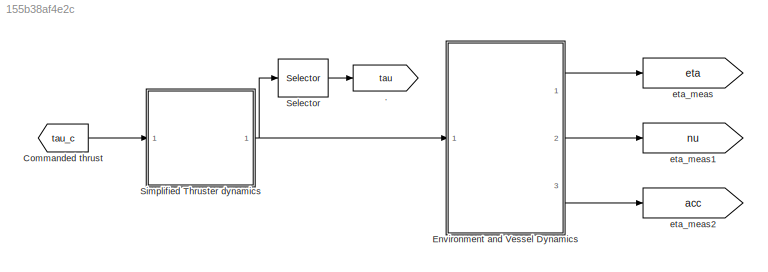
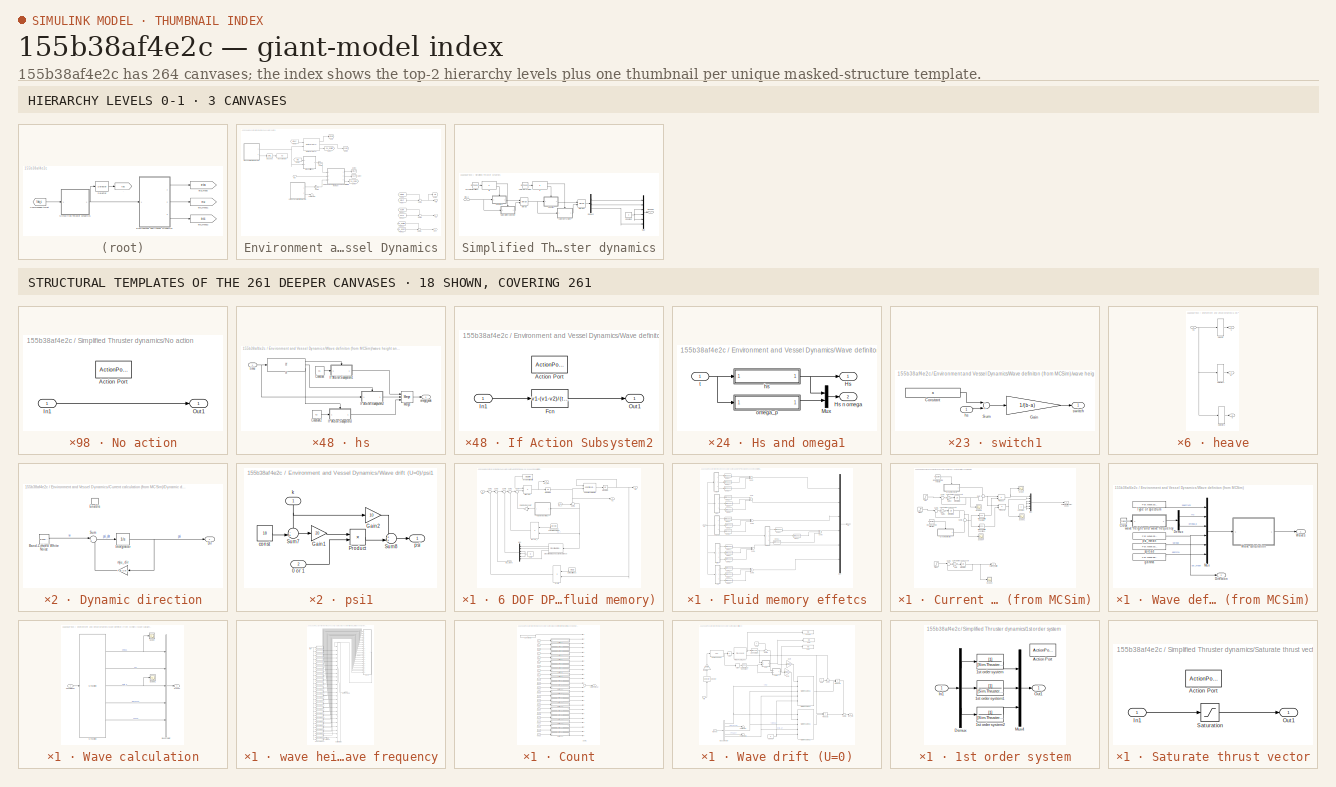
[diagram: thumbnail index - top-2 hierarchy levels (3 canvases) + 18 structural-template representatives of the remaining 261 canvases]
MODEL slx_155b38af4e2c
KIND model
CONFIG AbsTol = auto
CONFIG EnableMultiTasking = on
CONFIG FixedStep = ts
CONFIG MaxStep = auto
CONFIG MinStep = auto
CONFIG RelTol = 1e-3
CONFIG SampleTimeConstraint = Unconstrained
CONFIG Solver = ode4
CONFIG SolverName = ode4
CONFIG StartTime = 0.0
CONFIG StopTime = Tsim
BLOCK [Goto] .
  GotoTag = tau
BLOCK [From] Commanded thrust
  GotoTag = tau_c
BLOCK [SubSystem] Environment and Vessel Dynamics
  Ports = [1, 3]
  RequestExecContextInheritance = off
  Variant = off
BLOCK [SubSystem] Environment and Vessel Dynamics/6 DOF DP model (zero speed model with fluid memory)
  AncestorBlock = marine_hydro/Hydro Library/6 DOF DP model\n (zero speed model with fluid memory)
  Ports = [3, 3]
  RequestExecContextInheritance = off
  Variant = off
BLOCK [Reference] Environment and Vessel Dynamics/6 DOF DP model (zero speed model with fluid memory)/6 DOF transformation  REF=marine_gnc/Models/ Kinematics/6 DOF transformation  (lib defined in mdl_10d96c221ba8, mdl_45f1105420c6)
  Ports = [2, 1]
  SourceBlock = marine_gnc/Models/ Kinematics/6 DOF transformation
  SourceProductName = MSS GNC
  SourceType = SubSystem
BLOCK [Product] Environment and Vessel Dynamics/6 DOF DP model (zero speed model with fluid memory)/Bv*nu_r
  InputSameDT = off
  Multiplication = Matrix(*)
  Ports = [2, 1]
  RndMeth = Floor
BLOCK [Reference] Environment and Vessel Dynamics/6 DOF DP model (zero speed model with fluid memory)/Cross-flow drag and surge resistance  REF=marine_hydro/Hydro Library/Cross-flow drag and surge resistance
  Ports = [1, 3]
  SourceBlock = marine_hydro/Hydro Library/Cross-flow drag and surge resistance
  SourceProductName = MSS Hydro
  SourceType = Cross-flow drag and surge resistance
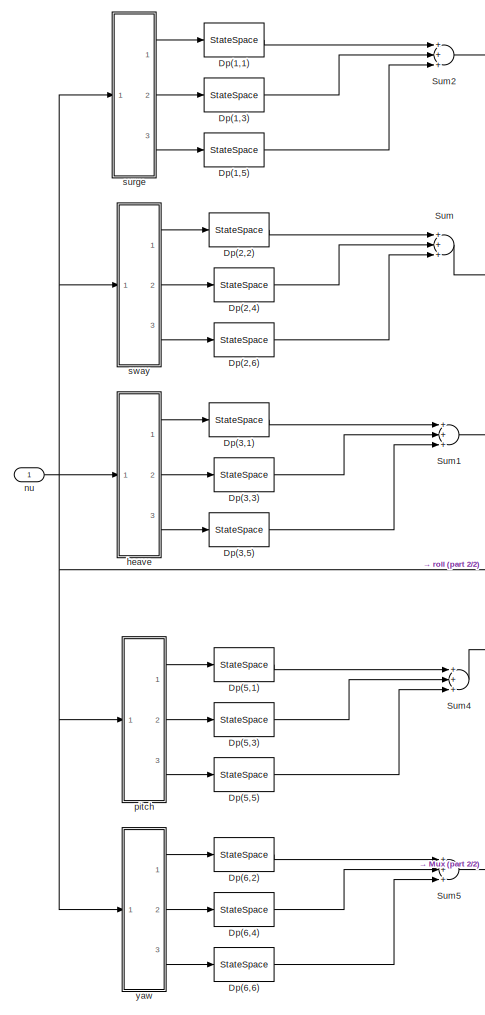
[diagram: Environment and Vessel Dynamics/6 DOF DP model (zero speed model with fluid memory)/Fluid memory effetcs - part 1/2, left side, full height]
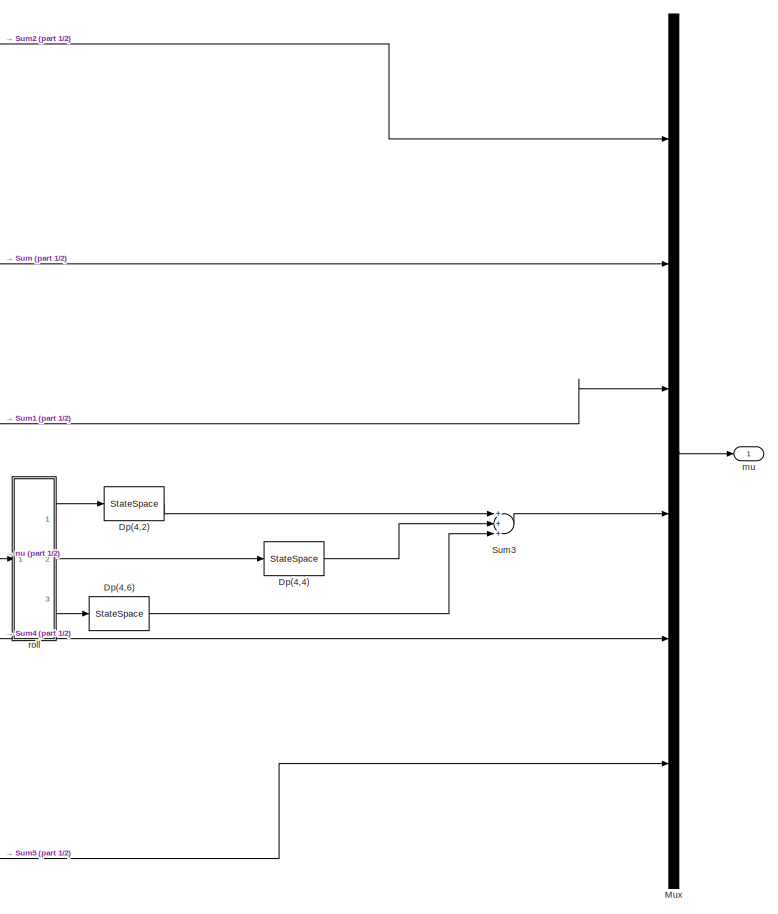
[diagram: Environment and Vessel Dynamics/6 DOF DP model (zero speed model with fluid memory)/Fluid memory effetcs - part 2/2, right side, full height]
BLOCK [SubSystem] Environment and Vessel Dynamics/6 DOF DP model (zero speed model with fluid memory)/Fluid memory effetcs
  Ports = [1, 1]
  RequestExecContextInheritance = off
  Variant = off
BLOCK [StateSpace] Environment and Vessel Dynamics/6 DOF DP model (zero speed model with fluid memory)/Fluid memory effetcs/Dp(1,1)
  A = ABC.Ar{1,1}
  B = ABC.Br{1,1}
  C = ABC.Cr{1,1}
  D = ABC.Dr{1,1}
  InitialCondition = 0
  Ports = [1, 1]
BLOCK [StateSpace] Environment and Vessel Dynamics/6 DOF DP model (zero speed model with fluid memory)/Fluid memory effetcs/Dp(1,3)
  A = ABC.Ar{1,3}
  B = ABC.Br{1,3}
  C = ABC.Cr{1,3}
  D = ABC.Dr{1,3}
  InitialCondition = 0
  Ports = [1, 1]
BLOCK [StateSpace] Environment and Vessel Dynamics/6 DOF DP model (zero speed model with fluid memory)/Fluid memory effetcs/Dp(1,5)
  A = ABC.Ar{1,5}
  B = ABC.Br{1,5}
  C = ABC.Cr{1,5}
  D = ABC.Dr{1,5}
  InitialCondition = 0
  Ports = [1, 1]
BLOCK [StateSpace] Environment and Vessel Dynamics/6 DOF DP model (zero speed model with fluid memory)/Fluid memory effetcs/Dp(2,2)
  A = ABC.Ar{2,2}
  B = ABC.Br{2,2}
  C = ABC.Cr{2,2}
  D = ABC.Dr{2,2}
  InitialCondition = 0
  Ports = [1, 1]
BLOCK [StateSpace] Environment and Vessel Dynamics/6 DOF DP model (zero speed model with fluid memory)/Fluid memory effetcs/Dp(2,4)
  A = ABC.Ar{2,4}
  B = ABC.Br{2,4}
  C = ABC.Cr{2,4}
  D = ABC.Dr{2,4}
  InitialCondition = 0
  Ports = [1, 1]
BLOCK [StateSpace] Environment and Vessel Dynamics/6 DOF DP model (zero speed model with fluid memory)/Fluid memory effetcs/Dp(2,6)
  A = ABC.Ar{2,6}
  B = ABC.Br{2,6}
  C = ABC.Cr{2,6}
  D = ABC.Dr{2,6}
  InitialCondition = 0
  Ports = [1, 1]
BLOCK [StateSpace] Environment and Vessel Dynamics/6 DOF DP model (zero speed model with fluid memory)/Fluid memory effetcs/Dp(3,1)
  A = ABC.Ar{3,1}
  B = ABC.Br{3,1}
  C = ABC.Cr{3,1}
  D = ABC.Dr{3,1}
  InitialCondition = 0
  Ports = [1, 1]
BLOCK [StateSpace] Environment and Vessel Dynamics/6 DOF DP model (zero speed model with fluid memory)/Fluid memory effetcs/Dp(3,3)
  A = ABC.Ar{3,3}
  B = ABC.Br{3,3}
  C = ABC.Cr{3,3}
  D = ABC.Dr{3,3}
  InitialCondition = 0
  Ports = [1, 1]
BLOCK [StateSpace] Environment and Vessel Dynamics/6 DOF DP model (zero speed model with fluid memory)/Fluid memory effetcs/Dp(3,5)
  A = ABC.Ar{3,5}
  B = ABC.Br{3,5}
  C = ABC.Cr{3,5}
  D = ABC.Dr{3,5}
  InitialCondition = 0
  Ports = [1, 1]
BLOCK [StateSpace] Environment and Vessel Dynamics/6 DOF DP model (zero speed model with fluid memory)/Fluid memory effetcs/Dp(4,2)
  A = ABC.Ar{4,2}
  B = ABC.Br{4,2}
  C = ABC.Cr{4,2}
  D = ABC.Dr{4,2}
  InitialCondition = 0
  Ports = [1, 1]
BLOCK [StateSpace] Environment and Vessel Dynamics/6 DOF DP model (zero speed model with fluid memory)/Fluid memory effetcs/Dp(4,4)
  A = ABC.Ar{4,4}
  B = ABC.Br{4,4}
  C = ABC.Cr{4,4}
  D = ABC.Dr{4,4}
  InitialCondition = 0
  Ports = [1, 1]
BLOCK [StateSpace] Environment and Vessel Dynamics/6 DOF DP model (zero speed model with fluid memory)/Fluid memory effetcs/Dp(4,6)
  A = ABC.Ar{4,6}
  B = ABC.Br{4,6}
  C = ABC.Cr{4,6}
  D = ABC.Dr{4,6}
  InitialCondition = 0
  Ports = [1, 1]
BLOCK [StateSpace] Environment and Vessel Dynamics/6 DOF DP model (zero speed model with fluid memory)/Fluid memory effetcs/Dp(5,1)
  A = ABC.Ar{5,1}
  B = ABC.Br{5,1}
  C = ABC.Cr{5,1}
  D = ABC.Dr{5,1}
  InitialCondition = 0
  Ports = [1, 1]
BLOCK [StateSpace] Environment and Vessel Dynamics/6 DOF DP model (zero speed model with fluid memory)/Fluid memory effetcs/Dp(5,3)
  A = ABC.Ar{5,3}
  B = ABC.Br{5,3}
  C = ABC.Cr{5,3}
  D = ABC.Dr{5,3}
  InitialCondition = 0
  Ports = [1, 1]
BLOCK [StateSpace] Environment and Vessel Dynamics/6 DOF DP model (zero speed model with fluid memory)/Fluid memory effetcs/Dp(5,5)
  A = ABC.Ar{5,5}
  B = ABC.Br{5,5}
  C = ABC.Cr{5,5}
  D = ABC.Dr{5,5}
  InitialCondition = 0
  Ports = [1, 1]
BLOCK [StateSpace] Environment and Vessel Dynamics/6 DOF DP model (zero speed model with fluid memory)/Fluid memory effetcs/Dp(6,2)
  A = ABC.Ar{6,2}
  B = ABC.Br{6,2}
  C = ABC.Cr{6,2}
  D = ABC.Dr{6,2}
  InitialCondition = 0
  Ports = [1, 1]
BLOCK [StateSpace] Environment and Vessel Dynamics/6 DOF DP model (zero speed model with fluid memory)/Fluid memory effetcs/Dp(6,4)
  A = ABC.Ar{6,4}
  B = ABC.Br{6,4}
  C = ABC.Cr{6,4}
  D = ABC.Dr{6,4}
  InitialCondition = 0
  Ports = [1, 1]
BLOCK [StateSpace] Environment and Vessel Dynamics/6 DOF DP model (zero speed model with fluid memory)/Fluid memory effetcs/Dp(6,6)
  A = ABC.Ar{6,6}
  B = ABC.Br{6,6}
  C = ABC.Cr{6,6}
  D = ABC.Dr{6,6}
  InitialCondition = 0
  Ports = [1, 1]
BLOCK [Mux] Environment and Vessel Dynamics/6 DOF DP model (zero speed model with fluid memory)/Fluid memory effetcs/Mux
  DisplayOption = bar
  Inputs = 6
  Ports = [6, 1]
BLOCK [Sum] Environment and Vessel Dynamics/6 DOF DP model (zero speed model with fluid memory)/Fluid memory effetcs/Sum
  InputSameDT = off
  Inputs = +++
  OutDataTypeStr = Inherit: Inherit via internal rule
  Ports = [3, 1]
BLOCK [Sum] Environment and Vessel Dynamics/6 DOF DP model (zero speed model with fluid memory)/Fluid memory effetcs/Sum1
  InputSameDT = off
  Inputs = +++
  OutDataTypeStr = Inherit: Inherit via internal rule
  Ports = [3, 1]
BLOCK [Sum] Environment and Vessel Dynamics/6 DOF DP model (zero speed model with fluid memory)/Fluid memory effetcs/Sum2
  InputSameDT = off
  Inputs = +++
  OutDataTypeStr = Inherit: Inherit via internal rule
  Ports = [3, 1]
BLOCK [Sum] Environment and Vessel Dynamics/6 DOF DP model (zero speed model with fluid memory)/Fluid memory effetcs/Sum3
  InputSameDT = off
  Inputs = +++
  OutDataTypeStr = Inherit: Inherit via internal rule
  Ports = [3, 1]
BLOCK [Sum] Environment and Vessel Dynamics/6 DOF DP model (zero speed model with fluid memory)/Fluid memory effetcs/Sum4
  InputSameDT = off
  Inputs = +++
  OutDataTypeStr = Inherit: Inherit via internal rule
  Ports = [3, 1]
BLOCK [Sum] Environment and Vessel Dynamics/6 DOF DP model (zero speed model with fluid memory)/Fluid memory effetcs/Sum5
  InputSameDT = off
  Inputs = +++
  OutDataTypeStr = Inherit: Inherit via internal rule
  Ports = [3, 1]
BLOCK [SubSystem] Environment and Vessel Dynamics/6 DOF DP model (zero speed model with fluid memory)/Fluid memory effetcs/heave
  Ports = [1, 3]
  RequestExecContextInheritance = off
  Variant = off
BLOCK [Selector] Environment and Vessel Dynamics/6 DOF DP model (zero speed model with fluid memory)/Fluid memory effetcs/heave/Selector
  IndexOptions = Index vector (dialog)
  Indices = [1]
  InputPortWidth = 6
  OutputSizes = 1
  Ports = [1, 1]
BLOCK [Selector] Environment and Vessel Dynamics/6 DOF DP model (zero speed model with fluid memory)/Fluid memory effetcs/heave/Selector1
  IndexOptions = Index vector (dialog)
  Indices = [3]
  InputPortWidth = 6
  OutputSizes = 1
  Ports = [1, 1]
BLOCK [Selector] Environment and Vessel Dynamics/6 DOF DP model (zero speed model with fluid memory)/Fluid memory effetcs/heave/Selector2
  IndexOptions = Index vector (dialog)
  Indices = [5]
  InputPortWidth = 6
  OutputSizes = 1
  Ports = [1, 1]
BLOCK [Inport] Environment and Vessel Dynamics/6 DOF DP model (zero speed model with fluid memory)/Fluid memory effetcs/heave/nu
  IconDisplay = Port number
BLOCK [Outport] Environment and Vessel Dynamics/6 DOF DP model (zero speed model with fluid memory)/Fluid memory effetcs/heave/q
  IconDisplay = Port number
  Port = 3
BLOCK [Outport] Environment and Vessel Dynamics/6 DOF DP model (zero speed model with fluid memory)/Fluid memory effetcs/heave/u
  IconDisplay = Port number
BLOCK [Outport] Environment and Vessel Dynamics/6 DOF DP model (zero speed model with fluid memory)/Fluid memory effetcs/heave/w
  IconDisplay = Port number
  Port = 2
BLOCK [Outport] Environment and Vessel Dynamics/6 DOF DP model (zero speed model with fluid memory)/Fluid memory effetcs/mu
  IconDisplay = Port number
BLOCK [Inport] Environment and Vessel Dynamics/6 DOF DP model (zero speed model with fluid memory)/Fluid memory effetcs/nu
  IconDisplay = Port number
BLOCK [SubSystem] Environment and Vessel Dynamics/6 DOF DP model (zero speed model with fluid memory)/Fluid memory effetcs/pitch
  Ports = [1, 3]
  RequestExecContextInheritance = off
  Variant = off
BLOCK [Selector] Environment and Vessel Dynamics/6 DOF DP model (zero speed model with fluid memory)/Fluid memory effetcs/pitch/Selector
  IndexOptions = Index vector (dialog)
  Indices = [1]
  InputPortWidth = 6
  OutputSizes = 1
  Ports = [1, 1]
BLOCK [Selector] Environment and Vessel Dynamics/6 DOF DP model (zero speed model with fluid memory)/Fluid memory effetcs/pitch/Selector1
  IndexOptions = Index vector (dialog)
  Indices = [3]
  InputPortWidth = 6
  OutputSizes = 1
  Ports = [1, 1]
BLOCK [Selector] Environment and Vessel Dynamics/6 DOF DP model (zero speed model with fluid memory)/Fluid memory effetcs/pitch/Selector2
  IndexOptions = Index vector (dialog)
  Indices = [5]
  InputPortWidth = 6
  OutputSizes = 1
  Ports = [1, 1]
BLOCK [Inport] Environment and Vessel Dynamics/6 DOF DP model (zero speed model with fluid memory)/Fluid memory effetcs/pitch/nu
  IconDisplay = Port number
BLOCK [Outport] Environment and Vessel Dynamics/6 DOF DP model (zero speed model with fluid memory)/Fluid memory effetcs/pitch/q
  IconDisplay = Port number
  Port = 3
BLOCK [Outport] Environment and Vessel Dynamics/6 DOF DP model (zero speed model with fluid memory)/Fluid memory effetcs/pitch/u
  IconDisplay = Port number
BLOCK [Outport] Environment and Vessel Dynamics/6 DOF DP model (zero speed model with fluid memory)/Fluid memory effetcs/pitch/w
  IconDisplay = Port number
  Port = 2
BLOCK [SubSystem] Environment and Vessel Dynamics/6 DOF DP model (zero speed model with fluid memory)/Fluid memory effetcs/roll
  Ports = [1, 3]
  RequestExecContextInheritance = off
  Variant = off
BLOCK [Selector] Environment and Vessel Dynamics/6 DOF DP model (zero speed model with fluid memory)/Fluid memory effetcs/roll/Selector
  IndexOptions = Index vector (dialog)
  Indices = [2]
  InputPortWidth = 6
  OutputSizes = 1
  Ports = [1, 1]
BLOCK [Selector] Environment and Vessel Dynamics/6 DOF DP model (zero speed model with fluid memory)/Fluid memory effetcs/roll/Selector1
  IndexOptions = Index vector (dialog)
  Indices = [4]
  InputPortWidth = 6
  OutputSizes = 1
  Ports = [1, 1]
BLOCK [Selector] Environment and Vessel Dynamics/6 DOF DP model (zero speed model with fluid memory)/Fluid memory effetcs/roll/Selector2
  IndexOptions = Index vector (dialog)
  Indices = [6]
  InputPortWidth = 6
  OutputSizes = 1
  Ports = [1, 1]
BLOCK [Inport] Environment and Vessel Dynamics/6 DOF DP model (zero speed model with fluid memory)/Fluid memory effetcs/roll/nu
  IconDisplay = Port number
BLOCK [Outport] Environment and Vessel Dynamics/6 DOF DP model (zero speed model with fluid memory)/Fluid memory effetcs/roll/p
  IconDisplay = Port number
  Port = 2
BLOCK [Outport] Environment and Vessel Dynamics/6 DOF DP model (zero speed model with fluid memory)/Fluid memory effetcs/roll/r
  IconDisplay = Port number
  Port = 3
BLOCK [Outport] Environment and Vessel Dynamics/6 DOF DP model (zero speed model with fluid memory)/Fluid memory effetcs/roll/v
  IconDisplay = Port number
BLOCK [SubSystem] Environment and Vessel Dynamics/6 DOF DP model (zero speed model with fluid memory)/Fluid memory effetcs/surge
  Ports = [1, 3]
  RequestExecContextInheritance = off
  Variant = off
BLOCK [Selector] Environment and Vessel Dynamics/6 DOF DP model (zero speed model with fluid memory)/Fluid memory effetcs/surge/Selector
  IndexOptions = Index vector (dialog)
  Indices = [1]
  InputPortWidth = 6
  OutputSizes = 1
  Ports = [1, 1]
BLOCK [Selector] Environment and Vessel Dynamics/6 DOF DP model (zero speed model with fluid memory)/Fluid memory effetcs/surge/Selector1
  IndexOptions = Index vector (dialog)
  Indices = [3]
  InputPortWidth = 6
  OutputSizes = 1
  Ports = [1, 1]
BLOCK [Selector] Environment and Vessel Dynamics/6 DOF DP model (zero speed model with fluid memory)/Fluid memory effetcs/surge/Selector2
  IndexOptions = Index vector (dialog)
  Indices = [5]
  InputPortWidth = 6
  OutputSizes = 1
  Ports = [1, 1]
BLOCK [Inport] Environment and Vessel Dynamics/6 DOF DP model (zero speed model with fluid memory)/Fluid memory effetcs/surge/nu
  IconDisplay = Port number
BLOCK [Outport] Environment and Vessel Dynamics/6 DOF DP model (zero speed model with fluid memory)/Fluid memory effetcs/surge/q
  IconDisplay = Port number
  Port = 3
BLOCK [Outport] Environment and Vessel Dynamics/6 DOF DP model (zero speed model with fluid memory)/Fluid memory effetcs/surge/u
  IconDisplay = Port number
BLOCK [Outport] Environment and Vessel Dynamics/6 DOF DP model (zero speed model with fluid memory)/Fluid memory effetcs/surge/w
  IconDisplay = Port number
  Port = 2
BLOCK [SubSystem] Environment and Vessel Dynamics/6 DOF DP model (zero speed model with fluid memory)/Fluid memory effetcs/sway
  Ports = [1, 3]
  RequestExecContextInheritance = off
  Variant = off
BLOCK [Selector] Environment and Vessel Dynamics/6 DOF DP model (zero speed model with fluid memory)/Fluid memory effetcs/sway/Selector
  IndexOptions = Index vector (dialog)
  Indices = [2]
  InputPortWidth = 6
  OutputSizes = 1
  Ports = [1, 1]
BLOCK [Selector] Environment and Vessel Dynamics/6 DOF DP model (zero speed model with fluid memory)/Fluid memory effetcs/sway/Selector1
  IndexOptions = Index vector (dialog)
  Indices = [4]
  InputPortWidth = 6
  OutputSizes = 1
  Ports = [1, 1]
BLOCK [Selector] Environment and Vessel Dynamics/6 DOF DP model (zero speed model with fluid memory)/Fluid memory effetcs/sway/Selector2
  IndexOptions = Index vector (dialog)
  Indices = [6]
  InputPortWidth = 6
  OutputSizes = 1
  Ports = [1, 1]
BLOCK [Inport] Environment and Vessel Dynamics/6 DOF DP model (zero speed model with fluid memory)/Fluid memory effetcs/sway/nu
  IconDisplay = Port number
BLOCK [Outport] Environment and Vessel Dynamics/6 DOF DP model (zero speed model with fluid memory)/Fluid memory effetcs/sway/p
  IconDisplay = Port number
  Port = 2
BLOCK [Outport] Environment and Vessel Dynamics/6 DOF DP model (zero speed model with fluid memory)/Fluid memory effetcs/sway/r
  IconDisplay = Port number
  Port = 3
BLOCK [Outport] Environment and Vessel Dynamics/6 DOF DP model (zero speed model with fluid memory)/Fluid memory effetcs/sway/v
  IconDisplay = Port number
BLOCK [SubSystem] Environment and Vessel Dynamics/6 DOF DP model (zero speed model with fluid memory)/Fluid memory effetcs/yaw
  Ports = [1, 3]
  RequestExecContextInheritance = off
  Variant = off
BLOCK [Selector] Environment and Vessel Dynamics/6 DOF DP model (zero speed model with fluid memory)/Fluid memory effetcs/yaw/Selector
  IndexOptions = Index vector (dialog)
  Indices = [2]
  InputPortWidth = 6
  OutputSizes = 1
  Ports = [1, 1]
BLOCK [Selector] Environment and Vessel Dynamics/6 DOF DP model (zero speed model with fluid memory)/Fluid memory effetcs/yaw/Selector1
  IndexOptions = Index vector (dialog)
  Indices = [4]
  InputPortWidth = 6
  OutputSizes = 1
  Ports = [1, 1]
BLOCK [Selector] Environment and Vessel Dynamics/6 DOF DP model (zero speed model with fluid memory)/Fluid memory effetcs/yaw/Selector2
  IndexOptions = Index vector (dialog)
  Indices = [6]
  InputPortWidth = 6
  OutputSizes = 1
  Ports = [1, 1]
BLOCK [Inport] Environment and Vessel Dynamics/6 DOF DP model (zero speed model with fluid memory)/Fluid memory effetcs/yaw/nu
  IconDisplay = Port number
BLOCK [Outport] Environment and Vessel Dynamics/6 DOF DP model (zero speed model with fluid memory)/Fluid memory effetcs/yaw/p
  IconDisplay = Port number
  Port = 2
BLOCK [Outport] Environment and Vessel Dynamics/6 DOF DP model (zero speed model with fluid memory)/Fluid memory effetcs/yaw/r
  IconDisplay = Port number
  Port = 3
BLOCK [Outport] Environment and Vessel Dynamics/6 DOF DP model (zero speed model with fluid memory)/Fluid memory effetcs/yaw/v
  IconDisplay = Port number
BLOCK [Gain] Environment and Vessel Dynamics/6 DOF DP model (zero speed model with fluid memory)/Fluid memory on//off
  OutDataTypeStr = Inherit: Inherit via internal rule
  ParamDataTypeStr = Inherit: Inherit via internal rule
  SaturateOnIntegerOverflow = off
BLOCK [Product] Environment and Vessel Dynamics/6 DOF DP model (zero speed model with fluid memory)/G*eta
  InputSameDT = off
  Multiplication = Matrix(*)
  Ports = [2, 1]
  RndMeth = Floor
BLOCK [Integrator] Environment and Vessel Dynamics/6 DOF DP model (zero speed model with fluid memory)/Integrator1 
  Ports = [1, 1]
BLOCK [Integrator] Environment and Vessel Dynamics/6 DOF DP model (zero speed model with fluid memory)/Integrator2
  Ports = [1, 1]
BLOCK [Constant] Environment and Vessel Dynamics/6 DOF DP model (zero speed model with fluid memory)/Invers inertia matrix
  Value = ABC.Minv
BLOCK [Product] Environment and Vessel Dynamics/6 DOF DP model (zero speed model with fluid memory)/Minv*tau
  InputSameDT = off
  Inputs = **
  Multiplication = Matrix(*)
  Ports = [2, 1]
  RndMeth = Floor
BLOCK [Mux] Environment and Vessel Dynamics/6 DOF DP model (zero speed model with fluid memory)/Mux
  DisplayOption = bar
  Inputs = 6
  Ports = [6, 1]
BLOCK [Constant] Environment and Vessel Dynamics/6 DOF DP model (zero speed model with fluid memory)/Spring stiffness
  Value = ABC.G
BLOCK [Sum] Environment and Vessel Dynamics/6 DOF DP model (zero speed model with fluid memory)/Sum
  IconShape = round
  InputSameDT = off
  Inputs = |+-
  OutDataTypeStr = Inherit: Inherit via internal rule
  Ports = [2, 1]
BLOCK [Sum] Environment and Vessel Dynamics/6 DOF DP model (zero speed model with fluid memory)/Sum1
  IconShape = round
  InputSameDT = off
  Inputs = |+-
  OutDataTypeStr = Inherit: Inherit via internal rule
  Ports = [2, 1]
BLOCK [Sum] Environment and Vessel Dynamics/6 DOF DP model (zero speed model with fluid memory)/Sum2
  IconShape = round
  InputSameDT = off
  Inputs = |+-
  OutDataTypeStr = Inherit: Inherit via internal rule
  Ports = [2, 1]
BLOCK [Sum] Environment and Vessel Dynamics/6 DOF DP model (zero speed model with fluid memory)/Sum3
  IconShape = round
  InputSameDT = off
  Inputs = |++
  OutDataTypeStr = Inherit: Inherit via internal rule
  Ports = [2, 1]
BLOCK [Sum] Environment and Vessel Dynamics/6 DOF DP model (zero speed model with fluid memory)/Sum5
  IconShape = round
  InputSameDT = off
  Inputs = |++
  OutDataTypeStr = Inherit: Inherit via internal rule
  Ports = [2, 1]
BLOCK [Sum] Environment and Vessel Dynamics/6 DOF DP model (zero speed model with fluid memory)/Sum6
  IconShape = round
  InputSameDT = off
  Inputs = +-|
  OutDataTypeStr = Inherit: Inherit via internal rule
  Ports = [2, 1]
BLOCK [Constant] Environment and Vessel Dynamics/6 DOF DP model (zero speed model with fluid memory)/Viscous and potential damping
  Value = Bv + Dp
BLOCK [Outport] Environment and Vessel Dynamics/6 DOF DP model (zero speed model with fluid memory)/eta
  IconDisplay = Port number
BLOCK [Outport] Environment and Vessel Dynamics/6 DOF DP model (zero speed model with fluid memory)/nu
  IconDisplay = Port number
  Port = 2
BLOCK [Inport] Environment and Vessel Dynamics/6 DOF DP model (zero speed model with fluid memory)/nu_c
  IconDisplay = Port number
  Port = 3
BLOCK [Outport] Environment and Vessel Dynamics/6 DOF DP model (zero speed model with fluid memory)/nu_dot
  IconDisplay = Port number
  Port = 3
BLOCK [Inport] Environment and Vessel Dynamics/6 DOF DP model (zero speed model with fluid memory)/tau
  IconDisplay = Port number
  Port = 2
BLOCK [Inport] Environment and Vessel Dynamics/6 DOF DP model (zero speed model with fluid memory)/tau_wave
  IconDisplay = Port number
BLOCK [Constant] Environment and Vessel Dynamics/6 DOF DP model (zero speed model with fluid memory)/zero
  Value = 0
BLOCK [SubSystem] Environment and Vessel Dynamics/Current calculation (from MCSim)
  Ports = [0, 2]
  RequestExecContextInheritance = off
  Variant = off
BLOCK [Constant] Environment and Vessel Dynamics/Current calculation (from MCSim)/Constant
  Value = 0
BLOCK [Outport] Environment and Vessel Dynamics/Current calculation (from MCSim)/Current surface [x y 0 0 0 0]
  IconDisplay = Port number
BLOCK [Outport] Environment and Vessel Dynamics/Current calculation (from MCSim)/Current_profile
  IconDisplay = Port number
  Port = 2
BLOCK [SubSystem] Environment and Vessel Dynamics/Current calculation (from MCSim)/Dynamic direction
  Ports = [0, 1, 1]
  RequestExecContextInheritance = off
  TreatAsAtomicUnit = on
  Variant = off
BLOCK [Reference] Environment and Vessel Dynamics/Current calculation (from MCSim)/Dynamic direction/Band-Limited White Noise  REF=simulink/Sources/Band-Limited
White Noise
  Ports = [0, 1]
  SourceBlock = simulink/Sources/Band-Limited\nWhite Noise
  SourceProductBaseCode = SL
  SourceProductName = Simulink
  SourceType = Band-Limited White Noise.
BLOCK [Outport] Environment and Vessel Dynamics/Current calculation (from MCSim)/Dynamic direction/Dir
  IconDisplay = Port number
  InitialOutput = 0
BLOCK [EnablePort] Environment and Vessel Dynamics/Current calculation (from MCSim)/Dynamic direction/Enable
  Ports = []
BLOCK [Integrator] Environment and Vessel Dynamics/Current calculation (from MCSim)/Dynamic direction/Integrator
  LimitOutput = on
  LowerSaturationLimit = -Par.Current.sat_dir
  Ports = [1, 1]
  UpperSaturationLimit = Par.Current.sat_dir
BLOCK [Sum] Environment and Vessel Dynamics/Current calculation (from MCSim)/Dynamic direction/Sum
  IconShape = round
  InputSameDT = off
  Inputs = |+-
  OutDataTypeStr = Inherit: Inherit via internal rule
  Ports = [2, 1]
BLOCK [Gain] Environment and Vessel Dynamics/Current calculation (from MCSim)/Dynamic direction/mju_dir
  Gain = Par.Current.mju_dir
  SampleTime = ts
BLOCK [SubSystem] Environment and Vessel Dynamics/Current calculation (from MCSim)/Dynamic velocity
  Ports = [0, 1, 1]
  RequestExecContextInheritance = off
  TreatAsAtomicUnit = on
  Variant = off
BLOCK [Reference] Environment and Vessel Dynamics/Current calculation (from MCSim)/Dynamic velocity/Band-Limited White Noise  REF=simulink/Sources/Band-Limited
White Noise
  Ports = [0, 1]
  SourceBlock = simulink/Sources/Band-Limited\nWhite Noise
  SourceProductBaseCode = SL
  SourceProductName = Simulink
  SourceType = Band-Limited White Noise.
BLOCK [EnablePort] Environment and Vessel Dynamics/Current calculation (from MCSim)/Dynamic velocity/Enable
  Ports = []
BLOCK [Integrator] Environment and Vessel Dynamics/Current calculation (from MCSim)/Dynamic velocity/Integrator
  LimitOutput = on
  LowerSaturationLimit = -Par.Current.sat_vel
  Ports = [1, 1]
  UpperSaturationLimit = Par.Current.sat_vel
BLOCK [Sum] Environment and Vessel Dynamics/Current calculation (from MCSim)/Dynamic velocity/Sum
  IconShape = round
  InputSameDT = off
  Inputs = |+-
  OutDataTypeStr = Inherit: Inherit via internal rule
  Ports = [2, 1]
BLOCK [Outport] Environment and Vessel Dynamics/Current calculation (from MCSim)/Dynamic velocity/Vel
  IconDisplay = Port number
  InitialOutput = 0
BLOCK [Gain] Environment and Vessel Dynamics/Current calculation (from MCSim)/Dynamic velocity/mju_vel
  Gain = Par.Current.mju_vel
  SampleTime = ts
BLOCK [Constant] Environment and Vessel Dynamics/Current calculation (from MCSim)/Enable varying direction
  Value = Par.Current.var_dir
  VectorParams1D = off
BLOCK [Constant] Environment and Vessel Dynamics/Current calculation (from MCSim)/Enable varying velocity
  Value = Par.Current.var_vel
  VectorParams1D = off
BLOCK [Gain] Environment and Vessel Dynamics/Current calculation (from MCSim)/Gain
  Gain = 1/TC_currentChange
  OutDataTypeStr = Inherit: Inherit via internal rule
  ParamDataTypeStr = Inherit: Inherit via internal rule
  SaturateOnIntegerOverflow = off
BLOCK [Gain] Environment and Vessel Dynamics/Current calculation (from MCSim)/Gain1
  Gain = 1/TC_currentChange
  OutDataTypeStr = Inherit: Inherit via internal rule
  ParamDataTypeStr = Inherit: Inherit via internal rule
  SaturateOnIntegerOverflow = off
BLOCK [Gain] Environment and Vessel Dynamics/Current calculation (from MCSim)/Gain2
  Gain = 1/TC_currentChange
  OutDataTypeStr = Inherit: Inherit via internal rule
  ParamDataTypeStr = Inherit: Inherit via internal rule
  SaturateOnIntegerOverflow = off
BLOCK [Integrator] Environment and Vessel Dynamics/Current calculation (from MCSim)/Integrator
  Ports = [1, 1]
BLOCK [Integrator] Environment and Vessel Dynamics/Current calculation (from MCSim)/Integrator1
  Ports = [1, 1]
BLOCK [Integrator] Environment and Vessel Dynamics/Current calculation (from MCSim)/Integrator2
  Ports = [1, 1]
BLOCK [Mux] Environment and Vessel Dynamics/Current calculation (from MCSim)/Mux
  DisplayOption = bar
  Inputs = 6
  Ports = [6, 1]
BLOCK [Product] Environment and Vessel Dynamics/Current calculation (from MCSim)/Product
  InputSameDT = off
  Ports = [2, 1]
  RndMeth = Floor
BLOCK [Product] Environment and Vessel Dynamics/Current calculation (from MCSim)/Product1
  InputSameDT = off
  Ports = [2, 1]
  RndMeth = Floor
BLOCK [Scope] Environment and Vessel Dynamics/Current calculation (from MCSim)/Scope
  NumInputPorts = 1
  Ports = [1]
  ScopeSpecificationString = C++SS(StrPVP('Location','[188, 365, 512, 604]'),StrPVP('Open','off'),StrPVP('ZoomMode','xonly'),MxPVP('AxesTitles',53,'struct(''axes1'',''%<SignalLabel>'')'),StrPVP('ShowLegends','off'),StrPVP('SaveName','ScopeData122'),StrPVP('DataFormat','StructureWithTime'),StrPVP('BlockParamSampleTime','0'),StrPVP('LimitDataPoints','on'),StrPVP('Decimation','1'),StrPVP('BlockParamSampleInput','off'))
BLOCK [Scope] Environment and Vessel Dynamics/Current calculation (from MCSim)/Scope1
  NumInputPorts = 1
  Ports = [1]
  ScopeSpecificationString = C++SS(StrPVP('Location','[103, 395, 427, 634]'),StrPVP('Open','off'),StrPVP('ZoomMode','xonly'),MxPVP('AxesTitles',53,'struct(''axes1'',''%<SignalLabel>'')'),StrPVP('ShowLegends','off'),StrPVP('SaveName','ScopeData123'),StrPVP('DataFormat','StructureWithTime'),StrPVP('BlockParamSampleTime','0'),StrPVP('LimitDataPoints','on'),StrPVP('Decimation','1'),StrPVP('BlockParamSampleInput','off'))
BLOCK [Scope] Environment and Vessel Dynamics/Current calculation (from MCSim)/Scope2
  NumInputPorts = 1
  Ports = [1]
  ScopeSpecificationString = C++SS(StrPVP('Location','[1, 48, 2561, 1399]'),StrPVP('Open','off'),MxPVP('AxesTitles',53,'struct(''axes1'',''%<SignalLabel>'')'),MxPVP('ScopeGraphics',56,'struct(''FigureColor'',''[0.5 0.5 0.5]'',''AxesColor'',''[0 0 0]'',''AxesTickColor'',''[1 1 1]'',''LineColors'',''[1 1 0;1 0 1;0 1 1;1 0 0;0 1 0;0 0 1]'',''LineStyles'',''-|-|-|-|-|-'',''LineWidths'',''[0.5 0.5 0.5 0.5 0.5 0.5]'',''MarkerStyles...<+248ch>
BLOCK [Scope] Environment and Vessel Dynamics/Current calculation (from MCSim)/Scope3
  NumInputPorts = 1
  Ports = [1]
  ScopeSpecificationString = C++SS(StrPVP('Location','[188, 365, 512, 604]'),StrPVP('Open','off'),MxPVP('AxesTitles',53,'struct(''axes1'',''%<SignalLabel>'')'),MxPVP('ScopeGraphics',56,'struct(''FigureColor'',''[0.5 0.5 0.5]'',''AxesColor'',''[0 0 0]'',''AxesTickColor'',''[1 1 1]'',''LineColors'',''[1 1 0;1 0 1;0 1 1;1 0 0;0 1 0;0 0 1]'',''LineStyles'',''-|-|-|-|-|-'',''LineWidths'',''[0.5 0.5 0.5 0.5 0.5 0.5]'',''MarkerStyle...<+226ch>
BLOCK [Scope] Environment and Vessel Dynamics/Current calculation (from MCSim)/Scope4
  NumInputPorts = 1
  Ports = [1]
  ScopeSpecificationString = C++SS(StrPVP('Location','[188, 365, 512, 604]'),StrPVP('Open','off'),MxPVP('AxesTitles',53,'struct(''axes1'',''%<SignalLabel>'')'),MxPVP('ScopeGraphics',56,'struct(''FigureColor'',''[0.5 0.5 0.5]'',''AxesColor'',''[0 0 0]'',''AxesTickColor'',''[1 1 1]'',''LineColors'',''[1 1 0;1 0 1;0 1 1;1 0 0;0 1 0;0 0 1]'',''LineStyles'',''-|-|-|-|-|-'',''LineWidths'',''[0.5 0.5 0.5 0.5 0.5 0.5]'',''MarkerStyle...<+227ch>
BLOCK [Step] Environment and Vessel Dynamics/Current calculation (from MCSim)/Step
  After = Par.Current.vel2
  Before = Par.Current.vel
  SampleTime = ts
  Time = Current.Change.Time
BLOCK [Step] Environment and Vessel Dynamics/Current calculation (from MCSim)/Step1
  After = Par.Current.dir2
  Before = Par.Current.dir
  SampleTime = ts
  Time = Current.Change.Time
BLOCK [Step] Environment and Vessel Dynamics/Current calculation (from MCSim)/Step2
  After = Par.Current.Profile2
  Before = Par.Current.Profile
  SampleTime = ts
  Time = Current.Change.Time
BLOCK [Sum] Environment and Vessel Dynamics/Current calculation (from MCSim)/Sum
  IconShape = round
  InputSameDT = off
  OutDataTypeStr = Inherit: Inherit via internal rule
  Ports = [2, 1]
BLOCK [Sum] Environment and Vessel Dynamics/Current calculation (from MCSim)/Sum1
  IconShape = round
  InputSameDT = off
  OutDataTypeStr = Inherit: Inherit via internal rule
  Ports = [2, 1]
BLOCK [Sum] Environment and Vessel Dynamics/Current calculation (from MCSim)/Sum2
  IconShape = round
  InputSameDT = off
  Inputs = |+-
  OutDataTypeStr = Inherit: Inherit via internal rule
  Ports = [2, 1]
  SaturateOnIntegerOverflow = off
BLOCK [Sum] Environment and Vessel Dynamics/Current calculation (from MCSim)/Sum3
  IconShape = round
  InputSameDT = off
  Inputs = |+-
  OutDataTypeStr = Inherit: Inherit via internal rule
  Ports = [2, 1]
  SaturateOnIntegerOverflow = off
BLOCK [Sum] Environment and Vessel Dynamics/Current calculation (from MCSim)/Sum4
  IconShape = round
  InputSameDT = off
  Inputs = |+-
  OutDataTypeStr = Inherit: Inherit via internal rule
  Ports = [2, 1]
  SaturateOnIntegerOverflow = off
BLOCK [Trigonometry] Environment and Vessel Dynamics/Current calculation (from MCSim)/Trigonometric Function
  Operator = cos
  Ports = [1, 1]
BLOCK [Trigonometry] Environment and Vessel Dynamics/Current calculation (from MCSim)/Trigonometric Function1
  Ports = [1, 1]
BLOCK [From] Environment and Vessel Dynamics/From10
  GotoTag = nuLF
BLOCK [From] Environment and Vessel Dynamics/From11
  GotoTag = nuWF
BLOCK [From] Environment and Vessel Dynamics/From12
  GotoTag = nu_dotLF
BLOCK [From] Environment and Vessel Dynamics/From13
  GotoTag = nu_dotWF
BLOCK [From] Environment and Vessel Dynamics/From6
  GotoTag = etaLF
BLOCK [From] Environment and Vessel Dynamics/From7
  GotoTag = etaLF
BLOCK [From] Environment and Vessel Dynamics/From8
  GotoTag = etaWF
BLOCK [From] Environment and Vessel Dynamics/From9
  GotoTag = eta
BLOCK [Goto] Environment and Vessel Dynamics/Goto
  GotoTag = etaWF
BLOCK [Goto] Environment and Vessel Dynamics/Goto1
  GotoTag = nu_dotWF
BLOCK [Goto] Environment and Vessel Dynamics/Goto2
  GotoTag = nuWF
BLOCK [Goto] Environment and Vessel Dynamics/Goto3
  GotoTag = etaLF
BLOCK [Goto] Environment and Vessel Dynamics/Goto4
  GotoTag = nuLF
BLOCK [Goto] Environment and Vessel Dynamics/Goto5
  GotoTag = nu_dotLF
BLOCK [Goto] Environment and Vessel Dynamics/Goto6
  GotoTag = eta
BLOCK [Reference] Environment and Vessel Dynamics/Motion RAO (U=0)  REF=marine_hydro/Hydro Library/Motion RAO (U=0)
  Ports = [2, 3]
  SourceBlock = marine_hydro/Hydro Library/Motion RAO (U=0)
  SourceProductName = MSS Hydro
  SourceType = Motion RAO
BLOCK [Sum] Environment and Vessel Dynamics/Sum1
  IconShape = round
  InputSameDT = off
  Inputs = ++|
  OutDataTypeStr = Inherit: Inherit via internal rule
  Ports = [2, 1]
  SaturateOnIntegerOverflow = off
BLOCK [Sum] Environment and Vessel Dynamics/Sum2
  IconShape = round
  InputSameDT = off
  Inputs = ++|
  OutDataTypeStr = Inherit: Inherit via internal rule
  Ports = [2, 1]
  SaturateOnIntegerOverflow = off
BLOCK [Sum] Environment and Vessel Dynamics/Sum3
  IconShape = round
  InputSameDT = off
  Inputs = ++|
  OutDataTypeStr = Inherit: Inherit via internal rule
  Ports = [2, 1]
  SaturateOnIntegerOverflow = off
BLOCK [Terminator] Environment and Vessel Dynamics/Terminator1
BLOCK [SubSystem] Environment and Vessel Dynamics/Wave definiton (from MCSim)
  Ports = [0, 2]
  RequestExecContextInheritance = off
  Variant = off
BLOCK [Clock] Environment and Vessel Dynamics/Wave definiton (from MCSim)/Clock
BLOCK [Demux] Environment and Vessel Dynamics/Wave definiton (from MCSim)/Demux
  Outputs = 2
  Ports = [1, 2]
BLOCK [Outport] Environment and Vessel Dynamics/Wave definiton (from MCSim)/Direction
  IconDisplay = Port number
  Port = 2
BLOCK [Mux] Environment and Vessel Dynamics/Wave definiton (from MCSim)/Mux
  DisplayOption = bar
  Inputs = 6
  Ports = [6, 1]
BLOCK [Constant] Environment and Vessel Dynamics/Wave definiton (from MCSim)/Type of spectrum
  Value = Par.Wave.spectrum
BLOCK [SubSystem] Environment and Vessel Dynamics/Wave definiton (from MCSim)/Wave calculation
  Ports = [1, 1]
  RequestExecContextInheritance = off
  Variant = off
BLOCK [BusCreator] Environment and Vessel Dynamics/Wave definiton (from MCSim)/Wave calculation/Bus Creator
  DisplayOption = bar
  InheritFromInputs = on
  Inputs = 5
  Ports = [5, 1]
BLOCK [S-Function] Environment and Vessel Dynamics/Wave definiton (from MCSim)/Wave calculation/S-Function
  EnableBusSupport = off
  FunctionName = wave_calculation
  Parameters = [nwaves, nfreq, ndir, randfreq_flag, randdir_flag, rand_seed, freq_cutoff, dir_cutoff]
  Ports = [1, 5]
  SFcnIsStateOwnerBlock = off
  SFunctionDeploymentMode = off
BLOCK [Scope] Environment and Vessel Dynamics/Wave definiton (from MCSim)/Wave calculation/Scope
  NumInputPorts = 1
  Ports = [1]
  ScopeSpecificationString = C++SS(StrPVP('Location','[5, 53, 1029, 718]'),StrPVP('Open','off'),MxPVP('AxesTitles',53,'struct(''axes1'',''%<SignalLabel>'')'),StrPVP('ShowLegends','off'),StrPVP('DataFormat','StructureWithTime'),StrPVP('LimitDataPoints','off'),StrPVP('BlockParamSampleTime','0'),StrPVP('Decimation','1'),StrPVP('BlockParamSampleInput','off'))
BLOCK [Scope] Environment and Vessel Dynamics/Wave definiton (from MCSim)/Wave calculation/Scope1
  NumInputPorts = 1
  Ports = [1]
  ScopeSpecificationString = C++SS(StrPVP('Location','[5, 53, 1029, 718]'),StrPVP('Open','off'),MxPVP('AxesTitles',53,'struct(''axes1'',''%<SignalLabel>'')'),StrPVP('ShowLegends','off'),StrPVP('SaveName','ScopeData1'),StrPVP('DataFormat','StructureWithTime'),StrPVP('BlockParamSampleTime','0'),StrPVP('LimitDataPoints','on'),StrPVP('Decimation','1'),StrPVP('BlockParamSampleInput','off'))
BLOCK [Inport] Environment and Vessel Dynamics/Wave definiton (from MCSim)/Wave calculation/Seastate par
  IconDisplay = Port number
BLOCK [Outport] Environment and Vessel Dynamics/Wave definiton (from MCSim)/Wave calculation/Waves
  IconDisplay = Port number
BLOCK [Outport] Environment and Vessel Dynamics/Wave definiton (from MCSim)/Waves
  IconDisplay = Port number
BLOCK [Constant] Environment and Vessel Dynamics/Wave definiton (from MCSim)/gamma
  Value = Par.Wave.gamma
BLOCK [Constant] Environment and Vessel Dynamics/Wave definiton (from MCSim)/psi_mean
  Value = Par.Wave.psi_mean
BLOCK [Constant] Environment and Vessel Dynamics/Wave definiton (from MCSim)/spread
  Value = Par.Wave.spread
BLOCK [SubSystem] Environment and Vessel Dynamics/Wave definiton (from MCSim)/wave height and wave frequency
  Ports = [1, 1]
  RequestExecContextInheritance = off
  Variant = off
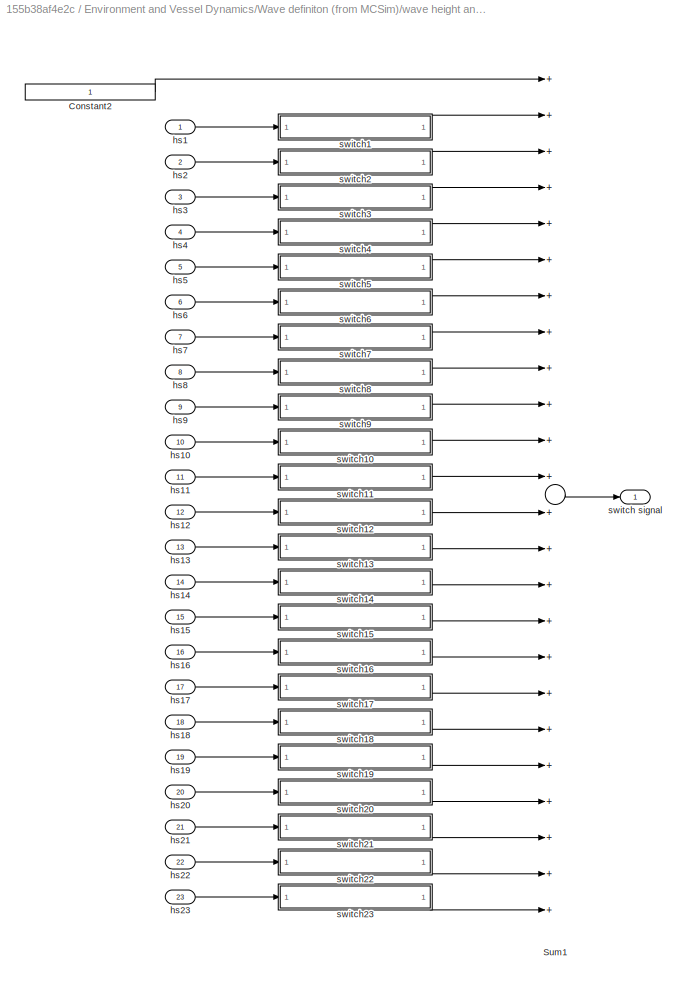
BLOCK [SubSystem] Environment and Vessel Dynamics/Wave definiton (from MCSim)/wave height and wave frequency/Count
  Ports = [23, 1]
  RequestExecContextInheritance = off
  Variant = off
BLOCK [Constant] Environment and Vessel Dynamics/Wave definiton (from MCSim)/wave height and wave frequency/Count/Constant2
BLOCK [Sum] Environment and Vessel Dynamics/Wave definiton (from MCSim)/wave height and wave frequency/Count/Sum1
  InputSameDT = off
  Inputs = ++++++++++++++++++++++++
  OutDataTypeStr = Inherit: Inherit via internal rule
  Ports = [24, 1]
BLOCK [Inport] Environment and Vessel Dynamics/Wave definiton (from MCSim)/wave height and wave frequency/Count/hs1
  IconDisplay = Port number
BLOCK [Inport] Environment and Vessel Dynamics/Wave definiton (from MCSim)/wave height and wave frequency/Count/hs10
  IconDisplay = Port number
  Port = 10
BLOCK [Inport] Environment and Vessel Dynamics/Wave definiton (from MCSim)/wave height and wave frequency/Count/hs11
  IconDisplay = Port number
  Port = 11
BLOCK [Inport] Environment and Vessel Dynamics/Wave definiton (from MCSim)/wave height and wave frequency/Count/hs12
  IconDisplay = Port number
  Port = 12
BLOCK [Inport] Environment and Vessel Dynamics/Wave definiton (from MCSim)/wave height and wave frequency/Count/hs13
  IconDisplay = Port number
  Port = 13
BLOCK [Inport] Environment and Vessel Dynamics/Wave definiton (from MCSim)/wave height and wave frequency/Count/hs14
  IconDisplay = Port number
  Port = 14
BLOCK [Inport] Environment and Vessel Dynamics/Wave definiton (from MCSim)/wave height and wave frequency/Count/hs15
  IconDisplay = Port number
  Port = 15
BLOCK [Inport] Environment and Vessel Dynamics/Wave definiton (from MCSim)/wave height and wave frequency/Count/hs16
  IconDisplay = Port number
  Port = 16
BLOCK [Inport] Environment and Vessel Dynamics/Wave definiton (from MCSim)/wave height and wave frequency/Count/hs17
  IconDisplay = Port number
  Port = 17
BLOCK [Inport] Environment and Vessel Dynamics/Wave definiton (from MCSim)/wave height and wave frequency/Count/hs18
  IconDisplay = Port number
  Port = 18
BLOCK [Inport] Environment and Vessel Dynamics/Wave definiton (from MCSim)/wave height and wave frequency/Count/hs19
  IconDisplay = Port number
  Port = 19
BLOCK [Inport] Environment and Vessel Dynamics/Wave definiton (from MCSim)/wave height and wave frequency/Count/hs2
  IconDisplay = Port number
  Port = 2
BLOCK [Inport] Environment and Vessel Dynamics/Wave definiton (from MCSim)/wave height and wave frequency/Count/hs20
  IconDisplay = Port number
  Port = 20
BLOCK [Inport] Environment and Vessel Dynamics/Wave definiton (from MCSim)/wave height and wave frequency/Count/hs21
  IconDisplay = Port number
  Port = 21
BLOCK [Inport] Environment and Vessel Dynamics/Wave definiton (from MCSim)/wave height and wave frequency/Count/hs22
  IconDisplay = Port number
  Port = 22
BLOCK [Inport] Environment and Vessel Dynamics/Wave definiton (from MCSim)/wave height and wave frequency/Count/hs23
  IconDisplay = Port number
  Port = 23
BLOCK [Inport] Environment and Vessel Dynamics/Wave definiton (from MCSim)/wave height and wave frequency/Count/hs3
  IconDisplay = Port number
  Port = 3
BLOCK [Inport] Environment and Vessel Dynamics/Wave definiton (from MCSim)/wave height and wave frequency/Count/hs4
  IconDisplay = Port number
  Port = 4
BLOCK [Inport] Environment and Vessel Dynamics/Wave definiton (from MCSim)/wave height and wave frequency/Count/hs5
  IconDisplay = Port number
  Port = 5
BLOCK [Inport] Environment and Vessel Dynamics/Wave definiton (from MCSim)/wave height and wave frequency/Count/hs6
  IconDisplay = Port number
  Port = 6
BLOCK [Inport] Environment and Vessel Dynamics/Wave definiton (from MCSim)/wave height and wave frequency/Count/hs7
  IconDisplay = Port number
  Port = 7
BLOCK [Inport] Environment and Vessel Dynamics/Wave definiton (from MCSim)/wave height and wave frequency/Count/hs8
  IconDisplay = Port number
  Port = 8
BLOCK [Inport] Environment and Vessel Dynamics/Wave definiton (from MCSim)/wave height and wave frequency/Count/hs9
  IconDisplay = Port number
  Port = 9
BLOCK [Outport] Environment and Vessel Dynamics/Wave definiton (from MCSim)/wave height and wave frequency/Count/switch signal
  IconDisplay = Port number
BLOCK [SubSystem] Environment and Vessel Dynamics/Wave definiton (from MCSim)/wave height and wave frequency/Count/switch1
  Ports = [1, 1]
  RequestExecContextInheritance = off
  Variant = off
BLOCK [Constant] Environment and Vessel Dynamics/Wave definiton (from MCSim)/wave height and wave frequency/Count/switch1/Constant
  Value = a
BLOCK [Gain] Environment and Vessel Dynamics/Wave definiton (from MCSim)/wave height and wave frequency/Count/switch1/Gain
  Gain = 1/(b-a)
BLOCK [Sum] Environment and Vessel Dynamics/Wave definiton (from MCSim)/wave height and wave frequency/Count/switch1/Sum
  InputSameDT = off
  Inputs = -+
  OutDataTypeStr = Inherit: Inherit via internal rule
  Ports = [2, 1]
BLOCK [Inport] Environment and Vessel Dynamics/Wave definiton (from MCSim)/wave height and wave frequency/Count/switch1/hs
  IconDisplay = Port number
BLOCK [Outport] Environment and Vessel Dynamics/Wave definiton (from MCSim)/wave height and wave frequency/Count/switch1/switch
  IconDisplay = Port number
BLOCK [SubSystem] Environment and Vessel Dynamics/Wave definiton (from MCSim)/wave height and wave frequency/Count/switch10
  Ports = [1, 1]
  RequestExecContextInheritance = off
  Variant = off
BLOCK [Constant] Environment and Vessel Dynamics/Wave definiton (from MCSim)/wave height and wave frequency/Count/switch10/Constant
  Value = a
BLOCK [Gain] Environment and Vessel Dynamics/Wave definiton (from MCSim)/wave height and wave frequency/Count/switch10/Gain
  Gain = 1/(b-a)
BLOCK [Sum] Environment and Vessel Dynamics/Wave definiton (from MCSim)/wave height and wave frequency/Count/switch10/Sum
  InputSameDT = off
  Inputs = -+
  OutDataTypeStr = Inherit: Inherit via internal rule
  Ports = [2, 1]
BLOCK [Inport] Environment and Vessel Dynamics/Wave definiton (from MCSim)/wave height and wave frequency/Count/switch10/hs
  IconDisplay = Port number
BLOCK [Outport] Environment and Vessel Dynamics/Wave definiton (from MCSim)/wave height and wave frequency/Count/switch10/switch
  IconDisplay = Port number
BLOCK [SubSystem] Environment and Vessel Dynamics/Wave definiton (from MCSim)/wave height and wave frequency/Count/switch11
  Ports = [1, 1]
  RequestExecContextInheritance = off
  Variant = off
BLOCK [Constant] Environment and Vessel Dynamics/Wave definiton (from MCSim)/wave height and wave frequency/Count/switch11/Constant
  Value = a
BLOCK [Gain] Environment and Vessel Dynamics/Wave definiton (from MCSim)/wave height and wave frequency/Count/switch11/Gain
  Gain = 1/(b-a)
BLOCK [Sum] Environment and Vessel Dynamics/Wave definiton (from MCSim)/wave height and wave frequency/Count/switch11/Sum
  InputSameDT = off
  Inputs = -+
  OutDataTypeStr = Inherit: Inherit via internal rule
  Ports = [2, 1]
BLOCK [Inport] Environment and Vessel Dynamics/Wave definiton (from MCSim)/wave height and wave frequency/Count/switch11/hs
  IconDisplay = Port number
BLOCK [Outport] Environment and Vessel Dynamics/Wave definiton (from MCSim)/wave height and wave frequency/Count/switch11/switch
  IconDisplay = Port number
BLOCK [SubSystem] Environment and Vessel Dynamics/Wave definiton (from MCSim)/wave height and wave frequency/Count/switch12
  Ports = [1, 1]
  RequestExecContextInheritance = off
  Variant = off
BLOCK [Constant] Environment and Vessel Dynamics/Wave definiton (from MCSim)/wave height and wave frequency/Count/switch12/Constant
  Value = a
BLOCK [Gain] Environment and Vessel Dynamics/Wave definiton (from MCSim)/wave height and wave frequency/Count/switch12/Gain
  Gain = 1/(b-a)
BLOCK [Sum] Environment and Vessel Dynamics/Wave definiton (from MCSim)/wave height and wave frequency/Count/switch12/Sum
  InputSameDT = off
  Inputs = -+
  OutDataTypeStr = Inherit: Inherit via internal rule
  Ports = [2, 1]
BLOCK [Inport] Environment and Vessel Dynamics/Wave definiton (from MCSim)/wave height and wave frequency/Count/switch12/hs
  IconDisplay = Port number
BLOCK [Outport] Environment and Vessel Dynamics/Wave definiton (from MCSim)/wave height and wave frequency/Count/switch12/switch
  IconDisplay = Port number
BLOCK [SubSystem] Environment and Vessel Dynamics/Wave definiton (from MCSim)/wave height and wave frequency/Count/switch13
  Ports = [1, 1]
  RequestExecContextInheritance = off
  Variant = off
BLOCK [Constant] Environment and Vessel Dynamics/Wave definiton (from MCSim)/wave height and wave frequency/Count/switch13/Constant
  Value = a
BLOCK [Gain] Environment and Vessel Dynamics/Wave definiton (from MCSim)/wave height and wave frequency/Count/switch13/Gain
  Gain = 1/(b-a)
BLOCK [Sum] Environment and Vessel Dynamics/Wave definiton (from MCSim)/wave height and wave frequency/Count/switch13/Sum
  InputSameDT = off
  Inputs = -+
  OutDataTypeStr = Inherit: Inherit via internal rule
  Ports = [2, 1]
BLOCK [Inport] Environment and Vessel Dynamics/Wave definiton (from MCSim)/wave height and wave frequency/Count/switch13/hs
  IconDisplay = Port number
BLOCK [Outport] Environment and Vessel Dynamics/Wave definiton (from MCSim)/wave height and wave frequency/Count/switch13/switch
  IconDisplay = Port number
BLOCK [SubSystem] Environment and Vessel Dynamics/Wave definiton (from MCSim)/wave height and wave frequency/Count/switch14
  Ports = [1, 1]
  RequestExecContextInheritance = off
  Variant = off
BLOCK [Constant] Environment and Vessel Dynamics/Wave definiton (from MCSim)/wave height and wave frequency/Count/switch14/Constant
  Value = a
BLOCK [Gain] Environment and Vessel Dynamics/Wave definiton (from MCSim)/wave height and wave frequency/Count/switch14/Gain
  Gain = 1/(b-a)
BLOCK [Sum] Environment and Vessel Dynamics/Wave definiton (from MCSim)/wave height and wave frequency/Count/switch14/Sum
  InputSameDT = off
  Inputs = -+
  OutDataTypeStr = Inherit: Inherit via internal rule
  Ports = [2, 1]
BLOCK [Inport] Environment and Vessel Dynamics/Wave definiton (from MCSim)/wave height and wave frequency/Count/switch14/hs
  IconDisplay = Port number
BLOCK [Outport] Environment and Vessel Dynamics/Wave definiton (from MCSim)/wave height and wave frequency/Count/switch14/switch
  IconDisplay = Port number
BLOCK [SubSystem] Environment and Vessel Dynamics/Wave definiton (from MCSim)/wave height and wave frequency/Count/switch15
  Ports = [1, 1]
  RequestExecContextInheritance = off
  Variant = off
BLOCK [Constant] Environment and Vessel Dynamics/Wave definiton (from MCSim)/wave height and wave frequency/Count/switch15/Constant
  Value = a
BLOCK [Gain] Environment and Vessel Dynamics/Wave definiton (from MCSim)/wave height and wave frequency/Count/switch15/Gain
  Gain = 1/(b-a)
BLOCK [Sum] Environment and Vessel Dynamics/Wave definiton (from MCSim)/wave height and wave frequency/Count/switch15/Sum
  InputSameDT = off
  Inputs = -+
  OutDataTypeStr = Inherit: Inherit via internal rule
  Ports = [2, 1]
BLOCK [Inport] Environment and Vessel Dynamics/Wave definiton (from MCSim)/wave height and wave frequency/Count/switch15/hs
  IconDisplay = Port number
BLOCK [Outport] Environment and Vessel Dynamics/Wave definiton (from MCSim)/wave height and wave frequency/Count/switch15/switch
  IconDisplay = Port number
BLOCK [SubSystem] Environment and Vessel Dynamics/Wave definiton (from MCSim)/wave height and wave frequency/Count/switch16
  Ports = [1, 1]
  RequestExecContextInheritance = off
  Variant = off
BLOCK [Constant] Environment and Vessel Dynamics/Wave definiton (from MCSim)/wave height and wave frequency/Count/switch16/Constant
  Value = a
BLOCK [Gain] Environment and Vessel Dynamics/Wave definiton (from MCSim)/wave height and wave frequency/Count/switch16/Gain
  Gain = 1/(b-a)
BLOCK [Sum] Environment and Vessel Dynamics/Wave definiton (from MCSim)/wave height and wave frequency/Count/switch16/Sum
  InputSameDT = off
  Inputs = -+
  OutDataTypeStr = Inherit: Inherit via internal rule
  Ports = [2, 1]
BLOCK [Inport] Environment and Vessel Dynamics/Wave definiton (from MCSim)/wave height and wave frequency/Count/switch16/hs
  IconDisplay = Port number
BLOCK [Outport] Environment and Vessel Dynamics/Wave definiton (from MCSim)/wave height and wave frequency/Count/switch16/switch
  IconDisplay = Port number
BLOCK [SubSystem] Environment and Vessel Dynamics/Wave definiton (from MCSim)/wave height and wave frequency/Count/switch17
  Ports = [1, 1]
  RequestExecContextInheritance = off
  Variant = off
BLOCK [Constant] Environment and Vessel Dynamics/Wave definiton (from MCSim)/wave height and wave frequency/Count/switch17/Constant
  Value = a
BLOCK [Gain] Environment and Vessel Dynamics/Wave definiton (from MCSim)/wave height and wave frequency/Count/switch17/Gain
  Gain = 1/(b-a)
BLOCK [Sum] Environment and Vessel Dynamics/Wave definiton (from MCSim)/wave height and wave frequency/Count/switch17/Sum
  InputSameDT = off
  Inputs = -+
  OutDataTypeStr = Inherit: Inherit via internal rule
  Ports = [2, 1]
BLOCK [Inport] Environment and Vessel Dynamics/Wave definiton (from MCSim)/wave height and wave frequency/Count/switch17/hs
  IconDisplay = Port number
BLOCK [Outport] Environment and Vessel Dynamics/Wave definiton (from MCSim)/wave height and wave frequency/Count/switch17/switch
  IconDisplay = Port number
BLOCK [SubSystem] Environment and Vessel Dynamics/Wave definiton (from MCSim)/wave height and wave frequency/Count/switch18
  Ports = [1, 1]
  RequestExecContextInheritance = off
  Variant = off
BLOCK [Constant] Environment and Vessel Dynamics/Wave definiton (from MCSim)/wave height and wave frequency/Count/switch18/Constant
  Value = a
BLOCK [Gain] Environment and Vessel Dynamics/Wave definiton (from MCSim)/wave height and wave frequency/Count/switch18/Gain
  Gain = 1/(b-a)
BLOCK [Sum] Environment and Vessel Dynamics/Wave definiton (from MCSim)/wave height and wave frequency/Count/switch18/Sum
  InputSameDT = off
  Inputs = -+
  OutDataTypeStr = Inherit: Inherit via internal rule
  Ports = [2, 1]
BLOCK [Inport] Environment and Vessel Dynamics/Wave definiton (from MCSim)/wave height and wave frequency/Count/switch18/hs
  IconDisplay = Port number
BLOCK [Outport] Environment and Vessel Dynamics/Wave definiton (from MCSim)/wave height and wave frequency/Count/switch18/switch
  IconDisplay = Port number
BLOCK [SubSystem] Environment and Vessel Dynamics/Wave definiton (from MCSim)/wave height and wave frequency/Count/switch19
  Ports = [1, 1]
  RequestExecContextInheritance = off
  Variant = off
BLOCK [Constant] Environment and Vessel Dynamics/Wave definiton (from MCSim)/wave height and wave frequency/Count/switch19/Constant
  Value = a
BLOCK [Gain] Environment and Vessel Dynamics/Wave definiton (from MCSim)/wave height and wave frequency/Count/switch19/Gain
  Gain = 1/(b-a)
BLOCK [Sum] Environment and Vessel Dynamics/Wave definiton (from MCSim)/wave height and wave frequency/Count/switch19/Sum
  InputSameDT = off
  Inputs = -+
  OutDataTypeStr = Inherit: Inherit via internal rule
  Ports = [2, 1]
BLOCK [Inport] Environment and Vessel Dynamics/Wave definiton (from MCSim)/wave height and wave frequency/Count/switch19/hs
  IconDisplay = Port number
BLOCK [Outport] Environment and Vessel Dynamics/Wave definiton (from MCSim)/wave height and wave frequency/Count/switch19/switch
  IconDisplay = Port number
BLOCK [SubSystem] Environment and Vessel Dynamics/Wave definiton (from MCSim)/wave height and wave frequency/Count/switch2
  Ports = [1, 1]
  RequestExecContextInheritance = off
  Variant = off
BLOCK [Constant] Environment and Vessel Dynamics/Wave definiton (from MCSim)/wave height and wave frequency/Count/switch2/Constant
  Value = a
BLOCK [Gain] Environment and Vessel Dynamics/Wave definiton (from MCSim)/wave height and wave frequency/Count/switch2/Gain
  Gain = 1/(b-a)
BLOCK [Sum] Environment and Vessel Dynamics/Wave definiton (from MCSim)/wave height and wave frequency/Count/switch2/Sum
  InputSameDT = off
  Inputs = -+
  OutDataTypeStr = Inherit: Inherit via internal rule
  Ports = [2, 1]
BLOCK [Inport] Environment and Vessel Dynamics/Wave definiton (from MCSim)/wave height and wave frequency/Count/switch2/hs
  IconDisplay = Port number
BLOCK [Outport] Environment and Vessel Dynamics/Wave definiton (from MCSim)/wave height and wave frequency/Count/switch2/switch
  IconDisplay = Port number
BLOCK [SubSystem] Environment and Vessel Dynamics/Wave definiton (from MCSim)/wave height and wave frequency/Count/switch20
  Ports = [1, 1]
  RequestExecContextInheritance = off
  Variant = off
BLOCK [Constant] Environment and Vessel Dynamics/Wave definiton (from MCSim)/wave height and wave frequency/Count/switch20/Constant
  Value = a
BLOCK [Gain] Environment and Vessel Dynamics/Wave definiton (from MCSim)/wave height and wave frequency/Count/switch20/Gain
  Gain = 1/(b-a)
BLOCK [Sum] Environment and Vessel Dynamics/Wave definiton (from MCSim)/wave height and wave frequency/Count/switch20/Sum
  InputSameDT = off
  Inputs = -+
  OutDataTypeStr = Inherit: Inherit via internal rule
  Ports = [2, 1]
BLOCK [Inport] Environment and Vessel Dynamics/Wave definiton (from MCSim)/wave height and wave frequency/Count/switch20/hs
  IconDisplay = Port number
BLOCK [Outport] Environment and Vessel Dynamics/Wave definiton (from MCSim)/wave height and wave frequency/Count/switch20/switch
  IconDisplay = Port number
BLOCK [SubSystem] Environment and Vessel Dynamics/Wave definiton (from MCSim)/wave height and wave frequency/Count/switch21
  Ports = [1, 1]
  RequestExecContextInheritance = off
  Variant = off
BLOCK [Constant] Environment and Vessel Dynamics/Wave definiton (from MCSim)/wave height and wave frequency/Count/switch21/Constant
  Value = a
BLOCK [Gain] Environment and Vessel Dynamics/Wave definiton (from MCSim)/wave height and wave frequency/Count/switch21/Gain
  Gain = 1/(b-a)
BLOCK [Sum] Environment and Vessel Dynamics/Wave definiton (from MCSim)/wave height and wave frequency/Count/switch21/Sum
  InputSameDT = off
  Inputs = -+
  OutDataTypeStr = Inherit: Inherit via internal rule
  Ports = [2, 1]
BLOCK [Inport] Environment and Vessel Dynamics/Wave definiton (from MCSim)/wave height and wave frequency/Count/switch21/hs
  IconDisplay = Port number
BLOCK [Outport] Environment and Vessel Dynamics/Wave definiton (from MCSim)/wave height and wave frequency/Count/switch21/switch
  IconDisplay = Port number
BLOCK [SubSystem] Environment and Vessel Dynamics/Wave definiton (from MCSim)/wave height and wave frequency/Count/switch22
  Ports = [1, 1]
  RequestExecContextInheritance = off
  Variant = off
BLOCK [Constant] Environment and Vessel Dynamics/Wave definiton (from MCSim)/wave height and wave frequency/Count/switch22/Constant
  Value = a
BLOCK [Gain] Environment and Vessel Dynamics/Wave definiton (from MCSim)/wave height and wave frequency/Count/switch22/Gain
  Gain = 1/(b-a)
BLOCK [Sum] Environment and Vessel Dynamics/Wave definiton (from MCSim)/wave height and wave frequency/Count/switch22/Sum
  InputSameDT = off
  Inputs = -+
  OutDataTypeStr = Inherit: Inherit via internal rule
  Ports = [2, 1]
BLOCK [Inport] Environment and Vessel Dynamics/Wave definiton (from MCSim)/wave height and wave frequency/Count/switch22/hs
  IconDisplay = Port number
BLOCK [Outport] Environment and Vessel Dynamics/Wave definiton (from MCSim)/wave height and wave frequency/Count/switch22/switch
  IconDisplay = Port number
BLOCK [SubSystem] Environment and Vessel Dynamics/Wave definiton (from MCSim)/wave height and wave frequency/Count/switch23
  Ports = [1, 1]
  RequestExecContextInheritance = off
  Variant = off
BLOCK [Constant] Environment and Vessel Dynamics/Wave definiton (from MCSim)/wave height and wave frequency/Count/switch23/Constant
  Value = a
BLOCK [Gain] Environment and Vessel Dynamics/Wave definiton (from MCSim)/wave height and wave frequency/Count/switch23/Gain
  Gain = 1/(b-a)
BLOCK [Sum] Environment and Vessel Dynamics/Wave definiton (from MCSim)/wave height and wave frequency/Count/switch23/Sum
  InputSameDT = off
  Inputs = -+
  OutDataTypeStr = Inherit: Inherit via internal rule
  Ports = [2, 1]
BLOCK [Inport] Environment and Vessel Dynamics/Wave definiton (from MCSim)/wave height and wave frequency/Count/switch23/hs
  IconDisplay = Port number
BLOCK [Outport] Environment and Vessel Dynamics/Wave definiton (from MCSim)/wave height and wave frequency/Count/switch23/switch
  IconDisplay = Port number
BLOCK [SubSystem] Environment and Vessel Dynamics/Wave definiton (from MCSim)/wave height and wave frequency/Count/switch3
  Ports = [1, 1]
  RequestExecContextInheritance = off
  Variant = off
BLOCK [Constant] Environment and Vessel Dynamics/Wave definiton (from MCSim)/wave height and wave frequency/Count/switch3/Constant
  Value = a
BLOCK [Gain] Environment and Vessel Dynamics/Wave definiton (from MCSim)/wave height and wave frequency/Count/switch3/Gain
  Gain = 1/(b-a)
BLOCK [Sum] Environment and Vessel Dynamics/Wave definiton (from MCSim)/wave height and wave frequency/Count/switch3/Sum
  InputSameDT = off
  Inputs = -+
  OutDataTypeStr = Inherit: Inherit via internal rule
  Ports = [2, 1]
BLOCK [Inport] Environment and Vessel Dynamics/Wave definiton (from MCSim)/wave height and wave frequency/Count/switch3/hs
  IconDisplay = Port number
BLOCK [Outport] Environment and Vessel Dynamics/Wave definiton (from MCSim)/wave height and wave frequency/Count/switch3/switch
  IconDisplay = Port number
BLOCK [SubSystem] Environment and Vessel Dynamics/Wave definiton (from MCSim)/wave height and wave frequency/Count/switch4
  Ports = [1, 1]
  RequestExecContextInheritance = off
  Variant = off
BLOCK [Constant] Environment and Vessel Dynamics/Wave definiton (from MCSim)/wave height and wave frequency/Count/switch4/Constant
  Value = a
BLOCK [Gain] Environment and Vessel Dynamics/Wave definiton (from MCSim)/wave height and wave frequency/Count/switch4/Gain
  Gain = 1/(b-a)
BLOCK [Sum] Environment and Vessel Dynamics/Wave definiton (from MCSim)/wave height and wave frequency/Count/switch4/Sum
  InputSameDT = off
  Inputs = -+
  OutDataTypeStr = Inherit: Inherit via internal rule
  Ports = [2, 1]
BLOCK [Inport] Environment and Vessel Dynamics/Wave definiton (from MCSim)/wave height and wave frequency/Count/switch4/hs
  IconDisplay = Port number
BLOCK [Outport] Environment and Vessel Dynamics/Wave definiton (from MCSim)/wave height and wave frequency/Count/switch4/switch
  IconDisplay = Port number
BLOCK [SubSystem] Environment and Vessel Dynamics/Wave definiton (from MCSim)/wave height and wave frequency/Count/switch5
  Ports = [1, 1]
  RequestExecContextInheritance = off
  Variant = off
BLOCK [Constant] Environment and Vessel Dynamics/Wave definiton (from MCSim)/wave height and wave frequency/Count/switch5/Constant
  Value = a
BLOCK [Gain] Environment and Vessel Dynamics/Wave definiton (from MCSim)/wave height and wave frequency/Count/switch5/Gain
  Gain = 1/(b-a)
BLOCK [Sum] Environment and Vessel Dynamics/Wave definiton (from MCSim)/wave height and wave frequency/Count/switch5/Sum
  InputSameDT = off
  Inputs = -+
  OutDataTypeStr = Inherit: Inherit via internal rule
  Ports = [2, 1]
BLOCK [Inport] Environment and Vessel Dynamics/Wave definiton (from MCSim)/wave height and wave frequency/Count/switch5/hs
  IconDisplay = Port number
BLOCK [Outport] Environment and Vessel Dynamics/Wave definiton (from MCSim)/wave height and wave frequency/Count/switch5/switch
  IconDisplay = Port number
BLOCK [SubSystem] Environment and Vessel Dynamics/Wave definiton (from MCSim)/wave height and wave frequency/Count/switch6
  Ports = [1, 1]
  RequestExecContextInheritance = off
  Variant = off
BLOCK [Constant] Environment and Vessel Dynamics/Wave definiton (from MCSim)/wave height and wave frequency/Count/switch6/Constant
  Value = a
BLOCK [Gain] Environment and Vessel Dynamics/Wave definiton (from MCSim)/wave height and wave frequency/Count/switch6/Gain
  Gain = 1/(b-a)
BLOCK [Sum] Environment and Vessel Dynamics/Wave definiton (from MCSim)/wave height and wave frequency/Count/switch6/Sum
  InputSameDT = off
  Inputs = -+
  OutDataTypeStr = Inherit: Inherit via internal rule
  Ports = [2, 1]
BLOCK [Inport] Environment and Vessel Dynamics/Wave definiton (from MCSim)/wave height and wave frequency/Count/switch6/hs
  IconDisplay = Port number
BLOCK [Outport] Environment and Vessel Dynamics/Wave definiton (from MCSim)/wave height and wave frequency/Count/switch6/switch
  IconDisplay = Port number
BLOCK [SubSystem] Environment and Vessel Dynamics/Wave definiton (from MCSim)/wave height and wave frequency/Count/switch7
  Ports = [1, 1]
  RequestExecContextInheritance = off
  Variant = off
BLOCK [Constant] Environment and Vessel Dynamics/Wave definiton (from MCSim)/wave height and wave frequency/Count/switch7/Constant
  Value = a
BLOCK [Gain] Environment and Vessel Dynamics/Wave definiton (from MCSim)/wave height and wave frequency/Count/switch7/Gain
  Gain = 1/(b-a)
BLOCK [Sum] Environment and Vessel Dynamics/Wave definiton (from MCSim)/wave height and wave frequency/Count/switch7/Sum
  InputSameDT = off
  Inputs = -+
  OutDataTypeStr = Inherit: Inherit via internal rule
  Ports = [2, 1]
BLOCK [Inport] Environment and Vessel Dynamics/Wave definiton (from MCSim)/wave height and wave frequency/Count/switch7/hs
  IconDisplay = Port number
BLOCK [Outport] Environment and Vessel Dynamics/Wave definiton (from MCSim)/wave height and wave frequency/Count/switch7/switch
  IconDisplay = Port number
BLOCK [SubSystem] Environment and Vessel Dynamics/Wave definiton (from MCSim)/wave height and wave frequency/Count/switch8
  Ports = [1, 1]
  RequestExecContextInheritance = off
  Variant = off
BLOCK [Constant] Environment and Vessel Dynamics/Wave definiton (from MCSim)/wave height and wave frequency/Count/switch8/Constant
  Value = a
BLOCK [Gain] Environment and Vessel Dynamics/Wave definiton (from MCSim)/wave height and wave frequency/Count/switch8/Gain
  Gain = 1/(b-a)
BLOCK [Sum] Environment and Vessel Dynamics/Wave definiton (from MCSim)/wave height and wave frequency/Count/switch8/Sum
  InputSameDT = off
  Inputs = -+
  OutDataTypeStr = Inherit: Inherit via internal rule
  Ports = [2, 1]
BLOCK [Inport] Environment and Vessel Dynamics/Wave definiton (from MCSim)/wave height and wave frequency/Count/switch8/hs
  IconDisplay = Port number
BLOCK [Outport] Environment and Vessel Dynamics/Wave definiton (from MCSim)/wave height and wave frequency/Count/switch8/switch
  IconDisplay = Port number
BLOCK [SubSystem] Environment and Vessel Dynamics/Wave definiton (from MCSim)/wave height and wave frequency/Count/switch9
  Ports = [1, 1]
  RequestExecContextInheritance = off
  Variant = off
BLOCK [Constant] Environment and Vessel Dynamics/Wave definiton (from MCSim)/wave height and wave frequency/Count/switch9/Constant
  Value = a
BLOCK [Gain] Environment and Vessel Dynamics/Wave definiton (from MCSim)/wave height and wave frequency/Count/switch9/Gain
  Gain = 1/(b-a)
BLOCK [Sum] Environment and Vessel Dynamics/Wave definiton (from MCSim)/wave height and wave frequency/Count/switch9/Sum
  InputSameDT = off
  Inputs = -+
  OutDataTypeStr = Inherit: Inherit via internal rule
  Ports = [2, 1]
BLOCK [Inport] Environment and Vessel Dynamics/Wave definiton (from MCSim)/wave height and wave frequency/Count/switch9/hs
  IconDisplay = Port number
BLOCK [Outport] Environment and Vessel Dynamics/Wave definiton (from MCSim)/wave height and wave frequency/Count/switch9/switch
  IconDisplay = Port number
BLOCK [Outport] Environment and Vessel Dynamics/Wave definiton (from MCSim)/wave height and wave frequency/Hs and omega
  IconDisplay = Port number
BLOCK [SubSystem] Environment and Vessel Dynamics/Wave definiton (from MCSim)/wave height and wave frequency/Hs and omega1
  Ports = [1, 2]
  RequestExecContextInheritance = off
  Variant = off
BLOCK [Outport] Environment and Vessel Dynamics/Wave definiton (from MCSim)/wave height and wave frequency/Hs and omega1/Hs
  IconDisplay = Port number
BLOCK [Outport] Environment and Vessel Dynamics/Wave definiton (from MCSim)/wave height and wave frequency/Hs and omega1/Hs n omega
  IconDisplay = Port number
  Port = 2
BLOCK [Mux] Environment and Vessel Dynamics/Wave definiton (from MCSim)/wave height and wave frequency/Hs and omega1/Mux
  DisplayOption = bar
  Inputs = 2
  Ports = [2, 1]
BLOCK [SubSystem] Environment and Vessel Dynamics/Wave definiton (from MCSim)/wave height and wave frequency/Hs and omega1/hs
  Ports = [1, 1]
  RequestExecContextInheritance = off
  Variant = off
BLOCK [Constant] Environment and Vessel Dynamics/Wave definiton (from MCSim)/wave height and wave frequency/Hs and omega1/hs/Constant
  Value = v1
BLOCK [Constant] Environment and Vessel Dynamics/Wave definiton (from MCSim)/wave height and wave frequency/Hs and omega1/hs/Constant2
  Value = v2
BLOCK [If] Environment and Vessel Dynamics/Wave definiton (from MCSim)/wave height and wave frequency/Hs and omega1/hs/If
  ElseIfExpressions = u1>=t1 & u1<t2
  IfExpression = u1 < t1
  Ports = [1, 3]
BLOCK [SubSystem] Environment and Vessel Dynamics/Wave definiton (from MCSim)/wave height and wave frequency/Hs and omega1/hs/If Action Subsystem1
  Ports = [1, 1, 0, 0, 0, 0, 0, 1]
  RequestExecContextInheritance = off
  TreatAsAtomicUnit = on
  Variant = off
BLOCK [ActionPort] Environment and Vessel Dynamics/Wave definiton (from MCSim)/wave height and wave frequency/Hs and omega1/hs/If Action Subsystem1/Action Port
  ActionType = then
BLOCK [Inport] Environment and Vessel Dynamics/Wave definiton (from MCSim)/wave height and wave frequency/Hs and omega1/hs/If Action Subsystem1/In1
  IconDisplay = Port number
BLOCK [Outport] Environment and Vessel Dynamics/Wave definiton (from MCSim)/wave height and wave frequency/Hs and omega1/hs/If Action Subsystem1/Out1
  IconDisplay = Port number
BLOCK [SubSystem] Environment and Vessel Dynamics/Wave definiton (from MCSim)/wave height and wave frequency/Hs and omega1/hs/If Action Subsystem2
  Ports = [1, 1, 0, 0, 0, 0, 0, 1]
  RequestExecContextInheritance = off
  TreatAsAtomicUnit = on
  Variant = off
BLOCK [ActionPort] Environment and Vessel Dynamics/Wave definiton (from MCSim)/wave height and wave frequency/Hs and omega1/hs/If Action Subsystem2/Action Port
  ActionType = elseif
BLOCK [Fcn] Environment and Vessel Dynamics/Wave definiton (from MCSim)/wave height and wave frequency/Hs and omega1/hs/If Action Subsystem2/Fcn
  Expr = v1-(v1-v2)/(t2-t1)*(u[1]-t1)
BLOCK [Inport] Environment and Vessel Dynamics/Wave definiton (from MCSim)/wave height and wave frequency/Hs and omega1/hs/If Action Subsystem2/In1
  IconDisplay = Port number
BLOCK [Outport] Environment and Vessel Dynamics/Wave definiton (from MCSim)/wave height and wave frequency/Hs and omega1/hs/If Action Subsystem2/Out1
  IconDisplay = Port number
BLOCK [SubSystem] Environment and Vessel Dynamics/Wave definiton (from MCSim)/wave height and wave frequency/Hs and omega1/hs/If Action Subsystem3
  Ports = [1, 1, 0, 0, 0, 0, 0, 1]
  RequestExecContextInheritance = off
  TreatAsAtomicUnit = on
  Variant = off
BLOCK [ActionPort] Environment and Vessel Dynamics/Wave definiton (from MCSim)/wave height and wave frequency/Hs and omega1/hs/If Action Subsystem3/Action Port
  ActionType = else
BLOCK [Inport] Environment and Vessel Dynamics/Wave definiton (from MCSim)/wave height and wave frequency/Hs and omega1/hs/If Action Subsystem3/In1
  IconDisplay = Port number
BLOCK [Outport] Environment and Vessel Dynamics/Wave definiton (from MCSim)/wave height and wave frequency/Hs and omega1/hs/If Action Subsystem3/Out1
  IconDisplay = Port number
BLOCK [Merge] Environment and Vessel Dynamics/Wave definiton (from MCSim)/wave height and wave frequency/Hs and omega1/hs/Merge
  Inputs = 3
  Ports = [3, 1]
BLOCK [Outport] Environment and Vessel Dynamics/Wave definiton (from MCSim)/wave height and wave frequency/Hs and omega1/hs/omega_peak
  IconDisplay = Port number
BLOCK [Inport] Environment and Vessel Dynamics/Wave definiton (from MCSim)/wave height and wave frequency/Hs and omega1/hs/time
  IconDisplay = Port number
BLOCK [SubSystem] Environment and Vessel Dynamics/Wave definiton (from MCSim)/wave height and wave frequency/Hs and omega1/omega_p
  Ports = [1, 1]
  RequestExecContextInheritance = off
  Variant = off
BLOCK [Constant] Environment and Vessel Dynamics/Wave definiton (from MCSim)/wave height and wave frequency/Hs and omega1/omega_p/Constant
  Value = v1
BLOCK [Constant] Environment and Vessel Dynamics/Wave definiton (from MCSim)/wave height and wave frequency/Hs and omega1/omega_p/Constant2
  Value = v2
BLOCK [If] Environment and Vessel Dynamics/Wave definiton (from MCSim)/wave height and wave frequency/Hs and omega1/omega_p/If
  ElseIfExpressions = u1>=t1 & u1<t2
  IfExpression = u1 < t1
  Ports = [1, 3]
BLOCK [SubSystem] Environment and Vessel Dynamics/Wave definiton (from MCSim)/wave height and wave frequency/Hs and omega1/omega_p/If Action Subsystem1
  Ports = [1, 1, 0, 0, 0, 0, 0, 1]
  RequestExecContextInheritance = off
  TreatAsAtomicUnit = on
  Variant = off
BLOCK [ActionPort] Environment and Vessel Dynamics/Wave definiton (from MCSim)/wave height and wave frequency/Hs and omega1/omega_p/If Action Subsystem1/Action Port
  ActionType = then
BLOCK [Inport] Environment and Vessel Dynamics/Wave definiton (from MCSim)/wave height and wave frequency/Hs and omega1/omega_p/If Action Subsystem1/In1
  IconDisplay = Port number
BLOCK [Outport] Environment and Vessel Dynamics/Wave definiton (from MCSim)/wave height and wave frequency/Hs and omega1/omega_p/If Action Subsystem1/Out1
  IconDisplay = Port number
BLOCK [SubSystem] Environment and Vessel Dynamics/Wave definiton (from MCSim)/wave height and wave frequency/Hs and omega1/omega_p/If Action Subsystem2
  Ports = [1, 1, 0, 0, 0, 0, 0, 1]
  RequestExecContextInheritance = off
  TreatAsAtomicUnit = on
  Variant = off
BLOCK [ActionPort] Environment and Vessel Dynamics/Wave definiton (from MCSim)/wave height and wave frequency/Hs and omega1/omega_p/If Action Subsystem2/Action Port
  ActionType = elseif
BLOCK [Fcn] Environment and Vessel Dynamics/Wave definiton (from MCSim)/wave height and wave frequency/Hs and omega1/omega_p/If Action Subsystem2/Fcn
  Expr = v1-(v1-v2)/(t2-t1)*(u[1]-t1)
BLOCK [Inport] Environment and Vessel Dynamics/Wave definiton (from MCSim)/wave height and wave frequency/Hs and omega1/omega_p/If Action Subsystem2/In1
  IconDisplay = Port number
BLOCK [Outport] Environment and Vessel Dynamics/Wave definiton (from MCSim)/wave height and wave frequency/Hs and omega1/omega_p/If Action Subsystem2/Out1
  IconDisplay = Port number
BLOCK [SubSystem] Environment and Vessel Dynamics/Wave definiton (from MCSim)/wave height and wave frequency/Hs and omega1/omega_p/If Action Subsystem3
  Ports = [1, 1, 0, 0, 0, 0, 0, 1]
  RequestExecContextInheritance = off
  TreatAsAtomicUnit = on
  Variant = off
BLOCK [ActionPort] Environment and Vessel Dynamics/Wave definiton (from MCSim)/wave height and wave frequency/Hs and omega1/omega_p/If Action Subsystem3/Action Port
  ActionType = else
BLOCK [Inport] Environment and Vessel Dynamics/Wave definiton (from MCSim)/wave height and wave frequency/Hs and omega1/omega_p/If Action Subsystem3/In1
  IconDisplay = Port number
BLOCK [Outport] Environment and Vessel Dynamics/Wave definiton (from MCSim)/wave height and wave frequency/Hs and omega1/omega_p/If Action Subsystem3/Out1
  IconDisplay = Port number
BLOCK [Merge] Environment and Vessel Dynamics/Wave definiton (from MCSim)/wave height and wave frequency/Hs and omega1/omega_p/Merge
  Inputs = 3
  Ports = [3, 1]
BLOCK [Outport] Environment and Vessel Dynamics/Wave definiton (from MCSim)/wave height and wave frequency/Hs and omega1/omega_p/omega_peak
  IconDisplay = Port number
BLOCK [Inport] Environment and Vessel Dynamics/Wave definiton (from MCSim)/wave height and wave frequency/Hs and omega1/omega_p/time
  IconDisplay = Port number
BLOCK [Inport] Environment and Vessel Dynamics/Wave definiton (from MCSim)/wave height and wave frequency/Hs and omega1/t
  IconDisplay = Port number
BLOCK [SubSystem] Environment and Vessel Dynamics/Wave definiton (from MCSim)/wave height and wave frequency/Hs and omega10
  Ports = [1, 2]
  RequestExecContextInheritance = off
  Variant = off
BLOCK [Outport] Environment and Vessel Dynamics/Wave definiton (from MCSim)/wave height and wave frequency/Hs and omega10/Hs
  IconDisplay = Port number
BLOCK [Outport] Environment and Vessel Dynamics/Wave definiton (from MCSim)/wave height and wave frequency/Hs and omega10/Hs n omega
  IconDisplay = Port number
  Port = 2
BLOCK [Mux] Environment and Vessel Dynamics/Wave definiton (from MCSim)/wave height and wave frequency/Hs and omega10/Mux
  DisplayOption = bar
  Inputs = 2
  Ports = [2, 1]
BLOCK [SubSystem] Environment and Vessel Dynamics/Wave definiton (from MCSim)/wave height and wave frequency/Hs and omega10/hs
  Ports = [1, 1]
  RequestExecContextInheritance = off
  Variant = off
BLOCK [Constant] Environment and Vessel Dynamics/Wave definiton (from MCSim)/wave height and wave frequency/Hs and omega10/hs/Constant
  Value = v1
BLOCK [Constant] Environment and Vessel Dynamics/Wave definiton (from MCSim)/wave height and wave frequency/Hs and omega10/hs/Constant2
  Value = v2
BLOCK [If] Environment and Vessel Dynamics/Wave definiton (from MCSim)/wave height and wave frequency/Hs and omega10/hs/If
  ElseIfExpressions = u1>=t1 & u1<t2
  IfExpression = u1 < t1
  Ports = [1, 3]
BLOCK [SubSystem] Environment and Vessel Dynamics/Wave definiton (from MCSim)/wave height and wave frequency/Hs and omega10/hs/If Action Subsystem1
  Ports = [1, 1, 0, 0, 0, 0, 0, 1]
  RequestExecContextInheritance = off
  TreatAsAtomicUnit = on
  Variant = off
BLOCK [ActionPort] Environment and Vessel Dynamics/Wave definiton (from MCSim)/wave height and wave frequency/Hs and omega10/hs/If Action Subsystem1/Action Port
  ActionType = then
BLOCK [Inport] Environment and Vessel Dynamics/Wave definiton (from MCSim)/wave height and wave frequency/Hs and omega10/hs/If Action Subsystem1/In1
  IconDisplay = Port number
BLOCK [Outport] Environment and Vessel Dynamics/Wave definiton (from MCSim)/wave height and wave frequency/Hs and omega10/hs/If Action Subsystem1/Out1
  IconDisplay = Port number
BLOCK [SubSystem] Environment and Vessel Dynamics/Wave definiton (from MCSim)/wave height and wave frequency/Hs and omega10/hs/If Action Subsystem2
  Ports = [1, 1, 0, 0, 0, 0, 0, 1]
  RequestExecContextInheritance = off
  TreatAsAtomicUnit = on
  Variant = off
BLOCK [ActionPort] Environment and Vessel Dynamics/Wave definiton (from MCSim)/wave height and wave frequency/Hs and omega10/hs/If Action Subsystem2/Action Port
  ActionType = elseif
BLOCK [Fcn] Environment and Vessel Dynamics/Wave definiton (from MCSim)/wave height and wave frequency/Hs and omega10/hs/If Action Subsystem2/Fcn
  Expr = v1-(v1-v2)/(t2-t1)*(u[1]-t1)
BLOCK [Inport] Environment and Vessel Dynamics/Wave definiton (from MCSim)/wave height and wave frequency/Hs and omega10/hs/If Action Subsystem2/In1
  IconDisplay = Port number
BLOCK [Outport] Environment and Vessel Dynamics/Wave definiton (from MCSim)/wave height and wave frequency/Hs and omega10/hs/If Action Subsystem2/Out1
  IconDisplay = Port number
BLOCK [SubSystem] Environment and Vessel Dynamics/Wave definiton (from MCSim)/wave height and wave frequency/Hs and omega10/hs/If Action Subsystem3
  Ports = [1, 1, 0, 0, 0, 0, 0, 1]
  RequestExecContextInheritance = off
  TreatAsAtomicUnit = on
  Variant = off
BLOCK [ActionPort] Environment and Vessel Dynamics/Wave definiton (from MCSim)/wave height and wave frequency/Hs and omega10/hs/If Action Subsystem3/Action Port
  ActionType = else
BLOCK [Inport] Environment and Vessel Dynamics/Wave definiton (from MCSim)/wave height and wave frequency/Hs and omega10/hs/If Action Subsystem3/In1
  IconDisplay = Port number
BLOCK [Outport] Environment and Vessel Dynamics/Wave definiton (from MCSim)/wave height and wave frequency/Hs and omega10/hs/If Action Subsystem3/Out1
  IconDisplay = Port number
BLOCK [Merge] Environment and Vessel Dynamics/Wave definiton (from MCSim)/wave height and wave frequency/Hs and omega10/hs/Merge
  Inputs = 3
  Ports = [3, 1]
BLOCK [Outport] Environment and Vessel Dynamics/Wave definiton (from MCSim)/wave height and wave frequency/Hs and omega10/hs/omega_peak
  IconDisplay = Port number
BLOCK [Inport] Environment and Vessel Dynamics/Wave definiton (from MCSim)/wave height and wave frequency/Hs and omega10/hs/time
  IconDisplay = Port number
BLOCK [SubSystem] Environment and Vessel Dynamics/Wave definiton (from MCSim)/wave height and wave frequency/Hs and omega10/omega_p
  Ports = [1, 1]
  RequestExecContextInheritance = off
  Variant = off
BLOCK [Constant] Environment and Vessel Dynamics/Wave definiton (from MCSim)/wave height and wave frequency/Hs and omega10/omega_p/Constant
  Value = v1
BLOCK [Constant] Environment and Vessel Dynamics/Wave definiton (from MCSim)/wave height and wave frequency/Hs and omega10/omega_p/Constant2
  Value = v2
BLOCK [If] Environment and Vessel Dynamics/Wave definiton (from MCSim)/wave height and wave frequency/Hs and omega10/omega_p/If
  ElseIfExpressions = u1>=t1 & u1<t2
  IfExpression = u1 < t1
  Ports = [1, 3]
BLOCK [SubSystem] Environment and Vessel Dynamics/Wave definiton (from MCSim)/wave height and wave frequency/Hs and omega10/omega_p/If Action Subsystem1
  Ports = [1, 1, 0, 0, 0, 0, 0, 1]
  RequestExecContextInheritance = off
  TreatAsAtomicUnit = on
  Variant = off
BLOCK [ActionPort] Environment and Vessel Dynamics/Wave definiton (from MCSim)/wave height and wave frequency/Hs and omega10/omega_p/If Action Subsystem1/Action Port
  ActionType = then
BLOCK [Inport] Environment and Vessel Dynamics/Wave definiton (from MCSim)/wave height and wave frequency/Hs and omega10/omega_p/If Action Subsystem1/In1
  IconDisplay = Port number
BLOCK [Outport] Environment and Vessel Dynamics/Wave definiton (from MCSim)/wave height and wave frequency/Hs and omega10/omega_p/If Action Subsystem1/Out1
  IconDisplay = Port number
BLOCK [SubSystem] Environment and Vessel Dynamics/Wave definiton (from MCSim)/wave height and wave frequency/Hs and omega10/omega_p/If Action Subsystem2
  Ports = [1, 1, 0, 0, 0, 0, 0, 1]
  RequestExecContextInheritance = off
  TreatAsAtomicUnit = on
  Variant = off
BLOCK [ActionPort] Environment and Vessel Dynamics/Wave definiton (from MCSim)/wave height and wave frequency/Hs and omega10/omega_p/If Action Subsystem2/Action Port
  ActionType = elseif
BLOCK [Fcn] Environment and Vessel Dynamics/Wave definiton (from MCSim)/wave height and wave frequency/Hs and omega10/omega_p/If Action Subsystem2/Fcn
  Expr = v1-(v1-v2)/(t2-t1)*(u[1]-t1)
BLOCK [Inport] Environment and Vessel Dynamics/Wave definiton (from MCSim)/wave height and wave frequency/Hs and omega10/omega_p/If Action Subsystem2/In1
  IconDisplay = Port number
BLOCK [Outport] Environment and Vessel Dynamics/Wave definiton (from MCSim)/wave height and wave frequency/Hs and omega10/omega_p/If Action Subsystem2/Out1
  IconDisplay = Port number
BLOCK [SubSystem] Environment and Vessel Dynamics/Wave definiton (from MCSim)/wave height and wave frequency/Hs and omega10/omega_p/If Action Subsystem3
  Ports = [1, 1, 0, 0, 0, 0, 0, 1]
  RequestExecContextInheritance = off
  TreatAsAtomicUnit = on
  Variant = off
BLOCK [ActionPort] Environment and Vessel Dynamics/Wave definiton (from MCSim)/wave height and wave frequency/Hs and omega10/omega_p/If Action Subsystem3/Action Port
  ActionType = else
BLOCK [Inport] Environment and Vessel Dynamics/Wave definiton (from MCSim)/wave height and wave frequency/Hs and omega10/omega_p/If Action Subsystem3/In1
  IconDisplay = Port number
BLOCK [Outport] Environment and Vessel Dynamics/Wave definiton (from MCSim)/wave height and wave frequency/Hs and omega10/omega_p/If Action Subsystem3/Out1
  IconDisplay = Port number
BLOCK [Merge] Environment and Vessel Dynamics/Wave definiton (from MCSim)/wave height and wave frequency/Hs and omega10/omega_p/Merge
  Inputs = 3
  Ports = [3, 1]
BLOCK [Outport] Environment and Vessel Dynamics/Wave definiton (from MCSim)/wave height and wave frequency/Hs and omega10/omega_p/omega_peak
  IconDisplay = Port number
BLOCK [Inport] Environment and Vessel Dynamics/Wave definiton (from MCSim)/wave height and wave frequency/Hs and omega10/omega_p/time
  IconDisplay = Port number
BLOCK [Inport] Environment and Vessel Dynamics/Wave definiton (from MCSim)/wave height and wave frequency/Hs and omega10/t
  IconDisplay = Port number
BLOCK [SubSystem] Environment and Vessel Dynamics/Wave definiton (from MCSim)/wave height and wave frequency/Hs and omega11
  Ports = [1, 2]
  RequestExecContextInheritance = off
  Variant = off
BLOCK [Outport] Environment and Vessel Dynamics/Wave definiton (from MCSim)/wave height and wave frequency/Hs and omega11/Hs
  IconDisplay = Port number
BLOCK [Outport] Environment and Vessel Dynamics/Wave definiton (from MCSim)/wave height and wave frequency/Hs and omega11/Hs n omega
  IconDisplay = Port number
  Port = 2
BLOCK [Mux] Environment and Vessel Dynamics/Wave definiton (from MCSim)/wave height and wave frequency/Hs and omega11/Mux
  DisplayOption = bar
  Inputs = 2
  Ports = [2, 1]
BLOCK [SubSystem] Environment and Vessel Dynamics/Wave definiton (from MCSim)/wave height and wave frequency/Hs and omega11/hs
  Ports = [1, 1]
  RequestExecContextInheritance = off
  Variant = off
BLOCK [Constant] Environment and Vessel Dynamics/Wave definiton (from MCSim)/wave height and wave frequency/Hs and omega11/hs/Constant
  Value = v1
BLOCK [Constant] Environment and Vessel Dynamics/Wave definiton (from MCSim)/wave height and wave frequency/Hs and omega11/hs/Constant2
  Value = v2
BLOCK [If] Environment and Vessel Dynamics/Wave definiton (from MCSim)/wave height and wave frequency/Hs and omega11/hs/If
  ElseIfExpressions = u1>=t1 & u1<t2
  IfExpression = u1 < t1
  Ports = [1, 3]
BLOCK [SubSystem] Environment and Vessel Dynamics/Wave definiton (from MCSim)/wave height and wave frequency/Hs and omega11/hs/If Action Subsystem1
  Ports = [1, 1, 0, 0, 0, 0, 0, 1]
  RequestExecContextInheritance = off
  TreatAsAtomicUnit = on
  Variant = off
BLOCK [ActionPort] Environment and Vessel Dynamics/Wave definiton (from MCSim)/wave height and wave frequency/Hs and omega11/hs/If Action Subsystem1/Action Port
  ActionType = then
BLOCK [Inport] Environment and Vessel Dynamics/Wave definiton (from MCSim)/wave height and wave frequency/Hs and omega11/hs/If Action Subsystem1/In1
  IconDisplay = Port number
BLOCK [Outport] Environment and Vessel Dynamics/Wave definiton (from MCSim)/wave height and wave frequency/Hs and omega11/hs/If Action Subsystem1/Out1
  IconDisplay = Port number
BLOCK [SubSystem] Environment and Vessel Dynamics/Wave definiton (from MCSim)/wave height and wave frequency/Hs and omega11/hs/If Action Subsystem2
  Ports = [1, 1, 0, 0, 0, 0, 0, 1]
  RequestExecContextInheritance = off
  TreatAsAtomicUnit = on
  Variant = off
BLOCK [ActionPort] Environment and Vessel Dynamics/Wave definiton (from MCSim)/wave height and wave frequency/Hs and omega11/hs/If Action Subsystem2/Action Port
  ActionType = elseif
BLOCK [Fcn] Environment and Vessel Dynamics/Wave definiton (from MCSim)/wave height and wave frequency/Hs and omega11/hs/If Action Subsystem2/Fcn
  Expr = v1-(v1-v2)/(t2-t1)*(u[1]-t1)
BLOCK [Inport] Environment and Vessel Dynamics/Wave definiton (from MCSim)/wave height and wave frequency/Hs and omega11/hs/If Action Subsystem2/In1
  IconDisplay = Port number
BLOCK [Outport] Environment and Vessel Dynamics/Wave definiton (from MCSim)/wave height and wave frequency/Hs and omega11/hs/If Action Subsystem2/Out1
  IconDisplay = Port number
BLOCK [SubSystem] Environment and Vessel Dynamics/Wave definiton (from MCSim)/wave height and wave frequency/Hs and omega11/hs/If Action Subsystem3
  Ports = [1, 1, 0, 0, 0, 0, 0, 1]
  RequestExecContextInheritance = off
  TreatAsAtomicUnit = on
  Variant = off
BLOCK [ActionPort] Environment and Vessel Dynamics/Wave definiton (from MCSim)/wave height and wave frequency/Hs and omega11/hs/If Action Subsystem3/Action Port
  ActionType = else
BLOCK [Inport] Environment and Vessel Dynamics/Wave definiton (from MCSim)/wave height and wave frequency/Hs and omega11/hs/If Action Subsystem3/In1
  IconDisplay = Port number
BLOCK [Outport] Environment and Vessel Dynamics/Wave definiton (from MCSim)/wave height and wave frequency/Hs and omega11/hs/If Action Subsystem3/Out1
  IconDisplay = Port number
BLOCK [Merge] Environment and Vessel Dynamics/Wave definiton (from MCSim)/wave height and wave frequency/Hs and omega11/hs/Merge
  Inputs = 3
  Ports = [3, 1]
BLOCK [Outport] Environment and Vessel Dynamics/Wave definiton (from MCSim)/wave height and wave frequency/Hs and omega11/hs/omega_peak
  IconDisplay = Port number
BLOCK [Inport] Environment and Vessel Dynamics/Wave definiton (from MCSim)/wave height and wave frequency/Hs and omega11/hs/time
  IconDisplay = Port number
BLOCK [SubSystem] Environment and Vessel Dynamics/Wave definiton (from MCSim)/wave height and wave frequency/Hs and omega11/omega_p
  Ports = [1, 1]
  RequestExecContextInheritance = off
  Variant = off
BLOCK [Constant] Environment and Vessel Dynamics/Wave definiton (from MCSim)/wave height and wave frequency/Hs and omega11/omega_p/Constant
  Value = v1
BLOCK [Constant] Environment and Vessel Dynamics/Wave definiton (from MCSim)/wave height and wave frequency/Hs and omega11/omega_p/Constant2
  Value = v2
BLOCK [If] Environment and Vessel Dynamics/Wave definiton (from MCSim)/wave height and wave frequency/Hs and omega11/omega_p/If
  ElseIfExpressions = u1>=t1 & u1<t2
  IfExpression = u1 < t1
  Ports = [1, 3]
BLOCK [SubSystem] Environment and Vessel Dynamics/Wave definiton (from MCSim)/wave height and wave frequency/Hs and omega11/omega_p/If Action Subsystem1
  Ports = [1, 1, 0, 0, 0, 0, 0, 1]
  RequestExecContextInheritance = off
  TreatAsAtomicUnit = on
  Variant = off
BLOCK [ActionPort] Environment and Vessel Dynamics/Wave definiton (from MCSim)/wave height and wave frequency/Hs and omega11/omega_p/If Action Subsystem1/Action Port
  ActionType = then
BLOCK [Inport] Environment and Vessel Dynamics/Wave definiton (from MCSim)/wave height and wave frequency/Hs and omega11/omega_p/If Action Subsystem1/In1
  IconDisplay = Port number
BLOCK [Outport] Environment and Vessel Dynamics/Wave definiton (from MCSim)/wave height and wave frequency/Hs and omega11/omega_p/If Action Subsystem1/Out1
  IconDisplay = Port number
BLOCK [SubSystem] Environment and Vessel Dynamics/Wave definiton (from MCSim)/wave height and wave frequency/Hs and omega11/omega_p/If Action Subsystem2
  Ports = [1, 1, 0, 0, 0, 0, 0, 1]
  RequestExecContextInheritance = off
  TreatAsAtomicUnit = on
  Variant = off
BLOCK [ActionPort] Environment and Vessel Dynamics/Wave definiton (from MCSim)/wave height and wave frequency/Hs and omega11/omega_p/If Action Subsystem2/Action Port
  ActionType = elseif
BLOCK [Fcn] Environment and Vessel Dynamics/Wave definiton (from MCSim)/wave height and wave frequency/Hs and omega11/omega_p/If Action Subsystem2/Fcn
  Expr = v1-(v1-v2)/(t2-t1)*(u[1]-t1)
BLOCK [Inport] Environment and Vessel Dynamics/Wave definiton (from MCSim)/wave height and wave frequency/Hs and omega11/omega_p/If Action Subsystem2/In1
  IconDisplay = Port number
BLOCK [Outport] Environment and Vessel Dynamics/Wave definiton (from MCSim)/wave height and wave frequency/Hs and omega11/omega_p/If Action Subsystem2/Out1
  IconDisplay = Port number
BLOCK [SubSystem] Environment and Vessel Dynamics/Wave definiton (from MCSim)/wave height and wave frequency/Hs and omega11/omega_p/If Action Subsystem3
  Ports = [1, 1, 0, 0, 0, 0, 0, 1]
  RequestExecContextInheritance = off
  TreatAsAtomicUnit = on
  Variant = off
BLOCK [ActionPort] Environment and Vessel Dynamics/Wave definiton (from MCSim)/wave height and wave frequency/Hs and omega11/omega_p/If Action Subsystem3/Action Port
  ActionType = else
BLOCK [Inport] Environment and Vessel Dynamics/Wave definiton (from MCSim)/wave height and wave frequency/Hs and omega11/omega_p/If Action Subsystem3/In1
  IconDisplay = Port number
BLOCK [Outport] Environment and Vessel Dynamics/Wave definiton (from MCSim)/wave height and wave frequency/Hs and omega11/omega_p/If Action Subsystem3/Out1
  IconDisplay = Port number
BLOCK [Merge] Environment and Vessel Dynamics/Wave definiton (from MCSim)/wave height and wave frequency/Hs and omega11/omega_p/Merge
  Inputs = 3
  Ports = [3, 1]
BLOCK [Outport] Environment and Vessel Dynamics/Wave definiton (from MCSim)/wave height and wave frequency/Hs and omega11/omega_p/omega_peak
  IconDisplay = Port number
BLOCK [Inport] Environment and Vessel Dynamics/Wave definiton (from MCSim)/wave height and wave frequency/Hs and omega11/omega_p/time
  IconDisplay = Port number
BLOCK [Inport] Environment and Vessel Dynamics/Wave definiton (from MCSim)/wave height and wave frequency/Hs and omega11/t
  IconDisplay = Port number
BLOCK [SubSystem] Environment and Vessel Dynamics/Wave definiton (from MCSim)/wave height and wave frequency/Hs and omega12
  Ports = [1, 2]
  RequestExecContextInheritance = off
  Variant = off
BLOCK [Outport] Environment and Vessel Dynamics/Wave definiton (from MCSim)/wave height and wave frequency/Hs and omega12/Hs
  IconDisplay = Port number
BLOCK [Outport] Environment and Vessel Dynamics/Wave definiton (from MCSim)/wave height and wave frequency/Hs and omega12/Hs n omega
  IconDisplay = Port number
  Port = 2
BLOCK [Mux] Environment and Vessel Dynamics/Wave definiton (from MCSim)/wave height and wave frequency/Hs and omega12/Mux
  DisplayOption = bar
  Inputs = 2
  Ports = [2, 1]
BLOCK [SubSystem] Environment and Vessel Dynamics/Wave definiton (from MCSim)/wave height and wave frequency/Hs and omega12/hs
  Ports = [1, 1]
  RequestExecContextInheritance = off
  Variant = off
BLOCK [Constant] Environment and Vessel Dynamics/Wave definiton (from MCSim)/wave height and wave frequency/Hs and omega12/hs/Constant
  Value = v1
BLOCK [Constant] Environment and Vessel Dynamics/Wave definiton (from MCSim)/wave height and wave frequency/Hs and omega12/hs/Constant2
  Value = v2
BLOCK [If] Environment and Vessel Dynamics/Wave definiton (from MCSim)/wave height and wave frequency/Hs and omega12/hs/If
  ElseIfExpressions = u1>=t1 & u1<t2
  IfExpression = u1 < t1
  Ports = [1, 3]
BLOCK [SubSystem] Environment and Vessel Dynamics/Wave definiton (from MCSim)/wave height and wave frequency/Hs and omega12/hs/If Action Subsystem1
  Ports = [1, 1, 0, 0, 0, 0, 0, 1]
  RequestExecContextInheritance = off
  TreatAsAtomicUnit = on
  Variant = off
BLOCK [ActionPort] Environment and Vessel Dynamics/Wave definiton (from MCSim)/wave height and wave frequency/Hs and omega12/hs/If Action Subsystem1/Action Port
  ActionType = then
BLOCK [Inport] Environment and Vessel Dynamics/Wave definiton (from MCSim)/wave height and wave frequency/Hs and omega12/hs/If Action Subsystem1/In1
  IconDisplay = Port number
BLOCK [Outport] Environment and Vessel Dynamics/Wave definiton (from MCSim)/wave height and wave frequency/Hs and omega12/hs/If Action Subsystem1/Out1
  IconDisplay = Port number
BLOCK [SubSystem] Environment and Vessel Dynamics/Wave definiton (from MCSim)/wave height and wave frequency/Hs and omega12/hs/If Action Subsystem2
  Ports = [1, 1, 0, 0, 0, 0, 0, 1]
  RequestExecContextInheritance = off
  TreatAsAtomicUnit = on
  Variant = off
BLOCK [ActionPort] Environment and Vessel Dynamics/Wave definiton (from MCSim)/wave height and wave frequency/Hs and omega12/hs/If Action Subsystem2/Action Port
  ActionType = elseif
BLOCK [Fcn] Environment and Vessel Dynamics/Wave definiton (from MCSim)/wave height and wave frequency/Hs and omega12/hs/If Action Subsystem2/Fcn
  Expr = v1-(v1-v2)/(t2-t1)*(u[1]-t1)
BLOCK [Inport] Environment and Vessel Dynamics/Wave definiton (from MCSim)/wave height and wave frequency/Hs and omega12/hs/If Action Subsystem2/In1
  IconDisplay = Port number
BLOCK [Outport] Environment and Vessel Dynamics/Wave definiton (from MCSim)/wave height and wave frequency/Hs and omega12/hs/If Action Subsystem2/Out1
  IconDisplay = Port number
BLOCK [SubSystem] Environment and Vessel Dynamics/Wave definiton (from MCSim)/wave height and wave frequency/Hs and omega12/hs/If Action Subsystem3
  Ports = [1, 1, 0, 0, 0, 0, 0, 1]
  RequestExecContextInheritance = off
  TreatAsAtomicUnit = on
  Variant = off
BLOCK [ActionPort] Environment and Vessel Dynamics/Wave definiton (from MCSim)/wave height and wave frequency/Hs and omega12/hs/If Action Subsystem3/Action Port
  ActionType = else
BLOCK [Inport] Environment and Vessel Dynamics/Wave definiton (from MCSim)/wave height and wave frequency/Hs and omega12/hs/If Action Subsystem3/In1
  IconDisplay = Port number
BLOCK [Outport] Environment and Vessel Dynamics/Wave definiton (from MCSim)/wave height and wave frequency/Hs and omega12/hs/If Action Subsystem3/Out1
  IconDisplay = Port number
BLOCK [Merge] Environment and Vessel Dynamics/Wave definiton (from MCSim)/wave height and wave frequency/Hs and omega12/hs/Merge
  Inputs = 3
  Ports = [3, 1]
BLOCK [Outport] Environment and Vessel Dynamics/Wave definiton (from MCSim)/wave height and wave frequency/Hs and omega12/hs/omega_peak
  IconDisplay = Port number
BLOCK [Inport] Environment and Vessel Dynamics/Wave definiton (from MCSim)/wave height and wave frequency/Hs and omega12/hs/time
  IconDisplay = Port number
BLOCK [SubSystem] Environment and Vessel Dynamics/Wave definiton (from MCSim)/wave height and wave frequency/Hs and omega12/omega_p
  Ports = [1, 1]
  RequestExecContextInheritance = off
  Variant = off
BLOCK [Constant] Environment and Vessel Dynamics/Wave definiton (from MCSim)/wave height and wave frequency/Hs and omega12/omega_p/Constant
  Value = v1
BLOCK [Constant] Environment and Vessel Dynamics/Wave definiton (from MCSim)/wave height and wave frequency/Hs and omega12/omega_p/Constant2
  Value = v2
BLOCK [If] Environment and Vessel Dynamics/Wave definiton (from MCSim)/wave height and wave frequency/Hs and omega12/omega_p/If
  ElseIfExpressions = u1>=t1 & u1<t2
  IfExpression = u1 < t1
  Ports = [1, 3]
BLOCK [SubSystem] Environment and Vessel Dynamics/Wave definiton (from MCSim)/wave height and wave frequency/Hs and omega12/omega_p/If Action Subsystem1
  Ports = [1, 1, 0, 0, 0, 0, 0, 1]
  RequestExecContextInheritance = off
  TreatAsAtomicUnit = on
  Variant = off
BLOCK [ActionPort] Environment and Vessel Dynamics/Wave definiton (from MCSim)/wave height and wave frequency/Hs and omega12/omega_p/If Action Subsystem1/Action Port
  ActionType = then
BLOCK [Inport] Environment and Vessel Dynamics/Wave definiton (from MCSim)/wave height and wave frequency/Hs and omega12/omega_p/If Action Subsystem1/In1
  IconDisplay = Port number
BLOCK [Outport] Environment and Vessel Dynamics/Wave definiton (from MCSim)/wave height and wave frequency/Hs and omega12/omega_p/If Action Subsystem1/Out1
  IconDisplay = Port number
BLOCK [SubSystem] Environment and Vessel Dynamics/Wave definiton (from MCSim)/wave height and wave frequency/Hs and omega12/omega_p/If Action Subsystem2
  Ports = [1, 1, 0, 0, 0, 0, 0, 1]
  RequestExecContextInheritance = off
  TreatAsAtomicUnit = on
  Variant = off
BLOCK [ActionPort] Environment and Vessel Dynamics/Wave definiton (from MCSim)/wave height and wave frequency/Hs and omega12/omega_p/If Action Subsystem2/Action Port
  ActionType = elseif
BLOCK [Fcn] Environment and Vessel Dynamics/Wave definiton (from MCSim)/wave height and wave frequency/Hs and omega12/omega_p/If Action Subsystem2/Fcn
  Expr = v1-(v1-v2)/(t2-t1)*(u[1]-t1)
BLOCK [Inport] Environment and Vessel Dynamics/Wave definiton (from MCSim)/wave height and wave frequency/Hs and omega12/omega_p/If Action Subsystem2/In1
  IconDisplay = Port number
BLOCK [Outport] Environment and Vessel Dynamics/Wave definiton (from MCSim)/wave height and wave frequency/Hs and omega12/omega_p/If Action Subsystem2/Out1
  IconDisplay = Port number
BLOCK [SubSystem] Environment and Vessel Dynamics/Wave definiton (from MCSim)/wave height and wave frequency/Hs and omega12/omega_p/If Action Subsystem3
  Ports = [1, 1, 0, 0, 0, 0, 0, 1]
  RequestExecContextInheritance = off
  TreatAsAtomicUnit = on
  Variant = off
BLOCK [ActionPort] Environment and Vessel Dynamics/Wave definiton (from MCSim)/wave height and wave frequency/Hs and omega12/omega_p/If Action Subsystem3/Action Port
  ActionType = else
BLOCK [Inport] Environment and Vessel Dynamics/Wave definiton (from MCSim)/wave height and wave frequency/Hs and omega12/omega_p/If Action Subsystem3/In1
  IconDisplay = Port number
BLOCK [Outport] Environment and Vessel Dynamics/Wave definiton (from MCSim)/wave height and wave frequency/Hs and omega12/omega_p/If Action Subsystem3/Out1
  IconDisplay = Port number
BLOCK [Merge] Environment and Vessel Dynamics/Wave definiton (from MCSim)/wave height and wave frequency/Hs and omega12/omega_p/Merge
  Inputs = 3
  Ports = [3, 1]
BLOCK [Outport] Environment and Vessel Dynamics/Wave definiton (from MCSim)/wave height and wave frequency/Hs and omega12/omega_p/omega_peak
  IconDisplay = Port number
BLOCK [Inport] Environment and Vessel Dynamics/Wave definiton (from MCSim)/wave height and wave frequency/Hs and omega12/omega_p/time
  IconDisplay = Port number
BLOCK [Inport] Environment and Vessel Dynamics/Wave definiton (from MCSim)/wave height and wave frequency/Hs and omega12/t
  IconDisplay = Port number
BLOCK [SubSystem] Environment and Vessel Dynamics/Wave definiton (from MCSim)/wave height and wave frequency/Hs and omega13
  Ports = [1, 2]
  RequestExecContextInheritance = off
  Variant = off
BLOCK [Outport] Environment and Vessel Dynamics/Wave definiton (from MCSim)/wave height and wave frequency/Hs and omega13/Hs
  IconDisplay = Port number
BLOCK [Outport] Environment and Vessel Dynamics/Wave definiton (from MCSim)/wave height and wave frequency/Hs and omega13/Hs n omega
  IconDisplay = Port number
  Port = 2
BLOCK [Mux] Environment and Vessel Dynamics/Wave definiton (from MCSim)/wave height and wave frequency/Hs and omega13/Mux
  DisplayOption = bar
  Inputs = 2
  Ports = [2, 1]
BLOCK [SubSystem] Environment and Vessel Dynamics/Wave definiton (from MCSim)/wave height and wave frequency/Hs and omega13/hs
  Ports = [1, 1]
  RequestExecContextInheritance = off
  Variant = off
BLOCK [Constant] Environment and Vessel Dynamics/Wave definiton (from MCSim)/wave height and wave frequency/Hs and omega13/hs/Constant
  Value = v1
BLOCK [Constant] Environment and Vessel Dynamics/Wave definiton (from MCSim)/wave height and wave frequency/Hs and omega13/hs/Constant2
  Value = v2
BLOCK [If] Environment and Vessel Dynamics/Wave definiton (from MCSim)/wave height and wave frequency/Hs and omega13/hs/If
  ElseIfExpressions = u1>=t1 & u1<t2
  IfExpression = u1 < t1
  Ports = [1, 3]
BLOCK [SubSystem] Environment and Vessel Dynamics/Wave definiton (from MCSim)/wave height and wave frequency/Hs and omega13/hs/If Action Subsystem1
  Ports = [1, 1, 0, 0, 0, 0, 0, 1]
  RequestExecContextInheritance = off
  TreatAsAtomicUnit = on
  Variant = off
BLOCK [ActionPort] Environment and Vessel Dynamics/Wave definiton (from MCSim)/wave height and wave frequency/Hs and omega13/hs/If Action Subsystem1/Action Port
  ActionType = then
BLOCK [Inport] Environment and Vessel Dynamics/Wave definiton (from MCSim)/wave height and wave frequency/Hs and omega13/hs/If Action Subsystem1/In1
  IconDisplay = Port number
BLOCK [Outport] Environment and Vessel Dynamics/Wave definiton (from MCSim)/wave height and wave frequency/Hs and omega13/hs/If Action Subsystem1/Out1
  IconDisplay = Port number
BLOCK [SubSystem] Environment and Vessel Dynamics/Wave definiton (from MCSim)/wave height and wave frequency/Hs and omega13/hs/If Action Subsystem2
  Ports = [1, 1, 0, 0, 0, 0, 0, 1]
  RequestExecContextInheritance = off
  TreatAsAtomicUnit = on
  Variant = off
BLOCK [ActionPort] Environment and Vessel Dynamics/Wave definiton (from MCSim)/wave height and wave frequency/Hs and omega13/hs/If Action Subsystem2/Action Port
  ActionType = elseif
BLOCK [Fcn] Environment and Vessel Dynamics/Wave definiton (from MCSim)/wave height and wave frequency/Hs and omega13/hs/If Action Subsystem2/Fcn
  Expr = v1-(v1-v2)/(t2-t1)*(u[1]-t1)
BLOCK [Inport] Environment and Vessel Dynamics/Wave definiton (from MCSim)/wave height and wave frequency/Hs and omega13/hs/If Action Subsystem2/In1
  IconDisplay = Port number
BLOCK [Outport] Environment and Vessel Dynamics/Wave definiton (from MCSim)/wave height and wave frequency/Hs and omega13/hs/If Action Subsystem2/Out1
  IconDisplay = Port number
BLOCK [SubSystem] Environment and Vessel Dynamics/Wave definiton (from MCSim)/wave height and wave frequency/Hs and omega13/hs/If Action Subsystem3
  Ports = [1, 1, 0, 0, 0, 0, 0, 1]
  RequestExecContextInheritance = off
  TreatAsAtomicUnit = on
  Variant = off
BLOCK [ActionPort] Environment and Vessel Dynamics/Wave definiton (from MCSim)/wave height and wave frequency/Hs and omega13/hs/If Action Subsystem3/Action Port
  ActionType = else
BLOCK [Inport] Environment and Vessel Dynamics/Wave definiton (from MCSim)/wave height and wave frequency/Hs and omega13/hs/If Action Subsystem3/In1
  IconDisplay = Port number
BLOCK [Outport] Environment and Vessel Dynamics/Wave definiton (from MCSim)/wave height and wave frequency/Hs and omega13/hs/If Action Subsystem3/Out1
  IconDisplay = Port number
BLOCK [Merge] Environment and Vessel Dynamics/Wave definiton (from MCSim)/wave height and wave frequency/Hs and omega13/hs/Merge
  Inputs = 3
  Ports = [3, 1]
BLOCK [Outport] Environment and Vessel Dynamics/Wave definiton (from MCSim)/wave height and wave frequency/Hs and omega13/hs/omega_peak
  IconDisplay = Port number
BLOCK [Inport] Environment and Vessel Dynamics/Wave definiton (from MCSim)/wave height and wave frequency/Hs and omega13/hs/time
  IconDisplay = Port number
BLOCK [SubSystem] Environment and Vessel Dynamics/Wave definiton (from MCSim)/wave height and wave frequency/Hs and omega13/omega_p
  Ports = [1, 1]
  RequestExecContextInheritance = off
  Variant = off
BLOCK [Constant] Environment and Vessel Dynamics/Wave definiton (from MCSim)/wave height and wave frequency/Hs and omega13/omega_p/Constant
  Value = v1
BLOCK [Constant] Environment and Vessel Dynamics/Wave definiton (from MCSim)/wave height and wave frequency/Hs and omega13/omega_p/Constant2
  Value = v2
BLOCK [If] Environment and Vessel Dynamics/Wave definiton (from MCSim)/wave height and wave frequency/Hs and omega13/omega_p/If
  ElseIfExpressions = u1>=t1 & u1<t2
  IfExpression = u1 < t1
  Ports = [1, 3]
BLOCK [SubSystem] Environment and Vessel Dynamics/Wave definiton (from MCSim)/wave height and wave frequency/Hs and omega13/omega_p/If Action Subsystem1
  Ports = [1, 1, 0, 0, 0, 0, 0, 1]
  RequestExecContextInheritance = off
  TreatAsAtomicUnit = on
  Variant = off
BLOCK [ActionPort] Environment and Vessel Dynamics/Wave definiton (from MCSim)/wave height and wave frequency/Hs and omega13/omega_p/If Action Subsystem1/Action Port
  ActionType = then
BLOCK [Inport] Environment and Vessel Dynamics/Wave definiton (from MCSim)/wave height and wave frequency/Hs and omega13/omega_p/If Action Subsystem1/In1
  IconDisplay = Port number
BLOCK [Outport] Environment and Vessel Dynamics/Wave definiton (from MCSim)/wave height and wave frequency/Hs and omega13/omega_p/If Action Subsystem1/Out1
  IconDisplay = Port number
BLOCK [SubSystem] Environment and Vessel Dynamics/Wave definiton (from MCSim)/wave height and wave frequency/Hs and omega13/omega_p/If Action Subsystem2
  Ports = [1, 1, 0, 0, 0, 0, 0, 1]
  RequestExecContextInheritance = off
  TreatAsAtomicUnit = on
  Variant = off
BLOCK [ActionPort] Environment and Vessel Dynamics/Wave definiton (from MCSim)/wave height and wave frequency/Hs and omega13/omega_p/If Action Subsystem2/Action Port
  ActionType = elseif
BLOCK [Fcn] Environment and Vessel Dynamics/Wave definiton (from MCSim)/wave height and wave frequency/Hs and omega13/omega_p/If Action Subsystem2/Fcn
  Expr = v1-(v1-v2)/(t2-t1)*(u[1]-t1)
BLOCK [Inport] Environment and Vessel Dynamics/Wave definiton (from MCSim)/wave height and wave frequency/Hs and omega13/omega_p/If Action Subsystem2/In1
  IconDisplay = Port number
BLOCK [Outport] Environment and Vessel Dynamics/Wave definiton (from MCSim)/wave height and wave frequency/Hs and omega13/omega_p/If Action Subsystem2/Out1
  IconDisplay = Port number
BLOCK [SubSystem] Environment and Vessel Dynamics/Wave definiton (from MCSim)/wave height and wave frequency/Hs and omega13/omega_p/If Action Subsystem3
  Ports = [1, 1, 0, 0, 0, 0, 0, 1]
  RequestExecContextInheritance = off
  TreatAsAtomicUnit = on
  Variant = off
BLOCK [ActionPort] Environment and Vessel Dynamics/Wave definiton (from MCSim)/wave height and wave frequency/Hs and omega13/omega_p/If Action Subsystem3/Action Port
  ActionType = else
BLOCK [Inport] Environment and Vessel Dynamics/Wave definiton (from MCSim)/wave height and wave frequency/Hs and omega13/omega_p/If Action Subsystem3/In1
  IconDisplay = Port number
BLOCK [Outport] Environment and Vessel Dynamics/Wave definiton (from MCSim)/wave height and wave frequency/Hs and omega13/omega_p/If Action Subsystem3/Out1
  IconDisplay = Port number
BLOCK [Merge] Environment and Vessel Dynamics/Wave definiton (from MCSim)/wave height and wave frequency/Hs and omega13/omega_p/Merge
  Inputs = 3
  Ports = [3, 1]
BLOCK [Outport] Environment and Vessel Dynamics/Wave definiton (from MCSim)/wave height and wave frequency/Hs and omega13/omega_p/omega_peak
  IconDisplay = Port number
BLOCK [Inport] Environment and Vessel Dynamics/Wave definiton (from MCSim)/wave height and wave frequency/Hs and omega13/omega_p/time
  IconDisplay = Port number
BLOCK [Inport] Environment and Vessel Dynamics/Wave definiton (from MCSim)/wave height and wave frequency/Hs and omega13/t
  IconDisplay = Port number
BLOCK [SubSystem] Environment and Vessel Dynamics/Wave definiton (from MCSim)/wave height and wave frequency/Hs and omega14
  Ports = [1, 2]
  RequestExecContextInheritance = off
  Variant = off
BLOCK [Outport] Environment and Vessel Dynamics/Wave definiton (from MCSim)/wave height and wave frequency/Hs and omega14/Hs
  IconDisplay = Port number
BLOCK [Outport] Environment and Vessel Dynamics/Wave definiton (from MCSim)/wave height and wave frequency/Hs and omega14/Hs n omega
  IconDisplay = Port number
  Port = 2
BLOCK [Mux] Environment and Vessel Dynamics/Wave definiton (from MCSim)/wave height and wave frequency/Hs and omega14/Mux
  DisplayOption = bar
  Inputs = 2
  Ports = [2, 1]
BLOCK [SubSystem] Environment and Vessel Dynamics/Wave definiton (from MCSim)/wave height and wave frequency/Hs and omega14/hs
  Ports = [1, 1]
  RequestExecContextInheritance = off
  Variant = off
BLOCK [Constant] Environment and Vessel Dynamics/Wave definiton (from MCSim)/wave height and wave frequency/Hs and omega14/hs/Constant
  Value = v1
BLOCK [Constant] Environment and Vessel Dynamics/Wave definiton (from MCSim)/wave height and wave frequency/Hs and omega14/hs/Constant2
  Value = v2
BLOCK [If] Environment and Vessel Dynamics/Wave definiton (from MCSim)/wave height and wave frequency/Hs and omega14/hs/If
  ElseIfExpressions = u1>=t1 & u1<t2
  IfExpression = u1 < t1
  Ports = [1, 3]
BLOCK [SubSystem] Environment and Vessel Dynamics/Wave definiton (from MCSim)/wave height and wave frequency/Hs and omega14/hs/If Action Subsystem1
  Ports = [1, 1, 0, 0, 0, 0, 0, 1]
  RequestExecContextInheritance = off
  TreatAsAtomicUnit = on
  Variant = off
BLOCK [ActionPort] Environment and Vessel Dynamics/Wave definiton (from MCSim)/wave height and wave frequency/Hs and omega14/hs/If Action Subsystem1/Action Port
  ActionType = then
BLOCK [Inport] Environment and Vessel Dynamics/Wave definiton (from MCSim)/wave height and wave frequency/Hs and omega14/hs/If Action Subsystem1/In1
  IconDisplay = Port number
BLOCK [Outport] Environment and Vessel Dynamics/Wave definiton (from MCSim)/wave height and wave frequency/Hs and omega14/hs/If Action Subsystem1/Out1
  IconDisplay = Port number
BLOCK [SubSystem] Environment and Vessel Dynamics/Wave definiton (from MCSim)/wave height and wave frequency/Hs and omega14/hs/If Action Subsystem2
  Ports = [1, 1, 0, 0, 0, 0, 0, 1]
  RequestExecContextInheritance = off
  TreatAsAtomicUnit = on
  Variant = off
BLOCK [ActionPort] Environment and Vessel Dynamics/Wave definiton (from MCSim)/wave height and wave frequency/Hs and omega14/hs/If Action Subsystem2/Action Port
  ActionType = elseif
BLOCK [Fcn] Environment and Vessel Dynamics/Wave definiton (from MCSim)/wave height and wave frequency/Hs and omega14/hs/If Action Subsystem2/Fcn
  Expr = v1-(v1-v2)/(t2-t1)*(u[1]-t1)
BLOCK [Inport] Environment and Vessel Dynamics/Wave definiton (from MCSim)/wave height and wave frequency/Hs and omega14/hs/If Action Subsystem2/In1
  IconDisplay = Port number
BLOCK [Outport] Environment and Vessel Dynamics/Wave definiton (from MCSim)/wave height and wave frequency/Hs and omega14/hs/If Action Subsystem2/Out1
  IconDisplay = Port number
BLOCK [SubSystem] Environment and Vessel Dynamics/Wave definiton (from MCSim)/wave height and wave frequency/Hs and omega14/hs/If Action Subsystem3
  Ports = [1, 1, 0, 0, 0, 0, 0, 1]
  RequestExecContextInheritance = off
  TreatAsAtomicUnit = on
  Variant = off
BLOCK [ActionPort] Environment and Vessel Dynamics/Wave definiton (from MCSim)/wave height and wave frequency/Hs and omega14/hs/If Action Subsystem3/Action Port
  ActionType = else
BLOCK [Inport] Environment and Vessel Dynamics/Wave definiton (from MCSim)/wave height and wave frequency/Hs and omega14/hs/If Action Subsystem3/In1
  IconDisplay = Port number
BLOCK [Outport] Environment and Vessel Dynamics/Wave definiton (from MCSim)/wave height and wave frequency/Hs and omega14/hs/If Action Subsystem3/Out1
  IconDisplay = Port number
BLOCK [Merge] Environment and Vessel Dynamics/Wave definiton (from MCSim)/wave height and wave frequency/Hs and omega14/hs/Merge
  Inputs = 3
  Ports = [3, 1]
BLOCK [Outport] Environment and Vessel Dynamics/Wave definiton (from MCSim)/wave height and wave frequency/Hs and omega14/hs/omega_peak
  IconDisplay = Port number
BLOCK [Inport] Environment and Vessel Dynamics/Wave definiton (from MCSim)/wave height and wave frequency/Hs and omega14/hs/time
  IconDisplay = Port number
BLOCK [SubSystem] Environment and Vessel Dynamics/Wave definiton (from MCSim)/wave height and wave frequency/Hs and omega14/omega_p
  Ports = [1, 1]
  RequestExecContextInheritance = off
  Variant = off
BLOCK [Constant] Environment and Vessel Dynamics/Wave definiton (from MCSim)/wave height and wave frequency/Hs and omega14/omega_p/Constant
  Value = v1
BLOCK [Constant] Environment and Vessel Dynamics/Wave definiton (from MCSim)/wave height and wave frequency/Hs and omega14/omega_p/Constant2
  Value = v2
BLOCK [If] Environment and Vessel Dynamics/Wave definiton (from MCSim)/wave height and wave frequency/Hs and omega14/omega_p/If
  ElseIfExpressions = u1>=t1 & u1<t2
  IfExpression = u1 < t1
  Ports = [1, 3]
BLOCK [SubSystem] Environment and Vessel Dynamics/Wave definiton (from MCSim)/wave height and wave frequency/Hs and omega14/omega_p/If Action Subsystem1
  Ports = [1, 1, 0, 0, 0, 0, 0, 1]
  RequestExecContextInheritance = off
  TreatAsAtomicUnit = on
  Variant = off
BLOCK [ActionPort] Environment and Vessel Dynamics/Wave definiton (from MCSim)/wave height and wave frequency/Hs and omega14/omega_p/If Action Subsystem1/Action Port
  ActionType = then
BLOCK [Inport] Environment and Vessel Dynamics/Wave definiton (from MCSim)/wave height and wave frequency/Hs and omega14/omega_p/If Action Subsystem1/In1
  IconDisplay = Port number
BLOCK [Outport] Environment and Vessel Dynamics/Wave definiton (from MCSim)/wave height and wave frequency/Hs and omega14/omega_p/If Action Subsystem1/Out1
  IconDisplay = Port number
BLOCK [SubSystem] Environment and Vessel Dynamics/Wave definiton (from MCSim)/wave height and wave frequency/Hs and omega14/omega_p/If Action Subsystem2
  Ports = [1, 1, 0, 0, 0, 0, 0, 1]
  RequestExecContextInheritance = off
  TreatAsAtomicUnit = on
  Variant = off
BLOCK [ActionPort] Environment and Vessel Dynamics/Wave definiton (from MCSim)/wave height and wave frequency/Hs and omega14/omega_p/If Action Subsystem2/Action Port
  ActionType = elseif
BLOCK [Fcn] Environment and Vessel Dynamics/Wave definiton (from MCSim)/wave height and wave frequency/Hs and omega14/omega_p/If Action Subsystem2/Fcn
  Expr = v1-(v1-v2)/(t2-t1)*(u[1]-t1)
BLOCK [Inport] Environment and Vessel Dynamics/Wave definiton (from MCSim)/wave height and wave frequency/Hs and omega14/omega_p/If Action Subsystem2/In1
  IconDisplay = Port number
BLOCK [Outport] Environment and Vessel Dynamics/Wave definiton (from MCSim)/wave height and wave frequency/Hs and omega14/omega_p/If Action Subsystem2/Out1
  IconDisplay = Port number
BLOCK [SubSystem] Environment and Vessel Dynamics/Wave definiton (from MCSim)/wave height and wave frequency/Hs and omega14/omega_p/If Action Subsystem3
  Ports = [1, 1, 0, 0, 0, 0, 0, 1]
  RequestExecContextInheritance = off
  TreatAsAtomicUnit = on
  Variant = off
BLOCK [ActionPort] Environment and Vessel Dynamics/Wave definiton (from MCSim)/wave height and wave frequency/Hs and omega14/omega_p/If Action Subsystem3/Action Port
  ActionType = else
BLOCK [Inport] Environment and Vessel Dynamics/Wave definiton (from MCSim)/wave height and wave frequency/Hs and omega14/omega_p/If Action Subsystem3/In1
  IconDisplay = Port number
BLOCK [Outport] Environment and Vessel Dynamics/Wave definiton (from MCSim)/wave height and wave frequency/Hs and omega14/omega_p/If Action Subsystem3/Out1
  IconDisplay = Port number
BLOCK [Merge] Environment and Vessel Dynamics/Wave definiton (from MCSim)/wave height and wave frequency/Hs and omega14/omega_p/Merge
  Inputs = 3
  Ports = [3, 1]
BLOCK [Outport] Environment and Vessel Dynamics/Wave definiton (from MCSim)/wave height and wave frequency/Hs and omega14/omega_p/omega_peak
  IconDisplay = Port number
BLOCK [Inport] Environment and Vessel Dynamics/Wave definiton (from MCSim)/wave height and wave frequency/Hs and omega14/omega_p/time
  IconDisplay = Port number
BLOCK [Inport] Environment and Vessel Dynamics/Wave definiton (from MCSim)/wave height and wave frequency/Hs and omega14/t
  IconDisplay = Port number
BLOCK [SubSystem] Environment and Vessel Dynamics/Wave definiton (from MCSim)/wave height and wave frequency/Hs and omega15
  Ports = [1, 2]
  RequestExecContextInheritance = off
  Variant = off
BLOCK [Outport] Environment and Vessel Dynamics/Wave definiton (from MCSim)/wave height and wave frequency/Hs and omega15/Hs
  IconDisplay = Port number
BLOCK [Outport] Environment and Vessel Dynamics/Wave definiton (from MCSim)/wave height and wave frequency/Hs and omega15/Hs n omega
  IconDisplay = Port number
  Port = 2
BLOCK [Mux] Environment and Vessel Dynamics/Wave definiton (from MCSim)/wave height and wave frequency/Hs and omega15/Mux
  DisplayOption = bar
  Inputs = 2
  Ports = [2, 1]
BLOCK [SubSystem] Environment and Vessel Dynamics/Wave definiton (from MCSim)/wave height and wave frequency/Hs and omega15/hs
  Ports = [1, 1]
  RequestExecContextInheritance = off
  Variant = off
BLOCK [Constant] Environment and Vessel Dynamics/Wave definiton (from MCSim)/wave height and wave frequency/Hs and omega15/hs/Constant
  Value = v1
BLOCK [Constant] Environment and Vessel Dynamics/Wave definiton (from MCSim)/wave height and wave frequency/Hs and omega15/hs/Constant2
  Value = v2
BLOCK [If] Environment and Vessel Dynamics/Wave definiton (from MCSim)/wave height and wave frequency/Hs and omega15/hs/If
  ElseIfExpressions = u1>=t1 & u1<t2
  IfExpression = u1 < t1
  Ports = [1, 3]
BLOCK [SubSystem] Environment and Vessel Dynamics/Wave definiton (from MCSim)/wave height and wave frequency/Hs and omega15/hs/If Action Subsystem1
  Ports = [1, 1, 0, 0, 0, 0, 0, 1]
  RequestExecContextInheritance = off
  TreatAsAtomicUnit = on
  Variant = off
BLOCK [ActionPort] Environment and Vessel Dynamics/Wave definiton (from MCSim)/wave height and wave frequency/Hs and omega15/hs/If Action Subsystem1/Action Port
  ActionType = then
BLOCK [Inport] Environment and Vessel Dynamics/Wave definiton (from MCSim)/wave height and wave frequency/Hs and omega15/hs/If Action Subsystem1/In1
  IconDisplay = Port number
BLOCK [Outport] Environment and Vessel Dynamics/Wave definiton (from MCSim)/wave height and wave frequency/Hs and omega15/hs/If Action Subsystem1/Out1
  IconDisplay = Port number
BLOCK [SubSystem] Environment and Vessel Dynamics/Wave definiton (from MCSim)/wave height and wave frequency/Hs and omega15/hs/If Action Subsystem2
  Ports = [1, 1, 0, 0, 0, 0, 0, 1]
  RequestExecContextInheritance = off
  TreatAsAtomicUnit = on
  Variant = off
BLOCK [ActionPort] Environment and Vessel Dynamics/Wave definiton (from MCSim)/wave height and wave frequency/Hs and omega15/hs/If Action Subsystem2/Action Port
  ActionType = elseif
BLOCK [Fcn] Environment and Vessel Dynamics/Wave definiton (from MCSim)/wave height and wave frequency/Hs and omega15/hs/If Action Subsystem2/Fcn
  Expr = v1-(v1-v2)/(t2-t1)*(u[1]-t1)
BLOCK [Inport] Environment and Vessel Dynamics/Wave definiton (from MCSim)/wave height and wave frequency/Hs and omega15/hs/If Action Subsystem2/In1
  IconDisplay = Port number
BLOCK [Outport] Environment and Vessel Dynamics/Wave definiton (from MCSim)/wave height and wave frequency/Hs and omega15/hs/If Action Subsystem2/Out1
  IconDisplay = Port number
BLOCK [SubSystem] Environment and Vessel Dynamics/Wave definiton (from MCSim)/wave height and wave frequency/Hs and omega15/hs/If Action Subsystem3
  Ports = [1, 1, 0, 0, 0, 0, 0, 1]
  RequestExecContextInheritance = off
  TreatAsAtomicUnit = on
  Variant = off
BLOCK [ActionPort] Environment and Vessel Dynamics/Wave definiton (from MCSim)/wave height and wave frequency/Hs and omega15/hs/If Action Subsystem3/Action Port
  ActionType = else
BLOCK [Inport] Environment and Vessel Dynamics/Wave definiton (from MCSim)/wave height and wave frequency/Hs and omega15/hs/If Action Subsystem3/In1
  IconDisplay = Port number
BLOCK [Outport] Environment and Vessel Dynamics/Wave definiton (from MCSim)/wave height and wave frequency/Hs and omega15/hs/If Action Subsystem3/Out1
  IconDisplay = Port number
BLOCK [Merge] Environment and Vessel Dynamics/Wave definiton (from MCSim)/wave height and wave frequency/Hs and omega15/hs/Merge
  Inputs = 3
  Ports = [3, 1]
BLOCK [Outport] Environment and Vessel Dynamics/Wave definiton (from MCSim)/wave height and wave frequency/Hs and omega15/hs/omega_peak
  IconDisplay = Port number
BLOCK [Inport] Environment and Vessel Dynamics/Wave definiton (from MCSim)/wave height and wave frequency/Hs and omega15/hs/time
  IconDisplay = Port number
BLOCK [SubSystem] Environment and Vessel Dynamics/Wave definiton (from MCSim)/wave height and wave frequency/Hs and omega15/omega_p
  Ports = [1, 1]
  RequestExecContextInheritance = off
  Variant = off
BLOCK [Constant] Environment and Vessel Dynamics/Wave definiton (from MCSim)/wave height and wave frequency/Hs and omega15/omega_p/Constant
  Value = v1
BLOCK [Constant] Environment and Vessel Dynamics/Wave definiton (from MCSim)/wave height and wave frequency/Hs and omega15/omega_p/Constant2
  Value = v2
BLOCK [If] Environment and Vessel Dynamics/Wave definiton (from MCSim)/wave height and wave frequency/Hs and omega15/omega_p/If
  ElseIfExpressions = u1>=t1 & u1<t2
  IfExpression = u1 < t1
  Ports = [1, 3]
BLOCK [SubSystem] Environment and Vessel Dynamics/Wave definiton (from MCSim)/wave height and wave frequency/Hs and omega15/omega_p/If Action Subsystem1
  Ports = [1, 1, 0, 0, 0, 0, 0, 1]
  RequestExecContextInheritance = off
  TreatAsAtomicUnit = on
  Variant = off
BLOCK [ActionPort] Environment and Vessel Dynamics/Wave definiton (from MCSim)/wave height and wave frequency/Hs and omega15/omega_p/If Action Subsystem1/Action Port
  ActionType = then
BLOCK [Inport] Environment and Vessel Dynamics/Wave definiton (from MCSim)/wave height and wave frequency/Hs and omega15/omega_p/If Action Subsystem1/In1
  IconDisplay = Port number
BLOCK [Outport] Environment and Vessel Dynamics/Wave definiton (from MCSim)/wave height and wave frequency/Hs and omega15/omega_p/If Action Subsystem1/Out1
  IconDisplay = Port number
BLOCK [SubSystem] Environment and Vessel Dynamics/Wave definiton (from MCSim)/wave height and wave frequency/Hs and omega15/omega_p/If Action Subsystem2
  Ports = [1, 1, 0, 0, 0, 0, 0, 1]
  RequestExecContextInheritance = off
  TreatAsAtomicUnit = on
  Variant = off
BLOCK [ActionPort] Environment and Vessel Dynamics/Wave definiton (from MCSim)/wave height and wave frequency/Hs and omega15/omega_p/If Action Subsystem2/Action Port
  ActionType = elseif
BLOCK [Fcn] Environment and Vessel Dynamics/Wave definiton (from MCSim)/wave height and wave frequency/Hs and omega15/omega_p/If Action Subsystem2/Fcn
  Expr = v1-(v1-v2)/(t2-t1)*(u[1]-t1)
BLOCK [Inport] Environment and Vessel Dynamics/Wave definiton (from MCSim)/wave height and wave frequency/Hs and omega15/omega_p/If Action Subsystem2/In1
  IconDisplay = Port number
BLOCK [Outport] Environment and Vessel Dynamics/Wave definiton (from MCSim)/wave height and wave frequency/Hs and omega15/omega_p/If Action Subsystem2/Out1
  IconDisplay = Port number
BLOCK [SubSystem] Environment and Vessel Dynamics/Wave definiton (from MCSim)/wave height and wave frequency/Hs and omega15/omega_p/If Action Subsystem3
  Ports = [1, 1, 0, 0, 0, 0, 0, 1]
  RequestExecContextInheritance = off
  TreatAsAtomicUnit = on
  Variant = off
BLOCK [ActionPort] Environment and Vessel Dynamics/Wave definiton (from MCSim)/wave height and wave frequency/Hs and omega15/omega_p/If Action Subsystem3/Action Port
  ActionType = else
BLOCK [Inport] Environment and Vessel Dynamics/Wave definiton (from MCSim)/wave height and wave frequency/Hs and omega15/omega_p/If Action Subsystem3/In1
  IconDisplay = Port number
BLOCK [Outport] Environment and Vessel Dynamics/Wave definiton (from MCSim)/wave height and wave frequency/Hs and omega15/omega_p/If Action Subsystem3/Out1
  IconDisplay = Port number
BLOCK [Merge] Environment and Vessel Dynamics/Wave definiton (from MCSim)/wave height and wave frequency/Hs and omega15/omega_p/Merge
  Inputs = 3
  Ports = [3, 1]
BLOCK [Outport] Environment and Vessel Dynamics/Wave definiton (from MCSim)/wave height and wave frequency/Hs and omega15/omega_p/omega_peak
  IconDisplay = Port number
BLOCK [Inport] Environment and Vessel Dynamics/Wave definiton (from MCSim)/wave height and wave frequency/Hs and omega15/omega_p/time
  IconDisplay = Port number
BLOCK [Inport] Environment and Vessel Dynamics/Wave definiton (from MCSim)/wave height and wave frequency/Hs and omega15/t
  IconDisplay = Port number
BLOCK [SubSystem] Environment and Vessel Dynamics/Wave definiton (from MCSim)/wave height and wave frequency/Hs and omega16
  Ports = [1, 2]
  RequestExecContextInheritance = off
  Variant = off
BLOCK [Outport] Environment and Vessel Dynamics/Wave definiton (from MCSim)/wave height and wave frequency/Hs and omega16/Hs
  IconDisplay = Port number
BLOCK [Outport] Environment and Vessel Dynamics/Wave definiton (from MCSim)/wave height and wave frequency/Hs and omega16/Hs n omega
  IconDisplay = Port number
  Port = 2
BLOCK [Mux] Environment and Vessel Dynamics/Wave definiton (from MCSim)/wave height and wave frequency/Hs and omega16/Mux
  DisplayOption = bar
  Inputs = 2
  Ports = [2, 1]
BLOCK [SubSystem] Environment and Vessel Dynamics/Wave definiton (from MCSim)/wave height and wave frequency/Hs and omega16/hs
  Ports = [1, 1]
  RequestExecContextInheritance = off
  Variant = off
BLOCK [Constant] Environment and Vessel Dynamics/Wave definiton (from MCSim)/wave height and wave frequency/Hs and omega16/hs/Constant
  Value = v1
BLOCK [Constant] Environment and Vessel Dynamics/Wave definiton (from MCSim)/wave height and wave frequency/Hs and omega16/hs/Constant2
  Value = v2
BLOCK [If] Environment and Vessel Dynamics/Wave definiton (from MCSim)/wave height and wave frequency/Hs and omega16/hs/If
  ElseIfExpressions = u1>=t1 & u1<t2
  IfExpression = u1 < t1
  Ports = [1, 3]
BLOCK [SubSystem] Environment and Vessel Dynamics/Wave definiton (from MCSim)/wave height and wave frequency/Hs and omega16/hs/If Action Subsystem1
  Ports = [1, 1, 0, 0, 0, 0, 0, 1]
  RequestExecContextInheritance = off
  TreatAsAtomicUnit = on
  Variant = off
BLOCK [ActionPort] Environment and Vessel Dynamics/Wave definiton (from MCSim)/wave height and wave frequency/Hs and omega16/hs/If Action Subsystem1/Action Port
  ActionType = then
BLOCK [Inport] Environment and Vessel Dynamics/Wave definiton (from MCSim)/wave height and wave frequency/Hs and omega16/hs/If Action Subsystem1/In1
  IconDisplay = Port number
BLOCK [Outport] Environment and Vessel Dynamics/Wave definiton (from MCSim)/wave height and wave frequency/Hs and omega16/hs/If Action Subsystem1/Out1
  IconDisplay = Port number
BLOCK [SubSystem] Environment and Vessel Dynamics/Wave definiton (from MCSim)/wave height and wave frequency/Hs and omega16/hs/If Action Subsystem2
  Ports = [1, 1, 0, 0, 0, 0, 0, 1]
  RequestExecContextInheritance = off
  TreatAsAtomicUnit = on
  Variant = off
BLOCK [ActionPort] Environment and Vessel Dynamics/Wave definiton (from MCSim)/wave height and wave frequency/Hs and omega16/hs/If Action Subsystem2/Action Port
  ActionType = elseif
BLOCK [Fcn] Environment and Vessel Dynamics/Wave definiton (from MCSim)/wave height and wave frequency/Hs and omega16/hs/If Action Subsystem2/Fcn
  Expr = v1-(v1-v2)/(t2-t1)*(u[1]-t1)
BLOCK [Inport] Environment and Vessel Dynamics/Wave definiton (from MCSim)/wave height and wave frequency/Hs and omega16/hs/If Action Subsystem2/In1
  IconDisplay = Port number
BLOCK [Outport] Environment and Vessel Dynamics/Wave definiton (from MCSim)/wave height and wave frequency/Hs and omega16/hs/If Action Subsystem2/Out1
  IconDisplay = Port number
BLOCK [SubSystem] Environment and Vessel Dynamics/Wave definiton (from MCSim)/wave height and wave frequency/Hs and omega16/hs/If Action Subsystem3
  Ports = [1, 1, 0, 0, 0, 0, 0, 1]
  RequestExecContextInheritance = off
  TreatAsAtomicUnit = on
  Variant = off
BLOCK [ActionPort] Environment and Vessel Dynamics/Wave definiton (from MCSim)/wave height and wave frequency/Hs and omega16/hs/If Action Subsystem3/Action Port
  ActionType = else
BLOCK [Inport] Environment and Vessel Dynamics/Wave definiton (from MCSim)/wave height and wave frequency/Hs and omega16/hs/If Action Subsystem3/In1
  IconDisplay = Port number
BLOCK [Outport] Environment and Vessel Dynamics/Wave definiton (from MCSim)/wave height and wave frequency/Hs and omega16/hs/If Action Subsystem3/Out1
  IconDisplay = Port number
BLOCK [Merge] Environment and Vessel Dynamics/Wave definiton (from MCSim)/wave height and wave frequency/Hs and omega16/hs/Merge
  Inputs = 3
  Ports = [3, 1]
BLOCK [Outport] Environment and Vessel Dynamics/Wave definiton (from MCSim)/wave height and wave frequency/Hs and omega16/hs/omega_peak
  IconDisplay = Port number
BLOCK [Inport] Environment and Vessel Dynamics/Wave definiton (from MCSim)/wave height and wave frequency/Hs and omega16/hs/time
  IconDisplay = Port number
BLOCK [SubSystem] Environment and Vessel Dynamics/Wave definiton (from MCSim)/wave height and wave frequency/Hs and omega16/omega_p
  Ports = [1, 1]
  RequestExecContextInheritance = off
  Variant = off
BLOCK [Constant] Environment and Vessel Dynamics/Wave definiton (from MCSim)/wave height and wave frequency/Hs and omega16/omega_p/Constant
  Value = v1
BLOCK [Constant] Environment and Vessel Dynamics/Wave definiton (from MCSim)/wave height and wave frequency/Hs and omega16/omega_p/Constant2
  Value = v2
BLOCK [If] Environment and Vessel Dynamics/Wave definiton (from MCSim)/wave height and wave frequency/Hs and omega16/omega_p/If
  ElseIfExpressions = u1>=t1 & u1<t2
  IfExpression = u1 < t1
  Ports = [1, 3]
BLOCK [SubSystem] Environment and Vessel Dynamics/Wave definiton (from MCSim)/wave height and wave frequency/Hs and omega16/omega_p/If Action Subsystem1
  Ports = [1, 1, 0, 0, 0, 0, 0, 1]
  RequestExecContextInheritance = off
  TreatAsAtomicUnit = on
  Variant = off
BLOCK [ActionPort] Environment and Vessel Dynamics/Wave definiton (from MCSim)/wave height and wave frequency/Hs and omega16/omega_p/If Action Subsystem1/Action Port
  ActionType = then
BLOCK [Inport] Environment and Vessel Dynamics/Wave definiton (from MCSim)/wave height and wave frequency/Hs and omega16/omega_p/If Action Subsystem1/In1
  IconDisplay = Port number
BLOCK [Outport] Environment and Vessel Dynamics/Wave definiton (from MCSim)/wave height and wave frequency/Hs and omega16/omega_p/If Action Subsystem1/Out1
  IconDisplay = Port number
BLOCK [SubSystem] Environment and Vessel Dynamics/Wave definiton (from MCSim)/wave height and wave frequency/Hs and omega16/omega_p/If Action Subsystem2
  Ports = [1, 1, 0, 0, 0, 0, 0, 1]
  RequestExecContextInheritance = off
  TreatAsAtomicUnit = on
  Variant = off
BLOCK [ActionPort] Environment and Vessel Dynamics/Wave definiton (from MCSim)/wave height and wave frequency/Hs and omega16/omega_p/If Action Subsystem2/Action Port
  ActionType = elseif
BLOCK [Fcn] Environment and Vessel Dynamics/Wave definiton (from MCSim)/wave height and wave frequency/Hs and omega16/omega_p/If Action Subsystem2/Fcn
  Expr = v1-(v1-v2)/(t2-t1)*(u[1]-t1)
BLOCK [Inport] Environment and Vessel Dynamics/Wave definiton (from MCSim)/wave height and wave frequency/Hs and omega16/omega_p/If Action Subsystem2/In1
  IconDisplay = Port number
BLOCK [Outport] Environment and Vessel Dynamics/Wave definiton (from MCSim)/wave height and wave frequency/Hs and omega16/omega_p/If Action Subsystem2/Out1
  IconDisplay = Port number
BLOCK [SubSystem] Environment and Vessel Dynamics/Wave definiton (from MCSim)/wave height and wave frequency/Hs and omega16/omega_p/If Action Subsystem3
  Ports = [1, 1, 0, 0, 0, 0, 0, 1]
  RequestExecContextInheritance = off
  TreatAsAtomicUnit = on
  Variant = off
BLOCK [ActionPort] Environment and Vessel Dynamics/Wave definiton (from MCSim)/wave height and wave frequency/Hs and omega16/omega_p/If Action Subsystem3/Action Port
  ActionType = else
BLOCK [Inport] Environment and Vessel Dynamics/Wave definiton (from MCSim)/wave height and wave frequency/Hs and omega16/omega_p/If Action Subsystem3/In1
  IconDisplay = Port number
BLOCK [Outport] Environment and Vessel Dynamics/Wave definiton (from MCSim)/wave height and wave frequency/Hs and omega16/omega_p/If Action Subsystem3/Out1
  IconDisplay = Port number
BLOCK [Merge] Environment and Vessel Dynamics/Wave definiton (from MCSim)/wave height and wave frequency/Hs and omega16/omega_p/Merge
  Inputs = 3
  Ports = [3, 1]
BLOCK [Outport] Environment and Vessel Dynamics/Wave definiton (from MCSim)/wave height and wave frequency/Hs and omega16/omega_p/omega_peak
  IconDisplay = Port number
BLOCK [Inport] Environment and Vessel Dynamics/Wave definiton (from MCSim)/wave height and wave frequency/Hs and omega16/omega_p/time
  IconDisplay = Port number
BLOCK [Inport] Environment and Vessel Dynamics/Wave definiton (from MCSim)/wave height and wave frequency/Hs and omega16/t
  IconDisplay = Port number
BLOCK [SubSystem] Environment and Vessel Dynamics/Wave definiton (from MCSim)/wave height and wave frequency/Hs and omega17
  Ports = [1, 2]
  RequestExecContextInheritance = off
  Variant = off
BLOCK [Outport] Environment and Vessel Dynamics/Wave definiton (from MCSim)/wave height and wave frequency/Hs and omega17/Hs
  IconDisplay = Port number
BLOCK [Outport] Environment and Vessel Dynamics/Wave definiton (from MCSim)/wave height and wave frequency/Hs and omega17/Hs n omega
  IconDisplay = Port number
  Port = 2
BLOCK [Mux] Environment and Vessel Dynamics/Wave definiton (from MCSim)/wave height and wave frequency/Hs and omega17/Mux
  DisplayOption = bar
  Inputs = 2
  Ports = [2, 1]
BLOCK [SubSystem] Environment and Vessel Dynamics/Wave definiton (from MCSim)/wave height and wave frequency/Hs and omega17/hs
  Ports = [1, 1]
  RequestExecContextInheritance = off
  Variant = off
BLOCK [Constant] Environment and Vessel Dynamics/Wave definiton (from MCSim)/wave height and wave frequency/Hs and omega17/hs/Constant
  Value = v1
BLOCK [Constant] Environment and Vessel Dynamics/Wave definiton (from MCSim)/wave height and wave frequency/Hs and omega17/hs/Constant2
  Value = v2
BLOCK [If] Environment and Vessel Dynamics/Wave definiton (from MCSim)/wave height and wave frequency/Hs and omega17/hs/If
  ElseIfExpressions = u1>=t1 & u1<t2
  IfExpression = u1 < t1
  Ports = [1, 3]
BLOCK [SubSystem] Environment and Vessel Dynamics/Wave definiton (from MCSim)/wave height and wave frequency/Hs and omega17/hs/If Action Subsystem1
  Ports = [1, 1, 0, 0, 0, 0, 0, 1]
  RequestExecContextInheritance = off
  TreatAsAtomicUnit = on
  Variant = off
BLOCK [ActionPort] Environment and Vessel Dynamics/Wave definiton (from MCSim)/wave height and wave frequency/Hs and omega17/hs/If Action Subsystem1/Action Port
  ActionType = then
BLOCK [Inport] Environment and Vessel Dynamics/Wave definiton (from MCSim)/wave height and wave frequency/Hs and omega17/hs/If Action Subsystem1/In1
  IconDisplay = Port number
BLOCK [Outport] Environment and Vessel Dynamics/Wave definiton (from MCSim)/wave height and wave frequency/Hs and omega17/hs/If Action Subsystem1/Out1
  IconDisplay = Port number
BLOCK [SubSystem] Environment and Vessel Dynamics/Wave definiton (from MCSim)/wave height and wave frequency/Hs and omega17/hs/If Action Subsystem2
  Ports = [1, 1, 0, 0, 0, 0, 0, 1]
  RequestExecContextInheritance = off
  TreatAsAtomicUnit = on
  Variant = off
BLOCK [ActionPort] Environment and Vessel Dynamics/Wave definiton (from MCSim)/wave height and wave frequency/Hs and omega17/hs/If Action Subsystem2/Action Port
  ActionType = elseif
BLOCK [Fcn] Environment and Vessel Dynamics/Wave definiton (from MCSim)/wave height and wave frequency/Hs and omega17/hs/If Action Subsystem2/Fcn
  Expr = v1-(v1-v2)/(t2-t1)*(u[1]-t1)
BLOCK [Inport] Environment and Vessel Dynamics/Wave definiton (from MCSim)/wave height and wave frequency/Hs and omega17/hs/If Action Subsystem2/In1
  IconDisplay = Port number
BLOCK [Outport] Environment and Vessel Dynamics/Wave definiton (from MCSim)/wave height and wave frequency/Hs and omega17/hs/If Action Subsystem2/Out1
  IconDisplay = Port number
BLOCK [SubSystem] Environment and Vessel Dynamics/Wave definiton (from MCSim)/wave height and wave frequency/Hs and omega17/hs/If Action Subsystem3
  Ports = [1, 1, 0, 0, 0, 0, 0, 1]
  RequestExecContextInheritance = off
  TreatAsAtomicUnit = on
  Variant = off
BLOCK [ActionPort] Environment and Vessel Dynamics/Wave definiton (from MCSim)/wave height and wave frequency/Hs and omega17/hs/If Action Subsystem3/Action Port
  ActionType = else
BLOCK [Inport] Environment and Vessel Dynamics/Wave definiton (from MCSim)/wave height and wave frequency/Hs and omega17/hs/If Action Subsystem3/In1
  IconDisplay = Port number
BLOCK [Outport] Environment and Vessel Dynamics/Wave definiton (from MCSim)/wave height and wave frequency/Hs and omega17/hs/If Action Subsystem3/Out1
  IconDisplay = Port number
BLOCK [Merge] Environment and Vessel Dynamics/Wave definiton (from MCSim)/wave height and wave frequency/Hs and omega17/hs/Merge
  Inputs = 3
  Ports = [3, 1]
BLOCK [Outport] Environment and Vessel Dynamics/Wave definiton (from MCSim)/wave height and wave frequency/Hs and omega17/hs/omega_peak
  IconDisplay = Port number
BLOCK [Inport] Environment and Vessel Dynamics/Wave definiton (from MCSim)/wave height and wave frequency/Hs and omega17/hs/time
  IconDisplay = Port number
BLOCK [SubSystem] Environment and Vessel Dynamics/Wave definiton (from MCSim)/wave height and wave frequency/Hs and omega17/omega_p
  Ports = [1, 1]
  RequestExecContextInheritance = off
  Variant = off
BLOCK [Constant] Environment and Vessel Dynamics/Wave definiton (from MCSim)/wave height and wave frequency/Hs and omega17/omega_p/Constant
  Value = v1
BLOCK [Constant] Environment and Vessel Dynamics/Wave definiton (from MCSim)/wave height and wave frequency/Hs and omega17/omega_p/Constant2
  Value = v2
BLOCK [If] Environment and Vessel Dynamics/Wave definiton (from MCSim)/wave height and wave frequency/Hs and omega17/omega_p/If
  ElseIfExpressions = u1>=t1 & u1<t2
  IfExpression = u1 < t1
  Ports = [1, 3]
BLOCK [SubSystem] Environment and Vessel Dynamics/Wave definiton (from MCSim)/wave height and wave frequency/Hs and omega17/omega_p/If Action Subsystem1
  Ports = [1, 1, 0, 0, 0, 0, 0, 1]
  RequestExecContextInheritance = off
  TreatAsAtomicUnit = on
  Variant = off
BLOCK [ActionPort] Environment and Vessel Dynamics/Wave definiton (from MCSim)/wave height and wave frequency/Hs and omega17/omega_p/If Action Subsystem1/Action Port
  ActionType = then
BLOCK [Inport] Environment and Vessel Dynamics/Wave definiton (from MCSim)/wave height and wave frequency/Hs and omega17/omega_p/If Action Subsystem1/In1
  IconDisplay = Port number
BLOCK [Outport] Environment and Vessel Dynamics/Wave definiton (from MCSim)/wave height and wave frequency/Hs and omega17/omega_p/If Action Subsystem1/Out1
  IconDisplay = Port number
BLOCK [SubSystem] Environment and Vessel Dynamics/Wave definiton (from MCSim)/wave height and wave frequency/Hs and omega17/omega_p/If Action Subsystem2
  Ports = [1, 1, 0, 0, 0, 0, 0, 1]
  RequestExecContextInheritance = off
  TreatAsAtomicUnit = on
  Variant = off
BLOCK [ActionPort] Environment and Vessel Dynamics/Wave definiton (from MCSim)/wave height and wave frequency/Hs and omega17/omega_p/If Action Subsystem2/Action Port
  ActionType = elseif
BLOCK [Fcn] Environment and Vessel Dynamics/Wave definiton (from MCSim)/wave height and wave frequency/Hs and omega17/omega_p/If Action Subsystem2/Fcn
  Expr = v1-(v1-v2)/(t2-t1)*(u[1]-t1)
BLOCK [Inport] Environment and Vessel Dynamics/Wave definiton (from MCSim)/wave height and wave frequency/Hs and omega17/omega_p/If Action Subsystem2/In1
  IconDisplay = Port number
BLOCK [Outport] Environment and Vessel Dynamics/Wave definiton (from MCSim)/wave height and wave frequency/Hs and omega17/omega_p/If Action Subsystem2/Out1
  IconDisplay = Port number
BLOCK [SubSystem] Environment and Vessel Dynamics/Wave definiton (from MCSim)/wave height and wave frequency/Hs and omega17/omega_p/If Action Subsystem3
  Ports = [1, 1, 0, 0, 0, 0, 0, 1]
  RequestExecContextInheritance = off
  TreatAsAtomicUnit = on
  Variant = off
BLOCK [ActionPort] Environment and Vessel Dynamics/Wave definiton (from MCSim)/wave height and wave frequency/Hs and omega17/omega_p/If Action Subsystem3/Action Port
  ActionType = else
BLOCK [Inport] Environment and Vessel Dynamics/Wave definiton (from MCSim)/wave height and wave frequency/Hs and omega17/omega_p/If Action Subsystem3/In1
  IconDisplay = Port number
BLOCK [Outport] Environment and Vessel Dynamics/Wave definiton (from MCSim)/wave height and wave frequency/Hs and omega17/omega_p/If Action Subsystem3/Out1
  IconDisplay = Port number
BLOCK [Merge] Environment and Vessel Dynamics/Wave definiton (from MCSim)/wave height and wave frequency/Hs and omega17/omega_p/Merge
  Inputs = 3
  Ports = [3, 1]
BLOCK [Outport] Environment and Vessel Dynamics/Wave definiton (from MCSim)/wave height and wave frequency/Hs and omega17/omega_p/omega_peak
  IconDisplay = Port number
BLOCK [Inport] Environment and Vessel Dynamics/Wave definiton (from MCSim)/wave height and wave frequency/Hs and omega17/omega_p/time
  IconDisplay = Port number
BLOCK [Inport] Environment and Vessel Dynamics/Wave definiton (from MCSim)/wave height and wave frequency/Hs and omega17/t
  IconDisplay = Port number
BLOCK [SubSystem] Environment and Vessel Dynamics/Wave definiton (from MCSim)/wave height and wave frequency/Hs and omega18
  Ports = [1, 2]
  RequestExecContextInheritance = off
  Variant = off
BLOCK [Outport] Environment and Vessel Dynamics/Wave definiton (from MCSim)/wave height and wave frequency/Hs and omega18/Hs
  IconDisplay = Port number
BLOCK [Outport] Environment and Vessel Dynamics/Wave definiton (from MCSim)/wave height and wave frequency/Hs and omega18/Hs n omega
  IconDisplay = Port number
  Port = 2
BLOCK [Mux] Environment and Vessel Dynamics/Wave definiton (from MCSim)/wave height and wave frequency/Hs and omega18/Mux
  DisplayOption = bar
  Inputs = 2
  Ports = [2, 1]
BLOCK [SubSystem] Environment and Vessel Dynamics/Wave definiton (from MCSim)/wave height and wave frequency/Hs and omega18/hs
  Ports = [1, 1]
  RequestExecContextInheritance = off
  Variant = off
BLOCK [Constant] Environment and Vessel Dynamics/Wave definiton (from MCSim)/wave height and wave frequency/Hs and omega18/hs/Constant
  Value = v1
BLOCK [Constant] Environment and Vessel Dynamics/Wave definiton (from MCSim)/wave height and wave frequency/Hs and omega18/hs/Constant2
  Value = v2
BLOCK [If] Environment and Vessel Dynamics/Wave definiton (from MCSim)/wave height and wave frequency/Hs and omega18/hs/If
  ElseIfExpressions = u1>=t1 & u1<t2
  IfExpression = u1 < t1
  Ports = [1, 3]
BLOCK [SubSystem] Environment and Vessel Dynamics/Wave definiton (from MCSim)/wave height and wave frequency/Hs and omega18/hs/If Action Subsystem1
  Ports = [1, 1, 0, 0, 0, 0, 0, 1]
  RequestExecContextInheritance = off
  TreatAsAtomicUnit = on
  Variant = off
BLOCK [ActionPort] Environment and Vessel Dynamics/Wave definiton (from MCSim)/wave height and wave frequency/Hs and omega18/hs/If Action Subsystem1/Action Port
  ActionType = then
BLOCK [Inport] Environment and Vessel Dynamics/Wave definiton (from MCSim)/wave height and wave frequency/Hs and omega18/hs/If Action Subsystem1/In1
  IconDisplay = Port number
BLOCK [Outport] Environment and Vessel Dynamics/Wave definiton (from MCSim)/wave height and wave frequency/Hs and omega18/hs/If Action Subsystem1/Out1
  IconDisplay = Port number
BLOCK [SubSystem] Environment and Vessel Dynamics/Wave definiton (from MCSim)/wave height and wave frequency/Hs and omega18/hs/If Action Subsystem2
  Ports = [1, 1, 0, 0, 0, 0, 0, 1]
  RequestExecContextInheritance = off
  TreatAsAtomicUnit = on
  Variant = off
BLOCK [ActionPort] Environment and Vessel Dynamics/Wave definiton (from MCSim)/wave height and wave frequency/Hs and omega18/hs/If Action Subsystem2/Action Port
  ActionType = elseif
BLOCK [Fcn] Environment and Vessel Dynamics/Wave definiton (from MCSim)/wave height and wave frequency/Hs and omega18/hs/If Action Subsystem2/Fcn
  Expr = v1-(v1-v2)/(t2-t1)*(u[1]-t1)
BLOCK [Inport] Environment and Vessel Dynamics/Wave definiton (from MCSim)/wave height and wave frequency/Hs and omega18/hs/If Action Subsystem2/In1
  IconDisplay = Port number
BLOCK [Outport] Environment and Vessel Dynamics/Wave definiton (from MCSim)/wave height and wave frequency/Hs and omega18/hs/If Action Subsystem2/Out1
  IconDisplay = Port number
BLOCK [SubSystem] Environment and Vessel Dynamics/Wave definiton (from MCSim)/wave height and wave frequency/Hs and omega18/hs/If Action Subsystem3
  Ports = [1, 1, 0, 0, 0, 0, 0, 1]
  RequestExecContextInheritance = off
  TreatAsAtomicUnit = on
  Variant = off
BLOCK [ActionPort] Environment and Vessel Dynamics/Wave definiton (from MCSim)/wave height and wave frequency/Hs and omega18/hs/If Action Subsystem3/Action Port
  ActionType = else
BLOCK [Inport] Environment and Vessel Dynamics/Wave definiton (from MCSim)/wave height and wave frequency/Hs and omega18/hs/If Action Subsystem3/In1
  IconDisplay = Port number
BLOCK [Outport] Environment and Vessel Dynamics/Wave definiton (from MCSim)/wave height and wave frequency/Hs and omega18/hs/If Action Subsystem3/Out1
  IconDisplay = Port number
BLOCK [Merge] Environment and Vessel Dynamics/Wave definiton (from MCSim)/wave height and wave frequency/Hs and omega18/hs/Merge
  Inputs = 3
  Ports = [3, 1]
BLOCK [Outport] Environment and Vessel Dynamics/Wave definiton (from MCSim)/wave height and wave frequency/Hs and omega18/hs/omega_peak
  IconDisplay = Port number
BLOCK [Inport] Environment and Vessel Dynamics/Wave definiton (from MCSim)/wave height and wave frequency/Hs and omega18/hs/time
  IconDisplay = Port number
BLOCK [SubSystem] Environment and Vessel Dynamics/Wave definiton (from MCSim)/wave height and wave frequency/Hs and omega18/omega_p
  Ports = [1, 1]
  RequestExecContextInheritance = off
  Variant = off
BLOCK [Constant] Environment and Vessel Dynamics/Wave definiton (from MCSim)/wave height and wave frequency/Hs and omega18/omega_p/Constant
  Value = v1
BLOCK [Constant] Environment and Vessel Dynamics/Wave definiton (from MCSim)/wave height and wave frequency/Hs and omega18/omega_p/Constant2
  Value = v2
BLOCK [If] Environment and Vessel Dynamics/Wave definiton (from MCSim)/wave height and wave frequency/Hs and omega18/omega_p/If
  ElseIfExpressions = u1>=t1 & u1<t2
  IfExpression = u1 < t1
  Ports = [1, 3]
BLOCK [SubSystem] Environment and Vessel Dynamics/Wave definiton (from MCSim)/wave height and wave frequency/Hs and omega18/omega_p/If Action Subsystem1
  Ports = [1, 1, 0, 0, 0, 0, 0, 1]
  RequestExecContextInheritance = off
  TreatAsAtomicUnit = on
  Variant = off
BLOCK [ActionPort] Environment and Vessel Dynamics/Wave definiton (from MCSim)/wave height and wave frequency/Hs and omega18/omega_p/If Action Subsystem1/Action Port
  ActionType = then
BLOCK [Inport] Environment and Vessel Dynamics/Wave definiton (from MCSim)/wave height and wave frequency/Hs and omega18/omega_p/If Action Subsystem1/In1
  IconDisplay = Port number
BLOCK [Outport] Environment and Vessel Dynamics/Wave definiton (from MCSim)/wave height and wave frequency/Hs and omega18/omega_p/If Action Subsystem1/Out1
  IconDisplay = Port number
BLOCK [SubSystem] Environment and Vessel Dynamics/Wave definiton (from MCSim)/wave height and wave frequency/Hs and omega18/omega_p/If Action Subsystem2
  Ports = [1, 1, 0, 0, 0, 0, 0, 1]
  RequestExecContextInheritance = off
  TreatAsAtomicUnit = on
  Variant = off
BLOCK [ActionPort] Environment and Vessel Dynamics/Wave definiton (from MCSim)/wave height and wave frequency/Hs and omega18/omega_p/If Action Subsystem2/Action Port
  ActionType = elseif
BLOCK [Fcn] Environment and Vessel Dynamics/Wave definiton (from MCSim)/wave height and wave frequency/Hs and omega18/omega_p/If Action Subsystem2/Fcn
  Expr = v1-(v1-v2)/(t2-t1)*(u[1]-t1)
BLOCK [Inport] Environment and Vessel Dynamics/Wave definiton (from MCSim)/wave height and wave frequency/Hs and omega18/omega_p/If Action Subsystem2/In1
  IconDisplay = Port number
BLOCK [Outport] Environment and Vessel Dynamics/Wave definiton (from MCSim)/wave height and wave frequency/Hs and omega18/omega_p/If Action Subsystem2/Out1
  IconDisplay = Port number
BLOCK [SubSystem] Environment and Vessel Dynamics/Wave definiton (from MCSim)/wave height and wave frequency/Hs and omega18/omega_p/If Action Subsystem3
  Ports = [1, 1, 0, 0, 0, 0, 0, 1]
  RequestExecContextInheritance = off
  TreatAsAtomicUnit = on
  Variant = off
BLOCK [ActionPort] Environment and Vessel Dynamics/Wave definiton (from MCSim)/wave height and wave frequency/Hs and omega18/omega_p/If Action Subsystem3/Action Port
  ActionType = else
BLOCK [Inport] Environment and Vessel Dynamics/Wave definiton (from MCSim)/wave height and wave frequency/Hs and omega18/omega_p/If Action Subsystem3/In1
  IconDisplay = Port number
BLOCK [Outport] Environment and Vessel Dynamics/Wave definiton (from MCSim)/wave height and wave frequency/Hs and omega18/omega_p/If Action Subsystem3/Out1
  IconDisplay = Port number
BLOCK [Merge] Environment and Vessel Dynamics/Wave definiton (from MCSim)/wave height and wave frequency/Hs and omega18/omega_p/Merge
  Inputs = 3
  Ports = [3, 1]
BLOCK [Outport] Environment and Vessel Dynamics/Wave definiton (from MCSim)/wave height and wave frequency/Hs and omega18/omega_p/omega_peak
  IconDisplay = Port number
BLOCK [Inport] Environment and Vessel Dynamics/Wave definiton (from MCSim)/wave height and wave frequency/Hs and omega18/omega_p/time
  IconDisplay = Port number
BLOCK [Inport] Environment and Vessel Dynamics/Wave definiton (from MCSim)/wave height and wave frequency/Hs and omega18/t
  IconDisplay = Port number
BLOCK [SubSystem] Environment and Vessel Dynamics/Wave definiton (from MCSim)/wave height and wave frequency/Hs and omega19
  Ports = [1, 2]
  RequestExecContextInheritance = off
  Variant = off
BLOCK [Outport] Environment and Vessel Dynamics/Wave definiton (from MCSim)/wave height and wave frequency/Hs and omega19/Hs
  IconDisplay = Port number
BLOCK [Outport] Environment and Vessel Dynamics/Wave definiton (from MCSim)/wave height and wave frequency/Hs and omega19/Hs n omega
  IconDisplay = Port number
  Port = 2
BLOCK [Mux] Environment and Vessel Dynamics/Wave definiton (from MCSim)/wave height and wave frequency/Hs and omega19/Mux
  DisplayOption = bar
  Inputs = 2
  Ports = [2, 1]
BLOCK [SubSystem] Environment and Vessel Dynamics/Wave definiton (from MCSim)/wave height and wave frequency/Hs and omega19/hs
  Ports = [1, 1]
  RequestExecContextInheritance = off
  Variant = off
BLOCK [Constant] Environment and Vessel Dynamics/Wave definiton (from MCSim)/wave height and wave frequency/Hs and omega19/hs/Constant
  Value = v1
BLOCK [Constant] Environment and Vessel Dynamics/Wave definiton (from MCSim)/wave height and wave frequency/Hs and omega19/hs/Constant2
  Value = v2
BLOCK [If] Environment and Vessel Dynamics/Wave definiton (from MCSim)/wave height and wave frequency/Hs and omega19/hs/If
  ElseIfExpressions = u1>=t1 & u1<t2
  IfExpression = u1 < t1
  Ports = [1, 3]
BLOCK [SubSystem] Environment and Vessel Dynamics/Wave definiton (from MCSim)/wave height and wave frequency/Hs and omega19/hs/If Action Subsystem1
  Ports = [1, 1, 0, 0, 0, 0, 0, 1]
  RequestExecContextInheritance = off
  TreatAsAtomicUnit = on
  Variant = off
BLOCK [ActionPort] Environment and Vessel Dynamics/Wave definiton (from MCSim)/wave height and wave frequency/Hs and omega19/hs/If Action Subsystem1/Action Port
  ActionType = then
BLOCK [Inport] Environment and Vessel Dynamics/Wave definiton (from MCSim)/wave height and wave frequency/Hs and omega19/hs/If Action Subsystem1/In1
  IconDisplay = Port number
BLOCK [Outport] Environment and Vessel Dynamics/Wave definiton (from MCSim)/wave height and wave frequency/Hs and omega19/hs/If Action Subsystem1/Out1
  IconDisplay = Port number
BLOCK [SubSystem] Environment and Vessel Dynamics/Wave definiton (from MCSim)/wave height and wave frequency/Hs and omega19/hs/If Action Subsystem2
  Ports = [1, 1, 0, 0, 0, 0, 0, 1]
  RequestExecContextInheritance = off
  TreatAsAtomicUnit = on
  Variant = off
BLOCK [ActionPort] Environment and Vessel Dynamics/Wave definiton (from MCSim)/wave height and wave frequency/Hs and omega19/hs/If Action Subsystem2/Action Port
  ActionType = elseif
BLOCK [Fcn] Environment and Vessel Dynamics/Wave definiton (from MCSim)/wave height and wave frequency/Hs and omega19/hs/If Action Subsystem2/Fcn
  Expr = v1-(v1-v2)/(t2-t1)*(u[1]-t1)
BLOCK [Inport] Environment and Vessel Dynamics/Wave definiton (from MCSim)/wave height and wave frequency/Hs and omega19/hs/If Action Subsystem2/In1
  IconDisplay = Port number
BLOCK [Outport] Environment and Vessel Dynamics/Wave definiton (from MCSim)/wave height and wave frequency/Hs and omega19/hs/If Action Subsystem2/Out1
  IconDisplay = Port number
BLOCK [SubSystem] Environment and Vessel Dynamics/Wave definiton (from MCSim)/wave height and wave frequency/Hs and omega19/hs/If Action Subsystem3
  Ports = [1, 1, 0, 0, 0, 0, 0, 1]
  RequestExecContextInheritance = off
  TreatAsAtomicUnit = on
  Variant = off
BLOCK [ActionPort] Environment and Vessel Dynamics/Wave definiton (from MCSim)/wave height and wave frequency/Hs and omega19/hs/If Action Subsystem3/Action Port
  ActionType = else
BLOCK [Inport] Environment and Vessel Dynamics/Wave definiton (from MCSim)/wave height and wave frequency/Hs and omega19/hs/If Action Subsystem3/In1
  IconDisplay = Port number
BLOCK [Outport] Environment and Vessel Dynamics/Wave definiton (from MCSim)/wave height and wave frequency/Hs and omega19/hs/If Action Subsystem3/Out1
  IconDisplay = Port number
BLOCK [Merge] Environment and Vessel Dynamics/Wave definiton (from MCSim)/wave height and wave frequency/Hs and omega19/hs/Merge
  Inputs = 3
  Ports = [3, 1]
BLOCK [Outport] Environment and Vessel Dynamics/Wave definiton (from MCSim)/wave height and wave frequency/Hs and omega19/hs/omega_peak
  IconDisplay = Port number
BLOCK [Inport] Environment and Vessel Dynamics/Wave definiton (from MCSim)/wave height and wave frequency/Hs and omega19/hs/time
  IconDisplay = Port number
BLOCK [SubSystem] Environment and Vessel Dynamics/Wave definiton (from MCSim)/wave height and wave frequency/Hs and omega19/omega_p
  Ports = [1, 1]
  RequestExecContextInheritance = off
  Variant = off
BLOCK [Constant] Environment and Vessel Dynamics/Wave definiton (from MCSim)/wave height and wave frequency/Hs and omega19/omega_p/Constant
  Value = v1
BLOCK [Constant] Environment and Vessel Dynamics/Wave definiton (from MCSim)/wave height and wave frequency/Hs and omega19/omega_p/Constant2
  Value = v2
BLOCK [If] Environment and Vessel Dynamics/Wave definiton (from MCSim)/wave height and wave frequency/Hs and omega19/omega_p/If
  ElseIfExpressions = u1>=t1 & u1<t2
  IfExpression = u1 < t1
  Ports = [1, 3]
BLOCK [SubSystem] Environment and Vessel Dynamics/Wave definiton (from MCSim)/wave height and wave frequency/Hs and omega19/omega_p/If Action Subsystem1
  Ports = [1, 1, 0, 0, 0, 0, 0, 1]
  RequestExecContextInheritance = off
  TreatAsAtomicUnit = on
  Variant = off
BLOCK [ActionPort] Environment and Vessel Dynamics/Wave definiton (from MCSim)/wave height and wave frequency/Hs and omega19/omega_p/If Action Subsystem1/Action Port
  ActionType = then
BLOCK [Inport] Environment and Vessel Dynamics/Wave definiton (from MCSim)/wave height and wave frequency/Hs and omega19/omega_p/If Action Subsystem1/In1
  IconDisplay = Port number
BLOCK [Outport] Environment and Vessel Dynamics/Wave definiton (from MCSim)/wave height and wave frequency/Hs and omega19/omega_p/If Action Subsystem1/Out1
  IconDisplay = Port number
BLOCK [SubSystem] Environment and Vessel Dynamics/Wave definiton (from MCSim)/wave height and wave frequency/Hs and omega19/omega_p/If Action Subsystem2
  Ports = [1, 1, 0, 0, 0, 0, 0, 1]
  RequestExecContextInheritance = off
  TreatAsAtomicUnit = on
  Variant = off
BLOCK [ActionPort] Environment and Vessel Dynamics/Wave definiton (from MCSim)/wave height and wave frequency/Hs and omega19/omega_p/If Action Subsystem2/Action Port
  ActionType = elseif
BLOCK [Fcn] Environment and Vessel Dynamics/Wave definiton (from MCSim)/wave height and wave frequency/Hs and omega19/omega_p/If Action Subsystem2/Fcn
  Expr = v1-(v1-v2)/(t2-t1)*(u[1]-t1)
BLOCK [Inport] Environment and Vessel Dynamics/Wave definiton (from MCSim)/wave height and wave frequency/Hs and omega19/omega_p/If Action Subsystem2/In1
  IconDisplay = Port number
BLOCK [Outport] Environment and Vessel Dynamics/Wave definiton (from MCSim)/wave height and wave frequency/Hs and omega19/omega_p/If Action Subsystem2/Out1
  IconDisplay = Port number
BLOCK [SubSystem] Environment and Vessel Dynamics/Wave definiton (from MCSim)/wave height and wave frequency/Hs and omega19/omega_p/If Action Subsystem3
  Ports = [1, 1, 0, 0, 0, 0, 0, 1]
  RequestExecContextInheritance = off
  TreatAsAtomicUnit = on
  Variant = off
BLOCK [ActionPort] Environment and Vessel Dynamics/Wave definiton (from MCSim)/wave height and wave frequency/Hs and omega19/omega_p/If Action Subsystem3/Action Port
  ActionType = else
BLOCK [Inport] Environment and Vessel Dynamics/Wave definiton (from MCSim)/wave height and wave frequency/Hs and omega19/omega_p/If Action Subsystem3/In1
  IconDisplay = Port number
BLOCK [Outport] Environment and Vessel Dynamics/Wave definiton (from MCSim)/wave height and wave frequency/Hs and omega19/omega_p/If Action Subsystem3/Out1
  IconDisplay = Port number
BLOCK [Merge] Environment and Vessel Dynamics/Wave definiton (from MCSim)/wave height and wave frequency/Hs and omega19/omega_p/Merge
  Inputs = 3
  Ports = [3, 1]
BLOCK [Outport] Environment and Vessel Dynamics/Wave definiton (from MCSim)/wave height and wave frequency/Hs and omega19/omega_p/omega_peak
  IconDisplay = Port number
BLOCK [Inport] Environment and Vessel Dynamics/Wave definiton (from MCSim)/wave height and wave frequency/Hs and omega19/omega_p/time
  IconDisplay = Port number
BLOCK [Inport] Environment and Vessel Dynamics/Wave definiton (from MCSim)/wave height and wave frequency/Hs and omega19/t
  IconDisplay = Port number
BLOCK [SubSystem] Environment and Vessel Dynamics/Wave definiton (from MCSim)/wave height and wave frequency/Hs and omega2
  Ports = [1, 2]
  RequestExecContextInheritance = off
  Variant = off
BLOCK [Outport] Environment and Vessel Dynamics/Wave definiton (from MCSim)/wave height and wave frequency/Hs and omega2/Hs
  IconDisplay = Port number
BLOCK [Outport] Environment and Vessel Dynamics/Wave definiton (from MCSim)/wave height and wave frequency/Hs and omega2/Hs n omega
  IconDisplay = Port number
  Port = 2
BLOCK [Mux] Environment and Vessel Dynamics/Wave definiton (from MCSim)/wave height and wave frequency/Hs and omega2/Mux
  DisplayOption = bar
  Inputs = 2
  Ports = [2, 1]
BLOCK [SubSystem] Environment and Vessel Dynamics/Wave definiton (from MCSim)/wave height and wave frequency/Hs and omega2/hs
  Ports = [1, 1]
  RequestExecContextInheritance = off
  Variant = off
BLOCK [Constant] Environment and Vessel Dynamics/Wave definiton (from MCSim)/wave height and wave frequency/Hs and omega2/hs/Constant
  Value = v1
BLOCK [Constant] Environment and Vessel Dynamics/Wave definiton (from MCSim)/wave height and wave frequency/Hs and omega2/hs/Constant2
  Value = v2
BLOCK [If] Environment and Vessel Dynamics/Wave definiton (from MCSim)/wave height and wave frequency/Hs and omega2/hs/If
  ElseIfExpressions = u1>=t1 & u1<t2
  IfExpression = u1 < t1
  Ports = [1, 3]
BLOCK [SubSystem] Environment and Vessel Dynamics/Wave definiton (from MCSim)/wave height and wave frequency/Hs and omega2/hs/If Action Subsystem1
  Ports = [1, 1, 0, 0, 0, 0, 0, 1]
  RequestExecContextInheritance = off
  TreatAsAtomicUnit = on
  Variant = off
BLOCK [ActionPort] Environment and Vessel Dynamics/Wave definiton (from MCSim)/wave height and wave frequency/Hs and omega2/hs/If Action Subsystem1/Action Port
  ActionType = then
BLOCK [Inport] Environment and Vessel Dynamics/Wave definiton (from MCSim)/wave height and wave frequency/Hs and omega2/hs/If Action Subsystem1/In1
  IconDisplay = Port number
BLOCK [Outport] Environment and Vessel Dynamics/Wave definiton (from MCSim)/wave height and wave frequency/Hs and omega2/hs/If Action Subsystem1/Out1
  IconDisplay = Port number
BLOCK [SubSystem] Environment and Vessel Dynamics/Wave definiton (from MCSim)/wave height and wave frequency/Hs and omega2/hs/If Action Subsystem2
  Ports = [1, 1, 0, 0, 0, 0, 0, 1]
  RequestExecContextInheritance = off
  TreatAsAtomicUnit = on
  Variant = off
BLOCK [ActionPort] Environment and Vessel Dynamics/Wave definiton (from MCSim)/wave height and wave frequency/Hs and omega2/hs/If Action Subsystem2/Action Port
  ActionType = elseif
BLOCK [Fcn] Environment and Vessel Dynamics/Wave definiton (from MCSim)/wave height and wave frequency/Hs and omega2/hs/If Action Subsystem2/Fcn
  Expr = v1-(v1-v2)/(t2-t1)*(u[1]-t1)
BLOCK [Inport] Environment and Vessel Dynamics/Wave definiton (from MCSim)/wave height and wave frequency/Hs and omega2/hs/If Action Subsystem2/In1
  IconDisplay = Port number
BLOCK [Outport] Environment and Vessel Dynamics/Wave definiton (from MCSim)/wave height and wave frequency/Hs and omega2/hs/If Action Subsystem2/Out1
  IconDisplay = Port number
BLOCK [SubSystem] Environment and Vessel Dynamics/Wave definiton (from MCSim)/wave height and wave frequency/Hs and omega2/hs/If Action Subsystem3
  Ports = [1, 1, 0, 0, 0, 0, 0, 1]
  RequestExecContextInheritance = off
  TreatAsAtomicUnit = on
  Variant = off
BLOCK [ActionPort] Environment and Vessel Dynamics/Wave definiton (from MCSim)/wave height and wave frequency/Hs and omega2/hs/If Action Subsystem3/Action Port
  ActionType = else
BLOCK [Inport] Environment and Vessel Dynamics/Wave definiton (from MCSim)/wave height and wave frequency/Hs and omega2/hs/If Action Subsystem3/In1
  IconDisplay = Port number
BLOCK [Outport] Environment and Vessel Dynamics/Wave definiton (from MCSim)/wave height and wave frequency/Hs and omega2/hs/If Action Subsystem3/Out1
  IconDisplay = Port number
BLOCK [Merge] Environment and Vessel Dynamics/Wave definiton (from MCSim)/wave height and wave frequency/Hs and omega2/hs/Merge
  Inputs = 3
  Ports = [3, 1]
BLOCK [Outport] Environment and Vessel Dynamics/Wave definiton (from MCSim)/wave height and wave frequency/Hs and omega2/hs/omega_peak
  IconDisplay = Port number
BLOCK [Inport] Environment and Vessel Dynamics/Wave definiton (from MCSim)/wave height and wave frequency/Hs and omega2/hs/time
  IconDisplay = Port number
BLOCK [SubSystem] Environment and Vessel Dynamics/Wave definiton (from MCSim)/wave height and wave frequency/Hs and omega2/omega_p
  Ports = [1, 1]
  RequestExecContextInheritance = off
  Variant = off
BLOCK [Constant] Environment and Vessel Dynamics/Wave definiton (from MCSim)/wave height and wave frequency/Hs and omega2/omega_p/Constant
  Value = v1
BLOCK [Constant] Environment and Vessel Dynamics/Wave definiton (from MCSim)/wave height and wave frequency/Hs and omega2/omega_p/Constant2
  Value = v2
BLOCK [If] Environment and Vessel Dynamics/Wave definiton (from MCSim)/wave height and wave frequency/Hs and omega2/omega_p/If
  ElseIfExpressions = u1>=t1 & u1<t2
  IfExpression = u1 < t1
  Ports = [1, 3]
BLOCK [SubSystem] Environment and Vessel Dynamics/Wave definiton (from MCSim)/wave height and wave frequency/Hs and omega2/omega_p/If Action Subsystem1
  Ports = [1, 1, 0, 0, 0, 0, 0, 1]
  RequestExecContextInheritance = off
  TreatAsAtomicUnit = on
  Variant = off
BLOCK [ActionPort] Environment and Vessel Dynamics/Wave definiton (from MCSim)/wave height and wave frequency/Hs and omega2/omega_p/If Action Subsystem1/Action Port
  ActionType = then
BLOCK [Inport] Environment and Vessel Dynamics/Wave definiton (from MCSim)/wave height and wave frequency/Hs and omega2/omega_p/If Action Subsystem1/In1
  IconDisplay = Port number
BLOCK [Outport] Environment and Vessel Dynamics/Wave definiton (from MCSim)/wave height and wave frequency/Hs and omega2/omega_p/If Action Subsystem1/Out1
  IconDisplay = Port number
BLOCK [SubSystem] Environment and Vessel Dynamics/Wave definiton (from MCSim)/wave height and wave frequency/Hs and omega2/omega_p/If Action Subsystem2
  Ports = [1, 1, 0, 0, 0, 0, 0, 1]
  RequestExecContextInheritance = off
  TreatAsAtomicUnit = on
  Variant = off
BLOCK [ActionPort] Environment and Vessel Dynamics/Wave definiton (from MCSim)/wave height and wave frequency/Hs and omega2/omega_p/If Action Subsystem2/Action Port
  ActionType = elseif
BLOCK [Fcn] Environment and Vessel Dynamics/Wave definiton (from MCSim)/wave height and wave frequency/Hs and omega2/omega_p/If Action Subsystem2/Fcn
  Expr = v1-(v1-v2)/(t2-t1)*(u[1]-t1)
BLOCK [Inport] Environment and Vessel Dynamics/Wave definiton (from MCSim)/wave height and wave frequency/Hs and omega2/omega_p/If Action Subsystem2/In1
  IconDisplay = Port number
BLOCK [Outport] Environment and Vessel Dynamics/Wave definiton (from MCSim)/wave height and wave frequency/Hs and omega2/omega_p/If Action Subsystem2/Out1
  IconDisplay = Port number
BLOCK [SubSystem] Environment and Vessel Dynamics/Wave definiton (from MCSim)/wave height and wave frequency/Hs and omega2/omega_p/If Action Subsystem3
  Ports = [1, 1, 0, 0, 0, 0, 0, 1]
  RequestExecContextInheritance = off
  TreatAsAtomicUnit = on
  Variant = off
BLOCK [ActionPort] Environment and Vessel Dynamics/Wave definiton (from MCSim)/wave height and wave frequency/Hs and omega2/omega_p/If Action Subsystem3/Action Port
  ActionType = else
BLOCK [Inport] Environment and Vessel Dynamics/Wave definiton (from MCSim)/wave height and wave frequency/Hs and omega2/omega_p/If Action Subsystem3/In1
  IconDisplay = Port number
BLOCK [Outport] Environment and Vessel Dynamics/Wave definiton (from MCSim)/wave height and wave frequency/Hs and omega2/omega_p/If Action Subsystem3/Out1
  IconDisplay = Port number
BLOCK [Merge] Environment and Vessel Dynamics/Wave definiton (from MCSim)/wave height and wave frequency/Hs and omega2/omega_p/Merge
  Inputs = 3
  Ports = [3, 1]
BLOCK [Outport] Environment and Vessel Dynamics/Wave definiton (from MCSim)/wave height and wave frequency/Hs and omega2/omega_p/omega_peak
  IconDisplay = Port number
BLOCK [Inport] Environment and Vessel Dynamics/Wave definiton (from MCSim)/wave height and wave frequency/Hs and omega2/omega_p/time
  IconDisplay = Port number
BLOCK [Inport] Environment and Vessel Dynamics/Wave definiton (from MCSim)/wave height and wave frequency/Hs and omega2/t
  IconDisplay = Port number
BLOCK [SubSystem] Environment and Vessel Dynamics/Wave definiton (from MCSim)/wave height and wave frequency/Hs and omega20
  Ports = [1, 2]
  RequestExecContextInheritance = off
  Variant = off
BLOCK [Outport] Environment and Vessel Dynamics/Wave definiton (from MCSim)/wave height and wave frequency/Hs and omega20/Hs
  IconDisplay = Port number
BLOCK [Outport] Environment and Vessel Dynamics/Wave definiton (from MCSim)/wave height and wave frequency/Hs and omega20/Hs n omega
  IconDisplay = Port number
  Port = 2
BLOCK [Mux] Environment and Vessel Dynamics/Wave definiton (from MCSim)/wave height and wave frequency/Hs and omega20/Mux
  DisplayOption = bar
  Inputs = 2
  Ports = [2, 1]
BLOCK [SubSystem] Environment and Vessel Dynamics/Wave definiton (from MCSim)/wave height and wave frequency/Hs and omega20/hs
  Ports = [1, 1]
  RequestExecContextInheritance = off
  Variant = off
BLOCK [Constant] Environment and Vessel Dynamics/Wave definiton (from MCSim)/wave height and wave frequency/Hs and omega20/hs/Constant
  Value = v1
BLOCK [Constant] Environment and Vessel Dynamics/Wave definiton (from MCSim)/wave height and wave frequency/Hs and omega20/hs/Constant2
  Value = v2
BLOCK [If] Environment and Vessel Dynamics/Wave definiton (from MCSim)/wave height and wave frequency/Hs and omega20/hs/If
  ElseIfExpressions = u1>=t1 & u1<t2
  IfExpression = u1 < t1
  Ports = [1, 3]
BLOCK [SubSystem] Environment and Vessel Dynamics/Wave definiton (from MCSim)/wave height and wave frequency/Hs and omega20/hs/If Action Subsystem1
  Ports = [1, 1, 0, 0, 0, 0, 0, 1]
  RequestExecContextInheritance = off
  TreatAsAtomicUnit = on
  Variant = off
BLOCK [ActionPort] Environment and Vessel Dynamics/Wave definiton (from MCSim)/wave height and wave frequency/Hs and omega20/hs/If Action Subsystem1/Action Port
  ActionType = then
BLOCK [Inport] Environment and Vessel Dynamics/Wave definiton (from MCSim)/wave height and wave frequency/Hs and omega20/hs/If Action Subsystem1/In1
  IconDisplay = Port number
BLOCK [Outport] Environment and Vessel Dynamics/Wave definiton (from MCSim)/wave height and wave frequency/Hs and omega20/hs/If Action Subsystem1/Out1
  IconDisplay = Port number
BLOCK [SubSystem] Environment and Vessel Dynamics/Wave definiton (from MCSim)/wave height and wave frequency/Hs and omega20/hs/If Action Subsystem2
  Ports = [1, 1, 0, 0, 0, 0, 0, 1]
  RequestExecContextInheritance = off
  TreatAsAtomicUnit = on
  Variant = off
BLOCK [ActionPort] Environment and Vessel Dynamics/Wave definiton (from MCSim)/wave height and wave frequency/Hs and omega20/hs/If Action Subsystem2/Action Port
  ActionType = elseif
BLOCK [Fcn] Environment and Vessel Dynamics/Wave definiton (from MCSim)/wave height and wave frequency/Hs and omega20/hs/If Action Subsystem2/Fcn
  Expr = v1-(v1-v2)/(t2-t1)*(u[1]-t1)
BLOCK [Inport] Environment and Vessel Dynamics/Wave definiton (from MCSim)/wave height and wave frequency/Hs and omega20/hs/If Action Subsystem2/In1
  IconDisplay = Port number
BLOCK [Outport] Environment and Vessel Dynamics/Wave definiton (from MCSim)/wave height and wave frequency/Hs and omega20/hs/If Action Subsystem2/Out1
  IconDisplay = Port number
BLOCK [SubSystem] Environment and Vessel Dynamics/Wave definiton (from MCSim)/wave height and wave frequency/Hs and omega20/hs/If Action Subsystem3
  Ports = [1, 1, 0, 0, 0, 0, 0, 1]
  RequestExecContextInheritance = off
  TreatAsAtomicUnit = on
  Variant = off
BLOCK [ActionPort] Environment and Vessel Dynamics/Wave definiton (from MCSim)/wave height and wave frequency/Hs and omega20/hs/If Action Subsystem3/Action Port
  ActionType = else
BLOCK [Inport] Environment and Vessel Dynamics/Wave definiton (from MCSim)/wave height and wave frequency/Hs and omega20/hs/If Action Subsystem3/In1
  IconDisplay = Port number
BLOCK [Outport] Environment and Vessel Dynamics/Wave definiton (from MCSim)/wave height and wave frequency/Hs and omega20/hs/If Action Subsystem3/Out1
  IconDisplay = Port number
BLOCK [Merge] Environment and Vessel Dynamics/Wave definiton (from MCSim)/wave height and wave frequency/Hs and omega20/hs/Merge
  Inputs = 3
  Ports = [3, 1]
BLOCK [Outport] Environment and Vessel Dynamics/Wave definiton (from MCSim)/wave height and wave frequency/Hs and omega20/hs/omega_peak
  IconDisplay = Port number
BLOCK [Inport] Environment and Vessel Dynamics/Wave definiton (from MCSim)/wave height and wave frequency/Hs and omega20/hs/time
  IconDisplay = Port number
BLOCK [SubSystem] Environment and Vessel Dynamics/Wave definiton (from MCSim)/wave height and wave frequency/Hs and omega20/omega_p
  Ports = [1, 1]
  RequestExecContextInheritance = off
  Variant = off
BLOCK [Constant] Environment and Vessel Dynamics/Wave definiton (from MCSim)/wave height and wave frequency/Hs and omega20/omega_p/Constant
  Value = v1
BLOCK [Constant] Environment and Vessel Dynamics/Wave definiton (from MCSim)/wave height and wave frequency/Hs and omega20/omega_p/Constant2
  Value = v2
BLOCK [If] Environment and Vessel Dynamics/Wave definiton (from MCSim)/wave height and wave frequency/Hs and omega20/omega_p/If
  ElseIfExpressions = u1>=t1 & u1<t2
  IfExpression = u1 < t1
  Ports = [1, 3]
BLOCK [SubSystem] Environment and Vessel Dynamics/Wave definiton (from MCSim)/wave height and wave frequency/Hs and omega20/omega_p/If Action Subsystem1
  Ports = [1, 1, 0, 0, 0, 0, 0, 1]
  RequestExecContextInheritance = off
  TreatAsAtomicUnit = on
  Variant = off
BLOCK [ActionPort] Environment and Vessel Dynamics/Wave definiton (from MCSim)/wave height and wave frequency/Hs and omega20/omega_p/If Action Subsystem1/Action Port
  ActionType = then
BLOCK [Inport] Environment and Vessel Dynamics/Wave definiton (from MCSim)/wave height and wave frequency/Hs and omega20/omega_p/If Action Subsystem1/In1
  IconDisplay = Port number
BLOCK [Outport] Environment and Vessel Dynamics/Wave definiton (from MCSim)/wave height and wave frequency/Hs and omega20/omega_p/If Action Subsystem1/Out1
  IconDisplay = Port number
BLOCK [SubSystem] Environment and Vessel Dynamics/Wave definiton (from MCSim)/wave height and wave frequency/Hs and omega20/omega_p/If Action Subsystem2
  Ports = [1, 1, 0, 0, 0, 0, 0, 1]
  RequestExecContextInheritance = off
  TreatAsAtomicUnit = on
  Variant = off
BLOCK [ActionPort] Environment and Vessel Dynamics/Wave definiton (from MCSim)/wave height and wave frequency/Hs and omega20/omega_p/If Action Subsystem2/Action Port
  ActionType = elseif
BLOCK [Fcn] Environment and Vessel Dynamics/Wave definiton (from MCSim)/wave height and wave frequency/Hs and omega20/omega_p/If Action Subsystem2/Fcn
  Expr = v1-(v1-v2)/(t2-t1)*(u[1]-t1)
BLOCK [Inport] Environment and Vessel Dynamics/Wave definiton (from MCSim)/wave height and wave frequency/Hs and omega20/omega_p/If Action Subsystem2/In1
  IconDisplay = Port number
BLOCK [Outport] Environment and Vessel Dynamics/Wave definiton (from MCSim)/wave height and wave frequency/Hs and omega20/omega_p/If Action Subsystem2/Out1
  IconDisplay = Port number
BLOCK [SubSystem] Environment and Vessel Dynamics/Wave definiton (from MCSim)/wave height and wave frequency/Hs and omega20/omega_p/If Action Subsystem3
  Ports = [1, 1, 0, 0, 0, 0, 0, 1]
  RequestExecContextInheritance = off
  TreatAsAtomicUnit = on
  Variant = off
BLOCK [ActionPort] Environment and Vessel Dynamics/Wave definiton (from MCSim)/wave height and wave frequency/Hs and omega20/omega_p/If Action Subsystem3/Action Port
  ActionType = else
BLOCK [Inport] Environment and Vessel Dynamics/Wave definiton (from MCSim)/wave height and wave frequency/Hs and omega20/omega_p/If Action Subsystem3/In1
  IconDisplay = Port number
BLOCK [Outport] Environment and Vessel Dynamics/Wave definiton (from MCSim)/wave height and wave frequency/Hs and omega20/omega_p/If Action Subsystem3/Out1
  IconDisplay = Port number
BLOCK [Merge] Environment and Vessel Dynamics/Wave definiton (from MCSim)/wave height and wave frequency/Hs and omega20/omega_p/Merge
  Inputs = 3
  Ports = [3, 1]
BLOCK [Outport] Environment and Vessel Dynamics/Wave definiton (from MCSim)/wave height and wave frequency/Hs and omega20/omega_p/omega_peak
  IconDisplay = Port number
BLOCK [Inport] Environment and Vessel Dynamics/Wave definiton (from MCSim)/wave height and wave frequency/Hs and omega20/omega_p/time
  IconDisplay = Port number
BLOCK [Inport] Environment and Vessel Dynamics/Wave definiton (from MCSim)/wave height and wave frequency/Hs and omega20/t
  IconDisplay = Port number
BLOCK [SubSystem] Environment and Vessel Dynamics/Wave definiton (from MCSim)/wave height and wave frequency/Hs and omega21
  Ports = [1, 2]
  RequestExecContextInheritance = off
  Variant = off
BLOCK [Outport] Environment and Vessel Dynamics/Wave definiton (from MCSim)/wave height and wave frequency/Hs and omega21/Hs
  IconDisplay = Port number
BLOCK [Outport] Environment and Vessel Dynamics/Wave definiton (from MCSim)/wave height and wave frequency/Hs and omega21/Hs n omega
  IconDisplay = Port number
  Port = 2
BLOCK [Mux] Environment and Vessel Dynamics/Wave definiton (from MCSim)/wave height and wave frequency/Hs and omega21/Mux
  DisplayOption = bar
  Inputs = 2
  Ports = [2, 1]
BLOCK [SubSystem] Environment and Vessel Dynamics/Wave definiton (from MCSim)/wave height and wave frequency/Hs and omega21/hs
  Ports = [1, 1]
  RequestExecContextInheritance = off
  Variant = off
BLOCK [Constant] Environment and Vessel Dynamics/Wave definiton (from MCSim)/wave height and wave frequency/Hs and omega21/hs/Constant
  Value = v1
BLOCK [Constant] Environment and Vessel Dynamics/Wave definiton (from MCSim)/wave height and wave frequency/Hs and omega21/hs/Constant2
  Value = v2
BLOCK [If] Environment and Vessel Dynamics/Wave definiton (from MCSim)/wave height and wave frequency/Hs and omega21/hs/If
  ElseIfExpressions = u1>=t1 & u1<t2
  IfExpression = u1 < t1
  Ports = [1, 3]
BLOCK [SubSystem] Environment and Vessel Dynamics/Wave definiton (from MCSim)/wave height and wave frequency/Hs and omega21/hs/If Action Subsystem1
  Ports = [1, 1, 0, 0, 0, 0, 0, 1]
  RequestExecContextInheritance = off
  TreatAsAtomicUnit = on
  Variant = off
BLOCK [ActionPort] Environment and Vessel Dynamics/Wave definiton (from MCSim)/wave height and wave frequency/Hs and omega21/hs/If Action Subsystem1/Action Port
  ActionType = then
BLOCK [Inport] Environment and Vessel Dynamics/Wave definiton (from MCSim)/wave height and wave frequency/Hs and omega21/hs/If Action Subsystem1/In1
  IconDisplay = Port number
BLOCK [Outport] Environment and Vessel Dynamics/Wave definiton (from MCSim)/wave height and wave frequency/Hs and omega21/hs/If Action Subsystem1/Out1
  IconDisplay = Port number
BLOCK [SubSystem] Environment and Vessel Dynamics/Wave definiton (from MCSim)/wave height and wave frequency/Hs and omega21/hs/If Action Subsystem2
  Ports = [1, 1, 0, 0, 0, 0, 0, 1]
  RequestExecContextInheritance = off
  TreatAsAtomicUnit = on
  Variant = off
BLOCK [ActionPort] Environment and Vessel Dynamics/Wave definiton (from MCSim)/wave height and wave frequency/Hs and omega21/hs/If Action Subsystem2/Action Port
  ActionType = elseif
BLOCK [Fcn] Environment and Vessel Dynamics/Wave definiton (from MCSim)/wave height and wave frequency/Hs and omega21/hs/If Action Subsystem2/Fcn
  Expr = v1-(v1-v2)/(t2-t1)*(u[1]-t1)
BLOCK [Inport] Environment and Vessel Dynamics/Wave definiton (from MCSim)/wave height and wave frequency/Hs and omega21/hs/If Action Subsystem2/In1
  IconDisplay = Port number
BLOCK [Outport] Environment and Vessel Dynamics/Wave definiton (from MCSim)/wave height and wave frequency/Hs and omega21/hs/If Action Subsystem2/Out1
  IconDisplay = Port number
BLOCK [SubSystem] Environment and Vessel Dynamics/Wave definiton (from MCSim)/wave height and wave frequency/Hs and omega21/hs/If Action Subsystem3
  Ports = [1, 1, 0, 0, 0, 0, 0, 1]
  RequestExecContextInheritance = off
  TreatAsAtomicUnit = on
  Variant = off
BLOCK [ActionPort] Environment and Vessel Dynamics/Wave definiton (from MCSim)/wave height and wave frequency/Hs and omega21/hs/If Action Subsystem3/Action Port
  ActionType = else
BLOCK [Inport] Environment and Vessel Dynamics/Wave definiton (from MCSim)/wave height and wave frequency/Hs and omega21/hs/If Action Subsystem3/In1
  IconDisplay = Port number
BLOCK [Outport] Environment and Vessel Dynamics/Wave definiton (from MCSim)/wave height and wave frequency/Hs and omega21/hs/If Action Subsystem3/Out1
  IconDisplay = Port number
BLOCK [Merge] Environment and Vessel Dynamics/Wave definiton (from MCSim)/wave height and wave frequency/Hs and omega21/hs/Merge
  Inputs = 3
  Ports = [3, 1]
BLOCK [Outport] Environment and Vessel Dynamics/Wave definiton (from MCSim)/wave height and wave frequency/Hs and omega21/hs/omega_peak
  IconDisplay = Port number
BLOCK [Inport] Environment and Vessel Dynamics/Wave definiton (from MCSim)/wave height and wave frequency/Hs and omega21/hs/time
  IconDisplay = Port number
BLOCK [SubSystem] Environment and Vessel Dynamics/Wave definiton (from MCSim)/wave height and wave frequency/Hs and omega21/omega_p
  Ports = [1, 1]
  RequestExecContextInheritance = off
  Variant = off
BLOCK [Constant] Environment and Vessel Dynamics/Wave definiton (from MCSim)/wave height and wave frequency/Hs and omega21/omega_p/Constant
  Value = v1
BLOCK [Constant] Environment and Vessel Dynamics/Wave definiton (from MCSim)/wave height and wave frequency/Hs and omega21/omega_p/Constant2
  Value = v2
BLOCK [If] Environment and Vessel Dynamics/Wave definiton (from MCSim)/wave height and wave frequency/Hs and omega21/omega_p/If
  ElseIfExpressions = u1>=t1 & u1<t2
  IfExpression = u1 < t1
  Ports = [1, 3]
BLOCK [SubSystem] Environment and Vessel Dynamics/Wave definiton (from MCSim)/wave height and wave frequency/Hs and omega21/omega_p/If Action Subsystem1
  Ports = [1, 1, 0, 0, 0, 0, 0, 1]
  RequestExecContextInheritance = off
  TreatAsAtomicUnit = on
  Variant = off
BLOCK [ActionPort] Environment and Vessel Dynamics/Wave definiton (from MCSim)/wave height and wave frequency/Hs and omega21/omega_p/If Action Subsystem1/Action Port
  ActionType = then
BLOCK [Inport] Environment and Vessel Dynamics/Wave definiton (from MCSim)/wave height and wave frequency/Hs and omega21/omega_p/If Action Subsystem1/In1
  IconDisplay = Port number
BLOCK [Outport] Environment and Vessel Dynamics/Wave definiton (from MCSim)/wave height and wave frequency/Hs and omega21/omega_p/If Action Subsystem1/Out1
  IconDisplay = Port number
BLOCK [SubSystem] Environment and Vessel Dynamics/Wave definiton (from MCSim)/wave height and wave frequency/Hs and omega21/omega_p/If Action Subsystem2
  Ports = [1, 1, 0, 0, 0, 0, 0, 1]
  RequestExecContextInheritance = off
  TreatAsAtomicUnit = on
  Variant = off
BLOCK [ActionPort] Environment and Vessel Dynamics/Wave definiton (from MCSim)/wave height and wave frequency/Hs and omega21/omega_p/If Action Subsystem2/Action Port
  ActionType = elseif
BLOCK [Fcn] Environment and Vessel Dynamics/Wave definiton (from MCSim)/wave height and wave frequency/Hs and omega21/omega_p/If Action Subsystem2/Fcn
  Expr = v1-(v1-v2)/(t2-t1)*(u[1]-t1)
BLOCK [Inport] Environment and Vessel Dynamics/Wave definiton (from MCSim)/wave height and wave frequency/Hs and omega21/omega_p/If Action Subsystem2/In1
  IconDisplay = Port number
BLOCK [Outport] Environment and Vessel Dynamics/Wave definiton (from MCSim)/wave height and wave frequency/Hs and omega21/omega_p/If Action Subsystem2/Out1
  IconDisplay = Port number
BLOCK [SubSystem] Environment and Vessel Dynamics/Wave definiton (from MCSim)/wave height and wave frequency/Hs and omega21/omega_p/If Action Subsystem3
  Ports = [1, 1, 0, 0, 0, 0, 0, 1]
  RequestExecContextInheritance = off
  TreatAsAtomicUnit = on
  Variant = off
BLOCK [ActionPort] Environment and Vessel Dynamics/Wave definiton (from MCSim)/wave height and wave frequency/Hs and omega21/omega_p/If Action Subsystem3/Action Port
  ActionType = else
BLOCK [Inport] Environment and Vessel Dynamics/Wave definiton (from MCSim)/wave height and wave frequency/Hs and omega21/omega_p/If Action Subsystem3/In1
  IconDisplay = Port number
BLOCK [Outport] Environment and Vessel Dynamics/Wave definiton (from MCSim)/wave height and wave frequency/Hs and omega21/omega_p/If Action Subsystem3/Out1
  IconDisplay = Port number
BLOCK [Merge] Environment and Vessel Dynamics/Wave definiton (from MCSim)/wave height and wave frequency/Hs and omega21/omega_p/Merge
  Inputs = 3
  Ports = [3, 1]
BLOCK [Outport] Environment and Vessel Dynamics/Wave definiton (from MCSim)/wave height and wave frequency/Hs and omega21/omega_p/omega_peak
  IconDisplay = Port number
BLOCK [Inport] Environment and Vessel Dynamics/Wave definiton (from MCSim)/wave height and wave frequency/Hs and omega21/omega_p/time
  IconDisplay = Port number
BLOCK [Inport] Environment and Vessel Dynamics/Wave definiton (from MCSim)/wave height and wave frequency/Hs and omega21/t
  IconDisplay = Port number
BLOCK [SubSystem] Environment and Vessel Dynamics/Wave definiton (from MCSim)/wave height and wave frequency/Hs and omega22
  Ports = [1, 2]
  RequestExecContextInheritance = off
  Variant = off
BLOCK [Outport] Environment and Vessel Dynamics/Wave definiton (from MCSim)/wave height and wave frequency/Hs and omega22/Hs
  IconDisplay = Port number
BLOCK [Outport] Environment and Vessel Dynamics/Wave definiton (from MCSim)/wave height and wave frequency/Hs and omega22/Hs n omega
  IconDisplay = Port number
  Port = 2
BLOCK [Mux] Environment and Vessel Dynamics/Wave definiton (from MCSim)/wave height and wave frequency/Hs and omega22/Mux
  DisplayOption = bar
  Inputs = 2
  Ports = [2, 1]
BLOCK [SubSystem] Environment and Vessel Dynamics/Wave definiton (from MCSim)/wave height and wave frequency/Hs and omega22/hs
  Ports = [1, 1]
  RequestExecContextInheritance = off
  Variant = off
BLOCK [Constant] Environment and Vessel Dynamics/Wave definiton (from MCSim)/wave height and wave frequency/Hs and omega22/hs/Constant
  Value = v1
BLOCK [Constant] Environment and Vessel Dynamics/Wave definiton (from MCSim)/wave height and wave frequency/Hs and omega22/hs/Constant2
  Value = v2
BLOCK [If] Environment and Vessel Dynamics/Wave definiton (from MCSim)/wave height and wave frequency/Hs and omega22/hs/If
  ElseIfExpressions = u1>=t1 & u1<t2
  IfExpression = u1 < t1
  Ports = [1, 3]
BLOCK [SubSystem] Environment and Vessel Dynamics/Wave definiton (from MCSim)/wave height and wave frequency/Hs and omega22/hs/If Action Subsystem1
  Ports = [1, 1, 0, 0, 0, 0, 0, 1]
  RequestExecContextInheritance = off
  TreatAsAtomicUnit = on
  Variant = off
BLOCK [ActionPort] Environment and Vessel Dynamics/Wave definiton (from MCSim)/wave height and wave frequency/Hs and omega22/hs/If Action Subsystem1/Action Port
  ActionType = then
BLOCK [Inport] Environment and Vessel Dynamics/Wave definiton (from MCSim)/wave height and wave frequency/Hs and omega22/hs/If Action Subsystem1/In1
  IconDisplay = Port number
BLOCK [Outport] Environment and Vessel Dynamics/Wave definiton (from MCSim)/wave height and wave frequency/Hs and omega22/hs/If Action Subsystem1/Out1
  IconDisplay = Port number
BLOCK [SubSystem] Environment and Vessel Dynamics/Wave definiton (from MCSim)/wave height and wave frequency/Hs and omega22/hs/If Action Subsystem2
  Ports = [1, 1, 0, 0, 0, 0, 0, 1]
  RequestExecContextInheritance = off
  TreatAsAtomicUnit = on
  Variant = off
BLOCK [ActionPort] Environment and Vessel Dynamics/Wave definiton (from MCSim)/wave height and wave frequency/Hs and omega22/hs/If Action Subsystem2/Action Port
  ActionType = elseif
BLOCK [Fcn] Environment and Vessel Dynamics/Wave definiton (from MCSim)/wave height and wave frequency/Hs and omega22/hs/If Action Subsystem2/Fcn
  Expr = v1-(v1-v2)/(t2-t1)*(u[1]-t1)
BLOCK [Inport] Environment and Vessel Dynamics/Wave definiton (from MCSim)/wave height and wave frequency/Hs and omega22/hs/If Action Subsystem2/In1
  IconDisplay = Port number
BLOCK [Outport] Environment and Vessel Dynamics/Wave definiton (from MCSim)/wave height and wave frequency/Hs and omega22/hs/If Action Subsystem2/Out1
  IconDisplay = Port number
BLOCK [SubSystem] Environment and Vessel Dynamics/Wave definiton (from MCSim)/wave height and wave frequency/Hs and omega22/hs/If Action Subsystem3
  Ports = [1, 1, 0, 0, 0, 0, 0, 1]
  RequestExecContextInheritance = off
  TreatAsAtomicUnit = on
  Variant = off
BLOCK [ActionPort] Environment and Vessel Dynamics/Wave definiton (from MCSim)/wave height and wave frequency/Hs and omega22/hs/If Action Subsystem3/Action Port
  ActionType = else
BLOCK [Inport] Environment and Vessel Dynamics/Wave definiton (from MCSim)/wave height and wave frequency/Hs and omega22/hs/If Action Subsystem3/In1
  IconDisplay = Port number
BLOCK [Outport] Environment and Vessel Dynamics/Wave definiton (from MCSim)/wave height and wave frequency/Hs and omega22/hs/If Action Subsystem3/Out1
  IconDisplay = Port number
BLOCK [Merge] Environment and Vessel Dynamics/Wave definiton (from MCSim)/wave height and wave frequency/Hs and omega22/hs/Merge
  Inputs = 3
  Ports = [3, 1]
BLOCK [Outport] Environment and Vessel Dynamics/Wave definiton (from MCSim)/wave height and wave frequency/Hs and omega22/hs/omega_peak
  IconDisplay = Port number
BLOCK [Inport] Environment and Vessel Dynamics/Wave definiton (from MCSim)/wave height and wave frequency/Hs and omega22/hs/time
  IconDisplay = Port number
BLOCK [SubSystem] Environment and Vessel Dynamics/Wave definiton (from MCSim)/wave height and wave frequency/Hs and omega22/omega_p
  Ports = [1, 1]
  RequestExecContextInheritance = off
  Variant = off
BLOCK [Constant] Environment and Vessel Dynamics/Wave definiton (from MCSim)/wave height and wave frequency/Hs and omega22/omega_p/Constant
  Value = v1
BLOCK [Constant] Environment and Vessel Dynamics/Wave definiton (from MCSim)/wave height and wave frequency/Hs and omega22/omega_p/Constant2
  Value = v2
BLOCK [If] Environment and Vessel Dynamics/Wave definiton (from MCSim)/wave height and wave frequency/Hs and omega22/omega_p/If
  ElseIfExpressions = u1>=t1 & u1<t2
  IfExpression = u1 < t1
  Ports = [1, 3]
BLOCK [SubSystem] Environment and Vessel Dynamics/Wave definiton (from MCSim)/wave height and wave frequency/Hs and omega22/omega_p/If Action Subsystem1
  Ports = [1, 1, 0, 0, 0, 0, 0, 1]
  RequestExecContextInheritance = off
  TreatAsAtomicUnit = on
  Variant = off
BLOCK [ActionPort] Environment and Vessel Dynamics/Wave definiton (from MCSim)/wave height and wave frequency/Hs and omega22/omega_p/If Action Subsystem1/Action Port
  ActionType = then
BLOCK [Inport] Environment and Vessel Dynamics/Wave definiton (from MCSim)/wave height and wave frequency/Hs and omega22/omega_p/If Action Subsystem1/In1
  IconDisplay = Port number
BLOCK [Outport] Environment and Vessel Dynamics/Wave definiton (from MCSim)/wave height and wave frequency/Hs and omega22/omega_p/If Action Subsystem1/Out1
  IconDisplay = Port number
BLOCK [SubSystem] Environment and Vessel Dynamics/Wave definiton (from MCSim)/wave height and wave frequency/Hs and omega22/omega_p/If Action Subsystem2
  Ports = [1, 1, 0, 0, 0, 0, 0, 1]
  RequestExecContextInheritance = off
  TreatAsAtomicUnit = on
  Variant = off
BLOCK [ActionPort] Environment and Vessel Dynamics/Wave definiton (from MCSim)/wave height and wave frequency/Hs and omega22/omega_p/If Action Subsystem2/Action Port
  ActionType = elseif
BLOCK [Fcn] Environment and Vessel Dynamics/Wave definiton (from MCSim)/wave height and wave frequency/Hs and omega22/omega_p/If Action Subsystem2/Fcn
  Expr = v1-(v1-v2)/(t2-t1)*(u[1]-t1)
BLOCK [Inport] Environment and Vessel Dynamics/Wave definiton (from MCSim)/wave height and wave frequency/Hs and omega22/omega_p/If Action Subsystem2/In1
  IconDisplay = Port number
BLOCK [Outport] Environment and Vessel Dynamics/Wave definiton (from MCSim)/wave height and wave frequency/Hs and omega22/omega_p/If Action Subsystem2/Out1
  IconDisplay = Port number
BLOCK [SubSystem] Environment and Vessel Dynamics/Wave definiton (from MCSim)/wave height and wave frequency/Hs and omega22/omega_p/If Action Subsystem3
  Ports = [1, 1, 0, 0, 0, 0, 0, 1]
  RequestExecContextInheritance = off
  TreatAsAtomicUnit = on
  Variant = off
BLOCK [ActionPort] Environment and Vessel Dynamics/Wave definiton (from MCSim)/wave height and wave frequency/Hs and omega22/omega_p/If Action Subsystem3/Action Port
  ActionType = else
BLOCK [Inport] Environment and Vessel Dynamics/Wave definiton (from MCSim)/wave height and wave frequency/Hs and omega22/omega_p/If Action Subsystem3/In1
  IconDisplay = Port number
BLOCK [Outport] Environment and Vessel Dynamics/Wave definiton (from MCSim)/wave height and wave frequency/Hs and omega22/omega_p/If Action Subsystem3/Out1
  IconDisplay = Port number
BLOCK [Merge] Environment and Vessel Dynamics/Wave definiton (from MCSim)/wave height and wave frequency/Hs and omega22/omega_p/Merge
  Inputs = 3
  Ports = [3, 1]
BLOCK [Outport] Environment and Vessel Dynamics/Wave definiton (from MCSim)/wave height and wave frequency/Hs and omega22/omega_p/omega_peak
  IconDisplay = Port number
BLOCK [Inport] Environment and Vessel Dynamics/Wave definiton (from MCSim)/wave height and wave frequency/Hs and omega22/omega_p/time
  IconDisplay = Port number
BLOCK [Inport] Environment and Vessel Dynamics/Wave definiton (from MCSim)/wave height and wave frequency/Hs and omega22/t
  IconDisplay = Port number
BLOCK [SubSystem] Environment and Vessel Dynamics/Wave definiton (from MCSim)/wave height and wave frequency/Hs and omega23
  Ports = [1, 2]
  RequestExecContextInheritance = off
  Variant = off
BLOCK [Outport] Environment and Vessel Dynamics/Wave definiton (from MCSim)/wave height and wave frequency/Hs and omega23/Hs
  IconDisplay = Port number
BLOCK [Outport] Environment and Vessel Dynamics/Wave definiton (from MCSim)/wave height and wave frequency/Hs and omega23/Hs n omega
  IconDisplay = Port number
  Port = 2
BLOCK [Mux] Environment and Vessel Dynamics/Wave definiton (from MCSim)/wave height and wave frequency/Hs and omega23/Mux
  DisplayOption = bar
  Inputs = 2
  Ports = [2, 1]
BLOCK [SubSystem] Environment and Vessel Dynamics/Wave definiton (from MCSim)/wave height and wave frequency/Hs and omega23/hs
  Ports = [1, 1]
  RequestExecContextInheritance = off
  Variant = off
BLOCK [Constant] Environment and Vessel Dynamics/Wave definiton (from MCSim)/wave height and wave frequency/Hs and omega23/hs/Constant
  Value = v1
BLOCK [Constant] Environment and Vessel Dynamics/Wave definiton (from MCSim)/wave height and wave frequency/Hs and omega23/hs/Constant2
  Value = v2
BLOCK [If] Environment and Vessel Dynamics/Wave definiton (from MCSim)/wave height and wave frequency/Hs and omega23/hs/If
  ElseIfExpressions = u1>=t1 & u1<t2
  IfExpression = u1 < t1
  Ports = [1, 3]
BLOCK [SubSystem] Environment and Vessel Dynamics/Wave definiton (from MCSim)/wave height and wave frequency/Hs and omega23/hs/If Action Subsystem1
  Ports = [1, 1, 0, 0, 0, 0, 0, 1]
  RequestExecContextInheritance = off
  TreatAsAtomicUnit = on
  Variant = off
BLOCK [ActionPort] Environment and Vessel Dynamics/Wave definiton (from MCSim)/wave height and wave frequency/Hs and omega23/hs/If Action Subsystem1/Action Port
  ActionType = then
BLOCK [Inport] Environment and Vessel Dynamics/Wave definiton (from MCSim)/wave height and wave frequency/Hs and omega23/hs/If Action Subsystem1/In1
  IconDisplay = Port number
BLOCK [Outport] Environment and Vessel Dynamics/Wave definiton (from MCSim)/wave height and wave frequency/Hs and omega23/hs/If Action Subsystem1/Out1
  IconDisplay = Port number
BLOCK [SubSystem] Environment and Vessel Dynamics/Wave definiton (from MCSim)/wave height and wave frequency/Hs and omega23/hs/If Action Subsystem2
  Ports = [1, 1, 0, 0, 0, 0, 0, 1]
  RequestExecContextInheritance = off
  TreatAsAtomicUnit = on
  Variant = off
BLOCK [ActionPort] Environment and Vessel Dynamics/Wave definiton (from MCSim)/wave height and wave frequency/Hs and omega23/hs/If Action Subsystem2/Action Port
  ActionType = elseif
BLOCK [Fcn] Environment and Vessel Dynamics/Wave definiton (from MCSim)/wave height and wave frequency/Hs and omega23/hs/If Action Subsystem2/Fcn
  Expr = v1-(v1-v2)/(t2-t1)*(u[1]-t1)
BLOCK [Inport] Environment and Vessel Dynamics/Wave definiton (from MCSim)/wave height and wave frequency/Hs and omega23/hs/If Action Subsystem2/In1
  IconDisplay = Port number
BLOCK [Outport] Environment and Vessel Dynamics/Wave definiton (from MCSim)/wave height and wave frequency/Hs and omega23/hs/If Action Subsystem2/Out1
  IconDisplay = Port number
BLOCK [SubSystem] Environment and Vessel Dynamics/Wave definiton (from MCSim)/wave height and wave frequency/Hs and omega23/hs/If Action Subsystem3
  Ports = [1, 1, 0, 0, 0, 0, 0, 1]
  RequestExecContextInheritance = off
  TreatAsAtomicUnit = on
  Variant = off
BLOCK [ActionPort] Environment and Vessel Dynamics/Wave definiton (from MCSim)/wave height and wave frequency/Hs and omega23/hs/If Action Subsystem3/Action Port
  ActionType = else
BLOCK [Inport] Environment and Vessel Dynamics/Wave definiton (from MCSim)/wave height and wave frequency/Hs and omega23/hs/If Action Subsystem3/In1
  IconDisplay = Port number
BLOCK [Outport] Environment and Vessel Dynamics/Wave definiton (from MCSim)/wave height and wave frequency/Hs and omega23/hs/If Action Subsystem3/Out1
  IconDisplay = Port number
BLOCK [Merge] Environment and Vessel Dynamics/Wave definiton (from MCSim)/wave height and wave frequency/Hs and omega23/hs/Merge
  Inputs = 3
  Ports = [3, 1]
BLOCK [Outport] Environment and Vessel Dynamics/Wave definiton (from MCSim)/wave height and wave frequency/Hs and omega23/hs/omega_peak
  IconDisplay = Port number
BLOCK [Inport] Environment and Vessel Dynamics/Wave definiton (from MCSim)/wave height and wave frequency/Hs and omega23/hs/time
  IconDisplay = Port number
BLOCK [SubSystem] Environment and Vessel Dynamics/Wave definiton (from MCSim)/wave height and wave frequency/Hs and omega23/omega_p
  Ports = [1, 1]
  RequestExecContextInheritance = off
  Variant = off
BLOCK [Constant] Environment and Vessel Dynamics/Wave definiton (from MCSim)/wave height and wave frequency/Hs and omega23/omega_p/Constant
  Value = v1
BLOCK [Constant] Environment and Vessel Dynamics/Wave definiton (from MCSim)/wave height and wave frequency/Hs and omega23/omega_p/Constant2
  Value = v2
BLOCK [If] Environment and Vessel Dynamics/Wave definiton (from MCSim)/wave height and wave frequency/Hs and omega23/omega_p/If
  ElseIfExpressions = u1>=t1 & u1<t2
  IfExpression = u1 < t1
  Ports = [1, 3]
BLOCK [SubSystem] Environment and Vessel Dynamics/Wave definiton (from MCSim)/wave height and wave frequency/Hs and omega23/omega_p/If Action Subsystem1
  Ports = [1, 1, 0, 0, 0, 0, 0, 1]
  RequestExecContextInheritance = off
  TreatAsAtomicUnit = on
  Variant = off
BLOCK [ActionPort] Environment and Vessel Dynamics/Wave definiton (from MCSim)/wave height and wave frequency/Hs and omega23/omega_p/If Action Subsystem1/Action Port
  ActionType = then
BLOCK [Inport] Environment and Vessel Dynamics/Wave definiton (from MCSim)/wave height and wave frequency/Hs and omega23/omega_p/If Action Subsystem1/In1
  IconDisplay = Port number
BLOCK [Outport] Environment and Vessel Dynamics/Wave definiton (from MCSim)/wave height and wave frequency/Hs and omega23/omega_p/If Action Subsystem1/Out1
  IconDisplay = Port number
BLOCK [SubSystem] Environment and Vessel Dynamics/Wave definiton (from MCSim)/wave height and wave frequency/Hs and omega23/omega_p/If Action Subsystem2
  Ports = [1, 1, 0, 0, 0, 0, 0, 1]
  RequestExecContextInheritance = off
  TreatAsAtomicUnit = on
  Variant = off
BLOCK [ActionPort] Environment and Vessel Dynamics/Wave definiton (from MCSim)/wave height and wave frequency/Hs and omega23/omega_p/If Action Subsystem2/Action Port
  ActionType = elseif
BLOCK [Fcn] Environment and Vessel Dynamics/Wave definiton (from MCSim)/wave height and wave frequency/Hs and omega23/omega_p/If Action Subsystem2/Fcn
  Expr = v1-(v1-v2)/(t2-t1)*(u[1]-t1)
BLOCK [Inport] Environment and Vessel Dynamics/Wave definiton (from MCSim)/wave height and wave frequency/Hs and omega23/omega_p/If Action Subsystem2/In1
  IconDisplay = Port number
BLOCK [Outport] Environment and Vessel Dynamics/Wave definiton (from MCSim)/wave height and wave frequency/Hs and omega23/omega_p/If Action Subsystem2/Out1
  IconDisplay = Port number
BLOCK [SubSystem] Environment and Vessel Dynamics/Wave definiton (from MCSim)/wave height and wave frequency/Hs and omega23/omega_p/If Action Subsystem3
  Ports = [1, 1, 0, 0, 0, 0, 0, 1]
  RequestExecContextInheritance = off
  TreatAsAtomicUnit = on
  Variant = off
BLOCK [ActionPort] Environment and Vessel Dynamics/Wave definiton (from MCSim)/wave height and wave frequency/Hs and omega23/omega_p/If Action Subsystem3/Action Port
  ActionType = else
BLOCK [Inport] Environment and Vessel Dynamics/Wave definiton (from MCSim)/wave height and wave frequency/Hs and omega23/omega_p/If Action Subsystem3/In1
  IconDisplay = Port number
BLOCK [Outport] Environment and Vessel Dynamics/Wave definiton (from MCSim)/wave height and wave frequency/Hs and omega23/omega_p/If Action Subsystem3/Out1
  IconDisplay = Port number
BLOCK [Merge] Environment and Vessel Dynamics/Wave definiton (from MCSim)/wave height and wave frequency/Hs and omega23/omega_p/Merge
  Inputs = 3
  Ports = [3, 1]
BLOCK [Outport] Environment and Vessel Dynamics/Wave definiton (from MCSim)/wave height and wave frequency/Hs and omega23/omega_p/omega_peak
  IconDisplay = Port number
BLOCK [Inport] Environment and Vessel Dynamics/Wave definiton (from MCSim)/wave height and wave frequency/Hs and omega23/omega_p/time
  IconDisplay = Port number
BLOCK [Inport] Environment and Vessel Dynamics/Wave definiton (from MCSim)/wave height and wave frequency/Hs and omega23/t
  IconDisplay = Port number
BLOCK [SubSystem] Environment and Vessel Dynamics/Wave definiton (from MCSim)/wave height and wave frequency/Hs and omega24
  Ports = [1, 2]
  RequestExecContextInheritance = off
  Variant = off
BLOCK [Outport] Environment and Vessel Dynamics/Wave definiton (from MCSim)/wave height and wave frequency/Hs and omega24/Hs
  IconDisplay = Port number
BLOCK [Outport] Environment and Vessel Dynamics/Wave definiton (from MCSim)/wave height and wave frequency/Hs and omega24/Hs n omega
  IconDisplay = Port number
  Port = 2
BLOCK [Mux] Environment and Vessel Dynamics/Wave definiton (from MCSim)/wave height and wave frequency/Hs and omega24/Mux
  DisplayOption = bar
  Inputs = 2
  Ports = [2, 1]
BLOCK [SubSystem] Environment and Vessel Dynamics/Wave definiton (from MCSim)/wave height and wave frequency/Hs and omega24/hs
  Ports = [1, 1]
  RequestExecContextInheritance = off
  Variant = off
BLOCK [Constant] Environment and Vessel Dynamics/Wave definiton (from MCSim)/wave height and wave frequency/Hs and omega24/hs/Constant
  Value = v1
BLOCK [Constant] Environment and Vessel Dynamics/Wave definiton (from MCSim)/wave height and wave frequency/Hs and omega24/hs/Constant2
  Value = v2
BLOCK [If] Environment and Vessel Dynamics/Wave definiton (from MCSim)/wave height and wave frequency/Hs and omega24/hs/If
  ElseIfExpressions = u1>=t1 & u1<t2
  IfExpression = u1 < t1
  Ports = [1, 3]
BLOCK [SubSystem] Environment and Vessel Dynamics/Wave definiton (from MCSim)/wave height and wave frequency/Hs and omega24/hs/If Action Subsystem1
  Ports = [1, 1, 0, 0, 0, 0, 0, 1]
  RequestExecContextInheritance = off
  TreatAsAtomicUnit = on
  Variant = off
BLOCK [ActionPort] Environment and Vessel Dynamics/Wave definiton (from MCSim)/wave height and wave frequency/Hs and omega24/hs/If Action Subsystem1/Action Port
  ActionType = then
BLOCK [Inport] Environment and Vessel Dynamics/Wave definiton (from MCSim)/wave height and wave frequency/Hs and omega24/hs/If Action Subsystem1/In1
  IconDisplay = Port number
BLOCK [Outport] Environment and Vessel Dynamics/Wave definiton (from MCSim)/wave height and wave frequency/Hs and omega24/hs/If Action Subsystem1/Out1
  IconDisplay = Port number
BLOCK [SubSystem] Environment and Vessel Dynamics/Wave definiton (from MCSim)/wave height and wave frequency/Hs and omega24/hs/If Action Subsystem2
  Ports = [1, 1, 0, 0, 0, 0, 0, 1]
  RequestExecContextInheritance = off
  TreatAsAtomicUnit = on
  Variant = off
BLOCK [ActionPort] Environment and Vessel Dynamics/Wave definiton (from MCSim)/wave height and wave frequency/Hs and omega24/hs/If Action Subsystem2/Action Port
  ActionType = elseif
BLOCK [Fcn] Environment and Vessel Dynamics/Wave definiton (from MCSim)/wave height and wave frequency/Hs and omega24/hs/If Action Subsystem2/Fcn
  Expr = v1-(v1-v2)/(t2-t1)*(u[1]-t1)
BLOCK [Inport] Environment and Vessel Dynamics/Wave definiton (from MCSim)/wave height and wave frequency/Hs and omega24/hs/If Action Subsystem2/In1
  IconDisplay = Port number
BLOCK [Outport] Environment and Vessel Dynamics/Wave definiton (from MCSim)/wave height and wave frequency/Hs and omega24/hs/If Action Subsystem2/Out1
  IconDisplay = Port number
BLOCK [SubSystem] Environment and Vessel Dynamics/Wave definiton (from MCSim)/wave height and wave frequency/Hs and omega24/hs/If Action Subsystem3
  Ports = [1, 1, 0, 0, 0, 0, 0, 1]
  RequestExecContextInheritance = off
  TreatAsAtomicUnit = on
  Variant = off
BLOCK [ActionPort] Environment and Vessel Dynamics/Wave definiton (from MCSim)/wave height and wave frequency/Hs and omega24/hs/If Action Subsystem3/Action Port
  ActionType = else
BLOCK [Inport] Environment and Vessel Dynamics/Wave definiton (from MCSim)/wave height and wave frequency/Hs and omega24/hs/If Action Subsystem3/In1
  IconDisplay = Port number
BLOCK [Outport] Environment and Vessel Dynamics/Wave definiton (from MCSim)/wave height and wave frequency/Hs and omega24/hs/If Action Subsystem3/Out1
  IconDisplay = Port number
BLOCK [Merge] Environment and Vessel Dynamics/Wave definiton (from MCSim)/wave height and wave frequency/Hs and omega24/hs/Merge
  Inputs = 3
  Ports = [3, 1]
BLOCK [Outport] Environment and Vessel Dynamics/Wave definiton (from MCSim)/wave height and wave frequency/Hs and omega24/hs/omega_peak
  IconDisplay = Port number
BLOCK [Inport] Environment and Vessel Dynamics/Wave definiton (from MCSim)/wave height and wave frequency/Hs and omega24/hs/time
  IconDisplay = Port number
BLOCK [SubSystem] Environment and Vessel Dynamics/Wave definiton (from MCSim)/wave height and wave frequency/Hs and omega24/omega_p
  Ports = [1, 1]
  RequestExecContextInheritance = off
  Variant = off
BLOCK [Constant] Environment and Vessel Dynamics/Wave definiton (from MCSim)/wave height and wave frequency/Hs and omega24/omega_p/Constant
  Value = v1
BLOCK [Constant] Environment and Vessel Dynamics/Wave definiton (from MCSim)/wave height and wave frequency/Hs and omega24/omega_p/Constant2
  Value = v2
BLOCK [If] Environment and Vessel Dynamics/Wave definiton (from MCSim)/wave height and wave frequency/Hs and omega24/omega_p/If
  ElseIfExpressions = u1>=t1 & u1<t2
  IfExpression = u1 < t1
  Ports = [1, 3]
BLOCK [SubSystem] Environment and Vessel Dynamics/Wave definiton (from MCSim)/wave height and wave frequency/Hs and omega24/omega_p/If Action Subsystem1
  Ports = [1, 1, 0, 0, 0, 0, 0, 1]
  RequestExecContextInheritance = off
  TreatAsAtomicUnit = on
  Variant = off
BLOCK [ActionPort] Environment and Vessel Dynamics/Wave definiton (from MCSim)/wave height and wave frequency/Hs and omega24/omega_p/If Action Subsystem1/Action Port
  ActionType = then
BLOCK [Inport] Environment and Vessel Dynamics/Wave definiton (from MCSim)/wave height and wave frequency/Hs and omega24/omega_p/If Action Subsystem1/In1
  IconDisplay = Port number
BLOCK [Outport] Environment and Vessel Dynamics/Wave definiton (from MCSim)/wave height and wave frequency/Hs and omega24/omega_p/If Action Subsystem1/Out1
  IconDisplay = Port number
BLOCK [SubSystem] Environment and Vessel Dynamics/Wave definiton (from MCSim)/wave height and wave frequency/Hs and omega24/omega_p/If Action Subsystem2
  Ports = [1, 1, 0, 0, 0, 0, 0, 1]
  RequestExecContextInheritance = off
  TreatAsAtomicUnit = on
  Variant = off
BLOCK [ActionPort] Environment and Vessel Dynamics/Wave definiton (from MCSim)/wave height and wave frequency/Hs and omega24/omega_p/If Action Subsystem2/Action Port
  ActionType = elseif
BLOCK [Fcn] Environment and Vessel Dynamics/Wave definiton (from MCSim)/wave height and wave frequency/Hs and omega24/omega_p/If Action Subsystem2/Fcn
  Expr = v1-(v1-v2)/(t2-t1)*(u[1]-t1)
BLOCK [Inport] Environment and Vessel Dynamics/Wave definiton (from MCSim)/wave height and wave frequency/Hs and omega24/omega_p/If Action Subsystem2/In1
  IconDisplay = Port number
BLOCK [Outport] Environment and Vessel Dynamics/Wave definiton (from MCSim)/wave height and wave frequency/Hs and omega24/omega_p/If Action Subsystem2/Out1
  IconDisplay = Port number
BLOCK [SubSystem] Environment and Vessel Dynamics/Wave definiton (from MCSim)/wave height and wave frequency/Hs and omega24/omega_p/If Action Subsystem3
  Ports = [1, 1, 0, 0, 0, 0, 0, 1]
  RequestExecContextInheritance = off
  TreatAsAtomicUnit = on
  Variant = off
BLOCK [ActionPort] Environment and Vessel Dynamics/Wave definiton (from MCSim)/wave height and wave frequency/Hs and omega24/omega_p/If Action Subsystem3/Action Port
  ActionType = else
BLOCK [Inport] Environment and Vessel Dynamics/Wave definiton (from MCSim)/wave height and wave frequency/Hs and omega24/omega_p/If Action Subsystem3/In1
  IconDisplay = Port number
BLOCK [Outport] Environment and Vessel Dynamics/Wave definiton (from MCSim)/wave height and wave frequency/Hs and omega24/omega_p/If Action Subsystem3/Out1
  IconDisplay = Port number
BLOCK [Merge] Environment and Vessel Dynamics/Wave definiton (from MCSim)/wave height and wave frequency/Hs and omega24/omega_p/Merge
  Inputs = 3
  Ports = [3, 1]
BLOCK [Outport] Environment and Vessel Dynamics/Wave definiton (from MCSim)/wave height and wave frequency/Hs and omega24/omega_p/omega_peak
  IconDisplay = Port number
BLOCK [Inport] Environment and Vessel Dynamics/Wave definiton (from MCSim)/wave height and wave frequency/Hs and omega24/omega_p/time
  IconDisplay = Port number
BLOCK [Inport] Environment and Vessel Dynamics/Wave definiton (from MCSim)/wave height and wave frequency/Hs and omega24/t
  IconDisplay = Port number
BLOCK [SubSystem] Environment and Vessel Dynamics/Wave definiton (from MCSim)/wave height and wave frequency/Hs and omega3
  Ports = [1, 2]
  RequestExecContextInheritance = off
  Variant = off
BLOCK [Outport] Environment and Vessel Dynamics/Wave definiton (from MCSim)/wave height and wave frequency/Hs and omega3/Hs
  IconDisplay = Port number
BLOCK [Outport] Environment and Vessel Dynamics/Wave definiton (from MCSim)/wave height and wave frequency/Hs and omega3/Hs n omega
  IconDisplay = Port number
  Port = 2
BLOCK [Mux] Environment and Vessel Dynamics/Wave definiton (from MCSim)/wave height and wave frequency/Hs and omega3/Mux
  DisplayOption = bar
  Inputs = 2
  Ports = [2, 1]
BLOCK [SubSystem] Environment and Vessel Dynamics/Wave definiton (from MCSim)/wave height and wave frequency/Hs and omega3/hs
  Ports = [1, 1]
  RequestExecContextInheritance = off
  Variant = off
BLOCK [Constant] Environment and Vessel Dynamics/Wave definiton (from MCSim)/wave height and wave frequency/Hs and omega3/hs/Constant
  Value = v1
BLOCK [Constant] Environment and Vessel Dynamics/Wave definiton (from MCSim)/wave height and wave frequency/Hs and omega3/hs/Constant2
  Value = v2
BLOCK [If] Environment and Vessel Dynamics/Wave definiton (from MCSim)/wave height and wave frequency/Hs and omega3/hs/If
  ElseIfExpressions = u1>=t1 & u1<t2
  IfExpression = u1 < t1
  Ports = [1, 3]
BLOCK [SubSystem] Environment and Vessel Dynamics/Wave definiton (from MCSim)/wave height and wave frequency/Hs and omega3/hs/If Action Subsystem1
  Ports = [1, 1, 0, 0, 0, 0, 0, 1]
  RequestExecContextInheritance = off
  TreatAsAtomicUnit = on
  Variant = off
BLOCK [ActionPort] Environment and Vessel Dynamics/Wave definiton (from MCSim)/wave height and wave frequency/Hs and omega3/hs/If Action Subsystem1/Action Port
  ActionType = then
BLOCK [Inport] Environment and Vessel Dynamics/Wave definiton (from MCSim)/wave height and wave frequency/Hs and omega3/hs/If Action Subsystem1/In1
  IconDisplay = Port number
BLOCK [Outport] Environment and Vessel Dynamics/Wave definiton (from MCSim)/wave height and wave frequency/Hs and omega3/hs/If Action Subsystem1/Out1
  IconDisplay = Port number
BLOCK [SubSystem] Environment and Vessel Dynamics/Wave definiton (from MCSim)/wave height and wave frequency/Hs and omega3/hs/If Action Subsystem2
  Ports = [1, 1, 0, 0, 0, 0, 0, 1]
  RequestExecContextInheritance = off
  TreatAsAtomicUnit = on
  Variant = off
BLOCK [ActionPort] Environment and Vessel Dynamics/Wave definiton (from MCSim)/wave height and wave frequency/Hs and omega3/hs/If Action Subsystem2/Action Port
  ActionType = elseif
BLOCK [Fcn] Environment and Vessel Dynamics/Wave definiton (from MCSim)/wave height and wave frequency/Hs and omega3/hs/If Action Subsystem2/Fcn
  Expr = v1-(v1-v2)/(t2-t1)*(u[1]-t1)
BLOCK [Inport] Environment and Vessel Dynamics/Wave definiton (from MCSim)/wave height and wave frequency/Hs and omega3/hs/If Action Subsystem2/In1
  IconDisplay = Port number
BLOCK [Outport] Environment and Vessel Dynamics/Wave definiton (from MCSim)/wave height and wave frequency/Hs and omega3/hs/If Action Subsystem2/Out1
  IconDisplay = Port number
BLOCK [SubSystem] Environment and Vessel Dynamics/Wave definiton (from MCSim)/wave height and wave frequency/Hs and omega3/hs/If Action Subsystem3
  Ports = [1, 1, 0, 0, 0, 0, 0, 1]
  RequestExecContextInheritance = off
  TreatAsAtomicUnit = on
  Variant = off
BLOCK [ActionPort] Environment and Vessel Dynamics/Wave definiton (from MCSim)/wave height and wave frequency/Hs and omega3/hs/If Action Subsystem3/Action Port
  ActionType = else
BLOCK [Inport] Environment and Vessel Dynamics/Wave definiton (from MCSim)/wave height and wave frequency/Hs and omega3/hs/If Action Subsystem3/In1
  IconDisplay = Port number
BLOCK [Outport] Environment and Vessel Dynamics/Wave definiton (from MCSim)/wave height and wave frequency/Hs and omega3/hs/If Action Subsystem3/Out1
  IconDisplay = Port number
BLOCK [Merge] Environment and Vessel Dynamics/Wave definiton (from MCSim)/wave height and wave frequency/Hs and omega3/hs/Merge
  Inputs = 3
  Ports = [3, 1]
BLOCK [Outport] Environment and Vessel Dynamics/Wave definiton (from MCSim)/wave height and wave frequency/Hs and omega3/hs/omega_peak
  IconDisplay = Port number
BLOCK [Inport] Environment and Vessel Dynamics/Wave definiton (from MCSim)/wave height and wave frequency/Hs and omega3/hs/time
  IconDisplay = Port number
BLOCK [SubSystem] Environment and Vessel Dynamics/Wave definiton (from MCSim)/wave height and wave frequency/Hs and omega3/omega_p
  Ports = [1, 1]
  RequestExecContextInheritance = off
  Variant = off
BLOCK [Constant] Environment and Vessel Dynamics/Wave definiton (from MCSim)/wave height and wave frequency/Hs and omega3/omega_p/Constant
  Value = v1
BLOCK [Constant] Environment and Vessel Dynamics/Wave definiton (from MCSim)/wave height and wave frequency/Hs and omega3/omega_p/Constant2
  Value = v2
BLOCK [If] Environment and Vessel Dynamics/Wave definiton (from MCSim)/wave height and wave frequency/Hs and omega3/omega_p/If
  ElseIfExpressions = u1>=t1 & u1<t2
  IfExpression = u1 < t1
  Ports = [1, 3]
BLOCK [SubSystem] Environment and Vessel Dynamics/Wave definiton (from MCSim)/wave height and wave frequency/Hs and omega3/omega_p/If Action Subsystem1
  Ports = [1, 1, 0, 0, 0, 0, 0, 1]
  RequestExecContextInheritance = off
  TreatAsAtomicUnit = on
  Variant = off
BLOCK [ActionPort] Environment and Vessel Dynamics/Wave definiton (from MCSim)/wave height and wave frequency/Hs and omega3/omega_p/If Action Subsystem1/Action Port
  ActionType = then
BLOCK [Inport] Environment and Vessel Dynamics/Wave definiton (from MCSim)/wave height and wave frequency/Hs and omega3/omega_p/If Action Subsystem1/In1
  IconDisplay = Port number
BLOCK [Outport] Environment and Vessel Dynamics/Wave definiton (from MCSim)/wave height and wave frequency/Hs and omega3/omega_p/If Action Subsystem1/Out1
  IconDisplay = Port number
BLOCK [SubSystem] Environment and Vessel Dynamics/Wave definiton (from MCSim)/wave height and wave frequency/Hs and omega3/omega_p/If Action Subsystem2
  Ports = [1, 1, 0, 0, 0, 0, 0, 1]
  RequestExecContextInheritance = off
  TreatAsAtomicUnit = on
  Variant = off
BLOCK [ActionPort] Environment and Vessel Dynamics/Wave definiton (from MCSim)/wave height and wave frequency/Hs and omega3/omega_p/If Action Subsystem2/Action Port
  ActionType = elseif
BLOCK [Fcn] Environment and Vessel Dynamics/Wave definiton (from MCSim)/wave height and wave frequency/Hs and omega3/omega_p/If Action Subsystem2/Fcn
  Expr = v1-(v1-v2)/(t2-t1)*(u[1]-t1)
BLOCK [Inport] Environment and Vessel Dynamics/Wave definiton (from MCSim)/wave height and wave frequency/Hs and omega3/omega_p/If Action Subsystem2/In1
  IconDisplay = Port number
BLOCK [Outport] Environment and Vessel Dynamics/Wave definiton (from MCSim)/wave height and wave frequency/Hs and omega3/omega_p/If Action Subsystem2/Out1
  IconDisplay = Port number
BLOCK [SubSystem] Environment and Vessel Dynamics/Wave definiton (from MCSim)/wave height and wave frequency/Hs and omega3/omega_p/If Action Subsystem3
  Ports = [1, 1, 0, 0, 0, 0, 0, 1]
  RequestExecContextInheritance = off
  TreatAsAtomicUnit = on
  Variant = off
BLOCK [ActionPort] Environment and Vessel Dynamics/Wave definiton (from MCSim)/wave height and wave frequency/Hs and omega3/omega_p/If Action Subsystem3/Action Port
  ActionType = else
BLOCK [Inport] Environment and Vessel Dynamics/Wave definiton (from MCSim)/wave height and wave frequency/Hs and omega3/omega_p/If Action Subsystem3/In1
  IconDisplay = Port number
BLOCK [Outport] Environment and Vessel Dynamics/Wave definiton (from MCSim)/wave height and wave frequency/Hs and omega3/omega_p/If Action Subsystem3/Out1
  IconDisplay = Port number
BLOCK [Merge] Environment and Vessel Dynamics/Wave definiton (from MCSim)/wave height and wave frequency/Hs and omega3/omega_p/Merge
  Inputs = 3
  Ports = [3, 1]
BLOCK [Outport] Environment and Vessel Dynamics/Wave definiton (from MCSim)/wave height and wave frequency/Hs and omega3/omega_p/omega_peak
  IconDisplay = Port number
BLOCK [Inport] Environment and Vessel Dynamics/Wave definiton (from MCSim)/wave height and wave frequency/Hs and omega3/omega_p/time
  IconDisplay = Port number
BLOCK [Inport] Environment and Vessel Dynamics/Wave definiton (from MCSim)/wave height and wave frequency/Hs and omega3/t
  IconDisplay = Port number
BLOCK [SubSystem] Environment and Vessel Dynamics/Wave definiton (from MCSim)/wave height and wave frequency/Hs and omega4
  Ports = [1, 2]
  RequestExecContextInheritance = off
  Variant = off
BLOCK [Outport] Environment and Vessel Dynamics/Wave definiton (from MCSim)/wave height and wave frequency/Hs and omega4/Hs
  IconDisplay = Port number
BLOCK [Outport] Environment and Vessel Dynamics/Wave definiton (from MCSim)/wave height and wave frequency/Hs and omega4/Hs n omega
  IconDisplay = Port number
  Port = 2
BLOCK [Mux] Environment and Vessel Dynamics/Wave definiton (from MCSim)/wave height and wave frequency/Hs and omega4/Mux
  DisplayOption = bar
  Inputs = 2
  Ports = [2, 1]
BLOCK [SubSystem] Environment and Vessel Dynamics/Wave definiton (from MCSim)/wave height and wave frequency/Hs and omega4/hs
  Ports = [1, 1]
  RequestExecContextInheritance = off
  Variant = off
BLOCK [Constant] Environment and Vessel Dynamics/Wave definiton (from MCSim)/wave height and wave frequency/Hs and omega4/hs/Constant
  Value = v1
BLOCK [Constant] Environment and Vessel Dynamics/Wave definiton (from MCSim)/wave height and wave frequency/Hs and omega4/hs/Constant2
  Value = v2
BLOCK [If] Environment and Vessel Dynamics/Wave definiton (from MCSim)/wave height and wave frequency/Hs and omega4/hs/If
  ElseIfExpressions = u1>=t1 & u1<t2
  IfExpression = u1 < t1
  Ports = [1, 3]
BLOCK [SubSystem] Environment and Vessel Dynamics/Wave definiton (from MCSim)/wave height and wave frequency/Hs and omega4/hs/If Action Subsystem1
  Ports = [1, 1, 0, 0, 0, 0, 0, 1]
  RequestExecContextInheritance = off
  TreatAsAtomicUnit = on
  Variant = off
BLOCK [ActionPort] Environment and Vessel Dynamics/Wave definiton (from MCSim)/wave height and wave frequency/Hs and omega4/hs/If Action Subsystem1/Action Port
  ActionType = then
BLOCK [Inport] Environment and Vessel Dynamics/Wave definiton (from MCSim)/wave height and wave frequency/Hs and omega4/hs/If Action Subsystem1/In1
  IconDisplay = Port number
BLOCK [Outport] Environment and Vessel Dynamics/Wave definiton (from MCSim)/wave height and wave frequency/Hs and omega4/hs/If Action Subsystem1/Out1
  IconDisplay = Port number
BLOCK [SubSystem] Environment and Vessel Dynamics/Wave definiton (from MCSim)/wave height and wave frequency/Hs and omega4/hs/If Action Subsystem2
  Ports = [1, 1, 0, 0, 0, 0, 0, 1]
  RequestExecContextInheritance = off
  TreatAsAtomicUnit = on
  Variant = off
BLOCK [ActionPort] Environment and Vessel Dynamics/Wave definiton (from MCSim)/wave height and wave frequency/Hs and omega4/hs/If Action Subsystem2/Action Port
  ActionType = elseif
BLOCK [Fcn] Environment and Vessel Dynamics/Wave definiton (from MCSim)/wave height and wave frequency/Hs and omega4/hs/If Action Subsystem2/Fcn
  Expr = v1-(v1-v2)/(t2-t1)*(u[1]-t1)
BLOCK [Inport] Environment and Vessel Dynamics/Wave definiton (from MCSim)/wave height and wave frequency/Hs and omega4/hs/If Action Subsystem2/In1
  IconDisplay = Port number
BLOCK [Outport] Environment and Vessel Dynamics/Wave definiton (from MCSim)/wave height and wave frequency/Hs and omega4/hs/If Action Subsystem2/Out1
  IconDisplay = Port number
BLOCK [SubSystem] Environment and Vessel Dynamics/Wave definiton (from MCSim)/wave height and wave frequency/Hs and omega4/hs/If Action Subsystem3
  Ports = [1, 1, 0, 0, 0, 0, 0, 1]
  RequestExecContextInheritance = off
  TreatAsAtomicUnit = on
  Variant = off
BLOCK [ActionPort] Environment and Vessel Dynamics/Wave definiton (from MCSim)/wave height and wave frequency/Hs and omega4/hs/If Action Subsystem3/Action Port
  ActionType = else
BLOCK [Inport] Environment and Vessel Dynamics/Wave definiton (from MCSim)/wave height and wave frequency/Hs and omega4/hs/If Action Subsystem3/In1
  IconDisplay = Port number
BLOCK [Outport] Environment and Vessel Dynamics/Wave definiton (from MCSim)/wave height and wave frequency/Hs and omega4/hs/If Action Subsystem3/Out1
  IconDisplay = Port number
BLOCK [Merge] Environment and Vessel Dynamics/Wave definiton (from MCSim)/wave height and wave frequency/Hs and omega4/hs/Merge
  Inputs = 3
  Ports = [3, 1]
BLOCK [Outport] Environment and Vessel Dynamics/Wave definiton (from MCSim)/wave height and wave frequency/Hs and omega4/hs/omega_peak
  IconDisplay = Port number
BLOCK [Inport] Environment and Vessel Dynamics/Wave definiton (from MCSim)/wave height and wave frequency/Hs and omega4/hs/time
  IconDisplay = Port number
BLOCK [SubSystem] Environment and Vessel Dynamics/Wave definiton (from MCSim)/wave height and wave frequency/Hs and omega4/omega_p
  Ports = [1, 1]
  RequestExecContextInheritance = off
  Variant = off
BLOCK [Constant] Environment and Vessel Dynamics/Wave definiton (from MCSim)/wave height and wave frequency/Hs and omega4/omega_p/Constant
  Value = v1
BLOCK [Constant] Environment and Vessel Dynamics/Wave definiton (from MCSim)/wave height and wave frequency/Hs and omega4/omega_p/Constant2
  Value = v2
BLOCK [If] Environment and Vessel Dynamics/Wave definiton (from MCSim)/wave height and wave frequency/Hs and omega4/omega_p/If
  ElseIfExpressions = u1>=t1 & u1<t2
  IfExpression = u1 < t1
  Ports = [1, 3]
BLOCK [SubSystem] Environment and Vessel Dynamics/Wave definiton (from MCSim)/wave height and wave frequency/Hs and omega4/omega_p/If Action Subsystem1
  Ports = [1, 1, 0, 0, 0, 0, 0, 1]
  RequestExecContextInheritance = off
  TreatAsAtomicUnit = on
  Variant = off
BLOCK [ActionPort] Environment and Vessel Dynamics/Wave definiton (from MCSim)/wave height and wave frequency/Hs and omega4/omega_p/If Action Subsystem1/Action Port
  ActionType = then
BLOCK [Inport] Environment and Vessel Dynamics/Wave definiton (from MCSim)/wave height and wave frequency/Hs and omega4/omega_p/If Action Subsystem1/In1
  IconDisplay = Port number
BLOCK [Outport] Environment and Vessel Dynamics/Wave definiton (from MCSim)/wave height and wave frequency/Hs and omega4/omega_p/If Action Subsystem1/Out1
  IconDisplay = Port number
BLOCK [SubSystem] Environment and Vessel Dynamics/Wave definiton (from MCSim)/wave height and wave frequency/Hs and omega4/omega_p/If Action Subsystem2
  Ports = [1, 1, 0, 0, 0, 0, 0, 1]
  RequestExecContextInheritance = off
  TreatAsAtomicUnit = on
  Variant = off
BLOCK [ActionPort] Environment and Vessel Dynamics/Wave definiton (from MCSim)/wave height and wave frequency/Hs and omega4/omega_p/If Action Subsystem2/Action Port
  ActionType = elseif
BLOCK [Fcn] Environment and Vessel Dynamics/Wave definiton (from MCSim)/wave height and wave frequency/Hs and omega4/omega_p/If Action Subsystem2/Fcn
  Expr = v1-(v1-v2)/(t2-t1)*(u[1]-t1)
BLOCK [Inport] Environment and Vessel Dynamics/Wave definiton (from MCSim)/wave height and wave frequency/Hs and omega4/omega_p/If Action Subsystem2/In1
  IconDisplay = Port number
BLOCK [Outport] Environment and Vessel Dynamics/Wave definiton (from MCSim)/wave height and wave frequency/Hs and omega4/omega_p/If Action Subsystem2/Out1
  IconDisplay = Port number
BLOCK [SubSystem] Environment and Vessel Dynamics/Wave definiton (from MCSim)/wave height and wave frequency/Hs and omega4/omega_p/If Action Subsystem3
  Ports = [1, 1, 0, 0, 0, 0, 0, 1]
  RequestExecContextInheritance = off
  TreatAsAtomicUnit = on
  Variant = off
BLOCK [ActionPort] Environment and Vessel Dynamics/Wave definiton (from MCSim)/wave height and wave frequency/Hs and omega4/omega_p/If Action Subsystem3/Action Port
  ActionType = else
BLOCK [Inport] Environment and Vessel Dynamics/Wave definiton (from MCSim)/wave height and wave frequency/Hs and omega4/omega_p/If Action Subsystem3/In1
  IconDisplay = Port number
BLOCK [Outport] Environment and Vessel Dynamics/Wave definiton (from MCSim)/wave height and wave frequency/Hs and omega4/omega_p/If Action Subsystem3/Out1
  IconDisplay = Port number
BLOCK [Merge] Environment and Vessel Dynamics/Wave definiton (from MCSim)/wave height and wave frequency/Hs and omega4/omega_p/Merge
  Inputs = 3
  Ports = [3, 1]
BLOCK [Outport] Environment and Vessel Dynamics/Wave definiton (from MCSim)/wave height and wave frequency/Hs and omega4/omega_p/omega_peak
  IconDisplay = Port number
BLOCK [Inport] Environment and Vessel Dynamics/Wave definiton (from MCSim)/wave height and wave frequency/Hs and omega4/omega_p/time
  IconDisplay = Port number
BLOCK [Inport] Environment and Vessel Dynamics/Wave definiton (from MCSim)/wave height and wave frequency/Hs and omega4/t
  IconDisplay = Port number
BLOCK [SubSystem] Environment and Vessel Dynamics/Wave definiton (from MCSim)/wave height and wave frequency/Hs and omega5
  Ports = [1, 2]
  RequestExecContextInheritance = off
  Variant = off
BLOCK [Outport] Environment and Vessel Dynamics/Wave definiton (from MCSim)/wave height and wave frequency/Hs and omega5/Hs
  IconDisplay = Port number
BLOCK [Outport] Environment and Vessel Dynamics/Wave definiton (from MCSim)/wave height and wave frequency/Hs and omega5/Hs n omega
  IconDisplay = Port number
  Port = 2
BLOCK [Mux] Environment and Vessel Dynamics/Wave definiton (from MCSim)/wave height and wave frequency/Hs and omega5/Mux
  DisplayOption = bar
  Inputs = 2
  Ports = [2, 1]
BLOCK [SubSystem] Environment and Vessel Dynamics/Wave definiton (from MCSim)/wave height and wave frequency/Hs and omega5/hs
  Ports = [1, 1]
  RequestExecContextInheritance = off
  Variant = off
BLOCK [Constant] Environment and Vessel Dynamics/Wave definiton (from MCSim)/wave height and wave frequency/Hs and omega5/hs/Constant
  Value = v1
BLOCK [Constant] Environment and Vessel Dynamics/Wave definiton (from MCSim)/wave height and wave frequency/Hs and omega5/hs/Constant2
  Value = v2
BLOCK [If] Environment and Vessel Dynamics/Wave definiton (from MCSim)/wave height and wave frequency/Hs and omega5/hs/If
  ElseIfExpressions = u1>=t1 & u1<t2
  IfExpression = u1 < t1
  Ports = [1, 3]
BLOCK [SubSystem] Environment and Vessel Dynamics/Wave definiton (from MCSim)/wave height and wave frequency/Hs and omega5/hs/If Action Subsystem1
  Ports = [1, 1, 0, 0, 0, 0, 0, 1]
  RequestExecContextInheritance = off
  TreatAsAtomicUnit = on
  Variant = off
BLOCK [ActionPort] Environment and Vessel Dynamics/Wave definiton (from MCSim)/wave height and wave frequency/Hs and omega5/hs/If Action Subsystem1/Action Port
  ActionType = then
BLOCK [Inport] Environment and Vessel Dynamics/Wave definiton (from MCSim)/wave height and wave frequency/Hs and omega5/hs/If Action Subsystem1/In1
  IconDisplay = Port number
BLOCK [Outport] Environment and Vessel Dynamics/Wave definiton (from MCSim)/wave height and wave frequency/Hs and omega5/hs/If Action Subsystem1/Out1
  IconDisplay = Port number
BLOCK [SubSystem] Environment and Vessel Dynamics/Wave definiton (from MCSim)/wave height and wave frequency/Hs and omega5/hs/If Action Subsystem2
  Ports = [1, 1, 0, 0, 0, 0, 0, 1]
  RequestExecContextInheritance = off
  TreatAsAtomicUnit = on
  Variant = off
BLOCK [ActionPort] Environment and Vessel Dynamics/Wave definiton (from MCSim)/wave height and wave frequency/Hs and omega5/hs/If Action Subsystem2/Action Port
  ActionType = elseif
BLOCK [Fcn] Environment and Vessel Dynamics/Wave definiton (from MCSim)/wave height and wave frequency/Hs and omega5/hs/If Action Subsystem2/Fcn
  Expr = v1-(v1-v2)/(t2-t1)*(u[1]-t1)
BLOCK [Inport] Environment and Vessel Dynamics/Wave definiton (from MCSim)/wave height and wave frequency/Hs and omega5/hs/If Action Subsystem2/In1
  IconDisplay = Port number
BLOCK [Outport] Environment and Vessel Dynamics/Wave definiton (from MCSim)/wave height and wave frequency/Hs and omega5/hs/If Action Subsystem2/Out1
  IconDisplay = Port number
BLOCK [SubSystem] Environment and Vessel Dynamics/Wave definiton (from MCSim)/wave height and wave frequency/Hs and omega5/hs/If Action Subsystem3
  Ports = [1, 1, 0, 0, 0, 0, 0, 1]
  RequestExecContextInheritance = off
  TreatAsAtomicUnit = on
  Variant = off
BLOCK [ActionPort] Environment and Vessel Dynamics/Wave definiton (from MCSim)/wave height and wave frequency/Hs and omega5/hs/If Action Subsystem3/Action Port
  ActionType = else
BLOCK [Inport] Environment and Vessel Dynamics/Wave definiton (from MCSim)/wave height and wave frequency/Hs and omega5/hs/If Action Subsystem3/In1
  IconDisplay = Port number
BLOCK [Outport] Environment and Vessel Dynamics/Wave definiton (from MCSim)/wave height and wave frequency/Hs and omega5/hs/If Action Subsystem3/Out1
  IconDisplay = Port number
BLOCK [Merge] Environment and Vessel Dynamics/Wave definiton (from MCSim)/wave height and wave frequency/Hs and omega5/hs/Merge
  Inputs = 3
  Ports = [3, 1]
BLOCK [Outport] Environment and Vessel Dynamics/Wave definiton (from MCSim)/wave height and wave frequency/Hs and omega5/hs/omega_peak
  IconDisplay = Port number
BLOCK [Inport] Environment and Vessel Dynamics/Wave definiton (from MCSim)/wave height and wave frequency/Hs and omega5/hs/time
  IconDisplay = Port number
BLOCK [SubSystem] Environment and Vessel Dynamics/Wave definiton (from MCSim)/wave height and wave frequency/Hs and omega5/omega_p
  Ports = [1, 1]
  RequestExecContextInheritance = off
  Variant = off
BLOCK [Constant] Environment and Vessel Dynamics/Wave definiton (from MCSim)/wave height and wave frequency/Hs and omega5/omega_p/Constant
  Value = v1
BLOCK [Constant] Environment and Vessel Dynamics/Wave definiton (from MCSim)/wave height and wave frequency/Hs and omega5/omega_p/Constant2
  Value = v2
BLOCK [If] Environment and Vessel Dynamics/Wave definiton (from MCSim)/wave height and wave frequency/Hs and omega5/omega_p/If
  ElseIfExpressions = u1>=t1 & u1<t2
  IfExpression = u1 < t1
  Ports = [1, 3]
BLOCK [SubSystem] Environment and Vessel Dynamics/Wave definiton (from MCSim)/wave height and wave frequency/Hs and omega5/omega_p/If Action Subsystem1
  Ports = [1, 1, 0, 0, 0, 0, 0, 1]
  RequestExecContextInheritance = off
  TreatAsAtomicUnit = on
  Variant = off
BLOCK [ActionPort] Environment and Vessel Dynamics/Wave definiton (from MCSim)/wave height and wave frequency/Hs and omega5/omega_p/If Action Subsystem1/Action Port
  ActionType = then
BLOCK [Inport] Environment and Vessel Dynamics/Wave definiton (from MCSim)/wave height and wave frequency/Hs and omega5/omega_p/If Action Subsystem1/In1
  IconDisplay = Port number
BLOCK [Outport] Environment and Vessel Dynamics/Wave definiton (from MCSim)/wave height and wave frequency/Hs and omega5/omega_p/If Action Subsystem1/Out1
  IconDisplay = Port number
BLOCK [SubSystem] Environment and Vessel Dynamics/Wave definiton (from MCSim)/wave height and wave frequency/Hs and omega5/omega_p/If Action Subsystem2
  Ports = [1, 1, 0, 0, 0, 0, 0, 1]
  RequestExecContextInheritance = off
  TreatAsAtomicUnit = on
  Variant = off
BLOCK [ActionPort] Environment and Vessel Dynamics/Wave definiton (from MCSim)/wave height and wave frequency/Hs and omega5/omega_p/If Action Subsystem2/Action Port
  ActionType = elseif
BLOCK [Fcn] Environment and Vessel Dynamics/Wave definiton (from MCSim)/wave height and wave frequency/Hs and omega5/omega_p/If Action Subsystem2/Fcn
  Expr = v1-(v1-v2)/(t2-t1)*(u[1]-t1)
BLOCK [Inport] Environment and Vessel Dynamics/Wave definiton (from MCSim)/wave height and wave frequency/Hs and omega5/omega_p/If Action Subsystem2/In1
  IconDisplay = Port number
BLOCK [Outport] Environment and Vessel Dynamics/Wave definiton (from MCSim)/wave height and wave frequency/Hs and omega5/omega_p/If Action Subsystem2/Out1
  IconDisplay = Port number
BLOCK [SubSystem] Environment and Vessel Dynamics/Wave definiton (from MCSim)/wave height and wave frequency/Hs and omega5/omega_p/If Action Subsystem3
  Ports = [1, 1, 0, 0, 0, 0, 0, 1]
  RequestExecContextInheritance = off
  TreatAsAtomicUnit = on
  Variant = off
BLOCK [ActionPort] Environment and Vessel Dynamics/Wave definiton (from MCSim)/wave height and wave frequency/Hs and omega5/omega_p/If Action Subsystem3/Action Port
  ActionType = else
BLOCK [Inport] Environment and Vessel Dynamics/Wave definiton (from MCSim)/wave height and wave frequency/Hs and omega5/omega_p/If Action Subsystem3/In1
  IconDisplay = Port number
BLOCK [Outport] Environment and Vessel Dynamics/Wave definiton (from MCSim)/wave height and wave frequency/Hs and omega5/omega_p/If Action Subsystem3/Out1
  IconDisplay = Port number
BLOCK [Merge] Environment and Vessel Dynamics/Wave definiton (from MCSim)/wave height and wave frequency/Hs and omega5/omega_p/Merge
  Inputs = 3
  Ports = [3, 1]
BLOCK [Outport] Environment and Vessel Dynamics/Wave definiton (from MCSim)/wave height and wave frequency/Hs and omega5/omega_p/omega_peak
  IconDisplay = Port number
BLOCK [Inport] Environment and Vessel Dynamics/Wave definiton (from MCSim)/wave height and wave frequency/Hs and omega5/omega_p/time
  IconDisplay = Port number
BLOCK [Inport] Environment and Vessel Dynamics/Wave definiton (from MCSim)/wave height and wave frequency/Hs and omega5/t
  IconDisplay = Port number
BLOCK [SubSystem] Environment and Vessel Dynamics/Wave definiton (from MCSim)/wave height and wave frequency/Hs and omega6
  Ports = [1, 2]
  RequestExecContextInheritance = off
  Variant = off
BLOCK [Outport] Environment and Vessel Dynamics/Wave definiton (from MCSim)/wave height and wave frequency/Hs and omega6/Hs
  IconDisplay = Port number
BLOCK [Outport] Environment and Vessel Dynamics/Wave definiton (from MCSim)/wave height and wave frequency/Hs and omega6/Hs n omega
  IconDisplay = Port number
  Port = 2
BLOCK [Mux] Environment and Vessel Dynamics/Wave definiton (from MCSim)/wave height and wave frequency/Hs and omega6/Mux
  DisplayOption = bar
  Inputs = 2
  Ports = [2, 1]
BLOCK [SubSystem] Environment and Vessel Dynamics/Wave definiton (from MCSim)/wave height and wave frequency/Hs and omega6/hs
  Ports = [1, 1]
  RequestExecContextInheritance = off
  Variant = off
BLOCK [Constant] Environment and Vessel Dynamics/Wave definiton (from MCSim)/wave height and wave frequency/Hs and omega6/hs/Constant
  Value = v1
BLOCK [Constant] Environment and Vessel Dynamics/Wave definiton (from MCSim)/wave height and wave frequency/Hs and omega6/hs/Constant2
  Value = v2
BLOCK [If] Environment and Vessel Dynamics/Wave definiton (from MCSim)/wave height and wave frequency/Hs and omega6/hs/If
  ElseIfExpressions = u1>=t1 & u1<t2
  IfExpression = u1 < t1
  Ports = [1, 3]
BLOCK [SubSystem] Environment and Vessel Dynamics/Wave definiton (from MCSim)/wave height and wave frequency/Hs and omega6/hs/If Action Subsystem1
  Ports = [1, 1, 0, 0, 0, 0, 0, 1]
  RequestExecContextInheritance = off
  TreatAsAtomicUnit = on
  Variant = off
BLOCK [ActionPort] Environment and Vessel Dynamics/Wave definiton (from MCSim)/wave height and wave frequency/Hs and omega6/hs/If Action Subsystem1/Action Port
  ActionType = then
BLOCK [Inport] Environment and Vessel Dynamics/Wave definiton (from MCSim)/wave height and wave frequency/Hs and omega6/hs/If Action Subsystem1/In1
  IconDisplay = Port number
BLOCK [Outport] Environment and Vessel Dynamics/Wave definiton (from MCSim)/wave height and wave frequency/Hs and omega6/hs/If Action Subsystem1/Out1
  IconDisplay = Port number
BLOCK [SubSystem] Environment and Vessel Dynamics/Wave definiton (from MCSim)/wave height and wave frequency/Hs and omega6/hs/If Action Subsystem2
  Ports = [1, 1, 0, 0, 0, 0, 0, 1]
  RequestExecContextInheritance = off
  TreatAsAtomicUnit = on
  Variant = off
BLOCK [ActionPort] Environment and Vessel Dynamics/Wave definiton (from MCSim)/wave height and wave frequency/Hs and omega6/hs/If Action Subsystem2/Action Port
  ActionType = elseif
BLOCK [Fcn] Environment and Vessel Dynamics/Wave definiton (from MCSim)/wave height and wave frequency/Hs and omega6/hs/If Action Subsystem2/Fcn
  Expr = v1-(v1-v2)/(t2-t1)*(u[1]-t1)
BLOCK [Inport] Environment and Vessel Dynamics/Wave definiton (from MCSim)/wave height and wave frequency/Hs and omega6/hs/If Action Subsystem2/In1
  IconDisplay = Port number
BLOCK [Outport] Environment and Vessel Dynamics/Wave definiton (from MCSim)/wave height and wave frequency/Hs and omega6/hs/If Action Subsystem2/Out1
  IconDisplay = Port number
BLOCK [SubSystem] Environment and Vessel Dynamics/Wave definiton (from MCSim)/wave height and wave frequency/Hs and omega6/hs/If Action Subsystem3
  Ports = [1, 1, 0, 0, 0, 0, 0, 1]
  RequestExecContextInheritance = off
  TreatAsAtomicUnit = on
  Variant = off
BLOCK [ActionPort] Environment and Vessel Dynamics/Wave definiton (from MCSim)/wave height and wave frequency/Hs and omega6/hs/If Action Subsystem3/Action Port
  ActionType = else
BLOCK [Inport] Environment and Vessel Dynamics/Wave definiton (from MCSim)/wave height and wave frequency/Hs and omega6/hs/If Action Subsystem3/In1
  IconDisplay = Port number
BLOCK [Outport] Environment and Vessel Dynamics/Wave definiton (from MCSim)/wave height and wave frequency/Hs and omega6/hs/If Action Subsystem3/Out1
  IconDisplay = Port number
BLOCK [Merge] Environment and Vessel Dynamics/Wave definiton (from MCSim)/wave height and wave frequency/Hs and omega6/hs/Merge
  Inputs = 3
  Ports = [3, 1]
BLOCK [Outport] Environment and Vessel Dynamics/Wave definiton (from MCSim)/wave height and wave frequency/Hs and omega6/hs/omega_peak
  IconDisplay = Port number
BLOCK [Inport] Environment and Vessel Dynamics/Wave definiton (from MCSim)/wave height and wave frequency/Hs and omega6/hs/time
  IconDisplay = Port number
BLOCK [SubSystem] Environment and Vessel Dynamics/Wave definiton (from MCSim)/wave height and wave frequency/Hs and omega6/omega_p
  Ports = [1, 1]
  RequestExecContextInheritance = off
  Variant = off
BLOCK [Constant] Environment and Vessel Dynamics/Wave definiton (from MCSim)/wave height and wave frequency/Hs and omega6/omega_p/Constant
  Value = v1
BLOCK [Constant] Environment and Vessel Dynamics/Wave definiton (from MCSim)/wave height and wave frequency/Hs and omega6/omega_p/Constant2
  Value = v2
BLOCK [If] Environment and Vessel Dynamics/Wave definiton (from MCSim)/wave height and wave frequency/Hs and omega6/omega_p/If
  ElseIfExpressions = u1>=t1 & u1<t2
  IfExpression = u1 < t1
  Ports = [1, 3]
BLOCK [SubSystem] Environment and Vessel Dynamics/Wave definiton (from MCSim)/wave height and wave frequency/Hs and omega6/omega_p/If Action Subsystem1
  Ports = [1, 1, 0, 0, 0, 0, 0, 1]
  RequestExecContextInheritance = off
  TreatAsAtomicUnit = on
  Variant = off
BLOCK [ActionPort] Environment and Vessel Dynamics/Wave definiton (from MCSim)/wave height and wave frequency/Hs and omega6/omega_p/If Action Subsystem1/Action Port
  ActionType = then
BLOCK [Inport] Environment and Vessel Dynamics/Wave definiton (from MCSim)/wave height and wave frequency/Hs and omega6/omega_p/If Action Subsystem1/In1
  IconDisplay = Port number
BLOCK [Outport] Environment and Vessel Dynamics/Wave definiton (from MCSim)/wave height and wave frequency/Hs and omega6/omega_p/If Action Subsystem1/Out1
  IconDisplay = Port number
BLOCK [SubSystem] Environment and Vessel Dynamics/Wave definiton (from MCSim)/wave height and wave frequency/Hs and omega6/omega_p/If Action Subsystem2
  Ports = [1, 1, 0, 0, 0, 0, 0, 1]
  RequestExecContextInheritance = off
  TreatAsAtomicUnit = on
  Variant = off
BLOCK [ActionPort] Environment and Vessel Dynamics/Wave definiton (from MCSim)/wave height and wave frequency/Hs and omega6/omega_p/If Action Subsystem2/Action Port
  ActionType = elseif
BLOCK [Fcn] Environment and Vessel Dynamics/Wave definiton (from MCSim)/wave height and wave frequency/Hs and omega6/omega_p/If Action Subsystem2/Fcn
  Expr = v1-(v1-v2)/(t2-t1)*(u[1]-t1)
BLOCK [Inport] Environment and Vessel Dynamics/Wave definiton (from MCSim)/wave height and wave frequency/Hs and omega6/omega_p/If Action Subsystem2/In1
  IconDisplay = Port number
BLOCK [Outport] Environment and Vessel Dynamics/Wave definiton (from MCSim)/wave height and wave frequency/Hs and omega6/omega_p/If Action Subsystem2/Out1
  IconDisplay = Port number
BLOCK [SubSystem] Environment and Vessel Dynamics/Wave definiton (from MCSim)/wave height and wave frequency/Hs and omega6/omega_p/If Action Subsystem3
  Ports = [1, 1, 0, 0, 0, 0, 0, 1]
  RequestExecContextInheritance = off
  TreatAsAtomicUnit = on
  Variant = off
BLOCK [ActionPort] Environment and Vessel Dynamics/Wave definiton (from MCSim)/wave height and wave frequency/Hs and omega6/omega_p/If Action Subsystem3/Action Port
  ActionType = else
BLOCK [Inport] Environment and Vessel Dynamics/Wave definiton (from MCSim)/wave height and wave frequency/Hs and omega6/omega_p/If Action Subsystem3/In1
  IconDisplay = Port number
BLOCK [Outport] Environment and Vessel Dynamics/Wave definiton (from MCSim)/wave height and wave frequency/Hs and omega6/omega_p/If Action Subsystem3/Out1
  IconDisplay = Port number
BLOCK [Merge] Environment and Vessel Dynamics/Wave definiton (from MCSim)/wave height and wave frequency/Hs and omega6/omega_p/Merge
  Inputs = 3
  Ports = [3, 1]
BLOCK [Outport] Environment and Vessel Dynamics/Wave definiton (from MCSim)/wave height and wave frequency/Hs and omega6/omega_p/omega_peak
  IconDisplay = Port number
BLOCK [Inport] Environment and Vessel Dynamics/Wave definiton (from MCSim)/wave height and wave frequency/Hs and omega6/omega_p/time
  IconDisplay = Port number
BLOCK [Inport] Environment and Vessel Dynamics/Wave definiton (from MCSim)/wave height and wave frequency/Hs and omega6/t
  IconDisplay = Port number
BLOCK [SubSystem] Environment and Vessel Dynamics/Wave definiton (from MCSim)/wave height and wave frequency/Hs and omega7
  Ports = [1, 2]
  RequestExecContextInheritance = off
  Variant = off
BLOCK [Outport] Environment and Vessel Dynamics/Wave definiton (from MCSim)/wave height and wave frequency/Hs and omega7/Hs
  IconDisplay = Port number
BLOCK [Outport] Environment and Vessel Dynamics/Wave definiton (from MCSim)/wave height and wave frequency/Hs and omega7/Hs n omega
  IconDisplay = Port number
  Port = 2
BLOCK [Mux] Environment and Vessel Dynamics/Wave definiton (from MCSim)/wave height and wave frequency/Hs and omega7/Mux
  DisplayOption = bar
  Inputs = 2
  Ports = [2, 1]
BLOCK [SubSystem] Environment and Vessel Dynamics/Wave definiton (from MCSim)/wave height and wave frequency/Hs and omega7/hs
  Ports = [1, 1]
  RequestExecContextInheritance = off
  Variant = off
BLOCK [Constant] Environment and Vessel Dynamics/Wave definiton (from MCSim)/wave height and wave frequency/Hs and omega7/hs/Constant
  Value = v1
BLOCK [Constant] Environment and Vessel Dynamics/Wave definiton (from MCSim)/wave height and wave frequency/Hs and omega7/hs/Constant2
  Value = v2
BLOCK [If] Environment and Vessel Dynamics/Wave definiton (from MCSim)/wave height and wave frequency/Hs and omega7/hs/If
  ElseIfExpressions = u1>=t1 & u1<t2
  IfExpression = u1 < t1
  Ports = [1, 3]
BLOCK [SubSystem] Environment and Vessel Dynamics/Wave definiton (from MCSim)/wave height and wave frequency/Hs and omega7/hs/If Action Subsystem1
  Ports = [1, 1, 0, 0, 0, 0, 0, 1]
  RequestExecContextInheritance = off
  TreatAsAtomicUnit = on
  Variant = off
BLOCK [ActionPort] Environment and Vessel Dynamics/Wave definiton (from MCSim)/wave height and wave frequency/Hs and omega7/hs/If Action Subsystem1/Action Port
  ActionType = then
BLOCK [Inport] Environment and Vessel Dynamics/Wave definiton (from MCSim)/wave height and wave frequency/Hs and omega7/hs/If Action Subsystem1/In1
  IconDisplay = Port number
BLOCK [Outport] Environment and Vessel Dynamics/Wave definiton (from MCSim)/wave height and wave frequency/Hs and omega7/hs/If Action Subsystem1/Out1
  IconDisplay = Port number
BLOCK [SubSystem] Environment and Vessel Dynamics/Wave definiton (from MCSim)/wave height and wave frequency/Hs and omega7/hs/If Action Subsystem2
  Ports = [1, 1, 0, 0, 0, 0, 0, 1]
  RequestExecContextInheritance = off
  TreatAsAtomicUnit = on
  Variant = off
BLOCK [ActionPort] Environment and Vessel Dynamics/Wave definiton (from MCSim)/wave height and wave frequency/Hs and omega7/hs/If Action Subsystem2/Action Port
  ActionType = elseif
BLOCK [Fcn] Environment and Vessel Dynamics/Wave definiton (from MCSim)/wave height and wave frequency/Hs and omega7/hs/If Action Subsystem2/Fcn
  Expr = v1-(v1-v2)/(t2-t1)*(u[1]-t1)
BLOCK [Inport] Environment and Vessel Dynamics/Wave definiton (from MCSim)/wave height and wave frequency/Hs and omega7/hs/If Action Subsystem2/In1
  IconDisplay = Port number
BLOCK [Outport] Environment and Vessel Dynamics/Wave definiton (from MCSim)/wave height and wave frequency/Hs and omega7/hs/If Action Subsystem2/Out1
  IconDisplay = Port number
BLOCK [SubSystem] Environment and Vessel Dynamics/Wave definiton (from MCSim)/wave height and wave frequency/Hs and omega7/hs/If Action Subsystem3
  Ports = [1, 1, 0, 0, 0, 0, 0, 1]
  RequestExecContextInheritance = off
  TreatAsAtomicUnit = on
  Variant = off
BLOCK [ActionPort] Environment and Vessel Dynamics/Wave definiton (from MCSim)/wave height and wave frequency/Hs and omega7/hs/If Action Subsystem3/Action Port
  ActionType = else
BLOCK [Inport] Environment and Vessel Dynamics/Wave definiton (from MCSim)/wave height and wave frequency/Hs and omega7/hs/If Action Subsystem3/In1
  IconDisplay = Port number
BLOCK [Outport] Environment and Vessel Dynamics/Wave definiton (from MCSim)/wave height and wave frequency/Hs and omega7/hs/If Action Subsystem3/Out1
  IconDisplay = Port number
BLOCK [Merge] Environment and Vessel Dynamics/Wave definiton (from MCSim)/wave height and wave frequency/Hs and omega7/hs/Merge
  Inputs = 3
  Ports = [3, 1]
BLOCK [Outport] Environment and Vessel Dynamics/Wave definiton (from MCSim)/wave height and wave frequency/Hs and omega7/hs/omega_peak
  IconDisplay = Port number
BLOCK [Inport] Environment and Vessel Dynamics/Wave definiton (from MCSim)/wave height and wave frequency/Hs and omega7/hs/time
  IconDisplay = Port number
BLOCK [SubSystem] Environment and Vessel Dynamics/Wave definiton (from MCSim)/wave height and wave frequency/Hs and omega7/omega_p
  Ports = [1, 1]
  RequestExecContextInheritance = off
  Variant = off
BLOCK [Constant] Environment and Vessel Dynamics/Wave definiton (from MCSim)/wave height and wave frequency/Hs and omega7/omega_p/Constant
  Value = v1
BLOCK [Constant] Environment and Vessel Dynamics/Wave definiton (from MCSim)/wave height and wave frequency/Hs and omega7/omega_p/Constant2
  Value = v2
BLOCK [If] Environment and Vessel Dynamics/Wave definiton (from MCSim)/wave height and wave frequency/Hs and omega7/omega_p/If
  ElseIfExpressions = u1>=t1 & u1<t2
  IfExpression = u1 < t1
  Ports = [1, 3]
BLOCK [SubSystem] Environment and Vessel Dynamics/Wave definiton (from MCSim)/wave height and wave frequency/Hs and omega7/omega_p/If Action Subsystem1
  Ports = [1, 1, 0, 0, 0, 0, 0, 1]
  RequestExecContextInheritance = off
  TreatAsAtomicUnit = on
  Variant = off
BLOCK [ActionPort] Environment and Vessel Dynamics/Wave definiton (from MCSim)/wave height and wave frequency/Hs and omega7/omega_p/If Action Subsystem1/Action Port
  ActionType = then
BLOCK [Inport] Environment and Vessel Dynamics/Wave definiton (from MCSim)/wave height and wave frequency/Hs and omega7/omega_p/If Action Subsystem1/In1
  IconDisplay = Port number
BLOCK [Outport] Environment and Vessel Dynamics/Wave definiton (from MCSim)/wave height and wave frequency/Hs and omega7/omega_p/If Action Subsystem1/Out1
  IconDisplay = Port number
BLOCK [SubSystem] Environment and Vessel Dynamics/Wave definiton (from MCSim)/wave height and wave frequency/Hs and omega7/omega_p/If Action Subsystem2
  Ports = [1, 1, 0, 0, 0, 0, 0, 1]
  RequestExecContextInheritance = off
  TreatAsAtomicUnit = on
  Variant = off
BLOCK [ActionPort] Environment and Vessel Dynamics/Wave definiton (from MCSim)/wave height and wave frequency/Hs and omega7/omega_p/If Action Subsystem2/Action Port
  ActionType = elseif
BLOCK [Fcn] Environment and Vessel Dynamics/Wave definiton (from MCSim)/wave height and wave frequency/Hs and omega7/omega_p/If Action Subsystem2/Fcn
  Expr = v1-(v1-v2)/(t2-t1)*(u[1]-t1)
BLOCK [Inport] Environment and Vessel Dynamics/Wave definiton (from MCSim)/wave height and wave frequency/Hs and omega7/omega_p/If Action Subsystem2/In1
  IconDisplay = Port number
BLOCK [Outport] Environment and Vessel Dynamics/Wave definiton (from MCSim)/wave height and wave frequency/Hs and omega7/omega_p/If Action Subsystem2/Out1
  IconDisplay = Port number
BLOCK [SubSystem] Environment and Vessel Dynamics/Wave definiton (from MCSim)/wave height and wave frequency/Hs and omega7/omega_p/If Action Subsystem3
  Ports = [1, 1, 0, 0, 0, 0, 0, 1]
  RequestExecContextInheritance = off
  TreatAsAtomicUnit = on
  Variant = off
BLOCK [ActionPort] Environment and Vessel Dynamics/Wave definiton (from MCSim)/wave height and wave frequency/Hs and omega7/omega_p/If Action Subsystem3/Action Port
  ActionType = else
BLOCK [Inport] Environment and Vessel Dynamics/Wave definiton (from MCSim)/wave height and wave frequency/Hs and omega7/omega_p/If Action Subsystem3/In1
  IconDisplay = Port number
BLOCK [Outport] Environment and Vessel Dynamics/Wave definiton (from MCSim)/wave height and wave frequency/Hs and omega7/omega_p/If Action Subsystem3/Out1
  IconDisplay = Port number
BLOCK [Merge] Environment and Vessel Dynamics/Wave definiton (from MCSim)/wave height and wave frequency/Hs and omega7/omega_p/Merge
  Inputs = 3
  Ports = [3, 1]
BLOCK [Outport] Environment and Vessel Dynamics/Wave definiton (from MCSim)/wave height and wave frequency/Hs and omega7/omega_p/omega_peak
  IconDisplay = Port number
BLOCK [Inport] Environment and Vessel Dynamics/Wave definiton (from MCSim)/wave height and wave frequency/Hs and omega7/omega_p/time
  IconDisplay = Port number
BLOCK [Inport] Environment and Vessel Dynamics/Wave definiton (from MCSim)/wave height and wave frequency/Hs and omega7/t
  IconDisplay = Port number
BLOCK [SubSystem] Environment and Vessel Dynamics/Wave definiton (from MCSim)/wave height and wave frequency/Hs and omega8
  Ports = [1, 2]
  RequestExecContextInheritance = off
  Variant = off
BLOCK [Outport] Environment and Vessel Dynamics/Wave definiton (from MCSim)/wave height and wave frequency/Hs and omega8/Hs
  IconDisplay = Port number
BLOCK [Outport] Environment and Vessel Dynamics/Wave definiton (from MCSim)/wave height and wave frequency/Hs and omega8/Hs n omega
  IconDisplay = Port number
  Port = 2
BLOCK [Mux] Environment and Vessel Dynamics/Wave definiton (from MCSim)/wave height and wave frequency/Hs and omega8/Mux
  DisplayOption = bar
  Inputs = 2
  Ports = [2, 1]
BLOCK [SubSystem] Environment and Vessel Dynamics/Wave definiton (from MCSim)/wave height and wave frequency/Hs and omega8/hs
  Ports = [1, 1]
  RequestExecContextInheritance = off
  Variant = off
BLOCK [Constant] Environment and Vessel Dynamics/Wave definiton (from MCSim)/wave height and wave frequency/Hs and omega8/hs/Constant
  Value = v1
BLOCK [Constant] Environment and Vessel Dynamics/Wave definiton (from MCSim)/wave height and wave frequency/Hs and omega8/hs/Constant2
  Value = v2
BLOCK [If] Environment and Vessel Dynamics/Wave definiton (from MCSim)/wave height and wave frequency/Hs and omega8/hs/If
  ElseIfExpressions = u1>=t1 & u1<t2
  IfExpression = u1 < t1
  Ports = [1, 3]
BLOCK [SubSystem] Environment and Vessel Dynamics/Wave definiton (from MCSim)/wave height and wave frequency/Hs and omega8/hs/If Action Subsystem1
  Ports = [1, 1, 0, 0, 0, 0, 0, 1]
  RequestExecContextInheritance = off
  TreatAsAtomicUnit = on
  Variant = off
BLOCK [ActionPort] Environment and Vessel Dynamics/Wave definiton (from MCSim)/wave height and wave frequency/Hs and omega8/hs/If Action Subsystem1/Action Port
  ActionType = then
BLOCK [Inport] Environment and Vessel Dynamics/Wave definiton (from MCSim)/wave height and wave frequency/Hs and omega8/hs/If Action Subsystem1/In1
  IconDisplay = Port number
BLOCK [Outport] Environment and Vessel Dynamics/Wave definiton (from MCSim)/wave height and wave frequency/Hs and omega8/hs/If Action Subsystem1/Out1
  IconDisplay = Port number
BLOCK [SubSystem] Environment and Vessel Dynamics/Wave definiton (from MCSim)/wave height and wave frequency/Hs and omega8/hs/If Action Subsystem2
  Ports = [1, 1, 0, 0, 0, 0, 0, 1]
  RequestExecContextInheritance = off
  TreatAsAtomicUnit = on
  Variant = off
BLOCK [ActionPort] Environment and Vessel Dynamics/Wave definiton (from MCSim)/wave height and wave frequency/Hs and omega8/hs/If Action Subsystem2/Action Port
  ActionType = elseif
BLOCK [Fcn] Environment and Vessel Dynamics/Wave definiton (from MCSim)/wave height and wave frequency/Hs and omega8/hs/If Action Subsystem2/Fcn
  Expr = v1-(v1-v2)/(t2-t1)*(u[1]-t1)
BLOCK [Inport] Environment and Vessel Dynamics/Wave definiton (from MCSim)/wave height and wave frequency/Hs and omega8/hs/If Action Subsystem2/In1
  IconDisplay = Port number
BLOCK [Outport] Environment and Vessel Dynamics/Wave definiton (from MCSim)/wave height and wave frequency/Hs and omega8/hs/If Action Subsystem2/Out1
  IconDisplay = Port number
BLOCK [SubSystem] Environment and Vessel Dynamics/Wave definiton (from MCSim)/wave height and wave frequency/Hs and omega8/hs/If Action Subsystem3
  Ports = [1, 1, 0, 0, 0, 0, 0, 1]
  RequestExecContextInheritance = off
  TreatAsAtomicUnit = on
  Variant = off
BLOCK [ActionPort] Environment and Vessel Dynamics/Wave definiton (from MCSim)/wave height and wave frequency/Hs and omega8/hs/If Action Subsystem3/Action Port
  ActionType = else
BLOCK [Inport] Environment and Vessel Dynamics/Wave definiton (from MCSim)/wave height and wave frequency/Hs and omega8/hs/If Action Subsystem3/In1
  IconDisplay = Port number
BLOCK [Outport] Environment and Vessel Dynamics/Wave definiton (from MCSim)/wave height and wave frequency/Hs and omega8/hs/If Action Subsystem3/Out1
  IconDisplay = Port number
BLOCK [Merge] Environment and Vessel Dynamics/Wave definiton (from MCSim)/wave height and wave frequency/Hs and omega8/hs/Merge
  Inputs = 3
  Ports = [3, 1]
BLOCK [Outport] Environment and Vessel Dynamics/Wave definiton (from MCSim)/wave height and wave frequency/Hs and omega8/hs/omega_peak
  IconDisplay = Port number
BLOCK [Inport] Environment and Vessel Dynamics/Wave definiton (from MCSim)/wave height and wave frequency/Hs and omega8/hs/time
  IconDisplay = Port number
BLOCK [SubSystem] Environment and Vessel Dynamics/Wave definiton (from MCSim)/wave height and wave frequency/Hs and omega8/omega_p
  Ports = [1, 1]
  RequestExecContextInheritance = off
  Variant = off
BLOCK [Constant] Environment and Vessel Dynamics/Wave definiton (from MCSim)/wave height and wave frequency/Hs and omega8/omega_p/Constant
  Value = v1
BLOCK [Constant] Environment and Vessel Dynamics/Wave definiton (from MCSim)/wave height and wave frequency/Hs and omega8/omega_p/Constant2
  Value = v2
BLOCK [If] Environment and Vessel Dynamics/Wave definiton (from MCSim)/wave height and wave frequency/Hs and omega8/omega_p/If
  ElseIfExpressions = u1>=t1 & u1<t2
  IfExpression = u1 < t1
  Ports = [1, 3]
BLOCK [SubSystem] Environment and Vessel Dynamics/Wave definiton (from MCSim)/wave height and wave frequency/Hs and omega8/omega_p/If Action Subsystem1
  Ports = [1, 1, 0, 0, 0, 0, 0, 1]
  RequestExecContextInheritance = off
  TreatAsAtomicUnit = on
  Variant = off
BLOCK [ActionPort] Environment and Vessel Dynamics/Wave definiton (from MCSim)/wave height and wave frequency/Hs and omega8/omega_p/If Action Subsystem1/Action Port
  ActionType = then
BLOCK [Inport] Environment and Vessel Dynamics/Wave definiton (from MCSim)/wave height and wave frequency/Hs and omega8/omega_p/If Action Subsystem1/In1
  IconDisplay = Port number
BLOCK [Outport] Environment and Vessel Dynamics/Wave definiton (from MCSim)/wave height and wave frequency/Hs and omega8/omega_p/If Action Subsystem1/Out1
  IconDisplay = Port number
BLOCK [SubSystem] Environment and Vessel Dynamics/Wave definiton (from MCSim)/wave height and wave frequency/Hs and omega8/omega_p/If Action Subsystem2
  Ports = [1, 1, 0, 0, 0, 0, 0, 1]
  RequestExecContextInheritance = off
  TreatAsAtomicUnit = on
  Variant = off
BLOCK [ActionPort] Environment and Vessel Dynamics/Wave definiton (from MCSim)/wave height and wave frequency/Hs and omega8/omega_p/If Action Subsystem2/Action Port
  ActionType = elseif
BLOCK [Fcn] Environment and Vessel Dynamics/Wave definiton (from MCSim)/wave height and wave frequency/Hs and omega8/omega_p/If Action Subsystem2/Fcn
  Expr = v1-(v1-v2)/(t2-t1)*(u[1]-t1)
BLOCK [Inport] Environment and Vessel Dynamics/Wave definiton (from MCSim)/wave height and wave frequency/Hs and omega8/omega_p/If Action Subsystem2/In1
  IconDisplay = Port number
BLOCK [Outport] Environment and Vessel Dynamics/Wave definiton (from MCSim)/wave height and wave frequency/Hs and omega8/omega_p/If Action Subsystem2/Out1
  IconDisplay = Port number
BLOCK [SubSystem] Environment and Vessel Dynamics/Wave definiton (from MCSim)/wave height and wave frequency/Hs and omega8/omega_p/If Action Subsystem3
  Ports = [1, 1, 0, 0, 0, 0, 0, 1]
  RequestExecContextInheritance = off
  TreatAsAtomicUnit = on
  Variant = off
BLOCK [ActionPort] Environment and Vessel Dynamics/Wave definiton (from MCSim)/wave height and wave frequency/Hs and omega8/omega_p/If Action Subsystem3/Action Port
  ActionType = else
BLOCK [Inport] Environment and Vessel Dynamics/Wave definiton (from MCSim)/wave height and wave frequency/Hs and omega8/omega_p/If Action Subsystem3/In1
  IconDisplay = Port number
BLOCK [Outport] Environment and Vessel Dynamics/Wave definiton (from MCSim)/wave height and wave frequency/Hs and omega8/omega_p/If Action Subsystem3/Out1
  IconDisplay = Port number
BLOCK [Merge] Environment and Vessel Dynamics/Wave definiton (from MCSim)/wave height and wave frequency/Hs and omega8/omega_p/Merge
  Inputs = 3
  Ports = [3, 1]
BLOCK [Outport] Environment and Vessel Dynamics/Wave definiton (from MCSim)/wave height and wave frequency/Hs and omega8/omega_p/omega_peak
  IconDisplay = Port number
BLOCK [Inport] Environment and Vessel Dynamics/Wave definiton (from MCSim)/wave height and wave frequency/Hs and omega8/omega_p/time
  IconDisplay = Port number
BLOCK [Inport] Environment and Vessel Dynamics/Wave definiton (from MCSim)/wave height and wave frequency/Hs and omega8/t
  IconDisplay = Port number
BLOCK [SubSystem] Environment and Vessel Dynamics/Wave definiton (from MCSim)/wave height and wave frequency/Hs and omega9
  Ports = [1, 2]
  RequestExecContextInheritance = off
  Variant = off
BLOCK [Outport] Environment and Vessel Dynamics/Wave definiton (from MCSim)/wave height and wave frequency/Hs and omega9/Hs
  IconDisplay = Port number
BLOCK [Outport] Environment and Vessel Dynamics/Wave definiton (from MCSim)/wave height and wave frequency/Hs and omega9/Hs n omega
  IconDisplay = Port number
  Port = 2
BLOCK [Mux] Environment and Vessel Dynamics/Wave definiton (from MCSim)/wave height and wave frequency/Hs and omega9/Mux
  DisplayOption = bar
  Inputs = 2
  Ports = [2, 1]
BLOCK [SubSystem] Environment and Vessel Dynamics/Wave definiton (from MCSim)/wave height and wave frequency/Hs and omega9/hs
  Ports = [1, 1]
  RequestExecContextInheritance = off
  Variant = off
BLOCK [Constant] Environment and Vessel Dynamics/Wave definiton (from MCSim)/wave height and wave frequency/Hs and omega9/hs/Constant
  Value = v1
BLOCK [Constant] Environment and Vessel Dynamics/Wave definiton (from MCSim)/wave height and wave frequency/Hs and omega9/hs/Constant2
  Value = v2
BLOCK [If] Environment and Vessel Dynamics/Wave definiton (from MCSim)/wave height and wave frequency/Hs and omega9/hs/If
  ElseIfExpressions = u1>=t1 & u1<t2
  IfExpression = u1 < t1
  Ports = [1, 3]
BLOCK [SubSystem] Environment and Vessel Dynamics/Wave definiton (from MCSim)/wave height and wave frequency/Hs and omega9/hs/If Action Subsystem1
  Ports = [1, 1, 0, 0, 0, 0, 0, 1]
  RequestExecContextInheritance = off
  TreatAsAtomicUnit = on
  Variant = off
BLOCK [ActionPort] Environment and Vessel Dynamics/Wave definiton (from MCSim)/wave height and wave frequency/Hs and omega9/hs/If Action Subsystem1/Action Port
  ActionType = then
BLOCK [Inport] Environment and Vessel Dynamics/Wave definiton (from MCSim)/wave height and wave frequency/Hs and omega9/hs/If Action Subsystem1/In1
  IconDisplay = Port number
BLOCK [Outport] Environment and Vessel Dynamics/Wave definiton (from MCSim)/wave height and wave frequency/Hs and omega9/hs/If Action Subsystem1/Out1
  IconDisplay = Port number
BLOCK [SubSystem] Environment and Vessel Dynamics/Wave definiton (from MCSim)/wave height and wave frequency/Hs and omega9/hs/If Action Subsystem2
  Ports = [1, 1, 0, 0, 0, 0, 0, 1]
  RequestExecContextInheritance = off
  TreatAsAtomicUnit = on
  Variant = off
BLOCK [ActionPort] Environment and Vessel Dynamics/Wave definiton (from MCSim)/wave height and wave frequency/Hs and omega9/hs/If Action Subsystem2/Action Port
  ActionType = elseif
BLOCK [Fcn] Environment and Vessel Dynamics/Wave definiton (from MCSim)/wave height and wave frequency/Hs and omega9/hs/If Action Subsystem2/Fcn
  Expr = v1-(v1-v2)/(t2-t1)*(u[1]-t1)
BLOCK [Inport] Environment and Vessel Dynamics/Wave definiton (from MCSim)/wave height and wave frequency/Hs and omega9/hs/If Action Subsystem2/In1
  IconDisplay = Port number
BLOCK [Outport] Environment and Vessel Dynamics/Wave definiton (from MCSim)/wave height and wave frequency/Hs and omega9/hs/If Action Subsystem2/Out1
  IconDisplay = Port number
BLOCK [SubSystem] Environment and Vessel Dynamics/Wave definiton (from MCSim)/wave height and wave frequency/Hs and omega9/hs/If Action Subsystem3
  Ports = [1, 1, 0, 0, 0, 0, 0, 1]
  RequestExecContextInheritance = off
  TreatAsAtomicUnit = on
  Variant = off
BLOCK [ActionPort] Environment and Vessel Dynamics/Wave definiton (from MCSim)/wave height and wave frequency/Hs and omega9/hs/If Action Subsystem3/Action Port
  ActionType = else
BLOCK [Inport] Environment and Vessel Dynamics/Wave definiton (from MCSim)/wave height and wave frequency/Hs and omega9/hs/If Action Subsystem3/In1
  IconDisplay = Port number
BLOCK [Outport] Environment and Vessel Dynamics/Wave definiton (from MCSim)/wave height and wave frequency/Hs and omega9/hs/If Action Subsystem3/Out1
  IconDisplay = Port number
BLOCK [Merge] Environment and Vessel Dynamics/Wave definiton (from MCSim)/wave height and wave frequency/Hs and omega9/hs/Merge
  Inputs = 3
  Ports = [3, 1]
BLOCK [Outport] Environment and Vessel Dynamics/Wave definiton (from MCSim)/wave height and wave frequency/Hs and omega9/hs/omega_peak
  IconDisplay = Port number
BLOCK [Inport] Environment and Vessel Dynamics/Wave definiton (from MCSim)/wave height and wave frequency/Hs and omega9/hs/time
  IconDisplay = Port number
BLOCK [SubSystem] Environment and Vessel Dynamics/Wave definiton (from MCSim)/wave height and wave frequency/Hs and omega9/omega_p
  Ports = [1, 1]
  RequestExecContextInheritance = off
  Variant = off
BLOCK [Constant] Environment and Vessel Dynamics/Wave definiton (from MCSim)/wave height and wave frequency/Hs and omega9/omega_p/Constant
  Value = v1
BLOCK [Constant] Environment and Vessel Dynamics/Wave definiton (from MCSim)/wave height and wave frequency/Hs and omega9/omega_p/Constant2
  Value = v2
BLOCK [If] Environment and Vessel Dynamics/Wave definiton (from MCSim)/wave height and wave frequency/Hs and omega9/omega_p/If
  ElseIfExpressions = u1>=t1 & u1<t2
  IfExpression = u1 < t1
  Ports = [1, 3]
BLOCK [SubSystem] Environment and Vessel Dynamics/Wave definiton (from MCSim)/wave height and wave frequency/Hs and omega9/omega_p/If Action Subsystem1
  Ports = [1, 1, 0, 0, 0, 0, 0, 1]
  RequestExecContextInheritance = off
  TreatAsAtomicUnit = on
  Variant = off
BLOCK [ActionPort] Environment and Vessel Dynamics/Wave definiton (from MCSim)/wave height and wave frequency/Hs and omega9/omega_p/If Action Subsystem1/Action Port
  ActionType = then
BLOCK [Inport] Environment and Vessel Dynamics/Wave definiton (from MCSim)/wave height and wave frequency/Hs and omega9/omega_p/If Action Subsystem1/In1
  IconDisplay = Port number
BLOCK [Outport] Environment and Vessel Dynamics/Wave definiton (from MCSim)/wave height and wave frequency/Hs and omega9/omega_p/If Action Subsystem1/Out1
  IconDisplay = Port number
BLOCK [SubSystem] Environment and Vessel Dynamics/Wave definiton (from MCSim)/wave height and wave frequency/Hs and omega9/omega_p/If Action Subsystem2
  Ports = [1, 1, 0, 0, 0, 0, 0, 1]
  RequestExecContextInheritance = off
  TreatAsAtomicUnit = on
  Variant = off
BLOCK [ActionPort] Environment and Vessel Dynamics/Wave definiton (from MCSim)/wave height and wave frequency/Hs and omega9/omega_p/If Action Subsystem2/Action Port
  ActionType = elseif
BLOCK [Fcn] Environment and Vessel Dynamics/Wave definiton (from MCSim)/wave height and wave frequency/Hs and omega9/omega_p/If Action Subsystem2/Fcn
  Expr = v1-(v1-v2)/(t2-t1)*(u[1]-t1)
BLOCK [Inport] Environment and Vessel Dynamics/Wave definiton (from MCSim)/wave height and wave frequency/Hs and omega9/omega_p/If Action Subsystem2/In1
  IconDisplay = Port number
BLOCK [Outport] Environment and Vessel Dynamics/Wave definiton (from MCSim)/wave height and wave frequency/Hs and omega9/omega_p/If Action Subsystem2/Out1
  IconDisplay = Port number
BLOCK [SubSystem] Environment and Vessel Dynamics/Wave definiton (from MCSim)/wave height and wave frequency/Hs and omega9/omega_p/If Action Subsystem3
  Ports = [1, 1, 0, 0, 0, 0, 0, 1]
  RequestExecContextInheritance = off
  TreatAsAtomicUnit = on
  Variant = off
BLOCK [ActionPort] Environment and Vessel Dynamics/Wave definiton (from MCSim)/wave height and wave frequency/Hs and omega9/omega_p/If Action Subsystem3/Action Port
  ActionType = else
BLOCK [Inport] Environment and Vessel Dynamics/Wave definiton (from MCSim)/wave height and wave frequency/Hs and omega9/omega_p/If Action Subsystem3/In1
  IconDisplay = Port number
BLOCK [Outport] Environment and Vessel Dynamics/Wave definiton (from MCSim)/wave height and wave frequency/Hs and omega9/omega_p/If Action Subsystem3/Out1
  IconDisplay = Port number
BLOCK [Merge] Environment and Vessel Dynamics/Wave definiton (from MCSim)/wave height and wave frequency/Hs and omega9/omega_p/Merge
  Inputs = 3
  Ports = [3, 1]
BLOCK [Outport] Environment and Vessel Dynamics/Wave definiton (from MCSim)/wave height and wave frequency/Hs and omega9/omega_p/omega_peak
  IconDisplay = Port number
BLOCK [Inport] Environment and Vessel Dynamics/Wave definiton (from MCSim)/wave height and wave frequency/Hs and omega9/omega_p/time
  IconDisplay = Port number
BLOCK [Inport] Environment and Vessel Dynamics/Wave definiton (from MCSim)/wave height and wave frequency/Hs and omega9/t
  IconDisplay = Port number
BLOCK [MultiPortSwitch] Environment and Vessel Dynamics/Wave definiton (from MCSim)/wave height and wave frequency/Multiport Switch
  InputSameDT = off
  Inputs = 24
  Ports = [25, 1]
BLOCK [Terminator] Environment and Vessel Dynamics/Wave definiton (from MCSim)/wave height and wave frequency/Terminator
BLOCK [Inport] Environment and Vessel Dynamics/Wave definiton (from MCSim)/wave height and wave frequency/time
  IconDisplay = Port number
BLOCK [SubSystem] Environment and Vessel Dynamics/Wave drift (U=0)
  AncestorBlock = marine_hydro/Hydro Library/Wave drift (U=0)
  Ports = [2, 1]
  RequestExecContextInheritance = off
  Variant = off
BLOCK [Abs] Environment and Vessel Dynamics/Wave drift (U=0)/Abs
BLOCK [BusSelector] Environment and Vessel Dynamics/Wave drift (U=0)/Bus Selector
  OutputAsBus = off
  OutputSignals = Psi,Wavenum,Omega,Phase,Zeta_a
  Ports = [1, 5]
BLOCK [Reference] Environment and Vessel Dynamics/Wave drift (U=0)/Compare To Constant  REF=simulink/Logic and Bit
Operations/Compare
To Constant
  Ports = [1, 1]
  SourceBlock = simulink/Logic and Bit\nOperations/Compare\nTo Constant
  SourceProductBaseCode = SL
  SourceProductName = Simulink
  SourceType = Compare To Constant
BLOCK [DataTypeConversion] Environment and Vessel Dynamics/Wave drift (U=0)/Conversion
  OutDataTypeStr = double
  RndMeth = Floor
  SaturateOnIntegerOverflow = off
BLOCK [Gain] Environment and Vessel Dynamics/Wave drift (U=0)/D2R
  Gain = pi/180
  OutDataTypeStr = Inherit: Inherit via internal rule
  ParamDataTypeStr = Inherit: Inherit via internal rule
  SaturateOnIntegerOverflow = off
BLOCK [Gain] Environment and Vessel Dynamics/Wave drift (U=0)/D2R 
  Gain = pi/180
  OutDataTypeStr = Inherit: Inherit via internal rule
  ParamDataTypeStr = Inherit: Inherit via internal rule
  SaturateOnIntegerOverflow = off
BLOCK [PreLookup] Environment and Vessel Dynamics/Wave drift (U=0)/Prelookup [0,180]
  BeginIndexSearchUsingPreviousIndexResult = on
  BreakpointsData = [0:10:180]
  IndexSearchMethod = Evenly spaced points
  InputPortMap = u0
  Ports = [1, 2]
BLOCK [Product] Environment and Vessel Dynamics/Wave drift (U=0)/Product2
  InputSameDT = off
  OutDataTypeStr = Inherit: Inherit via internal rule
  Ports = [2, 1]
  SaturateOnIntegerOverflow = off
BLOCK [Product] Environment and Vessel Dynamics/Wave drift (U=0)/Product3
  InputSameDT = off
  OutDataTypeStr = Inherit: Inherit via internal rule
  Ports = [2, 1]
  SaturateOnIntegerOverflow = off
BLOCK [Gain] Environment and Vessel Dynamics/Wave drift (U=0)/R2D
  Gain = 180/pi
  OutDataTypeStr = Inherit: Inherit via internal rule
  ParamDataTypeStr = Inherit: Inherit via internal rule
  SaturateOnIntegerOverflow = off
BLOCK [Selector] Environment and Vessel Dynamics/Wave drift (U=0)/Selector
  IndexOptions = Index vector (dialog)
  Indices = [6]
  InputPortWidth = 6
  OutputSizes = 1
  Ports = [1, 1]
BLOCK [Signum] Environment and Vessel Dynamics/Wave drift (U=0)/Sign
BLOCK [Sum] Environment and Vessel Dynamics/Wave drift (U=0)/Sum2
  IconShape = round
  InputSameDT = off
  Inputs = ++|
  OutDataTypeStr = Inherit: Inherit via internal rule
  Ports = [2, 1]
  SaturateOnIntegerOverflow = off
BLOCK [Sum] Environment and Vessel Dynamics/Wave drift (U=0)/Sum4
  IconShape = round
  InputSameDT = off
  Inputs = -+|
  OutDataTypeStr = Inherit: Inherit via internal rule
  Ports = [2, 1]
  SaturateOnIntegerOverflow = off
BLOCK [Sum] Environment and Vessel Dynamics/Wave drift (U=0)/Sum5
  IconShape = round
  InputSameDT = off
  Inputs = ++|
  OutDataTypeStr = Inherit: Inherit via internal rule
  Ports = [2, 1]
  SaturateOnIntegerOverflow = off
BLOCK [Terminator] Environment and Vessel Dynamics/Wave drift (U=0)/Terminator
BLOCK [Terminator] Environment and Vessel Dynamics/Wave drift (U=0)/Terminator1
BLOCK [Reference] Environment and Vessel Dynamics/Wave drift (U=0)/WD for heading1  REF=marine_hydro/Hydro Library/WD for heading1
  Ports = [5, 1]
  SourceBlock = marine_hydro/Hydro Library/WD for heading1
  SourceProductName = MSS Hydro
  SourceType = Force RAO
BLOCK [Reference] Environment and Vessel Dynamics/Wave drift (U=0)/WD for heading2  REF=marine_hydro/Hydro Library/WD for heading1
  Ports = [5, 1]
  SourceBlock = marine_hydro/Hydro Library/WD for heading1
  SourceProductName = MSS Hydro
  SourceType = Force RAO
BLOCK [Reference] Environment and Vessel Dynamics/Wave drift (U=0)/deg to 180//180  REF=marine_gnc/Utilities/Math Operations/deg to 180//180  (lib defined in mdl_10d96c221ba8, mdl_45f1105420c6)
  Ports = [1, 1]
  SourceBlock = marine_gnc/Utilities/Math Operations/deg to 180//180
  SourceProductName = MSS GNC
  SourceType = deg to 180/180
BLOCK [Inport] Environment and Vessel Dynamics/Wave drift (U=0)/eta
  IconDisplay = Port number
BLOCK [Display] Environment and Vessel Dynamics/Wave drift (U=0)/k = 0:18
  Decimation = 1
  Ports = [1]
BLOCK [Constant] Environment and Vessel Dynamics/Wave drift (U=0)/one
BLOCK [Constant] Environment and Vessel Dynamics/Wave drift (U=0)/one 
BLOCK [Display] Environment and Vessel Dynamics/Wave drift (U=0)/psi 1
  Decimation = 1
  Ports = [1]
BLOCK [Display] Environment and Vessel Dynamics/Wave drift (U=0)/psi 2
  Decimation = 1
  Ports = [1]
BLOCK [SubSystem] Environment and Vessel Dynamics/Wave drift (U=0)/psi1
  Ports = [2, 1]
  RequestExecContextInheritance = off
  Variant = off
BLOCK [Inport] Environment and Vessel Dynamics/Wave drift (U=0)/psi1/0 or 1
  IconDisplay = Port number
  Port = 2
BLOCK [Gain] Environment and Vessel Dynamics/Wave drift (U=0)/psi1/Gain1
  Gain = 20
  OutDataTypeStr = Inherit: Inherit via internal rule
  ParamDataTypeStr = Inherit: Inherit via internal rule
  SaturateOnIntegerOverflow = off
BLOCK [Gain] Environment and Vessel Dynamics/Wave drift (U=0)/psi1/Gain2
  Gain = 10
  OutDataTypeStr = Inherit: Inherit via internal rule
  ParamDataTypeStr = Inherit: Inherit via internal rule
  SaturateOnIntegerOverflow = off
BLOCK [Product] Environment and Vessel Dynamics/Wave drift (U=0)/psi1/Product
  InputSameDT = off
  OutDataTypeStr = Inherit: Inherit via internal rule
  Ports = [2, 1]
  SaturateOnIntegerOverflow = off
BLOCK [Sum] Environment and Vessel Dynamics/Wave drift (U=0)/psi1/Sum7
  IconShape = round
  InputSameDT = off
  Inputs = -+|
  OutDataTypeStr = Inherit: Inherit via internal rule
  Ports = [2, 1]
  SaturateOnIntegerOverflow = off
BLOCK [Sum] Environment and Vessel Dynamics/Wave drift (U=0)/psi1/Sum8
  IconShape = round
  InputSameDT = off
  Inputs = ++|
  OutDataTypeStr = Inherit: Inherit via internal rule
  Ports = [2, 1]
  SaturateOnIntegerOverflow = off
BLOCK [Constant] Environment and Vessel Dynamics/Wave drift (U=0)/psi1/const
  Value = 18
BLOCK [Inport] Environment and Vessel Dynamics/Wave drift (U=0)/psi1/k
  IconDisplay = Port number
BLOCK [Outport] Environment and Vessel Dynamics/Wave drift (U=0)/psi1/psi
  IconDisplay = Port number
BLOCK [SubSystem] Environment and Vessel Dynamics/Wave drift (U=0)/psi2
  Ports = [2, 1]
  RequestExecContextInheritance = off
  Variant = off
BLOCK [Inport] Environment and Vessel Dynamics/Wave drift (U=0)/psi2/0 or 1
  IconDisplay = Port number
  Port = 2
BLOCK [Gain] Environment and Vessel Dynamics/Wave drift (U=0)/psi2/Gain1
  Gain = 20
  OutDataTypeStr = Inherit: Inherit via internal rule
  ParamDataTypeStr = Inherit: Inherit via internal rule
  SaturateOnIntegerOverflow = off
BLOCK [Gain] Environment and Vessel Dynamics/Wave drift (U=0)/psi2/Gain2
  Gain = 10
  OutDataTypeStr = Inherit: Inherit via internal rule
  ParamDataTypeStr = Inherit: Inherit via internal rule
  SaturateOnIntegerOverflow = off
BLOCK [Product] Environment and Vessel Dynamics/Wave drift (U=0)/psi2/Product
  InputSameDT = off
  OutDataTypeStr = Inherit: Inherit via internal rule
  Ports = [2, 1]
  SaturateOnIntegerOverflow = off
BLOCK [Sum] Environment and Vessel Dynamics/Wave drift (U=0)/psi2/Sum7
  IconShape = round
  InputSameDT = off
  Inputs = -+|
  OutDataTypeStr = Inherit: Inherit via internal rule
  Ports = [2, 1]
  SaturateOnIntegerOverflow = off
BLOCK [Sum] Environment and Vessel Dynamics/Wave drift (U=0)/psi2/Sum8
  IconShape = round
  InputSameDT = off
  Inputs = ++|
  OutDataTypeStr = Inherit: Inherit via internal rule
  Ports = [2, 1]
  SaturateOnIntegerOverflow = off
BLOCK [Constant] Environment and Vessel Dynamics/Wave drift (U=0)/psi2/const
  Value = 18
BLOCK [Inport] Environment and Vessel Dynamics/Wave drift (U=0)/psi2/k
  IconDisplay = Port number
BLOCK [Outport] Environment and Vessel Dynamics/Wave drift (U=0)/psi2/psi
  IconDisplay = Port number
BLOCK [Constant] Environment and Vessel Dynamics/Wave drift (U=0)/speed
  Value = 0
BLOCK [Outport] Environment and Vessel Dynamics/Wave drift (U=0)/tau_WD
  IconDisplay = Port number
BLOCK [Inport] Environment and Vessel Dynamics/Wave drift (U=0)/waves
  IconDisplay = Port number
  Port = 2
BLOCK [Outport] Environment and Vessel Dynamics/acc
  IconDisplay = Port number
  Port = 3
BLOCK [Outport] Environment and Vessel Dynamics/eta
  IconDisplay = Port number
BLOCK [Outport] Environment and Vessel Dynamics/nu
  IconDisplay = Port number
  Port = 2
BLOCK [Gain] Environment and Vessel Dynamics/on//off
  Gain = Sim.Wave.Enable
  OutDataTypeStr = Inherit: Inherit via internal rule
  ParamDataTypeStr = Inherit: Inherit via internal rule
  SaturateOnIntegerOverflow = off
BLOCK [Gain] Environment and Vessel Dynamics/on//off 
  Gain = Sim.Current.Enable
  OutDataTypeStr = Inherit: Inherit via internal rule
  ParamDataTypeStr = Inherit: Inherit via internal rule
  SaturateOnIntegerOverflow = off
BLOCK [Reference] Environment and Vessel Dynamics/rad2deg  REF=marine_gnc/Utilities/Math Operations/Unit Conversion  (lib defined in mdl_10d96c221ba8, mdl_45f1105420c6)
  Ports = [1, 1]
  SourceBlock = marine_gnc/Utilities/Math Operations/Unit Conversion
  SourceProductName = MSS GNC
  SourceType = Unit Conversion
BLOCK [Inport] Environment and Vessel Dynamics/tau
  IconDisplay = Port number
BLOCK [Display] Environment and Vessel Dynamics/wave direction
  Decimation = 1
  Ports = [1]
BLOCK [Selector] Selector
  IndexOptions = Index vector (dialog)
  Indices = [1 2 6]
  InputPortWidth = 6
  OutputSizes = 1
  Ports = [1, 1]
BLOCK [SubSystem] Simplified Thruster dynamics
  Ports = [1, 1]
  RequestExecContextInheritance = off
  Variant = off
BLOCK [SubSystem] Simplified Thruster dynamics/1st order system
  Ports = [1, 1, 0, 0, 0, 0, 0, 1]
  RequestExecContextInheritance = off
  Variant = off
BLOCK [Constant] Simplified Thruster dynamics/1st order system 
  Value = Sim.Thrusters.thrust_time
BLOCK [TransferFcn] Simplified Thruster dynamics/1st order system/1st order system
  Denominator = [Sim.Thrusters.T_surge 1]
BLOCK [TransferFcn] Simplified Thruster dynamics/1st order system/1st order system1
  Denominator = [Sim.Thrusters.T_sway 1]
BLOCK [TransferFcn] Simplified Thruster dynamics/1st order system/1st order system2
  Denominator = [Sim.Thrusters.T_yaw 1]
BLOCK [ActionPort] Simplified Thruster dynamics/1st order system/Action Port
  ActionType = then
BLOCK [Demux] Simplified Thruster dynamics/1st order system/Demux
  Outputs = 3
  Ports = [1, 3]
BLOCK [Inport] Simplified Thruster dynamics/1st order system/In1
  IconDisplay = Port number
BLOCK [Mux] Simplified Thruster dynamics/1st order system/Mux4
  DisplayOption = bar
  Inputs = 3
  Ports = [3, 1]
BLOCK [Outport] Simplified Thruster dynamics/1st order system/Out1
  IconDisplay = Port number
BLOCK [Constant] Simplified Thruster dynamics/Constant
  Value = 0
BLOCK [Demux] Simplified Thruster dynamics/Demux2
  Outputs = 3
  Ports = [1, 3]
BLOCK [If] Simplified Thruster dynamics/If
  Ports = [1, 2]
BLOCK [If] Simplified Thruster dynamics/If1
  Ports = [1, 2]
BLOCK [Merge] Simplified Thruster dynamics/Merge
  Ports = [2, 1]
BLOCK [Merge] Simplified Thruster dynamics/Merge1
  Ports = [2, 1]
BLOCK [Mux] Simplified Thruster dynamics/Mux
  DisplayOption = bar
  Inputs = 6
  Ports = [6, 1]
BLOCK [SubSystem] Simplified Thruster dynamics/No action
  Ports = [1, 1, 0, 0, 0, 0, 0, 1]
  RequestExecContextInheritance = off
  TreatAsAtomicUnit = on
  Variant = off
BLOCK [ActionPort] Simplified Thruster dynamics/No action/Action Port
  ActionType = else
BLOCK [Inport] Simplified Thruster dynamics/No action/In1
  IconDisplay = Port number
BLOCK [Outport] Simplified Thruster dynamics/No action/Out1
  IconDisplay = Port number
BLOCK [SubSystem] Simplified Thruster dynamics/No action1
  Ports = [1, 1, 0, 0, 0, 0, 0, 1]
  RequestExecContextInheritance = off
  TreatAsAtomicUnit = on
  Variant = off
BLOCK [ActionPort] Simplified Thruster dynamics/No action1/Action Port
  ActionType = else
BLOCK [Inport] Simplified Thruster dynamics/No action1/In1
  IconDisplay = Port number
BLOCK [Outport] Simplified Thruster dynamics/No action1/Out1
  IconDisplay = Port number
BLOCK [SubSystem] Simplified Thruster dynamics/Saturate thrust vector
  Ports = [1, 1, 0, 0, 0, 0, 0, 1]
  RequestExecContextInheritance = off
  TreatAsAtomicUnit = on
  Variant = off
BLOCK [ActionPort] Simplified Thruster dynamics/Saturate thrust vector/Action Port
  ActionType = then
BLOCK [Inport] Simplified Thruster dynamics/Saturate thrust vector/In1
  IconDisplay = Port number
BLOCK [Outport] Simplified Thruster dynamics/Saturate thrust vector/Out1
  IconDisplay = Port number
BLOCK [Saturate] Simplified Thruster dynamics/Saturate thrust vector/Saturation
  InputPortMap = u0
  LowerLimit = -Control.Tau_max
  Ports = [1, 1]
  UpperLimit = Control.Tau_max
BLOCK [Constant] Simplified Thruster dynamics/Thrust saturation1
  Value = Sim.Thrusters.thrust_sat
BLOCK [Outport] Simplified Thruster dynamics/tau6DOF
  IconDisplay = Port number
  InitialOutput = [0,0,0,0,0,0]
BLOCK [Inport] Simplified Thruster dynamics/tau_c
  IconDisplay = Port number
BLOCK [Goto] eta_meas
  GotoTag = eta
BLOCK [Goto] eta_meas1
  GotoTag = nu
BLOCK [Goto] eta_meas2
  GotoTag = acc
ANNOTATION Environment and Vessel Dynamics/Current calculation (from MCSim): Current profile including depth
LINE Commanded thrust:1 -> Simplified Thruster dynamics:1
LINE Environment and Vessel Dynamics/6 DOF DP model (zero speed model with fluid memory):1 -> Environment and Vessel Dynamics/Goto3:1
LINE Environment and Vessel Dynamics/6 DOF DP model (zero speed model with fluid memory):2 -> Environment and Vessel Dynamics/Goto4:1
LINE Environment and Vessel Dynamics/6 DOF DP model (zero speed model with fluid memory):3 -> Environment and Vessel Dynamics/Goto5:1
NET Environment and Vessel Dynamics/Current calculation (from MCSim)/Constant:1 -> Environment and Vessel Dynamics/Current calculation (from MCSim)/Mux:3, Environment and Vessel Dynamics/Current calculation (from MCSim)/Mux:4, Environment and Vessel Dynamics/Current calculation (from MCSim)/Mux:5, Environment and Vessel Dynamics/Current calculation (from MCSim)/Mux:6
LINE Environment and Vessel Dynamics/Current calculation (from MCSim)/Dynamic direction/Band-Limited White Noise:1 -> Environment and Vessel Dynamics/Current calculation (from MCSim)/Dynamic direction/Sum:1
NET Environment and Vessel Dynamics/Current calculation (from MCSim)/Dynamic direction/Integrator:1 -> Environment and Vessel Dynamics/Current calculation (from MCSim)/Dynamic direction/Dir:1, Environment and Vessel Dynamics/Current calculation (from MCSim)/Dynamic direction/mju_dir:1
LINE Environment and Vessel Dynamics/Current calculation (from MCSim)/Dynamic direction/Sum:1 -> Environment and Vessel Dynamics/Current calculation (from MCSim)/Dynamic direction/Integrator:1
LINE Environment and Vessel Dynamics/Current calculation (from MCSim)/Dynamic direction/mju_dir:1 -> Environment and Vessel Dynamics/Current calculation (from MCSim)/Dynamic direction/Sum:2
LINE Environment and Vessel Dynamics/Current calculation (from MCSim)/Dynamic direction:1 -> Environment and Vessel Dynamics/Current calculation (from MCSim)/Sum1:2
LINE Environment and Vessel Dynamics/Current calculation (from MCSim)/Dynamic velocity/Band-Limited White Noise:1 -> Environment and Vessel Dynamics/Current calculation (from MCSim)/Dynamic velocity/Sum:1
NET Environment and Vessel Dynamics/Current calculation (from MCSim)/Dynamic velocity/Integrator:1 -> Environment and Vessel Dynamics/Current calculation (from MCSim)/Dynamic velocity/Vel:1, Environment and Vessel Dynamics/Current calculation (from MCSim)/Dynamic velocity/mju_vel:1
LINE Environment and Vessel Dynamics/Current calculation (from MCSim)/Dynamic velocity/Sum:1 -> Environment and Vessel Dynamics/Current calculation (from MCSim)/Dynamic velocity/Integrator:1
LINE Environment and Vessel Dynamics/Current calculation (from MCSim)/Dynamic velocity/mju_vel:1 -> Environment and Vessel Dynamics/Current calculation (from MCSim)/Dynamic velocity/Sum:2
LINE Environment and Vessel Dynamics/Current calculation (from MCSim)/Dynamic velocity:1 -> Environment and Vessel Dynamics/Current calculation (from MCSim)/Sum:1
LINE Environment and Vessel Dynamics/Current calculation (from MCSim)/Enable varying direction:1 -> Environment and Vessel Dynamics/Current calculation (from MCSim)/Dynamic direction:enable
LINE Environment and Vessel Dynamics/Current calculation (from MCSim)/Enable varying velocity:1 -> Environment and Vessel Dynamics/Current calculation (from MCSim)/Dynamic velocity:enable
LINE Environment and Vessel Dynamics/Current calculation (from MCSim)/Gain1:1 -> Environment and Vessel Dynamics/Current calculation (from MCSim)/Integrator1:1
LINE Environment and Vessel Dynamics/Current calculation (from MCSim)/Gain2:1 -> Environment and Vessel Dynamics/Current calculation (from MCSim)/Integrator2:1
LINE Environment and Vessel Dynamics/Current calculation (from MCSim)/Gain:1 -> Environment and Vessel Dynamics/Current calculation (from MCSim)/Integrator:1
NET Environment and Vessel Dynamics/Current calculation (from MCSim)/Integrator1:1 -> Environment and Vessel Dynamics/Current calculation (from MCSim)/Scope4:1, Environment and Vessel Dynamics/Current calculation (from MCSim)/Sum1:1, Environment and Vessel Dynamics/Current calculation (from MCSim)/Sum3:2
NET Environment and Vessel Dynamics/Current calculation (from MCSim)/Integrator2:1 -> Environment and Vessel Dynamics/Current calculation (from MCSim)/Scope3:1, Environment and Vessel Dynamics/Current calculation (from MCSim)/Sum4:2, Environment and Vessel Dynamics/Current calculation (from MCSim)/Sum:2
NET Environment and Vessel Dynamics/Current calculation (from MCSim)/Integrator:1 -> Environment and Vessel Dynamics/Current calculation (from MCSim)/Current_profile:1, Environment and Vessel Dynamics/Current calculation (from MCSim)/Scope2:1, Environment and Vessel Dynamics/Current calculation (from MCSim)/Sum2:2
LINE Environment and Vessel Dynamics/Current calculation (from MCSim)/Mux:1 -> Environment and Vessel Dynamics/Current calculation (from MCSim)/Current surface [x y 0 0 0 0]:1
NET Environment and Vessel Dynamics/Current calculation (from MCSim)/Product1:1 -> Environment and Vessel Dynamics/Current calculation (from MCSim)/Mux:2, Environment and Vessel Dynamics/Current calculation (from MCSim)/Scope1:1
NET Environment and Vessel Dynamics/Current calculation (from MCSim)/Product:1 -> Environment and Vessel Dynamics/Current calculation (from MCSim)/Mux:1, Environment and Vessel Dynamics/Current calculation (from MCSim)/Scope:1
LINE Environment and Vessel Dynamics/Current calculation (from MCSim)/Step1:1 -> Environment and Vessel Dynamics/Current calculation (from MCSim)/Sum3:1
LINE Environment and Vessel Dynamics/Current calculation (from MCSim)/Step2:1 -> Environment and Vessel Dynamics/Current calculation (from MCSim)/Sum2:1
LINE Environment and Vessel Dynamics/Current calculation (from MCSim)/Step:1 -> Environment and Vessel Dynamics/Current calculation (from MCSim)/Sum4:1
NET Environment and Vessel Dynamics/Current calculation (from MCSim)/Sum1:1 -> Environment and Vessel Dynamics/Current calculation (from MCSim)/Trigonometric Function1:1, Environment and Vessel Dynamics/Current calculation (from MCSim)/Trigonometric Function:1
LINE Environment and Vessel Dynamics/Current calculation (from MCSim)/Sum2:1 -> Environment and Vessel Dynamics/Current calculation (from MCSim)/Gain:1
LINE Environment and Vessel Dynamics/Current calculation (from MCSim)/Sum3:1 -> Environment and Vessel Dynamics/Current calculation (from MCSim)/Gain1:1
LINE Environment and Vessel Dynamics/Current calculation (from MCSim)/Sum4:1 -> Environment and Vessel Dynamics/Current calculation (from MCSim)/Gain2:1
NET Environment and Vessel Dynamics/Current calculation (from MCSim)/Sum:1 -> Environment and Vessel Dynamics/Current calculation (from MCSim)/Product1:1, Environment and Vessel Dynamics/Current calculation (from MCSim)/Product:1
LINE Environment and Vessel Dynamics/Current calculation (from MCSim)/Trigonometric Function1:1 -> Environment and Vessel Dynamics/Current calculation (from MCSim)/Product1:2
LINE Environment and Vessel Dynamics/Current calculation (from MCSim)/Trigonometric Function:1 -> Environment and Vessel Dynamics/Current calculation (from MCSim)/Product:2
LINE Environment and Vessel Dynamics/Current calculation (from MCSim):1 -> Environment and Vessel Dynamics/on//off :1
LINE Environment and Vessel Dynamics/Current calculation (from MCSim):2 -> Environment and Vessel Dynamics/Terminator1:1
LINE Environment and Vessel Dynamics/From10:1 -> Environment and Vessel Dynamics/Sum1:2
LINE Environment and Vessel Dynamics/From11:1 -> Environment and Vessel Dynamics/Sum1:1
LINE Environment and Vessel Dynamics/From12:1 -> Environment and Vessel Dynamics/Sum3:2
LINE Environment and Vessel Dynamics/From13:1 -> Environment and Vessel Dynamics/Sum3:1
LINE Environment and Vessel Dynamics/From6:1 -> Environment and Vessel Dynamics/Motion RAO (U=0):1
LINE Environment and Vessel Dynamics/From7:1 -> Environment and Vessel Dynamics/Sum2:2
LINE Environment and Vessel Dynamics/From8:1 -> Environment and Vessel Dynamics/Sum2:1
LINE Environment and Vessel Dynamics/From9:1 -> Environment and Vessel Dynamics/Wave drift (U=0):1
LINE Environment and Vessel Dynamics/Motion RAO (U=0):1 -> Environment and Vessel Dynamics/Goto:1
LINE Environment and Vessel Dynamics/Motion RAO (U=0):2 -> Environment and Vessel Dynamics/Goto2:1
LINE Environment and Vessel Dynamics/Motion RAO (U=0):3 -> Environment and Vessel Dynamics/Goto1:1
LINE Environment and Vessel Dynamics/Sum1:1 -> Environment and Vessel Dynamics/nu:1
NET Environment and Vessel Dynamics/Sum2:1 -> Environment and Vessel Dynamics/Goto6:1, Environment and Vessel Dynamics/eta:1
LINE Environment and Vessel Dynamics/Sum3:1 -> Environment and Vessel Dynamics/acc:1
LINE Environment and Vessel Dynamics/Wave definiton (from MCSim)/Clock:1 -> Environment and Vessel Dynamics/Wave definiton (from MCSim)/wave height and wave frequency:1
LINE Environment and Vessel Dynamics/Wave definiton (from MCSim)/Demux:1 -> Environment and Vessel Dynamics/Wave definiton (from MCSim)/Mux:2
LINE Environment and Vessel Dynamics/Wave definiton (from MCSim)/Demux:2 -> Environment and Vessel Dynamics/Wave definiton (from MCSim)/Mux:3
LINE Environment and Vessel Dynamics/Wave definiton (from MCSim)/Mux:1 -> Environment and Vessel Dynamics/Wave definiton (from MCSim)/Wave calculation:1
LINE Environment and Vessel Dynamics/Wave definiton (from MCSim)/Type of spectrum:1 -> Environment and Vessel Dynamics/Wave definiton (from MCSim)/Mux:1
LINE Environment and Vessel Dynamics/Wave definiton (from MCSim)/Wave calculation/Bus Creator:1 -> Environment and Vessel Dynamics/Wave definiton (from MCSim)/Wave calculation/Waves:1
NET Environment and Vessel Dynamics/Wave definiton (from MCSim)/Wave calculation/S-Function:1 -> Environment and Vessel Dynamics/Wave definiton (from MCSim)/Wave calculation/Bus Creator:1, Environment and Vessel Dynamics/Wave definiton (from MCSim)/Wave calculation/Scope:1
LINE Environment and Vessel Dynamics/Wave definiton (from MCSim)/Wave calculation/S-Function:2 -> Environment and Vessel Dynamics/Wave definiton (from MCSim)/Wave calculation/Bus Creator:2
NET Environment and Vessel Dynamics/Wave definiton (from MCSim)/Wave calculation/S-Function:3 -> Environment and Vessel Dynamics/Wave definiton (from MCSim)/Wave calculation/Bus Creator:3, Environment and Vessel Dynamics/Wave definiton (from MCSim)/Wave calculation/Scope1:1
LINE Environment and Vessel Dynamics/Wave definiton (from MCSim)/Wave calculation/S-Function:4 -> Environment and Vessel Dynamics/Wave definiton (from MCSim)/Wave calculation/Bus Creator:4
LINE Environment and Vessel Dynamics/Wave definiton (from MCSim)/Wave calculation/S-Function:5 -> Environment and Vessel Dynamics/Wave definiton (from MCSim)/Wave calculation/Bus Creator:5
LINE Environment and Vessel Dynamics/Wave definiton (from MCSim)/Wave calculation/Seastate par:1 -> Environment and Vessel Dynamics/Wave definiton (from MCSim)/Wave calculation/S-Function:1
LINE Environment and Vessel Dynamics/Wave definiton (from MCSim)/Wave calculation:1 -> Environment and Vessel Dynamics/Wave definiton (from MCSim)/Waves:1
LINE Environment and Vessel Dynamics/Wave definiton (from MCSim)/gamma:1 -> Environment and Vessel Dynamics/Wave definiton (from MCSim)/Mux:6
NET Environment and Vessel Dynamics/Wave definiton (from MCSim)/psi_mean:1 -> Environment and Vessel Dynamics/Wave definiton (from MCSim)/Direction:1, Environment and Vessel Dynamics/Wave definiton (from MCSim)/Mux:4
LINE Environment and Vessel Dynamics/Wave definiton (from MCSim)/spread:1 -> Environment and Vessel Dynamics/Wave definiton (from MCSim)/Mux:5
LINE Environment and Vessel Dynamics/Wave definiton (from MCSim)/wave height and wave frequency/Count/Constant2:1 -> Environment and Vessel Dynamics/Wave definiton (from MCSim)/wave height and wave frequency/Count/Sum1:1
LINE Environment and Vessel Dynamics/Wave definiton (from MCSim)/wave height and wave frequency/Count/Sum1:1 -> Environment and Vessel Dynamics/Wave definiton (from MCSim)/wave height and wave frequency/Count/switch signal:1
LINE Environment and Vessel Dynamics/Wave definiton (from MCSim)/wave height and wave frequency/Count/hs10:1 -> Environment and Vessel Dynamics/Wave definiton (from MCSim)/wave height and wave frequency/Count/switch10:1
LINE Environment and Vessel Dynamics/Wave definiton (from MCSim)/wave height and wave frequency/Count/hs11:1 -> Environment and Vessel Dynamics/Wave definiton (from MCSim)/wave height and wave frequency/Count/switch11:1
LINE Environment and Vessel Dynamics/Wave definiton (from MCSim)/wave height and wave frequency/Count/hs12:1 -> Environment and Vessel Dynamics/Wave definiton (from MCSim)/wave height and wave frequency/Count/switch12:1
LINE Environment and Vessel Dynamics/Wave definiton (from MCSim)/wave height and wave frequency/Count/hs13:1 -> Environment and Vessel Dynamics/Wave definiton (from MCSim)/wave height and wave frequency/Count/switch13:1
LINE Environment and Vessel Dynamics/Wave definiton (from MCSim)/wave height and wave frequency/Count/hs14:1 -> Environment and Vessel Dynamics/Wave definiton (from MCSim)/wave height and wave frequency/Count/switch14:1
LINE Environment and Vessel Dynamics/Wave definiton (from MCSim)/wave height and wave frequency/Count/hs15:1 -> Environment and Vessel Dynamics/Wave definiton (from MCSim)/wave height and wave frequency/Count/switch15:1
LINE Environment and Vessel Dynamics/Wave definiton (from MCSim)/wave height and wave frequency/Count/hs16:1 -> Environment and Vessel Dynamics/Wave definiton (from MCSim)/wave height and wave frequency/Count/switch16:1
LINE Environment and Vessel Dynamics/Wave definiton (from MCSim)/wave height and wave frequency/Count/hs17:1 -> Environment and Vessel Dynamics/Wave definiton (from MCSim)/wave height and wave frequency/Count/switch17:1
LINE Environment and Vessel Dynamics/Wave definiton (from MCSim)/wave height and wave frequency/Count/hs18:1 -> Environment and Vessel Dynamics/Wave definiton (from MCSim)/wave height and wave frequency/Count/switch18:1
LINE Environment and Vessel Dynamics/Wave definiton (from MCSim)/wave height and wave frequency/Count/hs19:1 -> Environment and Vessel Dynamics/Wave definiton (from MCSim)/wave height and wave frequency/Count/switch19:1
LINE Environment and Vessel Dynamics/Wave definiton (from MCSim)/wave height and wave frequency/Count/hs1:1 -> Environment and Vessel Dynamics/Wave definiton (from MCSim)/wave height and wave frequency/Count/switch1:1
LINE Environment and Vessel Dynamics/Wave definiton (from MCSim)/wave height and wave frequency/Count/hs20:1 -> Environment and Vessel Dynamics/Wave definiton (from MCSim)/wave height and wave frequency/Count/switch20:1
LINE Environment and Vessel Dynamics/Wave definiton (from MCSim)/wave height and wave frequency/Count/hs21:1 -> Environment and Vessel Dynamics/Wave definiton (from MCSim)/wave height and wave frequency/Count/switch21:1
LINE Environment and Vessel Dynamics/Wave definiton (from MCSim)/wave height and wave frequency/Count/hs22:1 -> Environment and Vessel Dynamics/Wave definiton (from MCSim)/wave height and wave frequency/Count/switch22:1
LINE Environment and Vessel Dynamics/Wave definiton (from MCSim)/wave height and wave frequency/Count/hs23:1 -> Environment and Vessel Dynamics/Wave definiton (from MCSim)/wave height and wave frequency/Count/switch23:1
LINE Environment and Vessel Dynamics/Wave definiton (from MCSim)/wave height and wave frequency/Count/hs2:1 -> Environment and Vessel Dynamics/Wave definiton (from MCSim)/wave height and wave frequency/Count/switch2:1
LINE Environment and Vessel Dynamics/Wave definiton (from MCSim)/wave height and wave frequency/Count/hs3:1 -> Environment and Vessel Dynamics/Wave definiton (from MCSim)/wave height and wave frequency/Count/switch3:1
LINE Environment and Vessel Dynamics/Wave definiton (from MCSim)/wave height and wave frequency/Count/hs4:1 -> Environment and Vessel Dynamics/Wave definiton (from MCSim)/wave height and wave frequency/Count/switch4:1
LINE Environment and Vessel Dynamics/Wave definiton (from MCSim)/wave height and wave frequency/Count/hs5:1 -> Environment and Vessel Dynamics/Wave definiton (from MCSim)/wave height and wave frequency/Count/switch5:1
LINE Environment and Vessel Dynamics/Wave definiton (from MCSim)/wave height and wave frequency/Count/hs6:1 -> Environment and Vessel Dynamics/Wave definiton (from MCSim)/wave height and wave frequency/Count/switch6:1
LINE Environment and Vessel Dynamics/Wave definiton (from MCSim)/wave height and wave frequency/Count/hs7:1 -> Environment and Vessel Dynamics/Wave definiton (from MCSim)/wave height and wave frequency/Count/switch7:1
LINE Environment and Vessel Dynamics/Wave definiton (from MCSim)/wave height and wave frequency/Count/hs8:1 -> Environment and Vessel Dynamics/Wave definiton (from MCSim)/wave height and wave frequency/Count/switch8:1
LINE Environment and Vessel Dynamics/Wave definiton (from MCSim)/wave height and wave frequency/Count/hs9:1 -> Environment and Vessel Dynamics/Wave definiton (from MCSim)/wave height and wave frequency/Count/switch9:1
LINE Environment and Vessel Dynamics/Wave definiton (from MCSim)/wave height and wave frequency/Count/switch1/Constant:1 -> Environment and Vessel Dynamics/Wave definiton (from MCSim)/wave height and wave frequency/Count/switch1/Sum:1
LINE Environment and Vessel Dynamics/Wave definiton (from MCSim)/wave height and wave frequency/Count/switch1/Gain:1 -> Environment and Vessel Dynamics/Wave definiton (from MCSim)/wave height and wave frequency/Count/switch1/switch:1
LINE Environment and Vessel Dynamics/Wave definiton (from MCSim)/wave height and wave frequency/Count/switch1/Sum:1 -> Environment and Vessel Dynamics/Wave definiton (from MCSim)/wave height and wave frequency/Count/switch1/Gain:1
LINE Environment and Vessel Dynamics/Wave definiton (from MCSim)/wave height and wave frequency/Count/switch1/hs:1 -> Environment and Vessel Dynamics/Wave definiton (from MCSim)/wave height and wave frequency/Count/switch1/Sum:2
LINE Environment and Vessel Dynamics/Wave definiton (from MCSim)/wave height and wave frequency/Count/switch10/Constant:1 -> Environment and Vessel Dynamics/Wave definiton (from MCSim)/wave height and wave frequency/Count/switch10/Sum:1
LINE Environment and Vessel Dynamics/Wave definiton (from MCSim)/wave height and wave frequency/Count/switch10/Gain:1 -> Environment and Vessel Dynamics/Wave definiton (from MCSim)/wave height and wave frequency/Count/switch10/switch:1
LINE Environment and Vessel Dynamics/Wave definiton (from MCSim)/wave height and wave frequency/Count/switch10/Sum:1 -> Environment and Vessel Dynamics/Wave definiton (from MCSim)/wave height and wave frequency/Count/switch10/Gain:1
LINE Environment and Vessel Dynamics/Wave definiton (from MCSim)/wave height and wave frequency/Count/switch10/hs:1 -> Environment and Vessel Dynamics/Wave definiton (from MCSim)/wave height and wave frequency/Count/switch10/Sum:2
LINE Environment and Vessel Dynamics/Wave definiton (from MCSim)/wave height and wave frequency/Count/switch10:1 -> Environment and Vessel Dynamics/Wave definiton (from MCSim)/wave height and wave frequency/Count/Sum1:11
LINE Environment and Vessel Dynamics/Wave definiton (from MCSim)/wave height and wave frequency/Count/switch11/Constant:1 -> Environment and Vessel Dynamics/Wave definiton (from MCSim)/wave height and wave frequency/Count/switch11/Sum:1
LINE Environment and Vessel Dynamics/Wave definiton (from MCSim)/wave height and wave frequency/Count/switch11/Gain:1 -> Environment and Vessel Dynamics/Wave definiton (from MCSim)/wave height and wave frequency/Count/switch11/switch:1
LINE Environment and Vessel Dynamics/Wave definiton (from MCSim)/wave height and wave frequency/Count/switch11/Sum:1 -> Environment and Vessel Dynamics/Wave definiton (from MCSim)/wave height and wave frequency/Count/switch11/Gain:1
LINE Environment and Vessel Dynamics/Wave definiton (from MCSim)/wave height and wave frequency/Count/switch11/hs:1 -> Environment and Vessel Dynamics/Wave definiton (from MCSim)/wave height and wave frequency/Count/switch11/Sum:2
LINE Environment and Vessel Dynamics/Wave definiton (from MCSim)/wave height and wave frequency/Count/switch11:1 -> Environment and Vessel Dynamics/Wave definiton (from MCSim)/wave height and wave frequency/Count/Sum1:12
LINE Environment and Vessel Dynamics/Wave definiton (from MCSim)/wave height and wave frequency/Count/switch12/Constant:1 -> Environment and Vessel Dynamics/Wave definiton (from MCSim)/wave height and wave frequency/Count/switch12/Sum:1
LINE Environment and Vessel Dynamics/Wave definiton (from MCSim)/wave height and wave frequency/Count/switch12/Gain:1 -> Environment and Vessel Dynamics/Wave definiton (from MCSim)/wave height and wave frequency/Count/switch12/switch:1
LINE Environment and Vessel Dynamics/Wave definiton (from MCSim)/wave height and wave frequency/Count/switch12/Sum:1 -> Environment and Vessel Dynamics/Wave definiton (from MCSim)/wave height and wave frequency/Count/switch12/Gain:1
LINE Environment and Vessel Dynamics/Wave definiton (from MCSim)/wave height and wave frequency/Count/switch12/hs:1 -> Environment and Vessel Dynamics/Wave definiton (from MCSim)/wave height and wave frequency/Count/switch12/Sum:2
LINE Environment and Vessel Dynamics/Wave definiton (from MCSim)/wave height and wave frequency/Count/switch12:1 -> Environment and Vessel Dynamics/Wave definiton (from MCSim)/wave height and wave frequency/Count/Sum1:13
LINE Environment and Vessel Dynamics/Wave definiton (from MCSim)/wave height and wave frequency/Count/switch13/Constant:1 -> Environment and Vessel Dynamics/Wave definiton (from MCSim)/wave height and wave frequency/Count/switch13/Sum:1
LINE Environment and Vessel Dynamics/Wave definiton (from MCSim)/wave height and wave frequency/Count/switch13/Gain:1 -> Environment and Vessel Dynamics/Wave definiton (from MCSim)/wave height and wave frequency/Count/switch13/switch:1
LINE Environment and Vessel Dynamics/Wave definiton (from MCSim)/wave height and wave frequency/Count/switch13/Sum:1 -> Environment and Vessel Dynamics/Wave definiton (from MCSim)/wave height and wave frequency/Count/switch13/Gain:1
LINE Environment and Vessel Dynamics/Wave definiton (from MCSim)/wave height and wave frequency/Count/switch13/hs:1 -> Environment and Vessel Dynamics/Wave definiton (from MCSim)/wave height and wave frequency/Count/switch13/Sum:2
LINE Environment and Vessel Dynamics/Wave definiton (from MCSim)/wave height and wave frequency/Count/switch13:1 -> Environment and Vessel Dynamics/Wave definiton (from MCSim)/wave height and wave frequency/Count/Sum1:14
LINE Environment and Vessel Dynamics/Wave definiton (from MCSim)/wave height and wave frequency/Count/switch14/Constant:1 -> Environment and Vessel Dynamics/Wave definiton (from MCSim)/wave height and wave frequency/Count/switch14/Sum:1
LINE Environment and Vessel Dynamics/Wave definiton (from MCSim)/wave height and wave frequency/Count/switch14/Gain:1 -> Environment and Vessel Dynamics/Wave definiton (from MCSim)/wave height and wave frequency/Count/switch14/switch:1
LINE Environment and Vessel Dynamics/Wave definiton (from MCSim)/wave height and wave frequency/Count/switch14/Sum:1 -> Environment and Vessel Dynamics/Wave definiton (from MCSim)/wave height and wave frequency/Count/switch14/Gain:1
LINE Environment and Vessel Dynamics/Wave definiton (from MCSim)/wave height and wave frequency/Count/switch14/hs:1 -> Environment and Vessel Dynamics/Wave definiton (from MCSim)/wave height and wave frequency/Count/switch14/Sum:2
LINE Environment and Vessel Dynamics/Wave definiton (from MCSim)/wave height and wave frequency/Count/switch14:1 -> Environment and Vessel Dynamics/Wave definiton (from MCSim)/wave height and wave frequency/Count/Sum1:15
LINE Environment and Vessel Dynamics/Wave definiton (from MCSim)/wave height and wave frequency/Count/switch15/Constant:1 -> Environment and Vessel Dynamics/Wave definiton (from MCSim)/wave height and wave frequency/Count/switch15/Sum:1
LINE Environment and Vessel Dynamics/Wave definiton (from MCSim)/wave height and wave frequency/Count/switch15/Gain:1 -> Environment and Vessel Dynamics/Wave definiton (from MCSim)/wave height and wave frequency/Count/switch15/switch:1
LINE Environment and Vessel Dynamics/Wave definiton (from MCSim)/wave height and wave frequency/Count/switch15/Sum:1 -> Environment and Vessel Dynamics/Wave definiton (from MCSim)/wave height and wave frequency/Count/switch15/Gain:1
LINE Environment and Vessel Dynamics/Wave definiton (from MCSim)/wave height and wave frequency/Count/switch15/hs:1 -> Environment and Vessel Dynamics/Wave definiton (from MCSim)/wave height and wave frequency/Count/switch15/Sum:2
LINE Environment and Vessel Dynamics/Wave definiton (from MCSim)/wave height and wave frequency/Count/switch15:1 -> Environment and Vessel Dynamics/Wave definiton (from MCSim)/wave height and wave frequency/Count/Sum1:16
LINE Environment and Vessel Dynamics/Wave definiton (from MCSim)/wave height and wave frequency/Count/switch16/Constant:1 -> Environment and Vessel Dynamics/Wave definiton (from MCSim)/wave height and wave frequency/Count/switch16/Sum:1
LINE Environment and Vessel Dynamics/Wave definiton (from MCSim)/wave height and wave frequency/Count/switch16/Gain:1 -> Environment and Vessel Dynamics/Wave definiton (from MCSim)/wave height and wave frequency/Count/switch16/switch:1
LINE Environment and Vessel Dynamics/Wave definiton (from MCSim)/wave height and wave frequency/Count/switch16/Sum:1 -> Environment and Vessel Dynamics/Wave definiton (from MCSim)/wave height and wave frequency/Count/switch16/Gain:1
LINE Environment and Vessel Dynamics/Wave definiton (from MCSim)/wave height and wave frequency/Count/switch16/hs:1 -> Environment and Vessel Dynamics/Wave definiton (from MCSim)/wave height and wave frequency/Count/switch16/Sum:2
LINE Environment and Vessel Dynamics/Wave definiton (from MCSim)/wave height and wave frequency/Count/switch16:1 -> Environment and Vessel Dynamics/Wave definiton (from MCSim)/wave height and wave frequency/Count/Sum1:17
LINE Environment and Vessel Dynamics/Wave definiton (from MCSim)/wave height and wave frequency/Count/switch17/Constant:1 -> Environment and Vessel Dynamics/Wave definiton (from MCSim)/wave height and wave frequency/Count/switch17/Sum:1
LINE Environment and Vessel Dynamics/Wave definiton (from MCSim)/wave height and wave frequency/Count/switch17/Gain:1 -> Environment and Vessel Dynamics/Wave definiton (from MCSim)/wave height and wave frequency/Count/switch17/switch:1
LINE Environment and Vessel Dynamics/Wave definiton (from MCSim)/wave height and wave frequency/Count/switch17/Sum:1 -> Environment and Vessel Dynamics/Wave definiton (from MCSim)/wave height and wave frequency/Count/switch17/Gain:1
LINE Environment and Vessel Dynamics/Wave definiton (from MCSim)/wave height and wave frequency/Count/switch17/hs:1 -> Environment and Vessel Dynamics/Wave definiton (from MCSim)/wave height and wave frequency/Count/switch17/Sum:2
LINE Environment and Vessel Dynamics/Wave definiton (from MCSim)/wave height and wave frequency/Count/switch17:1 -> Environment and Vessel Dynamics/Wave definiton (from MCSim)/wave height and wave frequency/Count/Sum1:18
LINE Environment and Vessel Dynamics/Wave definiton (from MCSim)/wave height and wave frequency/Count/switch18/Constant:1 -> Environment and Vessel Dynamics/Wave definiton (from MCSim)/wave height and wave frequency/Count/switch18/Sum:1
LINE Environment and Vessel Dynamics/Wave definiton (from MCSim)/wave height and wave frequency/Count/switch18/Gain:1 -> Environment and Vessel Dynamics/Wave definiton (from MCSim)/wave height and wave frequency/Count/switch18/switch:1
LINE Environment and Vessel Dynamics/Wave definiton (from MCSim)/wave height and wave frequency/Count/switch18/Sum:1 -> Environment and Vessel Dynamics/Wave definiton (from MCSim)/wave height and wave frequency/Count/switch18/Gain:1
LINE Environment and Vessel Dynamics/Wave definiton (from MCSim)/wave height and wave frequency/Count/switch18/hs:1 -> Environment and Vessel Dynamics/Wave definiton (from MCSim)/wave height and wave frequency/Count/switch18/Sum:2
LINE Environment and Vessel Dynamics/Wave definiton (from MCSim)/wave height and wave frequency/Count/switch18:1 -> Environment and Vessel Dynamics/Wave definiton (from MCSim)/wave height and wave frequency/Count/Sum1:19
LINE Environment and Vessel Dynamics/Wave definiton (from MCSim)/wave height and wave frequency/Count/switch19/Constant:1 -> Environment and Vessel Dynamics/Wave definiton (from MCSim)/wave height and wave frequency/Count/switch19/Sum:1
LINE Environment and Vessel Dynamics/Wave definiton (from MCSim)/wave height and wave frequency/Count/switch19/Gain:1 -> Environment and Vessel Dynamics/Wave definiton (from MCSim)/wave height and wave frequency/Count/switch19/switch:1
LINE Environment and Vessel Dynamics/Wave definiton (from MCSim)/wave height and wave frequency/Count/switch19/Sum:1 -> Environment and Vessel Dynamics/Wave definiton (from MCSim)/wave height and wave frequency/Count/switch19/Gain:1
LINE Environment and Vessel Dynamics/Wave definiton (from MCSim)/wave height and wave frequency/Count/switch19/hs:1 -> Environment and Vessel Dynamics/Wave definiton (from MCSim)/wave height and wave frequency/Count/switch19/Sum:2
LINE Environment and Vessel Dynamics/Wave definiton (from MCSim)/wave height and wave frequency/Count/switch19:1 -> Environment and Vessel Dynamics/Wave definiton (from MCSim)/wave height and wave frequency/Count/Sum1:20
LINE Environment and Vessel Dynamics/Wave definiton (from MCSim)/wave height and wave frequency/Count/switch1:1 -> Environment and Vessel Dynamics/Wave definiton (from MCSim)/wave height and wave frequency/Count/Sum1:2
LINE Environment and Vessel Dynamics/Wave definiton (from MCSim)/wave height and wave frequency/Count/switch2/Constant:1 -> Environment and Vessel Dynamics/Wave definiton (from MCSim)/wave height and wave frequency/Count/switch2/Sum:1
LINE Environment and Vessel Dynamics/Wave definiton (from MCSim)/wave height and wave frequency/Count/switch2/Gain:1 -> Environment and Vessel Dynamics/Wave definiton (from MCSim)/wave height and wave frequency/Count/switch2/switch:1
LINE Environment and Vessel Dynamics/Wave definiton (from MCSim)/wave height and wave frequency/Count/switch2/Sum:1 -> Environment and Vessel Dynamics/Wave definiton (from MCSim)/wave height and wave frequency/Count/switch2/Gain:1
LINE Environment and Vessel Dynamics/Wave definiton (from MCSim)/wave height and wave frequency/Count/switch2/hs:1 -> Environment and Vessel Dynamics/Wave definiton (from MCSim)/wave height and wave frequency/Count/switch2/Sum:2
LINE Environment and Vessel Dynamics/Wave definiton (from MCSim)/wave height and wave frequency/Count/switch20/Constant:1 -> Environment and Vessel Dynamics/Wave definiton (from MCSim)/wave height and wave frequency/Count/switch20/Sum:1
LINE Environment and Vessel Dynamics/Wave definiton (from MCSim)/wave height and wave frequency/Count/switch20/Gain:1 -> Environment and Vessel Dynamics/Wave definiton (from MCSim)/wave height and wave frequency/Count/switch20/switch:1
LINE Environment and Vessel Dynamics/Wave definiton (from MCSim)/wave height and wave frequency/Count/switch20/Sum:1 -> Environment and Vessel Dynamics/Wave definiton (from MCSim)/wave height and wave frequency/Count/switch20/Gain:1
LINE Environment and Vessel Dynamics/Wave definiton (from MCSim)/wave height and wave frequency/Count/switch20/hs:1 -> Environment and Vessel Dynamics/Wave definiton (from MCSim)/wave height and wave frequency/Count/switch20/Sum:2
LINE Environment and Vessel Dynamics/Wave definiton (from MCSim)/wave height and wave frequency/Count/switch20:1 -> Environment and Vessel Dynamics/Wave definiton (from MCSim)/wave height and wave frequency/Count/Sum1:21
LINE Environment and Vessel Dynamics/Wave definiton (from MCSim)/wave height and wave frequency/Count/switch21/Constant:1 -> Environment and Vessel Dynamics/Wave definiton (from MCSim)/wave height and wave frequency/Count/switch21/Sum:1
LINE Environment and Vessel Dynamics/Wave definiton (from MCSim)/wave height and wave frequency/Count/switch21/Gain:1 -> Environment and Vessel Dynamics/Wave definiton (from MCSim)/wave height and wave frequency/Count/switch21/switch:1
LINE Environment and Vessel Dynamics/Wave definiton (from MCSim)/wave height and wave frequency/Count/switch21/Sum:1 -> Environment and Vessel Dynamics/Wave definiton (from MCSim)/wave height and wave frequency/Count/switch21/Gain:1
LINE Environment and Vessel Dynamics/Wave definiton (from MCSim)/wave height and wave frequency/Count/switch21/hs:1 -> Environment and Vessel Dynamics/Wave definiton (from MCSim)/wave height and wave frequency/Count/switch21/Sum:2
LINE Environment and Vessel Dynamics/Wave definiton (from MCSim)/wave height and wave frequency/Count/switch21:1 -> Environment and Vessel Dynamics/Wave definiton (from MCSim)/wave height and wave frequency/Count/Sum1:22
LINE Environment and Vessel Dynamics/Wave definiton (from MCSim)/wave height and wave frequency/Count/switch22/Constant:1 -> Environment and Vessel Dynamics/Wave definiton (from MCSim)/wave height and wave frequency/Count/switch22/Sum:1
LINE Environment and Vessel Dynamics/Wave definiton (from MCSim)/wave height and wave frequency/Count/switch22/Gain:1 -> Environment and Vessel Dynamics/Wave definiton (from MCSim)/wave height and wave frequency/Count/switch22/switch:1
LINE Environment and Vessel Dynamics/Wave definiton (from MCSim)/wave height and wave frequency/Count/switch22/Sum:1 -> Environment and Vessel Dynamics/Wave definiton (from MCSim)/wave height and wave frequency/Count/switch22/Gain:1
LINE Environment and Vessel Dynamics/Wave definiton (from MCSim)/wave height and wave frequency/Count/switch22/hs:1 -> Environment and Vessel Dynamics/Wave definiton (from MCSim)/wave height and wave frequency/Count/switch22/Sum:2
LINE Environment and Vessel Dynamics/Wave definiton (from MCSim)/wave height and wave frequency/Count/switch22:1 -> Environment and Vessel Dynamics/Wave definiton (from MCSim)/wave height and wave frequency/Count/Sum1:23
LINE Environment and Vessel Dynamics/Wave definiton (from MCSim)/wave height and wave frequency/Count/switch23/Constant:1 -> Environment and Vessel Dynamics/Wave definiton (from MCSim)/wave height and wave frequency/Count/switch23/Sum:1
LINE Environment and Vessel Dynamics/Wave definiton (from MCSim)/wave height and wave frequency/Count/switch23/Gain:1 -> Environment and Vessel Dynamics/Wave definiton (from MCSim)/wave height and wave frequency/Count/switch23/switch:1
LINE Environment and Vessel Dynamics/Wave definiton (from MCSim)/wave height and wave frequency/Count/switch23/Sum:1 -> Environment and Vessel Dynamics/Wave definiton (from MCSim)/wave height and wave frequency/Count/switch23/Gain:1
LINE Environment and Vessel Dynamics/Wave definiton (from MCSim)/wave height and wave frequency/Count/switch23/hs:1 -> Environment and Vessel Dynamics/Wave definiton (from MCSim)/wave height and wave frequency/Count/switch23/Sum:2
LINE Environment and Vessel Dynamics/Wave definiton (from MCSim)/wave height and wave frequency/Count/switch23:1 -> Environment and Vessel Dynamics/Wave definiton (from MCSim)/wave height and wave frequency/Count/Sum1:24
LINE Environment and Vessel Dynamics/Wave definiton (from MCSim)/wave height and wave frequency/Count/switch2:1 -> Environment and Vessel Dynamics/Wave definiton (from MCSim)/wave height and wave frequency/Count/Sum1:3
LINE Environment and Vessel Dynamics/Wave definiton (from MCSim)/wave height and wave frequency/Count/switch3/Constant:1 -> Environment and Vessel Dynamics/Wave definiton (from MCSim)/wave height and wave frequency/Count/switch3/Sum:1
LINE Environment and Vessel Dynamics/Wave definiton (from MCSim)/wave height and wave frequency/Count/switch3/Gain:1 -> Environment and Vessel Dynamics/Wave definiton (from MCSim)/wave height and wave frequency/Count/switch3/switch:1
LINE Environment and Vessel Dynamics/Wave definiton (from MCSim)/wave height and wave frequency/Count/switch3/Sum:1 -> Environment and Vessel Dynamics/Wave definiton (from MCSim)/wave height and wave frequency/Count/switch3/Gain:1
LINE Environment and Vessel Dynamics/Wave definiton (from MCSim)/wave height and wave frequency/Count/switch3/hs:1 -> Environment and Vessel Dynamics/Wave definiton (from MCSim)/wave height and wave frequency/Count/switch3/Sum:2
LINE Environment and Vessel Dynamics/Wave definiton (from MCSim)/wave height and wave frequency/Count/switch3:1 -> Environment and Vessel Dynamics/Wave definiton (from MCSim)/wave height and wave frequency/Count/Sum1:4
LINE Environment and Vessel Dynamics/Wave definiton (from MCSim)/wave height and wave frequency/Count/switch4/Constant:1 -> Environment and Vessel Dynamics/Wave definiton (from MCSim)/wave height and wave frequency/Count/switch4/Sum:1
LINE Environment and Vessel Dynamics/Wave definiton (from MCSim)/wave height and wave frequency/Count/switch4/Gain:1 -> Environment and Vessel Dynamics/Wave definiton (from MCSim)/wave height and wave frequency/Count/switch4/switch:1
LINE Environment and Vessel Dynamics/Wave definiton (from MCSim)/wave height and wave frequency/Count/switch4/Sum:1 -> Environment and Vessel Dynamics/Wave definiton (from MCSim)/wave height and wave frequency/Count/switch4/Gain:1
LINE Environment and Vessel Dynamics/Wave definiton (from MCSim)/wave height and wave frequency/Count/switch4/hs:1 -> Environment and Vessel Dynamics/Wave definiton (from MCSim)/wave height and wave frequency/Count/switch4/Sum:2
LINE Environment and Vessel Dynamics/Wave definiton (from MCSim)/wave height and wave frequency/Count/switch4:1 -> Environment and Vessel Dynamics/Wave definiton (from MCSim)/wave height and wave frequency/Count/Sum1:5
LINE Environment and Vessel Dynamics/Wave definiton (from MCSim)/wave height and wave frequency/Count/switch5/Constant:1 -> Environment and Vessel Dynamics/Wave definiton (from MCSim)/wave height and wave frequency/Count/switch5/Sum:1
LINE Environment and Vessel Dynamics/Wave definiton (from MCSim)/wave height and wave frequency/Count/switch5/Gain:1 -> Environment and Vessel Dynamics/Wave definiton (from MCSim)/wave height and wave frequency/Count/switch5/switch:1
LINE Environment and Vessel Dynamics/Wave definiton (from MCSim)/wave height and wave frequency/Count/switch5/Sum:1 -> Environment and Vessel Dynamics/Wave definiton (from MCSim)/wave height and wave frequency/Count/switch5/Gain:1
LINE Environment and Vessel Dynamics/Wave definiton (from MCSim)/wave height and wave frequency/Count/switch5/hs:1 -> Environment and Vessel Dynamics/Wave definiton (from MCSim)/wave height and wave frequency/Count/switch5/Sum:2
LINE Environment and Vessel Dynamics/Wave definiton (from MCSim)/wave height and wave frequency/Count/switch5:1 -> Environment and Vessel Dynamics/Wave definiton (from MCSim)/wave height and wave frequency/Count/Sum1:6
LINE Environment and Vessel Dynamics/Wave definiton (from MCSim)/wave height and wave frequency/Count/switch6/Constant:1 -> Environment and Vessel Dynamics/Wave definiton (from MCSim)/wave height and wave frequency/Count/switch6/Sum:1
LINE Environment and Vessel Dynamics/Wave definiton (from MCSim)/wave height and wave frequency/Count/switch6/Gain:1 -> Environment and Vessel Dynamics/Wave definiton (from MCSim)/wave height and wave frequency/Count/switch6/switch:1
LINE Environment and Vessel Dynamics/Wave definiton (from MCSim)/wave height and wave frequency/Count/switch6/Sum:1 -> Environment and Vessel Dynamics/Wave definiton (from MCSim)/wave height and wave frequency/Count/switch6/Gain:1
LINE Environment and Vessel Dynamics/Wave definiton (from MCSim)/wave height and wave frequency/Count/switch6/hs:1 -> Environment and Vessel Dynamics/Wave definiton (from MCSim)/wave height and wave frequency/Count/switch6/Sum:2
LINE Environment and Vessel Dynamics/Wave definiton (from MCSim)/wave height and wave frequency/Count/switch6:1 -> Environment and Vessel Dynamics/Wave definiton (from MCSim)/wave height and wave frequency/Count/Sum1:7
LINE Environment and Vessel Dynamics/Wave definiton (from MCSim)/wave height and wave frequency/Count/switch7/Constant:1 -> Environment and Vessel Dynamics/Wave definiton (from MCSim)/wave height and wave frequency/Count/switch7/Sum:1
LINE Environment and Vessel Dynamics/Wave definiton (from MCSim)/wave height and wave frequency/Count/switch7/Gain:1 -> Environment and Vessel Dynamics/Wave definiton (from MCSim)/wave height and wave frequency/Count/switch7/switch:1
LINE Environment and Vessel Dynamics/Wave definiton (from MCSim)/wave height and wave frequency/Count/switch7/Sum:1 -> Environment and Vessel Dynamics/Wave definiton (from MCSim)/wave height and wave frequency/Count/switch7/Gain:1
LINE Environment and Vessel Dynamics/Wave definiton (from MCSim)/wave height and wave frequency/Count/switch7/hs:1 -> Environment and Vessel Dynamics/Wave definiton (from MCSim)/wave height and wave frequency/Count/switch7/Sum:2
LINE Environment and Vessel Dynamics/Wave definiton (from MCSim)/wave height and wave frequency/Count/switch7:1 -> Environment and Vessel Dynamics/Wave definiton (from MCSim)/wave height and wave frequency/Count/Sum1:8
LINE Environment and Vessel Dynamics/Wave definiton (from MCSim)/wave height and wave frequency/Count/switch8/Constant:1 -> Environment and Vessel Dynamics/Wave definiton (from MCSim)/wave height and wave frequency/Count/switch8/Sum:1
LINE Environment and Vessel Dynamics/Wave definiton (from MCSim)/wave height and wave frequency/Count/switch8/Gain:1 -> Environment and Vessel Dynamics/Wave definiton (from MCSim)/wave height and wave frequency/Count/switch8/switch:1
LINE Environment and Vessel Dynamics/Wave definiton (from MCSim)/wave height and wave frequency/Count/switch8/Sum:1 -> Environment and Vessel Dynamics/Wave definiton (from MCSim)/wave height and wave frequency/Count/switch8/Gain:1
LINE Environment and Vessel Dynamics/Wave definiton (from MCSim)/wave height and wave frequency/Count/switch8/hs:1 -> Environment and Vessel Dynamics/Wave definiton (from MCSim)/wave height and wave frequency/Count/switch8/Sum:2
LINE Environment and Vessel Dynamics/Wave definiton (from MCSim)/wave height and wave frequency/Count/switch8:1 -> Environment and Vessel Dynamics/Wave definiton (from MCSim)/wave height and wave frequency/Count/Sum1:9
LINE Environment and Vessel Dynamics/Wave definiton (from MCSim)/wave height and wave frequency/Count/switch9/Constant:1 -> Environment and Vessel Dynamics/Wave definiton (from MCSim)/wave height and wave frequency/Count/switch9/Sum:1
LINE Environment and Vessel Dynamics/Wave definiton (from MCSim)/wave height and wave frequency/Count/switch9/Gain:1 -> Environment and Vessel Dynamics/Wave definiton (from MCSim)/wave height and wave frequency/Count/switch9/switch:1
LINE Environment and Vessel Dynamics/Wave definiton (from MCSim)/wave height and wave frequency/Count/switch9/Sum:1 -> Environment and Vessel Dynamics/Wave definiton (from MCSim)/wave height and wave frequency/Count/switch9/Gain:1
LINE Environment and Vessel Dynamics/Wave definiton (from MCSim)/wave height and wave frequency/Count/switch9/hs:1 -> Environment and Vessel Dynamics/Wave definiton (from MCSim)/wave height and wave frequency/Count/switch9/Sum:2
LINE Environment and Vessel Dynamics/Wave definiton (from MCSim)/wave height and wave frequency/Count/switch9:1 -> Environment and Vessel Dynamics/Wave definiton (from MCSim)/wave height and wave frequency/Count/Sum1:10
LINE Environment and Vessel Dynamics/Wave definiton (from MCSim)/wave height and wave frequency/Count:1 -> Environment and Vessel Dynamics/Wave definiton (from MCSim)/wave height and wave frequency/Multiport Switch:1
LINE Environment and Vessel Dynamics/Wave definiton (from MCSim)/wave height and wave frequency/Hs and omega1/Mux:1 -> Environment and Vessel Dynamics/Wave definiton (from MCSim)/wave height and wave frequency/Hs and omega1/Hs n omega:1
LINE Environment and Vessel Dynamics/Wave definiton (from MCSim)/wave height and wave frequency/Hs and omega1/hs/Constant2:1 -> Environment and Vessel Dynamics/Wave definiton (from MCSim)/wave height and wave frequency/Hs and omega1/hs/If Action Subsystem3:1
LINE Environment and Vessel Dynamics/Wave definiton (from MCSim)/wave height and wave frequency/Hs and omega1/hs/Constant:1 -> Environment and Vessel Dynamics/Wave definiton (from MCSim)/wave height and wave frequency/Hs and omega1/hs/If Action Subsystem1:1
LINE Environment and Vessel Dynamics/Wave definiton (from MCSim)/wave height and wave frequency/Hs and omega1/hs/If Action Subsystem1/In1:1 -> Environment and Vessel Dynamics/Wave definiton (from MCSim)/wave height and wave frequency/Hs and omega1/hs/If Action Subsystem1/Out1:1
LINE Environment and Vessel Dynamics/Wave definiton (from MCSim)/wave height and wave frequency/Hs and omega1/hs/If Action Subsystem1:1 -> Environment and Vessel Dynamics/Wave definiton (from MCSim)/wave height and wave frequency/Hs and omega1/hs/Merge:1
LINE Environment and Vessel Dynamics/Wave definiton (from MCSim)/wave height and wave frequency/Hs and omega1/hs/If Action Subsystem2/Fcn:1 -> Environment and Vessel Dynamics/Wave definiton (from MCSim)/wave height and wave frequency/Hs and omega1/hs/If Action Subsystem2/Out1:1
LINE Environment and Vessel Dynamics/Wave definiton (from MCSim)/wave height and wave frequency/Hs and omega1/hs/If Action Subsystem2/In1:1 -> Environment and Vessel Dynamics/Wave definiton (from MCSim)/wave height and wave frequency/Hs and omega1/hs/If Action Subsystem2/Fcn:1
LINE Environment and Vessel Dynamics/Wave definiton (from MCSim)/wave height and wave frequency/Hs and omega1/hs/If Action Subsystem2:1 -> Environment and Vessel Dynamics/Wave definiton (from MCSim)/wave height and wave frequency/Hs and omega1/hs/Merge:2
LINE Environment and Vessel Dynamics/Wave definiton (from MCSim)/wave height and wave frequency/Hs and omega1/hs/If Action Subsystem3/In1:1 -> Environment and Vessel Dynamics/Wave definiton (from MCSim)/wave height and wave frequency/Hs and omega1/hs/If Action Subsystem3/Out1:1
LINE Environment and Vessel Dynamics/Wave definiton (from MCSim)/wave height and wave frequency/Hs and omega1/hs/If Action Subsystem3:1 -> Environment and Vessel Dynamics/Wave definiton (from MCSim)/wave height and wave frequency/Hs and omega1/hs/Merge:3
LINE Environment and Vessel Dynamics/Wave definiton (from MCSim)/wave height and wave frequency/Hs and omega1/hs/If:1 -> Environment and Vessel Dynamics/Wave definiton (from MCSim)/wave height and wave frequency/Hs and omega1/hs/If Action Subsystem1:ifaction
LINE Environment and Vessel Dynamics/Wave definiton (from MCSim)/wave height and wave frequency/Hs and omega1/hs/If:2 -> Environment and Vessel Dynamics/Wave definiton (from MCSim)/wave height and wave frequency/Hs and omega1/hs/If Action Subsystem2:ifaction
LINE Environment and Vessel Dynamics/Wave definiton (from MCSim)/wave height and wave frequency/Hs and omega1/hs/If:3 -> Environment and Vessel Dynamics/Wave definiton (from MCSim)/wave height and wave frequency/Hs and omega1/hs/If Action Subsystem3:ifaction
LINE Environment and Vessel Dynamics/Wave definiton (from MCSim)/wave height and wave frequency/Hs and omega1/hs/Merge:1 -> Environment and Vessel Dynamics/Wave definiton (from MCSim)/wave height and wave frequency/Hs and omega1/hs/omega_peak:1
NET Environment and Vessel Dynamics/Wave definiton (from MCSim)/wave height and wave frequency/Hs and omega1/hs/time:1 -> Environment and Vessel Dynamics/Wave definiton (from MCSim)/wave height and wave frequency/Hs and omega1/hs/If Action Subsystem2:1, Environment and Vessel Dynamics/Wave definiton (from MCSim)/wave height and wave frequency/Hs and omega1/hs/If:1
NET Environment and Vessel Dynamics/Wave definiton (from MCSim)/wave height and wave frequency/Hs and omega1/hs:1 -> Environment and Vessel Dynamics/Wave definiton (from MCSim)/wave height and wave frequency/Hs and omega1/Hs:1, Environment and Vessel Dynamics/Wave definiton (from MCSim)/wave height and wave frequency/Hs and omega1/Mux:1
LINE Environment and Vessel Dynamics/Wave definiton (from MCSim)/wave height and wave frequency/Hs and omega1/omega_p/Constant2:1 -> Environment and Vessel Dynamics/Wave definiton (from MCSim)/wave height and wave frequency/Hs and omega1/omega_p/If Action Subsystem3:1
LINE Environment and Vessel Dynamics/Wave definiton (from MCSim)/wave height and wave frequency/Hs and omega1/omega_p/Constant:1 -> Environment and Vessel Dynamics/Wave definiton (from MCSim)/wave height and wave frequency/Hs and omega1/omega_p/If Action Subsystem1:1
LINE Environment and Vessel Dynamics/Wave definiton (from MCSim)/wave height and wave frequency/Hs and omega1/omega_p/If Action Subsystem1/In1:1 -> Environment and Vessel Dynamics/Wave definiton (from MCSim)/wave height and wave frequency/Hs and omega1/omega_p/If Action Subsystem1/Out1:1
LINE Environment and Vessel Dynamics/Wave definiton (from MCSim)/wave height and wave frequency/Hs and omega1/omega_p/If Action Subsystem1:1 -> Environment and Vessel Dynamics/Wave definiton (from MCSim)/wave height and wave frequency/Hs and omega1/omega_p/Merge:1
LINE Environment and Vessel Dynamics/Wave definiton (from MCSim)/wave height and wave frequency/Hs and omega1/omega_p/If Action Subsystem2/Fcn:1 -> Environment and Vessel Dynamics/Wave definiton (from MCSim)/wave height and wave frequency/Hs and omega1/omega_p/If Action Subsystem2/Out1:1
LINE Environment and Vessel Dynamics/Wave definiton (from MCSim)/wave height and wave frequency/Hs and omega1/omega_p/If Action Subsystem2/In1:1 -> Environment and Vessel Dynamics/Wave definiton (from MCSim)/wave height and wave frequency/Hs and omega1/omega_p/If Action Subsystem2/Fcn:1
LINE Environment and Vessel Dynamics/Wave definiton (from MCSim)/wave height and wave frequency/Hs and omega1/omega_p/If Action Subsystem2:1 -> Environment and Vessel Dynamics/Wave definiton (from MCSim)/wave height and wave frequency/Hs and omega1/omega_p/Merge:2
LINE Environment and Vessel Dynamics/Wave definiton (from MCSim)/wave height and wave frequency/Hs and omega1/omega_p/If Action Subsystem3/In1:1 -> Environment and Vessel Dynamics/Wave definiton (from MCSim)/wave height and wave frequency/Hs and omega1/omega_p/If Action Subsystem3/Out1:1
LINE Environment and Vessel Dynamics/Wave definiton (from MCSim)/wave height and wave frequency/Hs and omega1/omega_p/If Action Subsystem3:1 -> Environment and Vessel Dynamics/Wave definiton (from MCSim)/wave height and wave frequency/Hs and omega1/omega_p/Merge:3
LINE Environment and Vessel Dynamics/Wave definiton (from MCSim)/wave height and wave frequency/Hs and omega1/omega_p/If:1 -> Environment and Vessel Dynamics/Wave definiton (from MCSim)/wave height and wave frequency/Hs and omega1/omega_p/If Action Subsystem1:ifaction
LINE Environment and Vessel Dynamics/Wave definiton (from MCSim)/wave height and wave frequency/Hs and omega1/omega_p/If:2 -> Environment and Vessel Dynamics/Wave definiton (from MCSim)/wave height and wave frequency/Hs and omega1/omega_p/If Action Subsystem2:ifaction
LINE Environment and Vessel Dynamics/Wave definiton (from MCSim)/wave height and wave frequency/Hs and omega1/omega_p/If:3 -> Environment and Vessel Dynamics/Wave definiton (from MCSim)/wave height and wave frequency/Hs and omega1/omega_p/If Action Subsystem3:ifaction
LINE Environment and Vessel Dynamics/Wave definiton (from MCSim)/wave height and wave frequency/Hs and omega1/omega_p/Merge:1 -> Environment and Vessel Dynamics/Wave definiton (from MCSim)/wave height and wave frequency/Hs and omega1/omega_p/omega_peak:1
NET Environment and Vessel Dynamics/Wave definiton (from MCSim)/wave height and wave frequency/Hs and omega1/omega_p/time:1 -> Environment and Vessel Dynamics/Wave definiton (from MCSim)/wave height and wave frequency/Hs and omega1/omega_p/If Action Subsystem2:1, Environment and Vessel Dynamics/Wave definiton (from MCSim)/wave height and wave frequency/Hs and omega1/omega_p/If:1
LINE Environment and Vessel Dynamics/Wave definiton (from MCSim)/wave height and wave frequency/Hs and omega1/omega_p:1 -> Environment and Vessel Dynamics/Wave definiton (from MCSim)/wave height and wave frequency/Hs and omega1/Mux:2
NET Environment and Vessel Dynamics/Wave definiton (from MCSim)/wave height and wave frequency/Hs and omega1/t:1 -> Environment and Vessel Dynamics/Wave definiton (from MCSim)/wave height and wave frequency/Hs and omega1/hs:1, Environment and Vessel Dynamics/Wave definiton (from MCSim)/wave height and wave frequency/Hs and omega1/omega_p:1
LINE Environment and Vessel Dynamics/Wave definiton (from MCSim)/wave height and wave frequency/Hs and omega10/Mux:1 -> Environment and Vessel Dynamics/Wave definiton (from MCSim)/wave height and wave frequency/Hs and omega10/Hs n omega:1
LINE Environment and Vessel Dynamics/Wave definiton (from MCSim)/wave height and wave frequency/Hs and omega10/hs/Constant2:1 -> Environment and Vessel Dynamics/Wave definiton (from MCSim)/wave height and wave frequency/Hs and omega10/hs/If Action Subsystem3:1
LINE Environment and Vessel Dynamics/Wave definiton (from MCSim)/wave height and wave frequency/Hs and omega10/hs/Constant:1 -> Environment and Vessel Dynamics/Wave definiton (from MCSim)/wave height and wave frequency/Hs and omega10/hs/If Action Subsystem1:1
LINE Environment and Vessel Dynamics/Wave definiton (from MCSim)/wave height and wave frequency/Hs and omega10/hs/If Action Subsystem1/In1:1 -> Environment and Vessel Dynamics/Wave definiton (from MCSim)/wave height and wave frequency/Hs and omega10/hs/If Action Subsystem1/Out1:1
LINE Environment and Vessel Dynamics/Wave definiton (from MCSim)/wave height and wave frequency/Hs and omega10/hs/If Action Subsystem1:1 -> Environment and Vessel Dynamics/Wave definiton (from MCSim)/wave height and wave frequency/Hs and omega10/hs/Merge:1
LINE Environment and Vessel Dynamics/Wave definiton (from MCSim)/wave height and wave frequency/Hs and omega10/hs/If Action Subsystem2/Fcn:1 -> Environment and Vessel Dynamics/Wave definiton (from MCSim)/wave height and wave frequency/Hs and omega10/hs/If Action Subsystem2/Out1:1
LINE Environment and Vessel Dynamics/Wave definiton (from MCSim)/wave height and wave frequency/Hs and omega10/hs/If Action Subsystem2/In1:1 -> Environment and Vessel Dynamics/Wave definiton (from MCSim)/wave height and wave frequency/Hs and omega10/hs/If Action Subsystem2/Fcn:1
LINE Environment and Vessel Dynamics/Wave definiton (from MCSim)/wave height and wave frequency/Hs and omega10/hs/If Action Subsystem2:1 -> Environment and Vessel Dynamics/Wave definiton (from MCSim)/wave height and wave frequency/Hs and omega10/hs/Merge:2
LINE Environment and Vessel Dynamics/Wave definiton (from MCSim)/wave height and wave frequency/Hs and omega10/hs/If Action Subsystem3/In1:1 -> Environment and Vessel Dynamics/Wave definiton (from MCSim)/wave height and wave frequency/Hs and omega10/hs/If Action Subsystem3/Out1:1
LINE Environment and Vessel Dynamics/Wave definiton (from MCSim)/wave height and wave frequency/Hs and omega10/hs/If Action Subsystem3:1 -> Environment and Vessel Dynamics/Wave definiton (from MCSim)/wave height and wave frequency/Hs and omega10/hs/Merge:3
LINE Environment and Vessel Dynamics/Wave definiton (from MCSim)/wave height and wave frequency/Hs and omega10/hs/If:1 -> Environment and Vessel Dynamics/Wave definiton (from MCSim)/wave height and wave frequency/Hs and omega10/hs/If Action Subsystem1:ifaction
LINE Environment and Vessel Dynamics/Wave definiton (from MCSim)/wave height and wave frequency/Hs and omega10/hs/If:2 -> Environment and Vessel Dynamics/Wave definiton (from MCSim)/wave height and wave frequency/Hs and omega10/hs/If Action Subsystem2:ifaction
LINE Environment and Vessel Dynamics/Wave definiton (from MCSim)/wave height and wave frequency/Hs and omega10/hs/If:3 -> Environment and Vessel Dynamics/Wave definiton (from MCSim)/wave height and wave frequency/Hs and omega10/hs/If Action Subsystem3:ifaction
LINE Environment and Vessel Dynamics/Wave definiton (from MCSim)/wave height and wave frequency/Hs and omega10/hs/Merge:1 -> Environment and Vessel Dynamics/Wave definiton (from MCSim)/wave height and wave frequency/Hs and omega10/hs/omega_peak:1
NET Environment and Vessel Dynamics/Wave definiton (from MCSim)/wave height and wave frequency/Hs and omega10/hs/time:1 -> Environment and Vessel Dynamics/Wave definiton (from MCSim)/wave height and wave frequency/Hs and omega10/hs/If Action Subsystem2:1, Environment and Vessel Dynamics/Wave definiton (from MCSim)/wave height and wave frequency/Hs and omega10/hs/If:1
NET Environment and Vessel Dynamics/Wave definiton (from MCSim)/wave height and wave frequency/Hs and omega10/hs:1 -> Environment and Vessel Dynamics/Wave definiton (from MCSim)/wave height and wave frequency/Hs and omega10/Hs:1, Environment and Vessel Dynamics/Wave definiton (from MCSim)/wave height and wave frequency/Hs and omega10/Mux:1
LINE Environment and Vessel Dynamics/Wave definiton (from MCSim)/wave height and wave frequency/Hs and omega10/omega_p/Constant2:1 -> Environment and Vessel Dynamics/Wave definiton (from MCSim)/wave height and wave frequency/Hs and omega10/omega_p/If Action Subsystem3:1
LINE Environment and Vessel Dynamics/Wave definiton (from MCSim)/wave height and wave frequency/Hs and omega10/omega_p/Constant:1 -> Environment and Vessel Dynamics/Wave definiton (from MCSim)/wave height and wave frequency/Hs and omega10/omega_p/If Action Subsystem1:1
LINE Environment and Vessel Dynamics/Wave definiton (from MCSim)/wave height and wave frequency/Hs and omega10/omega_p/If Action Subsystem1/In1:1 -> Environment and Vessel Dynamics/Wave definiton (from MCSim)/wave height and wave frequency/Hs and omega10/omega_p/If Action Subsystem1/Out1:1
LINE Environment and Vessel Dynamics/Wave definiton (from MCSim)/wave height and wave frequency/Hs and omega10/omega_p/If Action Subsystem1:1 -> Environment and Vessel Dynamics/Wave definiton (from MCSim)/wave height and wave frequency/Hs and omega10/omega_p/Merge:1
LINE Environment and Vessel Dynamics/Wave definiton (from MCSim)/wave height and wave frequency/Hs and omega10/omega_p/If Action Subsystem2/Fcn:1 -> Environment and Vessel Dynamics/Wave definiton (from MCSim)/wave height and wave frequency/Hs and omega10/omega_p/If Action Subsystem2/Out1:1
LINE Environment and Vessel Dynamics/Wave definiton (from MCSim)/wave height and wave frequency/Hs and omega10/omega_p/If Action Subsystem2/In1:1 -> Environment and Vessel Dynamics/Wave definiton (from MCSim)/wave height and wave frequency/Hs and omega10/omega_p/If Action Subsystem2/Fcn:1
LINE Environment and Vessel Dynamics/Wave definiton (from MCSim)/wave height and wave frequency/Hs and omega10/omega_p/If Action Subsystem2:1 -> Environment and Vessel Dynamics/Wave definiton (from MCSim)/wave height and wave frequency/Hs and omega10/omega_p/Merge:2
LINE Environment and Vessel Dynamics/Wave definiton (from MCSim)/wave height and wave frequency/Hs and omega10/omega_p/If Action Subsystem3/In1:1 -> Environment and Vessel Dynamics/Wave definiton (from MCSim)/wave height and wave frequency/Hs and omega10/omega_p/If Action Subsystem3/Out1:1
LINE Environment and Vessel Dynamics/Wave definiton (from MCSim)/wave height and wave frequency/Hs and omega10/omega_p/If Action Subsystem3:1 -> Environment and Vessel Dynamics/Wave definiton (from MCSim)/wave height and wave frequency/Hs and omega10/omega_p/Merge:3
LINE Environment and Vessel Dynamics/Wave definiton (from MCSim)/wave height and wave frequency/Hs and omega10/omega_p/If:1 -> Environment and Vessel Dynamics/Wave definiton (from MCSim)/wave height and wave frequency/Hs and omega10/omega_p/If Action Subsystem1:ifaction
LINE Environment and Vessel Dynamics/Wave definiton (from MCSim)/wave height and wave frequency/Hs and omega10/omega_p/If:2 -> Environment and Vessel Dynamics/Wave definiton (from MCSim)/wave height and wave frequency/Hs and omega10/omega_p/If Action Subsystem2:ifaction
LINE Environment and Vessel Dynamics/Wave definiton (from MCSim)/wave height and wave frequency/Hs and omega10/omega_p/If:3 -> Environment and Vessel Dynamics/Wave definiton (from MCSim)/wave height and wave frequency/Hs and omega10/omega_p/If Action Subsystem3:ifaction
LINE Environment and Vessel Dynamics/Wave definiton (from MCSim)/wave height and wave frequency/Hs and omega10/omega_p/Merge:1 -> Environment and Vessel Dynamics/Wave definiton (from MCSim)/wave height and wave frequency/Hs and omega10/omega_p/omega_peak:1
NET Environment and Vessel Dynamics/Wave definiton (from MCSim)/wave height and wave frequency/Hs and omega10/omega_p/time:1 -> Environment and Vessel Dynamics/Wave definiton (from MCSim)/wave height and wave frequency/Hs and omega10/omega_p/If Action Subsystem2:1, Environment and Vessel Dynamics/Wave definiton (from MCSim)/wave height and wave frequency/Hs and omega10/omega_p/If:1
LINE Environment and Vessel Dynamics/Wave definiton (from MCSim)/wave height and wave frequency/Hs and omega10/omega_p:1 -> Environment and Vessel Dynamics/Wave definiton (from MCSim)/wave height and wave frequency/Hs and omega10/Mux:2
NET Environment and Vessel Dynamics/Wave definiton (from MCSim)/wave height and wave frequency/Hs and omega10/t:1 -> Environment and Vessel Dynamics/Wave definiton (from MCSim)/wave height and wave frequency/Hs and omega10/hs:1, Environment and Vessel Dynamics/Wave definiton (from MCSim)/wave height and wave frequency/Hs and omega10/omega_p:1
LINE Environment and Vessel Dynamics/Wave definiton (from MCSim)/wave height and wave frequency/Hs and omega10:1 -> Environment and Vessel Dynamics/Wave definiton (from MCSim)/wave height and wave frequency/Count:10
LINE Environment and Vessel Dynamics/Wave definiton (from MCSim)/wave height and wave frequency/Hs and omega10:2 -> Environment and Vessel Dynamics/Wave definiton (from MCSim)/wave height and wave frequency/Multiport Switch:11
LINE Environment and Vessel Dynamics/Wave definiton (from MCSim)/wave height and wave frequency/Hs and omega11/Mux:1 -> Environment and Vessel Dynamics/Wave definiton (from MCSim)/wave height and wave frequency/Hs and omega11/Hs n omega:1
LINE Environment and Vessel Dynamics/Wave definiton (from MCSim)/wave height and wave frequency/Hs and omega11/hs/Constant2:1 -> Environment and Vessel Dynamics/Wave definiton (from MCSim)/wave height and wave frequency/Hs and omega11/hs/If Action Subsystem3:1
LINE Environment and Vessel Dynamics/Wave definiton (from MCSim)/wave height and wave frequency/Hs and omega11/hs/Constant:1 -> Environment and Vessel Dynamics/Wave definiton (from MCSim)/wave height and wave frequency/Hs and omega11/hs/If Action Subsystem1:1
LINE Environment and Vessel Dynamics/Wave definiton (from MCSim)/wave height and wave frequency/Hs and omega11/hs/If Action Subsystem1/In1:1 -> Environment and Vessel Dynamics/Wave definiton (from MCSim)/wave height and wave frequency/Hs and omega11/hs/If Action Subsystem1/Out1:1
LINE Environment and Vessel Dynamics/Wave definiton (from MCSim)/wave height and wave frequency/Hs and omega11/hs/If Action Subsystem1:1 -> Environment and Vessel Dynamics/Wave definiton (from MCSim)/wave height and wave frequency/Hs and omega11/hs/Merge:1
LINE Environment and Vessel Dynamics/Wave definiton (from MCSim)/wave height and wave frequency/Hs and omega11/hs/If Action Subsystem2/Fcn:1 -> Environment and Vessel Dynamics/Wave definiton (from MCSim)/wave height and wave frequency/Hs and omega11/hs/If Action Subsystem2/Out1:1
LINE Environment and Vessel Dynamics/Wave definiton (from MCSim)/wave height and wave frequency/Hs and omega11/hs/If Action Subsystem2/In1:1 -> Environment and Vessel Dynamics/Wave definiton (from MCSim)/wave height and wave frequency/Hs and omega11/hs/If Action Subsystem2/Fcn:1
LINE Environment and Vessel Dynamics/Wave definiton (from MCSim)/wave height and wave frequency/Hs and omega11/hs/If Action Subsystem2:1 -> Environment and Vessel Dynamics/Wave definiton (from MCSim)/wave height and wave frequency/Hs and omega11/hs/Merge:2
LINE Environment and Vessel Dynamics/Wave definiton (from MCSim)/wave height and wave frequency/Hs and omega11/hs/If Action Subsystem3/In1:1 -> Environment and Vessel Dynamics/Wave definiton (from MCSim)/wave height and wave frequency/Hs and omega11/hs/If Action Subsystem3/Out1:1
LINE Environment and Vessel Dynamics/Wave definiton (from MCSim)/wave height and wave frequency/Hs and omega11/hs/If Action Subsystem3:1 -> Environment and Vessel Dynamics/Wave definiton (from MCSim)/wave height and wave frequency/Hs and omega11/hs/Merge:3
LINE Environment and Vessel Dynamics/Wave definiton (from MCSim)/wave height and wave frequency/Hs and omega11/hs/If:1 -> Environment and Vessel Dynamics/Wave definiton (from MCSim)/wave height and wave frequency/Hs and omega11/hs/If Action Subsystem1:ifaction
LINE Environment and Vessel Dynamics/Wave definiton (from MCSim)/wave height and wave frequency/Hs and omega11/hs/If:2 -> Environment and Vessel Dynamics/Wave definiton (from MCSim)/wave height and wave frequency/Hs and omega11/hs/If Action Subsystem2:ifaction
LINE Environment and Vessel Dynamics/Wave definiton (from MCSim)/wave height and wave frequency/Hs and omega11/hs/If:3 -> Environment and Vessel Dynamics/Wave definiton (from MCSim)/wave height and wave frequency/Hs and omega11/hs/If Action Subsystem3:ifaction
LINE Environment and Vessel Dynamics/Wave definiton (from MCSim)/wave height and wave frequency/Hs and omega11/hs/Merge:1 -> Environment and Vessel Dynamics/Wave definiton (from MCSim)/wave height and wave frequency/Hs and omega11/hs/omega_peak:1
NET Environment and Vessel Dynamics/Wave definiton (from MCSim)/wave height and wave frequency/Hs and omega11/hs/time:1 -> Environment and Vessel Dynamics/Wave definiton (from MCSim)/wave height and wave frequency/Hs and omega11/hs/If Action Subsystem2:1, Environment and Vessel Dynamics/Wave definiton (from MCSim)/wave height and wave frequency/Hs and omega11/hs/If:1
NET Environment and Vessel Dynamics/Wave definiton (from MCSim)/wave height and wave frequency/Hs and omega11/hs:1 -> Environment and Vessel Dynamics/Wave definiton (from MCSim)/wave height and wave frequency/Hs and omega11/Hs:1, Environment and Vessel Dynamics/Wave definiton (from MCSim)/wave height and wave frequency/Hs and omega11/Mux:1
LINE Environment and Vessel Dynamics/Wave definiton (from MCSim)/wave height and wave frequency/Hs and omega11/omega_p/Constant2:1 -> Environment and Vessel Dynamics/Wave definiton (from MCSim)/wave height and wave frequency/Hs and omega11/omega_p/If Action Subsystem3:1
LINE Environment and Vessel Dynamics/Wave definiton (from MCSim)/wave height and wave frequency/Hs and omega11/omega_p/Constant:1 -> Environment and Vessel Dynamics/Wave definiton (from MCSim)/wave height and wave frequency/Hs and omega11/omega_p/If Action Subsystem1:1
LINE Environment and Vessel Dynamics/Wave definiton (from MCSim)/wave height and wave frequency/Hs and omega11/omega_p/If Action Subsystem1/In1:1 -> Environment and Vessel Dynamics/Wave definiton (from MCSim)/wave height and wave frequency/Hs and omega11/omega_p/If Action Subsystem1/Out1:1
LINE Environment and Vessel Dynamics/Wave definiton (from MCSim)/wave height and wave frequency/Hs and omega11/omega_p/If Action Subsystem1:1 -> Environment and Vessel Dynamics/Wave definiton (from MCSim)/wave height and wave frequency/Hs and omega11/omega_p/Merge:1
LINE Environment and Vessel Dynamics/Wave definiton (from MCSim)/wave height and wave frequency/Hs and omega11/omega_p/If Action Subsystem2/Fcn:1 -> Environment and Vessel Dynamics/Wave definiton (from MCSim)/wave height and wave frequency/Hs and omega11/omega_p/If Action Subsystem2/Out1:1
LINE Environment and Vessel Dynamics/Wave definiton (from MCSim)/wave height and wave frequency/Hs and omega11/omega_p/If Action Subsystem2/In1:1 -> Environment and Vessel Dynamics/Wave definiton (from MCSim)/wave height and wave frequency/Hs and omega11/omega_p/If Action Subsystem2/Fcn:1
LINE Environment and Vessel Dynamics/Wave definiton (from MCSim)/wave height and wave frequency/Hs and omega11/omega_p/If Action Subsystem2:1 -> Environment and Vessel Dynamics/Wave definiton (from MCSim)/wave height and wave frequency/Hs and omega11/omega_p/Merge:2
LINE Environment and Vessel Dynamics/Wave definiton (from MCSim)/wave height and wave frequency/Hs and omega11/omega_p/If Action Subsystem3/In1:1 -> Environment and Vessel Dynamics/Wave definiton (from MCSim)/wave height and wave frequency/Hs and omega11/omega_p/If Action Subsystem3/Out1:1
LINE Environment and Vessel Dynamics/Wave definiton (from MCSim)/wave height and wave frequency/Hs and omega11/omega_p/If Action Subsystem3:1 -> Environment and Vessel Dynamics/Wave definiton (from MCSim)/wave height and wave frequency/Hs and omega11/omega_p/Merge:3
LINE Environment and Vessel Dynamics/Wave definiton (from MCSim)/wave height and wave frequency/Hs and omega11/omega_p/If:1 -> Environment and Vessel Dynamics/Wave definiton (from MCSim)/wave height and wave frequency/Hs and omega11/omega_p/If Action Subsystem1:ifaction
LINE Environment and Vessel Dynamics/Wave definiton (from MCSim)/wave height and wave frequency/Hs and omega11/omega_p/If:2 -> Environment and Vessel Dynamics/Wave definiton (from MCSim)/wave height and wave frequency/Hs and omega11/omega_p/If Action Subsystem2:ifaction
LINE Environment and Vessel Dynamics/Wave definiton (from MCSim)/wave height and wave frequency/Hs and omega11/omega_p/If:3 -> Environment and Vessel Dynamics/Wave definiton (from MCSim)/wave height and wave frequency/Hs and omega11/omega_p/If Action Subsystem3:ifaction
LINE Environment and Vessel Dynamics/Wave definiton (from MCSim)/wave height and wave frequency/Hs and omega11/omega_p/Merge:1 -> Environment and Vessel Dynamics/Wave definiton (from MCSim)/wave height and wave frequency/Hs and omega11/omega_p/omega_peak:1
NET Environment and Vessel Dynamics/Wave definiton (from MCSim)/wave height and wave frequency/Hs and omega11/omega_p/time:1 -> Environment and Vessel Dynamics/Wave definiton (from MCSim)/wave height and wave frequency/Hs and omega11/omega_p/If Action Subsystem2:1, Environment and Vessel Dynamics/Wave definiton (from MCSim)/wave height and wave frequency/Hs and omega11/omega_p/If:1
LINE Environment and Vessel Dynamics/Wave definiton (from MCSim)/wave height and wave frequency/Hs and omega11/omega_p:1 -> Environment and Vessel Dynamics/Wave definiton (from MCSim)/wave height and wave frequency/Hs and omega11/Mux:2
NET Environment and Vessel Dynamics/Wave definiton (from MCSim)/wave height and wave frequency/Hs and omega11/t:1 -> Environment and Vessel Dynamics/Wave definiton (from MCSim)/wave height and wave frequency/Hs and omega11/hs:1, Environment and Vessel Dynamics/Wave definiton (from MCSim)/wave height and wave frequency/Hs and omega11/omega_p:1
LINE Environment and Vessel Dynamics/Wave definiton (from MCSim)/wave height and wave frequency/Hs and omega11:1 -> Environment and Vessel Dynamics/Wave definiton (from MCSim)/wave height and wave frequency/Count:11
LINE Environment and Vessel Dynamics/Wave definiton (from MCSim)/wave height and wave frequency/Hs and omega11:2 -> Environment and Vessel Dynamics/Wave definiton (from MCSim)/wave height and wave frequency/Multiport Switch:12
LINE Environment and Vessel Dynamics/Wave definiton (from MCSim)/wave height and wave frequency/Hs and omega12/Mux:1 -> Environment and Vessel Dynamics/Wave definiton (from MCSim)/wave height and wave frequency/Hs and omega12/Hs n omega:1
LINE Environment and Vessel Dynamics/Wave definiton (from MCSim)/wave height and wave frequency/Hs and omega12/hs/Constant2:1 -> Environment and Vessel Dynamics/Wave definiton (from MCSim)/wave height and wave frequency/Hs and omega12/hs/If Action Subsystem3:1
LINE Environment and Vessel Dynamics/Wave definiton (from MCSim)/wave height and wave frequency/Hs and omega12/hs/Constant:1 -> Environment and Vessel Dynamics/Wave definiton (from MCSim)/wave height and wave frequency/Hs and omega12/hs/If Action Subsystem1:1
LINE Environment and Vessel Dynamics/Wave definiton (from MCSim)/wave height and wave frequency/Hs and omega12/hs/If Action Subsystem1/In1:1 -> Environment and Vessel Dynamics/Wave definiton (from MCSim)/wave height and wave frequency/Hs and omega12/hs/If Action Subsystem1/Out1:1
LINE Environment and Vessel Dynamics/Wave definiton (from MCSim)/wave height and wave frequency/Hs and omega12/hs/If Action Subsystem1:1 -> Environment and Vessel Dynamics/Wave definiton (from MCSim)/wave height and wave frequency/Hs and omega12/hs/Merge:1
LINE Environment and Vessel Dynamics/Wave definiton (from MCSim)/wave height and wave frequency/Hs and omega12/hs/If Action Subsystem2/Fcn:1 -> Environment and Vessel Dynamics/Wave definiton (from MCSim)/wave height and wave frequency/Hs and omega12/hs/If Action Subsystem2/Out1:1
LINE Environment and Vessel Dynamics/Wave definiton (from MCSim)/wave height and wave frequency/Hs and omega12/hs/If Action Subsystem2/In1:1 -> Environment and Vessel Dynamics/Wave definiton (from MCSim)/wave height and wave frequency/Hs and omega12/hs/If Action Subsystem2/Fcn:1
LINE Environment and Vessel Dynamics/Wave definiton (from MCSim)/wave height and wave frequency/Hs and omega12/hs/If Action Subsystem2:1 -> Environment and Vessel Dynamics/Wave definiton (from MCSim)/wave height and wave frequency/Hs and omega12/hs/Merge:2
LINE Environment and Vessel Dynamics/Wave definiton (from MCSim)/wave height and wave frequency/Hs and omega12/hs/If Action Subsystem3/In1:1 -> Environment and Vessel Dynamics/Wave definiton (from MCSim)/wave height and wave frequency/Hs and omega12/hs/If Action Subsystem3/Out1:1
LINE Environment and Vessel Dynamics/Wave definiton (from MCSim)/wave height and wave frequency/Hs and omega12/hs/If Action Subsystem3:1 -> Environment and Vessel Dynamics/Wave definiton (from MCSim)/wave height and wave frequency/Hs and omega12/hs/Merge:3
LINE Environment and Vessel Dynamics/Wave definiton (from MCSim)/wave height and wave frequency/Hs and omega12/hs/If:1 -> Environment and Vessel Dynamics/Wave definiton (from MCSim)/wave height and wave frequency/Hs and omega12/hs/If Action Subsystem1:ifaction
LINE Environment and Vessel Dynamics/Wave definiton (from MCSim)/wave height and wave frequency/Hs and omega12/hs/If:2 -> Environment and Vessel Dynamics/Wave definiton (from MCSim)/wave height and wave frequency/Hs and omega12/hs/If Action Subsystem2:ifaction
LINE Environment and Vessel Dynamics/Wave definiton (from MCSim)/wave height and wave frequency/Hs and omega12/hs/If:3 -> Environment and Vessel Dynamics/Wave definiton (from MCSim)/wave height and wave frequency/Hs and omega12/hs/If Action Subsystem3:ifaction
LINE Environment and Vessel Dynamics/Wave definiton (from MCSim)/wave height and wave frequency/Hs and omega12/hs/Merge:1 -> Environment and Vessel Dynamics/Wave definiton (from MCSim)/wave height and wave frequency/Hs and omega12/hs/omega_peak:1
NET Environment and Vessel Dynamics/Wave definiton (from MCSim)/wave height and wave frequency/Hs and omega12/hs/time:1 -> Environment and Vessel Dynamics/Wave definiton (from MCSim)/wave height and wave frequency/Hs and omega12/hs/If Action Subsystem2:1, Environment and Vessel Dynamics/Wave definiton (from MCSim)/wave height and wave frequency/Hs and omega12/hs/If:1
NET Environment and Vessel Dynamics/Wave definiton (from MCSim)/wave height and wave frequency/Hs and omega12/hs:1 -> Environment and Vessel Dynamics/Wave definiton (from MCSim)/wave height and wave frequency/Hs and omega12/Hs:1, Environment and Vessel Dynamics/Wave definiton (from MCSim)/wave height and wave frequency/Hs and omega12/Mux:1
LINE Environment and Vessel Dynamics/Wave definiton (from MCSim)/wave height and wave frequency/Hs and omega12/omega_p/Constant2:1 -> Environment and Vessel Dynamics/Wave definiton (from MCSim)/wave height and wave frequency/Hs and omega12/omega_p/If Action Subsystem3:1
LINE Environment and Vessel Dynamics/Wave definiton (from MCSim)/wave height and wave frequency/Hs and omega12/omega_p/Constant:1 -> Environment and Vessel Dynamics/Wave definiton (from MCSim)/wave height and wave frequency/Hs and omega12/omega_p/If Action Subsystem1:1
LINE Environment and Vessel Dynamics/Wave definiton (from MCSim)/wave height and wave frequency/Hs and omega12/omega_p/If Action Subsystem1/In1:1 -> Environment and Vessel Dynamics/Wave definiton (from MCSim)/wave height and wave frequency/Hs and omega12/omega_p/If Action Subsystem1/Out1:1
LINE Environment and Vessel Dynamics/Wave definiton (from MCSim)/wave height and wave frequency/Hs and omega12/omega_p/If Action Subsystem1:1 -> Environment and Vessel Dynamics/Wave definiton (from MCSim)/wave height and wave frequency/Hs and omega12/omega_p/Merge:1
LINE Environment and Vessel Dynamics/Wave definiton (from MCSim)/wave height and wave frequency/Hs and omega12/omega_p/If Action Subsystem2/Fcn:1 -> Environment and Vessel Dynamics/Wave definiton (from MCSim)/wave height and wave frequency/Hs and omega12/omega_p/If Action Subsystem2/Out1:1
LINE Environment and Vessel Dynamics/Wave definiton (from MCSim)/wave height and wave frequency/Hs and omega12/omega_p/If Action Subsystem2/In1:1 -> Environment and Vessel Dynamics/Wave definiton (from MCSim)/wave height and wave frequency/Hs and omega12/omega_p/If Action Subsystem2/Fcn:1
LINE Environment and Vessel Dynamics/Wave definiton (from MCSim)/wave height and wave frequency/Hs and omega12/omega_p/If Action Subsystem2:1 -> Environment and Vessel Dynamics/Wave definiton (from MCSim)/wave height and wave frequency/Hs and omega12/omega_p/Merge:2
LINE Environment and Vessel Dynamics/Wave definiton (from MCSim)/wave height and wave frequency/Hs and omega12/omega_p/If Action Subsystem3/In1:1 -> Environment and Vessel Dynamics/Wave definiton (from MCSim)/wave height and wave frequency/Hs and omega12/omega_p/If Action Subsystem3/Out1:1
LINE Environment and Vessel Dynamics/Wave definiton (from MCSim)/wave height and wave frequency/Hs and omega12/omega_p/If Action Subsystem3:1 -> Environment and Vessel Dynamics/Wave definiton (from MCSim)/wave height and wave frequency/Hs and omega12/omega_p/Merge:3
LINE Environment and Vessel Dynamics/Wave definiton (from MCSim)/wave height and wave frequency/Hs and omega12/omega_p/If:1 -> Environment and Vessel Dynamics/Wave definiton (from MCSim)/wave height and wave frequency/Hs and omega12/omega_p/If Action Subsystem1:ifaction
LINE Environment and Vessel Dynamics/Wave definiton (from MCSim)/wave height and wave frequency/Hs and omega12/omega_p/If:2 -> Environment and Vessel Dynamics/Wave definiton (from MCSim)/wave height and wave frequency/Hs and omega12/omega_p/If Action Subsystem2:ifaction
LINE Environment and Vessel Dynamics/Wave definiton (from MCSim)/wave height and wave frequency/Hs and omega12/omega_p/If:3 -> Environment and Vessel Dynamics/Wave definiton (from MCSim)/wave height and wave frequency/Hs and omega12/omega_p/If Action Subsystem3:ifaction
LINE Environment and Vessel Dynamics/Wave definiton (from MCSim)/wave height and wave frequency/Hs and omega12/omega_p/Merge:1 -> Environment and Vessel Dynamics/Wave definiton (from MCSim)/wave height and wave frequency/Hs and omega12/omega_p/omega_peak:1
NET Environment and Vessel Dynamics/Wave definiton (from MCSim)/wave height and wave frequency/Hs and omega12/omega_p/time:1 -> Environment and Vessel Dynamics/Wave definiton (from MCSim)/wave height and wave frequency/Hs and omega12/omega_p/If Action Subsystem2:1, Environment and Vessel Dynamics/Wave definiton (from MCSim)/wave height and wave frequency/Hs and omega12/omega_p/If:1
LINE Environment and Vessel Dynamics/Wave definiton (from MCSim)/wave height and wave frequency/Hs and omega12/omega_p:1 -> Environment and Vessel Dynamics/Wave definiton (from MCSim)/wave height and wave frequency/Hs and omega12/Mux:2
NET Environment and Vessel Dynamics/Wave definiton (from MCSim)/wave height and wave frequency/Hs and omega12/t:1 -> Environment and Vessel Dynamics/Wave definiton (from MCSim)/wave height and wave frequency/Hs and omega12/hs:1, Environment and Vessel Dynamics/Wave definiton (from MCSim)/wave height and wave frequency/Hs and omega12/omega_p:1
LINE Environment and Vessel Dynamics/Wave definiton (from MCSim)/wave height and wave frequency/Hs and omega12:1 -> Environment and Vessel Dynamics/Wave definiton (from MCSim)/wave height and wave frequency/Count:12
LINE Environment and Vessel Dynamics/Wave definiton (from MCSim)/wave height and wave frequency/Hs and omega12:2 -> Environment and Vessel Dynamics/Wave definiton (from MCSim)/wave height and wave frequency/Multiport Switch:13
LINE Environment and Vessel Dynamics/Wave definiton (from MCSim)/wave height and wave frequency/Hs and omega13/Mux:1 -> Environment and Vessel Dynamics/Wave definiton (from MCSim)/wave height and wave frequency/Hs and omega13/Hs n omega:1
LINE Environment and Vessel Dynamics/Wave definiton (from MCSim)/wave height and wave frequency/Hs and omega13/hs/Constant2:1 -> Environment and Vessel Dynamics/Wave definiton (from MCSim)/wave height and wave frequency/Hs and omega13/hs/If Action Subsystem3:1
LINE Environment and Vessel Dynamics/Wave definiton (from MCSim)/wave height and wave frequency/Hs and omega13/hs/Constant:1 -> Environment and Vessel Dynamics/Wave definiton (from MCSim)/wave height and wave frequency/Hs and omega13/hs/If Action Subsystem1:1
LINE Environment and Vessel Dynamics/Wave definiton (from MCSim)/wave height and wave frequency/Hs and omega13/hs/If Action Subsystem1/In1:1 -> Environment and Vessel Dynamics/Wave definiton (from MCSim)/wave height and wave frequency/Hs and omega13/hs/If Action Subsystem1/Out1:1
LINE Environment and Vessel Dynamics/Wave definiton (from MCSim)/wave height and wave frequency/Hs and omega13/hs/If Action Subsystem1:1 -> Environment and Vessel Dynamics/Wave definiton (from MCSim)/wave height and wave frequency/Hs and omega13/hs/Merge:1
LINE Environment and Vessel Dynamics/Wave definiton (from MCSim)/wave height and wave frequency/Hs and omega13/hs/If Action Subsystem2/Fcn:1 -> Environment and Vessel Dynamics/Wave definiton (from MCSim)/wave height and wave frequency/Hs and omega13/hs/If Action Subsystem2/Out1:1
LINE Environment and Vessel Dynamics/Wave definiton (from MCSim)/wave height and wave frequency/Hs and omega13/hs/If Action Subsystem2/In1:1 -> Environment and Vessel Dynamics/Wave definiton (from MCSim)/wave height and wave frequency/Hs and omega13/hs/If Action Subsystem2/Fcn:1
LINE Environment and Vessel Dynamics/Wave definiton (from MCSim)/wave height and wave frequency/Hs and omega13/hs/If Action Subsystem2:1 -> Environment and Vessel Dynamics/Wave definiton (from MCSim)/wave height and wave frequency/Hs and omega13/hs/Merge:2
LINE Environment and Vessel Dynamics/Wave definiton (from MCSim)/wave height and wave frequency/Hs and omega13/hs/If Action Subsystem3/In1:1 -> Environment and Vessel Dynamics/Wave definiton (from MCSim)/wave height and wave frequency/Hs and omega13/hs/If Action Subsystem3/Out1:1
LINE Environment and Vessel Dynamics/Wave definiton (from MCSim)/wave height and wave frequency/Hs and omega13/hs/If Action Subsystem3:1 -> Environment and Vessel Dynamics/Wave definiton (from MCSim)/wave height and wave frequency/Hs and omega13/hs/Merge:3
LINE Environment and Vessel Dynamics/Wave definiton (from MCSim)/wave height and wave frequency/Hs and omega13/hs/If:1 -> Environment and Vessel Dynamics/Wave definiton (from MCSim)/wave height and wave frequency/Hs and omega13/hs/If Action Subsystem1:ifaction
LINE Environment and Vessel Dynamics/Wave definiton (from MCSim)/wave height and wave frequency/Hs and omega13/hs/If:2 -> Environment and Vessel Dynamics/Wave definiton (from MCSim)/wave height and wave frequency/Hs and omega13/hs/If Action Subsystem2:ifaction
LINE Environment and Vessel Dynamics/Wave definiton (from MCSim)/wave height and wave frequency/Hs and omega13/hs/If:3 -> Environment and Vessel Dynamics/Wave definiton (from MCSim)/wave height and wave frequency/Hs and omega13/hs/If Action Subsystem3:ifaction
LINE Environment and Vessel Dynamics/Wave definiton (from MCSim)/wave height and wave frequency/Hs and omega13/hs/Merge:1 -> Environment and Vessel Dynamics/Wave definiton (from MCSim)/wave height and wave frequency/Hs and omega13/hs/omega_peak:1
NET Environment and Vessel Dynamics/Wave definiton (from MCSim)/wave height and wave frequency/Hs and omega13/hs/time:1 -> Environment and Vessel Dynamics/Wave definiton (from MCSim)/wave height and wave frequency/Hs and omega13/hs/If Action Subsystem2:1, Environment and Vessel Dynamics/Wave definiton (from MCSim)/wave height and wave frequency/Hs and omega13/hs/If:1
NET Environment and Vessel Dynamics/Wave definiton (from MCSim)/wave height and wave frequency/Hs and omega13/hs:1 -> Environment and Vessel Dynamics/Wave definiton (from MCSim)/wave height and wave frequency/Hs and omega13/Hs:1, Environment and Vessel Dynamics/Wave definiton (from MCSim)/wave height and wave frequency/Hs and omega13/Mux:1
LINE Environment and Vessel Dynamics/Wave definiton (from MCSim)/wave height and wave frequency/Hs and omega13/omega_p/Constant2:1 -> Environment and Vessel Dynamics/Wave definiton (from MCSim)/wave height and wave frequency/Hs and omega13/omega_p/If Action Subsystem3:1
LINE Environment and Vessel Dynamics/Wave definiton (from MCSim)/wave height and wave frequency/Hs and omega13/omega_p/Constant:1 -> Environment and Vessel Dynamics/Wave definiton (from MCSim)/wave height and wave frequency/Hs and omega13/omega_p/If Action Subsystem1:1
LINE Environment and Vessel Dynamics/Wave definiton (from MCSim)/wave height and wave frequency/Hs and omega13/omega_p/If Action Subsystem1/In1:1 -> Environment and Vessel Dynamics/Wave definiton (from MCSim)/wave height and wave frequency/Hs and omega13/omega_p/If Action Subsystem1/Out1:1
LINE Environment and Vessel Dynamics/Wave definiton (from MCSim)/wave height and wave frequency/Hs and omega13/omega_p/If Action Subsystem1:1 -> Environment and Vessel Dynamics/Wave definiton (from MCSim)/wave height and wave frequency/Hs and omega13/omega_p/Merge:1
LINE Environment and Vessel Dynamics/Wave definiton (from MCSim)/wave height and wave frequency/Hs and omega13/omega_p/If Action Subsystem2/Fcn:1 -> Environment and Vessel Dynamics/Wave definiton (from MCSim)/wave height and wave frequency/Hs and omega13/omega_p/If Action Subsystem2/Out1:1
LINE Environment and Vessel Dynamics/Wave definiton (from MCSim)/wave height and wave frequency/Hs and omega13/omega_p/If Action Subsystem2/In1:1 -> Environment and Vessel Dynamics/Wave definiton (from MCSim)/wave height and wave frequency/Hs and omega13/omega_p/If Action Subsystem2/Fcn:1
LINE Environment and Vessel Dynamics/Wave definiton (from MCSim)/wave height and wave frequency/Hs and omega13/omega_p/If Action Subsystem2:1 -> Environment and Vessel Dynamics/Wave definiton (from MCSim)/wave height and wave frequency/Hs and omega13/omega_p/Merge:2
LINE Environment and Vessel Dynamics/Wave definiton (from MCSim)/wave height and wave frequency/Hs and omega13/omega_p/If Action Subsystem3/In1:1 -> Environment and Vessel Dynamics/Wave definiton (from MCSim)/wave height and wave frequency/Hs and omega13/omega_p/If Action Subsystem3/Out1:1
LINE Environment and Vessel Dynamics/Wave definiton (from MCSim)/wave height and wave frequency/Hs and omega13/omega_p/If Action Subsystem3:1 -> Environment and Vessel Dynamics/Wave definiton (from MCSim)/wave height and wave frequency/Hs and omega13/omega_p/Merge:3
LINE Environment and Vessel Dynamics/Wave definiton (from MCSim)/wave height and wave frequency/Hs and omega13/omega_p/If:1 -> Environment and Vessel Dynamics/Wave definiton (from MCSim)/wave height and wave frequency/Hs and omega13/omega_p/If Action Subsystem1:ifaction
LINE Environment and Vessel Dynamics/Wave definiton (from MCSim)/wave height and wave frequency/Hs and omega13/omega_p/If:2 -> Environment and Vessel Dynamics/Wave definiton (from MCSim)/wave height and wave frequency/Hs and omega13/omega_p/If Action Subsystem2:ifaction
LINE Environment and Vessel Dynamics/Wave definiton (from MCSim)/wave height and wave frequency/Hs and omega13/omega_p/If:3 -> Environment and Vessel Dynamics/Wave definiton (from MCSim)/wave height and wave frequency/Hs and omega13/omega_p/If Action Subsystem3:ifaction
LINE Environment and Vessel Dynamics/Wave definiton (from MCSim)/wave height and wave frequency/Hs and omega13/omega_p/Merge:1 -> Environment and Vessel Dynamics/Wave definiton (from MCSim)/wave height and wave frequency/Hs and omega13/omega_p/omega_peak:1
NET Environment and Vessel Dynamics/Wave definiton (from MCSim)/wave height and wave frequency/Hs and omega13/omega_p/time:1 -> Environment and Vessel Dynamics/Wave definiton (from MCSim)/wave height and wave frequency/Hs and omega13/omega_p/If Action Subsystem2:1, Environment and Vessel Dynamics/Wave definiton (from MCSim)/wave height and wave frequency/Hs and omega13/omega_p/If:1
LINE Environment and Vessel Dynamics/Wave definiton (from MCSim)/wave height and wave frequency/Hs and omega13/omega_p:1 -> Environment and Vessel Dynamics/Wave definiton (from MCSim)/wave height and wave frequency/Hs and omega13/Mux:2
NET Environment and Vessel Dynamics/Wave definiton (from MCSim)/wave height and wave frequency/Hs and omega13/t:1 -> Environment and Vessel Dynamics/Wave definiton (from MCSim)/wave height and wave frequency/Hs and omega13/hs:1, Environment and Vessel Dynamics/Wave definiton (from MCSim)/wave height and wave frequency/Hs and omega13/omega_p:1
LINE Environment and Vessel Dynamics/Wave definiton (from MCSim)/wave height and wave frequency/Hs and omega13:1 -> Environment and Vessel Dynamics/Wave definiton (from MCSim)/wave height and wave frequency/Count:13
LINE Environment and Vessel Dynamics/Wave definiton (from MCSim)/wave height and wave frequency/Hs and omega13:2 -> Environment and Vessel Dynamics/Wave definiton (from MCSim)/wave height and wave frequency/Multiport Switch:14
LINE Environment and Vessel Dynamics/Wave definiton (from MCSim)/wave height and wave frequency/Hs and omega14/Mux:1 -> Environment and Vessel Dynamics/Wave definiton (from MCSim)/wave height and wave frequency/Hs and omega14/Hs n omega:1
LINE Environment and Vessel Dynamics/Wave definiton (from MCSim)/wave height and wave frequency/Hs and omega14/hs/Constant2:1 -> Environment and Vessel Dynamics/Wave definiton (from MCSim)/wave height and wave frequency/Hs and omega14/hs/If Action Subsystem3:1
LINE Environment and Vessel Dynamics/Wave definiton (from MCSim)/wave height and wave frequency/Hs and omega14/hs/Constant:1 -> Environment and Vessel Dynamics/Wave definiton (from MCSim)/wave height and wave frequency/Hs and omega14/hs/If Action Subsystem1:1
LINE Environment and Vessel Dynamics/Wave definiton (from MCSim)/wave height and wave frequency/Hs and omega14/hs/If Action Subsystem1/In1:1 -> Environment and Vessel Dynamics/Wave definiton (from MCSim)/wave height and wave frequency/Hs and omega14/hs/If Action Subsystem1/Out1:1
LINE Environment and Vessel Dynamics/Wave definiton (from MCSim)/wave height and wave frequency/Hs and omega14/hs/If Action Subsystem1:1 -> Environment and Vessel Dynamics/Wave definiton (from MCSim)/wave height and wave frequency/Hs and omega14/hs/Merge:1
LINE Environment and Vessel Dynamics/Wave definiton (from MCSim)/wave height and wave frequency/Hs and omega14/hs/If Action Subsystem2/Fcn:1 -> Environment and Vessel Dynamics/Wave definiton (from MCSim)/wave height and wave frequency/Hs and omega14/hs/If Action Subsystem2/Out1:1
LINE Environment and Vessel Dynamics/Wave definiton (from MCSim)/wave height and wave frequency/Hs and omega14/hs/If Action Subsystem2/In1:1 -> Environment and Vessel Dynamics/Wave definiton (from MCSim)/wave height and wave frequency/Hs and omega14/hs/If Action Subsystem2/Fcn:1
LINE Environment and Vessel Dynamics/Wave definiton (from MCSim)/wave height and wave frequency/Hs and omega14/hs/If Action Subsystem2:1 -> Environment and Vessel Dynamics/Wave definiton (from MCSim)/wave height and wave frequency/Hs and omega14/hs/Merge:2
LINE Environment and Vessel Dynamics/Wave definiton (from MCSim)/wave height and wave frequency/Hs and omega14/hs/If Action Subsystem3/In1:1 -> Environment and Vessel Dynamics/Wave definiton (from MCSim)/wave height and wave frequency/Hs and omega14/hs/If Action Subsystem3/Out1:1
LINE Environment and Vessel Dynamics/Wave definiton (from MCSim)/wave height and wave frequency/Hs and omega14/hs/If Action Subsystem3:1 -> Environment and Vessel Dynamics/Wave definiton (from MCSim)/wave height and wave frequency/Hs and omega14/hs/Merge:3
LINE Environment and Vessel Dynamics/Wave definiton (from MCSim)/wave height and wave frequency/Hs and omega14/hs/If:1 -> Environment and Vessel Dynamics/Wave definiton (from MCSim)/wave height and wave frequency/Hs and omega14/hs/If Action Subsystem1:ifaction
LINE Environment and Vessel Dynamics/Wave definiton (from MCSim)/wave height and wave frequency/Hs and omega14/hs/If:2 -> Environment and Vessel Dynamics/Wave definiton (from MCSim)/wave height and wave frequency/Hs and omega14/hs/If Action Subsystem2:ifaction
LINE Environment and Vessel Dynamics/Wave definiton (from MCSim)/wave height and wave frequency/Hs and omega14/hs/If:3 -> Environment and Vessel Dynamics/Wave definiton (from MCSim)/wave height and wave frequency/Hs and omega14/hs/If Action Subsystem3:ifaction
LINE Environment and Vessel Dynamics/Wave definiton (from MCSim)/wave height and wave frequency/Hs and omega14/hs/Merge:1 -> Environment and Vessel Dynamics/Wave definiton (from MCSim)/wave height and wave frequency/Hs and omega14/hs/omega_peak:1
NET Environment and Vessel Dynamics/Wave definiton (from MCSim)/wave height and wave frequency/Hs and omega14/hs/time:1 -> Environment and Vessel Dynamics/Wave definiton (from MCSim)/wave height and wave frequency/Hs and omega14/hs/If Action Subsystem2:1, Environment and Vessel Dynamics/Wave definiton (from MCSim)/wave height and wave frequency/Hs and omega14/hs/If:1
NET Environment and Vessel Dynamics/Wave definiton (from MCSim)/wave height and wave frequency/Hs and omega14/hs:1 -> Environment and Vessel Dynamics/Wave definiton (from MCSim)/wave height and wave frequency/Hs and omega14/Hs:1, Environment and Vessel Dynamics/Wave definiton (from MCSim)/wave height and wave frequency/Hs and omega14/Mux:1
LINE Environment and Vessel Dynamics/Wave definiton (from MCSim)/wave height and wave frequency/Hs and omega14/omega_p/Constant2:1 -> Environment and Vessel Dynamics/Wave definiton (from MCSim)/wave height and wave frequency/Hs and omega14/omega_p/If Action Subsystem3:1
LINE Environment and Vessel Dynamics/Wave definiton (from MCSim)/wave height and wave frequency/Hs and omega14/omega_p/Constant:1 -> Environment and Vessel Dynamics/Wave definiton (from MCSim)/wave height and wave frequency/Hs and omega14/omega_p/If Action Subsystem1:1
LINE Environment and Vessel Dynamics/Wave definiton (from MCSim)/wave height and wave frequency/Hs and omega14/omega_p/If Action Subsystem1/In1:1 -> Environment and Vessel Dynamics/Wave definiton (from MCSim)/wave height and wave frequency/Hs and omega14/omega_p/If Action Subsystem1/Out1:1
LINE Environment and Vessel Dynamics/Wave definiton (from MCSim)/wave height and wave frequency/Hs and omega14/omega_p/If Action Subsystem1:1 -> Environment and Vessel Dynamics/Wave definiton (from MCSim)/wave height and wave frequency/Hs and omega14/omega_p/Merge:1
LINE Environment and Vessel Dynamics/Wave definiton (from MCSim)/wave height and wave frequency/Hs and omega14/omega_p/If Action Subsystem2/Fcn:1 -> Environment and Vessel Dynamics/Wave definiton (from MCSim)/wave height and wave frequency/Hs and omega14/omega_p/If Action Subsystem2/Out1:1
LINE Environment and Vessel Dynamics/Wave definiton (from MCSim)/wave height and wave frequency/Hs and omega14/omega_p/If Action Subsystem2/In1:1 -> Environment and Vessel Dynamics/Wave definiton (from MCSim)/wave height and wave frequency/Hs and omega14/omega_p/If Action Subsystem2/Fcn:1
LINE Environment and Vessel Dynamics/Wave definiton (from MCSim)/wave height and wave frequency/Hs and omega14/omega_p/If Action Subsystem2:1 -> Environment and Vessel Dynamics/Wave definiton (from MCSim)/wave height and wave frequency/Hs and omega14/omega_p/Merge:2
LINE Environment and Vessel Dynamics/Wave definiton (from MCSim)/wave height and wave frequency/Hs and omega14/omega_p/If Action Subsystem3/In1:1 -> Environment and Vessel Dynamics/Wave definiton (from MCSim)/wave height and wave frequency/Hs and omega14/omega_p/If Action Subsystem3/Out1:1
LINE Environment and Vessel Dynamics/Wave definiton (from MCSim)/wave height and wave frequency/Hs and omega14/omega_p/If Action Subsystem3:1 -> Environment and Vessel Dynamics/Wave definiton (from MCSim)/wave height and wave frequency/Hs and omega14/omega_p/Merge:3
LINE Environment and Vessel Dynamics/Wave definiton (from MCSim)/wave height and wave frequency/Hs and omega14/omega_p/If:1 -> Environment and Vessel Dynamics/Wave definiton (from MCSim)/wave height and wave frequency/Hs and omega14/omega_p/If Action Subsystem1:ifaction
LINE Environment and Vessel Dynamics/Wave definiton (from MCSim)/wave height and wave frequency/Hs and omega14/omega_p/If:2 -> Environment and Vessel Dynamics/Wave definiton (from MCSim)/wave height and wave frequency/Hs and omega14/omega_p/If Action Subsystem2:ifaction
LINE Environment and Vessel Dynamics/Wave definiton (from MCSim)/wave height and wave frequency/Hs and omega14/omega_p/If:3 -> Environment and Vessel Dynamics/Wave definiton (from MCSim)/wave height and wave frequency/Hs and omega14/omega_p/If Action Subsystem3:ifaction
LINE Environment and Vessel Dynamics/Wave definiton (from MCSim)/wave height and wave frequency/Hs and omega14/omega_p/Merge:1 -> Environment and Vessel Dynamics/Wave definiton (from MCSim)/wave height and wave frequency/Hs and omega14/omega_p/omega_peak:1
NET Environment and Vessel Dynamics/Wave definiton (from MCSim)/wave height and wave frequency/Hs and omega14/omega_p/time:1 -> Environment and Vessel Dynamics/Wave definiton (from MCSim)/wave height and wave frequency/Hs and omega14/omega_p/If Action Subsystem2:1, Environment and Vessel Dynamics/Wave definiton (from MCSim)/wave height and wave frequency/Hs and omega14/omega_p/If:1
LINE Environment and Vessel Dynamics/Wave definiton (from MCSim)/wave height and wave frequency/Hs and omega14/omega_p:1 -> Environment and Vessel Dynamics/Wave definiton (from MCSim)/wave height and wave frequency/Hs and omega14/Mux:2
NET Environment and Vessel Dynamics/Wave definiton (from MCSim)/wave height and wave frequency/Hs and omega14/t:1 -> Environment and Vessel Dynamics/Wave definiton (from MCSim)/wave height and wave frequency/Hs and omega14/hs:1, Environment and Vessel Dynamics/Wave definiton (from MCSim)/wave height and wave frequency/Hs and omega14/omega_p:1
LINE Environment and Vessel Dynamics/Wave definiton (from MCSim)/wave height and wave frequency/Hs and omega14:1 -> Environment and Vessel Dynamics/Wave definiton (from MCSim)/wave height and wave frequency/Count:14
LINE Environment and Vessel Dynamics/Wave definiton (from MCSim)/wave height and wave frequency/Hs and omega14:2 -> Environment and Vessel Dynamics/Wave definiton (from MCSim)/wave height and wave frequency/Multiport Switch:15
LINE Environment and Vessel Dynamics/Wave definiton (from MCSim)/wave height and wave frequency/Hs and omega15/Mux:1 -> Environment and Vessel Dynamics/Wave definiton (from MCSim)/wave height and wave frequency/Hs and omega15/Hs n omega:1
LINE Environment and Vessel Dynamics/Wave definiton (from MCSim)/wave height and wave frequency/Hs and omega15/hs/Constant2:1 -> Environment and Vessel Dynamics/Wave definiton (from MCSim)/wave height and wave frequency/Hs and omega15/hs/If Action Subsystem3:1
LINE Environment and Vessel Dynamics/Wave definiton (from MCSim)/wave height and wave frequency/Hs and omega15/hs/Constant:1 -> Environment and Vessel Dynamics/Wave definiton (from MCSim)/wave height and wave frequency/Hs and omega15/hs/If Action Subsystem1:1
LINE Environment and Vessel Dynamics/Wave definiton (from MCSim)/wave height and wave frequency/Hs and omega15/hs/If Action Subsystem1/In1:1 -> Environment and Vessel Dynamics/Wave definiton (from MCSim)/wave height and wave frequency/Hs and omega15/hs/If Action Subsystem1/Out1:1
LINE Environment and Vessel Dynamics/Wave definiton (from MCSim)/wave height and wave frequency/Hs and omega15/hs/If Action Subsystem1:1 -> Environment and Vessel Dynamics/Wave definiton (from MCSim)/wave height and wave frequency/Hs and omega15/hs/Merge:1
LINE Environment and Vessel Dynamics/Wave definiton (from MCSim)/wave height and wave frequency/Hs and omega15/hs/If Action Subsystem2/Fcn:1 -> Environment and Vessel Dynamics/Wave definiton (from MCSim)/wave height and wave frequency/Hs and omega15/hs/If Action Subsystem2/Out1:1
LINE Environment and Vessel Dynamics/Wave definiton (from MCSim)/wave height and wave frequency/Hs and omega15/hs/If Action Subsystem2/In1:1 -> Environment and Vessel Dynamics/Wave definiton (from MCSim)/wave height and wave frequency/Hs and omega15/hs/If Action Subsystem2/Fcn:1
LINE Environment and Vessel Dynamics/Wave definiton (from MCSim)/wave height and wave frequency/Hs and omega15/hs/If Action Subsystem2:1 -> Environment and Vessel Dynamics/Wave definiton (from MCSim)/wave height and wave frequency/Hs and omega15/hs/Merge:2
LINE Environment and Vessel Dynamics/Wave definiton (from MCSim)/wave height and wave frequency/Hs and omega15/hs/If Action Subsystem3/In1:1 -> Environment and Vessel Dynamics/Wave definiton (from MCSim)/wave height and wave frequency/Hs and omega15/hs/If Action Subsystem3/Out1:1
LINE Environment and Vessel Dynamics/Wave definiton (from MCSim)/wave height and wave frequency/Hs and omega15/hs/If Action Subsystem3:1 -> Environment and Vessel Dynamics/Wave definiton (from MCSim)/wave height and wave frequency/Hs and omega15/hs/Merge:3
LINE Environment and Vessel Dynamics/Wave definiton (from MCSim)/wave height and wave frequency/Hs and omega15/hs/If:1 -> Environment and Vessel Dynamics/Wave definiton (from MCSim)/wave height and wave frequency/Hs and omega15/hs/If Action Subsystem1:ifaction
LINE Environment and Vessel Dynamics/Wave definiton (from MCSim)/wave height and wave frequency/Hs and omega15/hs/If:2 -> Environment and Vessel Dynamics/Wave definiton (from MCSim)/wave height and wave frequency/Hs and omega15/hs/If Action Subsystem2:ifaction
LINE Environment and Vessel Dynamics/Wave definiton (from MCSim)/wave height and wave frequency/Hs and omega15/hs/If:3 -> Environment and Vessel Dynamics/Wave definiton (from MCSim)/wave height and wave frequency/Hs and omega15/hs/If Action Subsystem3:ifaction
LINE Environment and Vessel Dynamics/Wave definiton (from MCSim)/wave height and wave frequency/Hs and omega15/hs/Merge:1 -> Environment and Vessel Dynamics/Wave definiton (from MCSim)/wave height and wave frequency/Hs and omega15/hs/omega_peak:1
NET Environment and Vessel Dynamics/Wave definiton (from MCSim)/wave height and wave frequency/Hs and omega15/hs/time:1 -> Environment and Vessel Dynamics/Wave definiton (from MCSim)/wave height and wave frequency/Hs and omega15/hs/If Action Subsystem2:1, Environment and Vessel Dynamics/Wave definiton (from MCSim)/wave height and wave frequency/Hs and omega15/hs/If:1
NET Environment and Vessel Dynamics/Wave definiton (from MCSim)/wave height and wave frequency/Hs and omega15/hs:1 -> Environment and Vessel Dynamics/Wave definiton (from MCSim)/wave height and wave frequency/Hs and omega15/Hs:1, Environment and Vessel Dynamics/Wave definiton (from MCSim)/wave height and wave frequency/Hs and omega15/Mux:1
LINE Environment and Vessel Dynamics/Wave definiton (from MCSim)/wave height and wave frequency/Hs and omega15/omega_p/Constant2:1 -> Environment and Vessel Dynamics/Wave definiton (from MCSim)/wave height and wave frequency/Hs and omega15/omega_p/If Action Subsystem3:1
LINE Environment and Vessel Dynamics/Wave definiton (from MCSim)/wave height and wave frequency/Hs and omega15/omega_p/Constant:1 -> Environment and Vessel Dynamics/Wave definiton (from MCSim)/wave height and wave frequency/Hs and omega15/omega_p/If Action Subsystem1:1
LINE Environment and Vessel Dynamics/Wave definiton (from MCSim)/wave height and wave frequency/Hs and omega15/omega_p/If Action Subsystem1/In1:1 -> Environment and Vessel Dynamics/Wave definiton (from MCSim)/wave height and wave frequency/Hs and omega15/omega_p/If Action Subsystem1/Out1:1
LINE Environment and Vessel Dynamics/Wave definiton (from MCSim)/wave height and wave frequency/Hs and omega15/omega_p/If Action Subsystem1:1 -> Environment and Vessel Dynamics/Wave definiton (from MCSim)/wave height and wave frequency/Hs and omega15/omega_p/Merge:1
LINE Environment and Vessel Dynamics/Wave definiton (from MCSim)/wave height and wave frequency/Hs and omega15/omega_p/If Action Subsystem2/Fcn:1 -> Environment and Vessel Dynamics/Wave definiton (from MCSim)/wave height and wave frequency/Hs and omega15/omega_p/If Action Subsystem2/Out1:1
LINE Environment and Vessel Dynamics/Wave definiton (from MCSim)/wave height and wave frequency/Hs and omega15/omega_p/If Action Subsystem2/In1:1 -> Environment and Vessel Dynamics/Wave definiton (from MCSim)/wave height and wave frequency/Hs and omega15/omega_p/If Action Subsystem2/Fcn:1
LINE Environment and Vessel Dynamics/Wave definiton (from MCSim)/wave height and wave frequency/Hs and omega15/omega_p/If Action Subsystem2:1 -> Environment and Vessel Dynamics/Wave definiton (from MCSim)/wave height and wave frequency/Hs and omega15/omega_p/Merge:2
LINE Environment and Vessel Dynamics/Wave definiton (from MCSim)/wave height and wave frequency/Hs and omega15/omega_p/If Action Subsystem3/In1:1 -> Environment and Vessel Dynamics/Wave definiton (from MCSim)/wave height and wave frequency/Hs and omega15/omega_p/If Action Subsystem3/Out1:1
LINE Environment and Vessel Dynamics/Wave definiton (from MCSim)/wave height and wave frequency/Hs and omega15/omega_p/If Action Subsystem3:1 -> Environment and Vessel Dynamics/Wave definiton (from MCSim)/wave height and wave frequency/Hs and omega15/omega_p/Merge:3
LINE Environment and Vessel Dynamics/Wave definiton (from MCSim)/wave height and wave frequency/Hs and omega15/omega_p/If:1 -> Environment and Vessel Dynamics/Wave definiton (from MCSim)/wave height and wave frequency/Hs and omega15/omega_p/If Action Subsystem1:ifaction
LINE Environment and Vessel Dynamics/Wave definiton (from MCSim)/wave height and wave frequency/Hs and omega15/omega_p/If:2 -> Environment and Vessel Dynamics/Wave definiton (from MCSim)/wave height and wave frequency/Hs and omega15/omega_p/If Action Subsystem2:ifaction
LINE Environment and Vessel Dynamics/Wave definiton (from MCSim)/wave height and wave frequency/Hs and omega15/omega_p/If:3 -> Environment and Vessel Dynamics/Wave definiton (from MCSim)/wave height and wave frequency/Hs and omega15/omega_p/If Action Subsystem3:ifaction
LINE Environment and Vessel Dynamics/Wave definiton (from MCSim)/wave height and wave frequency/Hs and omega15/omega_p/Merge:1 -> Environment and Vessel Dynamics/Wave definiton (from MCSim)/wave height and wave frequency/Hs and omega15/omega_p/omega_peak:1
NET Environment and Vessel Dynamics/Wave definiton (from MCSim)/wave height and wave frequency/Hs and omega15/omega_p/time:1 -> Environment and Vessel Dynamics/Wave definiton (from MCSim)/wave height and wave frequency/Hs and omega15/omega_p/If Action Subsystem2:1, Environment and Vessel Dynamics/Wave definiton (from MCSim)/wave height and wave frequency/Hs and omega15/omega_p/If:1
LINE Environment and Vessel Dynamics/Wave definiton (from MCSim)/wave height and wave frequency/Hs and omega15/omega_p:1 -> Environment and Vessel Dynamics/Wave definiton (from MCSim)/wave height and wave frequency/Hs and omega15/Mux:2
NET Environment and Vessel Dynamics/Wave definiton (from MCSim)/wave height and wave frequency/Hs and omega15/t:1 -> Environment and Vessel Dynamics/Wave definiton (from MCSim)/wave height and wave frequency/Hs and omega15/hs:1, Environment and Vessel Dynamics/Wave definiton (from MCSim)/wave height and wave frequency/Hs and omega15/omega_p:1
LINE Environment and Vessel Dynamics/Wave definiton (from MCSim)/wave height and wave frequency/Hs and omega15:1 -> Environment and Vessel Dynamics/Wave definiton (from MCSim)/wave height and wave frequency/Count:15
LINE Environment and Vessel Dynamics/Wave definiton (from MCSim)/wave height and wave frequency/Hs and omega15:2 -> Environment and Vessel Dynamics/Wave definiton (from MCSim)/wave height and wave frequency/Multiport Switch:16
LINE Environment and Vessel Dynamics/Wave definiton (from MCSim)/wave height and wave frequency/Hs and omega16/Mux:1 -> Environment and Vessel Dynamics/Wave definiton (from MCSim)/wave height and wave frequency/Hs and omega16/Hs n omega:1
LINE Environment and Vessel Dynamics/Wave definiton (from MCSim)/wave height and wave frequency/Hs and omega16/hs/Constant2:1 -> Environment and Vessel Dynamics/Wave definiton (from MCSim)/wave height and wave frequency/Hs and omega16/hs/If Action Subsystem3:1
LINE Environment and Vessel Dynamics/Wave definiton (from MCSim)/wave height and wave frequency/Hs and omega16/hs/Constant:1 -> Environment and Vessel Dynamics/Wave definiton (from MCSim)/wave height and wave frequency/Hs and omega16/hs/If Action Subsystem1:1
LINE Environment and Vessel Dynamics/Wave definiton (from MCSim)/wave height and wave frequency/Hs and omega16/hs/If Action Subsystem1/In1:1 -> Environment and Vessel Dynamics/Wave definiton (from MCSim)/wave height and wave frequency/Hs and omega16/hs/If Action Subsystem1/Out1:1
LINE Environment and Vessel Dynamics/Wave definiton (from MCSim)/wave height and wave frequency/Hs and omega16/hs/If Action Subsystem1:1 -> Environment and Vessel Dynamics/Wave definiton (from MCSim)/wave height and wave frequency/Hs and omega16/hs/Merge:1
LINE Environment and Vessel Dynamics/Wave definiton (from MCSim)/wave height and wave frequency/Hs and omega16/hs/If Action Subsystem2/Fcn:1 -> Environment and Vessel Dynamics/Wave definiton (from MCSim)/wave height and wave frequency/Hs and omega16/hs/If Action Subsystem2/Out1:1
LINE Environment and Vessel Dynamics/Wave definiton (from MCSim)/wave height and wave frequency/Hs and omega16/hs/If Action Subsystem2/In1:1 -> Environment and Vessel Dynamics/Wave definiton (from MCSim)/wave height and wave frequency/Hs and omega16/hs/If Action Subsystem2/Fcn:1
LINE Environment and Vessel Dynamics/Wave definiton (from MCSim)/wave height and wave frequency/Hs and omega16/hs/If Action Subsystem2:1 -> Environment and Vessel Dynamics/Wave definiton (from MCSim)/wave height and wave frequency/Hs and omega16/hs/Merge:2
LINE Environment and Vessel Dynamics/Wave definiton (from MCSim)/wave height and wave frequency/Hs and omega16/hs/If Action Subsystem3/In1:1 -> Environment and Vessel Dynamics/Wave definiton (from MCSim)/wave height and wave frequency/Hs and omega16/hs/If Action Subsystem3/Out1:1
LINE Environment and Vessel Dynamics/Wave definiton (from MCSim)/wave height and wave frequency/Hs and omega16/hs/If Action Subsystem3:1 -> Environment and Vessel Dynamics/Wave definiton (from MCSim)/wave height and wave frequency/Hs and omega16/hs/Merge:3
LINE Environment and Vessel Dynamics/Wave definiton (from MCSim)/wave height and wave frequency/Hs and omega16/hs/If:1 -> Environment and Vessel Dynamics/Wave definiton (from MCSim)/wave height and wave frequency/Hs and omega16/hs/If Action Subsystem1:ifaction
LINE Environment and Vessel Dynamics/Wave definiton (from MCSim)/wave height and wave frequency/Hs and omega16/hs/If:2 -> Environment and Vessel Dynamics/Wave definiton (from MCSim)/wave height and wave frequency/Hs and omega16/hs/If Action Subsystem2:ifaction
LINE Environment and Vessel Dynamics/Wave definiton (from MCSim)/wave height and wave frequency/Hs and omega16/hs/If:3 -> Environment and Vessel Dynamics/Wave definiton (from MCSim)/wave height and wave frequency/Hs and omega16/hs/If Action Subsystem3:ifaction
LINE Environment and Vessel Dynamics/Wave definiton (from MCSim)/wave height and wave frequency/Hs and omega16/hs/Merge:1 -> Environment and Vessel Dynamics/Wave definiton (from MCSim)/wave height and wave frequency/Hs and omega16/hs/omega_peak:1
NET Environment and Vessel Dynamics/Wave definiton (from MCSim)/wave height and wave frequency/Hs and omega16/hs/time:1 -> Environment and Vessel Dynamics/Wave definiton (from MCSim)/wave height and wave frequency/Hs and omega16/hs/If Action Subsystem2:1, Environment and Vessel Dynamics/Wave definiton (from MCSim)/wave height and wave frequency/Hs and omega16/hs/If:1
NET Environment and Vessel Dynamics/Wave definiton (from MCSim)/wave height and wave frequency/Hs and omega16/hs:1 -> Environment and Vessel Dynamics/Wave definiton (from MCSim)/wave height and wave frequency/Hs and omega16/Hs:1, Environment and Vessel Dynamics/Wave definiton (from MCSim)/wave height and wave frequency/Hs and omega16/Mux:1
LINE Environment and Vessel Dynamics/Wave definiton (from MCSim)/wave height and wave frequency/Hs and omega16/omega_p/Constant2:1 -> Environment and Vessel Dynamics/Wave definiton (from MCSim)/wave height and wave frequency/Hs and omega16/omega_p/If Action Subsystem3:1
LINE Environment and Vessel Dynamics/Wave definiton (from MCSim)/wave height and wave frequency/Hs and omega16/omega_p/Constant:1 -> Environment and Vessel Dynamics/Wave definiton (from MCSim)/wave height and wave frequency/Hs and omega16/omega_p/If Action Subsystem1:1
LINE Environment and Vessel Dynamics/Wave definiton (from MCSim)/wave height and wave frequency/Hs and omega16/omega_p/If Action Subsystem1/In1:1 -> Environment and Vessel Dynamics/Wave definiton (from MCSim)/wave height and wave frequency/Hs and omega16/omega_p/If Action Subsystem1/Out1:1
LINE Environment and Vessel Dynamics/Wave definiton (from MCSim)/wave height and wave frequency/Hs and omega16/omega_p/If Action Subsystem1:1 -> Environment and Vessel Dynamics/Wave definiton (from MCSim)/wave height and wave frequency/Hs and omega16/omega_p/Merge:1
LINE Environment and Vessel Dynamics/Wave definiton (from MCSim)/wave height and wave frequency/Hs and omega16/omega_p/If Action Subsystem2/Fcn:1 -> Environment and Vessel Dynamics/Wave definiton (from MCSim)/wave height and wave frequency/Hs and omega16/omega_p/If Action Subsystem2/Out1:1
LINE Environment and Vessel Dynamics/Wave definiton (from MCSim)/wave height and wave frequency/Hs and omega16/omega_p/If Action Subsystem2/In1:1 -> Environment and Vessel Dynamics/Wave definiton (from MCSim)/wave height and wave frequency/Hs and omega16/omega_p/If Action Subsystem2/Fcn:1
LINE Environment and Vessel Dynamics/Wave definiton (from MCSim)/wave height and wave frequency/Hs and omega16/omega_p/If Action Subsystem2:1 -> Environment and Vessel Dynamics/Wave definiton (from MCSim)/wave height and wave frequency/Hs and omega16/omega_p/Merge:2
LINE Environment and Vessel Dynamics/Wave definiton (from MCSim)/wave height and wave frequency/Hs and omega16/omega_p/If Action Subsystem3/In1:1 -> Environment and Vessel Dynamics/Wave definiton (from MCSim)/wave height and wave frequency/Hs and omega16/omega_p/If Action Subsystem3/Out1:1
LINE Environment and Vessel Dynamics/Wave definiton (from MCSim)/wave height and wave frequency/Hs and omega16/omega_p/If Action Subsystem3:1 -> Environment and Vessel Dynamics/Wave definiton (from MCSim)/wave height and wave frequency/Hs and omega16/omega_p/Merge:3
LINE Environment and Vessel Dynamics/Wave definiton (from MCSim)/wave height and wave frequency/Hs and omega16/omega_p/If:1 -> Environment and Vessel Dynamics/Wave definiton (from MCSim)/wave height and wave frequency/Hs and omega16/omega_p/If Action Subsystem1:ifaction
LINE Environment and Vessel Dynamics/Wave definiton (from MCSim)/wave height and wave frequency/Hs and omega16/omega_p/If:2 -> Environment and Vessel Dynamics/Wave definiton (from MCSim)/wave height and wave frequency/Hs and omega16/omega_p/If Action Subsystem2:ifaction
LINE Environment and Vessel Dynamics/Wave definiton (from MCSim)/wave height and wave frequency/Hs and omega16/omega_p/If:3 -> Environment and Vessel Dynamics/Wave definiton (from MCSim)/wave height and wave frequency/Hs and omega16/omega_p/If Action Subsystem3:ifaction
LINE Environment and Vessel Dynamics/Wave definiton (from MCSim)/wave height and wave frequency/Hs and omega16/omega_p/Merge:1 -> Environment and Vessel Dynamics/Wave definiton (from MCSim)/wave height and wave frequency/Hs and omega16/omega_p/omega_peak:1
NET Environment and Vessel Dynamics/Wave definiton (from MCSim)/wave height and wave frequency/Hs and omega16/omega_p/time:1 -> Environment and Vessel Dynamics/Wave definiton (from MCSim)/wave height and wave frequency/Hs and omega16/omega_p/If Action Subsystem2:1, Environment and Vessel Dynamics/Wave definiton (from MCSim)/wave height and wave frequency/Hs and omega16/omega_p/If:1
LINE Environment and Vessel Dynamics/Wave definiton (from MCSim)/wave height and wave frequency/Hs and omega16/omega_p:1 -> Environment and Vessel Dynamics/Wave definiton (from MCSim)/wave height and wave frequency/Hs and omega16/Mux:2
NET Environment and Vessel Dynamics/Wave definiton (from MCSim)/wave height and wave frequency/Hs and omega16/t:1 -> Environment and Vessel Dynamics/Wave definiton (from MCSim)/wave height and wave frequency/Hs and omega16/hs:1, Environment and Vessel Dynamics/Wave definiton (from MCSim)/wave height and wave frequency/Hs and omega16/omega_p:1
LINE Environment and Vessel Dynamics/Wave definiton (from MCSim)/wave height and wave frequency/Hs and omega16:1 -> Environment and Vessel Dynamics/Wave definiton (from MCSim)/wave height and wave frequency/Count:16
LINE Environment and Vessel Dynamics/Wave definiton (from MCSim)/wave height and wave frequency/Hs and omega16:2 -> Environment and Vessel Dynamics/Wave definiton (from MCSim)/wave height and wave frequency/Multiport Switch:17
LINE Environment and Vessel Dynamics/Wave definiton (from MCSim)/wave height and wave frequency/Hs and omega17/Mux:1 -> Environment and Vessel Dynamics/Wave definiton (from MCSim)/wave height and wave frequency/Hs and omega17/Hs n omega:1
LINE Environment and Vessel Dynamics/Wave definiton (from MCSim)/wave height and wave frequency/Hs and omega17/hs/Constant2:1 -> Environment and Vessel Dynamics/Wave definiton (from MCSim)/wave height and wave frequency/Hs and omega17/hs/If Action Subsystem3:1
LINE Environment and Vessel Dynamics/Wave definiton (from MCSim)/wave height and wave frequency/Hs and omega17/hs/Constant:1 -> Environment and Vessel Dynamics/Wave definiton (from MCSim)/wave height and wave frequency/Hs and omega17/hs/If Action Subsystem1:1
LINE Environment and Vessel Dynamics/Wave definiton (from MCSim)/wave height and wave frequency/Hs and omega17/hs/If Action Subsystem1/In1:1 -> Environment and Vessel Dynamics/Wave definiton (from MCSim)/wave height and wave frequency/Hs and omega17/hs/If Action Subsystem1/Out1:1
LINE Environment and Vessel Dynamics/Wave definiton (from MCSim)/wave height and wave frequency/Hs and omega17/hs/If Action Subsystem1:1 -> Environment and Vessel Dynamics/Wave definiton (from MCSim)/wave height and wave frequency/Hs and omega17/hs/Merge:1
LINE Environment and Vessel Dynamics/Wave definiton (from MCSim)/wave height and wave frequency/Hs and omega17/hs/If Action Subsystem2/Fcn:1 -> Environment and Vessel Dynamics/Wave definiton (from MCSim)/wave height and wave frequency/Hs and omega17/hs/If Action Subsystem2/Out1:1
LINE Environment and Vessel Dynamics/Wave definiton (from MCSim)/wave height and wave frequency/Hs and omega17/hs/If Action Subsystem2/In1:1 -> Environment and Vessel Dynamics/Wave definiton (from MCSim)/wave height and wave frequency/Hs and omega17/hs/If Action Subsystem2/Fcn:1
LINE Environment and Vessel Dynamics/Wave definiton (from MCSim)/wave height and wave frequency/Hs and omega17/hs/If Action Subsystem2:1 -> Environment and Vessel Dynamics/Wave definiton (from MCSim)/wave height and wave frequency/Hs and omega17/hs/Merge:2
LINE Environment and Vessel Dynamics/Wave definiton (from MCSim)/wave height and wave frequency/Hs and omega17/hs/If Action Subsystem3/In1:1 -> Environment and Vessel Dynamics/Wave definiton (from MCSim)/wave height and wave frequency/Hs and omega17/hs/If Action Subsystem3/Out1:1
LINE Environment and Vessel Dynamics/Wave definiton (from MCSim)/wave height and wave frequency/Hs and omega17/hs/If Action Subsystem3:1 -> Environment and Vessel Dynamics/Wave definiton (from MCSim)/wave height and wave frequency/Hs and omega17/hs/Merge:3
LINE Environment and Vessel Dynamics/Wave definiton (from MCSim)/wave height and wave frequency/Hs and omega17/hs/If:1 -> Environment and Vessel Dynamics/Wave definiton (from MCSim)/wave height and wave frequency/Hs and omega17/hs/If Action Subsystem1:ifaction
LINE Environment and Vessel Dynamics/Wave definiton (from MCSim)/wave height and wave frequency/Hs and omega17/hs/If:2 -> Environment and Vessel Dynamics/Wave definiton (from MCSim)/wave height and wave frequency/Hs and omega17/hs/If Action Subsystem2:ifaction
LINE Environment and Vessel Dynamics/Wave definiton (from MCSim)/wave height and wave frequency/Hs and omega17/hs/If:3 -> Environment and Vessel Dynamics/Wave definiton (from MCSim)/wave height and wave frequency/Hs and omega17/hs/If Action Subsystem3:ifaction
LINE Environment and Vessel Dynamics/Wave definiton (from MCSim)/wave height and wave frequency/Hs and omega17/hs/Merge:1 -> Environment and Vessel Dynamics/Wave definiton (from MCSim)/wave height and wave frequency/Hs and omega17/hs/omega_peak:1
NET Environment and Vessel Dynamics/Wave definiton (from MCSim)/wave height and wave frequency/Hs and omega17/hs/time:1 -> Environment and Vessel Dynamics/Wave definiton (from MCSim)/wave height and wave frequency/Hs and omega17/hs/If Action Subsystem2:1, Environment and Vessel Dynamics/Wave definiton (from MCSim)/wave height and wave frequency/Hs and omega17/hs/If:1
NET Environment and Vessel Dynamics/Wave definiton (from MCSim)/wave height and wave frequency/Hs and omega17/hs:1 -> Environment and Vessel Dynamics/Wave definiton (from MCSim)/wave height and wave frequency/Hs and omega17/Hs:1, Environment and Vessel Dynamics/Wave definiton (from MCSim)/wave height and wave frequency/Hs and omega17/Mux:1
LINE Environment and Vessel Dynamics/Wave definiton (from MCSim)/wave height and wave frequency/Hs and omega17/omega_p/Constant2:1 -> Environment and Vessel Dynamics/Wave definiton (from MCSim)/wave height and wave frequency/Hs and omega17/omega_p/If Action Subsystem3:1
LINE Environment and Vessel Dynamics/Wave definiton (from MCSim)/wave height and wave frequency/Hs and omega17/omega_p/Constant:1 -> Environment and Vessel Dynamics/Wave definiton (from MCSim)/wave height and wave frequency/Hs and omega17/omega_p/If Action Subsystem1:1
LINE Environment and Vessel Dynamics/Wave definiton (from MCSim)/wave height and wave frequency/Hs and omega17/omega_p/If Action Subsystem1/In1:1 -> Environment and Vessel Dynamics/Wave definiton (from MCSim)/wave height and wave frequency/Hs and omega17/omega_p/If Action Subsystem1/Out1:1
LINE Environment and Vessel Dynamics/Wave definiton (from MCSim)/wave height and wave frequency/Hs and omega17/omega_p/If Action Subsystem1:1 -> Environment and Vessel Dynamics/Wave definiton (from MCSim)/wave height and wave frequency/Hs and omega17/omega_p/Merge:1
LINE Environment and Vessel Dynamics/Wave definiton (from MCSim)/wave height and wave frequency/Hs and omega17/omega_p/If Action Subsystem2/Fcn:1 -> Environment and Vessel Dynamics/Wave definiton (from MCSim)/wave height and wave frequency/Hs and omega17/omega_p/If Action Subsystem2/Out1:1
LINE Environment and Vessel Dynamics/Wave definiton (from MCSim)/wave height and wave frequency/Hs and omega17/omega_p/If Action Subsystem2/In1:1 -> Environment and Vessel Dynamics/Wave definiton (from MCSim)/wave height and wave frequency/Hs and omega17/omega_p/If Action Subsystem2/Fcn:1
LINE Environment and Vessel Dynamics/Wave definiton (from MCSim)/wave height and wave frequency/Hs and omega17/omega_p/If Action Subsystem2:1 -> Environment and Vessel Dynamics/Wave definiton (from MCSim)/wave height and wave frequency/Hs and omega17/omega_p/Merge:2
LINE Environment and Vessel Dynamics/Wave definiton (from MCSim)/wave height and wave frequency/Hs and omega17/omega_p/If Action Subsystem3/In1:1 -> Environment and Vessel Dynamics/Wave definiton (from MCSim)/wave height and wave frequency/Hs and omega17/omega_p/If Action Subsystem3/Out1:1
LINE Environment and Vessel Dynamics/Wave definiton (from MCSim)/wave height and wave frequency/Hs and omega17/omega_p/If Action Subsystem3:1 -> Environment and Vessel Dynamics/Wave definiton (from MCSim)/wave height and wave frequency/Hs and omega17/omega_p/Merge:3
LINE Environment and Vessel Dynamics/Wave definiton (from MCSim)/wave height and wave frequency/Hs and omega17/omega_p/If:1 -> Environment and Vessel Dynamics/Wave definiton (from MCSim)/wave height and wave frequency/Hs and omega17/omega_p/If Action Subsystem1:ifaction
LINE Environment and Vessel Dynamics/Wave definiton (from MCSim)/wave height and wave frequency/Hs and omega17/omega_p/If:2 -> Environment and Vessel Dynamics/Wave definiton (from MCSim)/wave height and wave frequency/Hs and omega17/omega_p/If Action Subsystem2:ifaction
LINE Environment and Vessel Dynamics/Wave definiton (from MCSim)/wave height and wave frequency/Hs and omega17/omega_p/If:3 -> Environment and Vessel Dynamics/Wave definiton (from MCSim)/wave height and wave frequency/Hs and omega17/omega_p/If Action Subsystem3:ifaction
LINE Environment and Vessel Dynamics/Wave definiton (from MCSim)/wave height and wave frequency/Hs and omega17/omega_p/Merge:1 -> Environment and Vessel Dynamics/Wave definiton (from MCSim)/wave height and wave frequency/Hs and omega17/omega_p/omega_peak:1
NET Environment and Vessel Dynamics/Wave definiton (from MCSim)/wave height and wave frequency/Hs and omega17/omega_p/time:1 -> Environment and Vessel Dynamics/Wave definiton (from MCSim)/wave height and wave frequency/Hs and omega17/omega_p/If Action Subsystem2:1, Environment and Vessel Dynamics/Wave definiton (from MCSim)/wave height and wave frequency/Hs and omega17/omega_p/If:1
LINE Environment and Vessel Dynamics/Wave definiton (from MCSim)/wave height and wave frequency/Hs and omega17/omega_p:1 -> Environment and Vessel Dynamics/Wave definiton (from MCSim)/wave height and wave frequency/Hs and omega17/Mux:2
NET Environment and Vessel Dynamics/Wave definiton (from MCSim)/wave height and wave frequency/Hs and omega17/t:1 -> Environment and Vessel Dynamics/Wave definiton (from MCSim)/wave height and wave frequency/Hs and omega17/hs:1, Environment and Vessel Dynamics/Wave definiton (from MCSim)/wave height and wave frequency/Hs and omega17/omega_p:1
LINE Environment and Vessel Dynamics/Wave definiton (from MCSim)/wave height and wave frequency/Hs and omega17:1 -> Environment and Vessel Dynamics/Wave definiton (from MCSim)/wave height and wave frequency/Count:17
LINE Environment and Vessel Dynamics/Wave definiton (from MCSim)/wave height and wave frequency/Hs and omega17:2 -> Environment and Vessel Dynamics/Wave definiton (from MCSim)/wave height and wave frequency/Multiport Switch:18
LINE Environment and Vessel Dynamics/Wave definiton (from MCSim)/wave height and wave frequency/Hs and omega18/Mux:1 -> Environment and Vessel Dynamics/Wave definiton (from MCSim)/wave height and wave frequency/Hs and omega18/Hs n omega:1
LINE Environment and Vessel Dynamics/Wave definiton (from MCSim)/wave height and wave frequency/Hs and omega18/hs/Constant2:1 -> Environment and Vessel Dynamics/Wave definiton (from MCSim)/wave height and wave frequency/Hs and omega18/hs/If Action Subsystem3:1
LINE Environment and Vessel Dynamics/Wave definiton (from MCSim)/wave height and wave frequency/Hs and omega18/hs/Constant:1 -> Environment and Vessel Dynamics/Wave definiton (from MCSim)/wave height and wave frequency/Hs and omega18/hs/If Action Subsystem1:1
LINE Environment and Vessel Dynamics/Wave definiton (from MCSim)/wave height and wave frequency/Hs and omega18/hs/If Action Subsystem1/In1:1 -> Environment and Vessel Dynamics/Wave definiton (from MCSim)/wave height and wave frequency/Hs and omega18/hs/If Action Subsystem1/Out1:1
LINE Environment and Vessel Dynamics/Wave definiton (from MCSim)/wave height and wave frequency/Hs and omega18/hs/If Action Subsystem1:1 -> Environment and Vessel Dynamics/Wave definiton (from MCSim)/wave height and wave frequency/Hs and omega18/hs/Merge:1
LINE Environment and Vessel Dynamics/Wave definiton (from MCSim)/wave height and wave frequency/Hs and omega18/hs/If Action Subsystem2/Fcn:1 -> Environment and Vessel Dynamics/Wave definiton (from MCSim)/wave height and wave frequency/Hs and omega18/hs/If Action Subsystem2/Out1:1
LINE Environment and Vessel Dynamics/Wave definiton (from MCSim)/wave height and wave frequency/Hs and omega18/hs/If Action Subsystem2/In1:1 -> Environment and Vessel Dynamics/Wave definiton (from MCSim)/wave height and wave frequency/Hs and omega18/hs/If Action Subsystem2/Fcn:1
LINE Environment and Vessel Dynamics/Wave definiton (from MCSim)/wave height and wave frequency/Hs and omega18/hs/If Action Subsystem2:1 -> Environment and Vessel Dynamics/Wave definiton (from MCSim)/wave height and wave frequency/Hs and omega18/hs/Merge:2
LINE Environment and Vessel Dynamics/Wave definiton (from MCSim)/wave height and wave frequency/Hs and omega18/hs/If Action Subsystem3/In1:1 -> Environment and Vessel Dynamics/Wave definiton (from MCSim)/wave height and wave frequency/Hs and omega18/hs/If Action Subsystem3/Out1:1
LINE Environment and Vessel Dynamics/Wave definiton (from MCSim)/wave height and wave frequency/Hs and omega18/hs/If Action Subsystem3:1 -> Environment and Vessel Dynamics/Wave definiton (from MCSim)/wave height and wave frequency/Hs and omega18/hs/Merge:3
LINE Environment and Vessel Dynamics/Wave definiton (from MCSim)/wave height and wave frequency/Hs and omega18/hs/If:1 -> Environment and Vessel Dynamics/Wave definiton (from MCSim)/wave height and wave frequency/Hs and omega18/hs/If Action Subsystem1:ifaction
LINE Environment and Vessel Dynamics/Wave definiton (from MCSim)/wave height and wave frequency/Hs and omega18/hs/If:2 -> Environment and Vessel Dynamics/Wave definiton (from MCSim)/wave height and wave frequency/Hs and omega18/hs/If Action Subsystem2:ifaction
LINE Environment and Vessel Dynamics/Wave definiton (from MCSim)/wave height and wave frequency/Hs and omega18/hs/If:3 -> Environment and Vessel Dynamics/Wave definiton (from MCSim)/wave height and wave frequency/Hs and omega18/hs/If Action Subsystem3:ifaction
LINE Environment and Vessel Dynamics/Wave definiton (from MCSim)/wave height and wave frequency/Hs and omega18/hs/Merge:1 -> Environment and Vessel Dynamics/Wave definiton (from MCSim)/wave height and wave frequency/Hs and omega18/hs/omega_peak:1
NET Environment and Vessel Dynamics/Wave definiton (from MCSim)/wave height and wave frequency/Hs and omega18/hs/time:1 -> Environment and Vessel Dynamics/Wave definiton (from MCSim)/wave height and wave frequency/Hs and omega18/hs/If Action Subsystem2:1, Environment and Vessel Dynamics/Wave definiton (from MCSim)/wave height and wave frequency/Hs and omega18/hs/If:1
NET Environment and Vessel Dynamics/Wave definiton (from MCSim)/wave height and wave frequency/Hs and omega18/hs:1 -> Environment and Vessel Dynamics/Wave definiton (from MCSim)/wave height and wave frequency/Hs and omega18/Hs:1, Environment and Vessel Dynamics/Wave definiton (from MCSim)/wave height and wave frequency/Hs and omega18/Mux:1
LINE Environment and Vessel Dynamics/Wave definiton (from MCSim)/wave height and wave frequency/Hs and omega18/omega_p/Constant2:1 -> Environment and Vessel Dynamics/Wave definiton (from MCSim)/wave height and wave frequency/Hs and omega18/omega_p/If Action Subsystem3:1
LINE Environment and Vessel Dynamics/Wave definiton (from MCSim)/wave height and wave frequency/Hs and omega18/omega_p/Constant:1 -> Environment and Vessel Dynamics/Wave definiton (from MCSim)/wave height and wave frequency/Hs and omega18/omega_p/If Action Subsystem1:1
LINE Environment and Vessel Dynamics/Wave definiton (from MCSim)/wave height and wave frequency/Hs and omega18/omega_p/If Action Subsystem1/In1:1 -> Environment and Vessel Dynamics/Wave definiton (from MCSim)/wave height and wave frequency/Hs and omega18/omega_p/If Action Subsystem1/Out1:1
LINE Environment and Vessel Dynamics/Wave definiton (from MCSim)/wave height and wave frequency/Hs and omega18/omega_p/If Action Subsystem1:1 -> Environment and Vessel Dynamics/Wave definiton (from MCSim)/wave height and wave frequency/Hs and omega18/omega_p/Merge:1
LINE Environment and Vessel Dynamics/Wave definiton (from MCSim)/wave height and wave frequency/Hs and omega18/omega_p/If Action Subsystem2/Fcn:1 -> Environment and Vessel Dynamics/Wave definiton (from MCSim)/wave height and wave frequency/Hs and omega18/omega_p/If Action Subsystem2/Out1:1
LINE Environment and Vessel Dynamics/Wave definiton (from MCSim)/wave height and wave frequency/Hs and omega18/omega_p/If Action Subsystem2/In1:1 -> Environment and Vessel Dynamics/Wave definiton (from MCSim)/wave height and wave frequency/Hs and omega18/omega_p/If Action Subsystem2/Fcn:1
LINE Environment and Vessel Dynamics/Wave definiton (from MCSim)/wave height and wave frequency/Hs and omega18/omega_p/If Action Subsystem2:1 -> Environment and Vessel Dynamics/Wave definiton (from MCSim)/wave height and wave frequency/Hs and omega18/omega_p/Merge:2
LINE Environment and Vessel Dynamics/Wave definiton (from MCSim)/wave height and wave frequency/Hs and omega18/omega_p/If Action Subsystem3/In1:1 -> Environment and Vessel Dynamics/Wave definiton (from MCSim)/wave height and wave frequency/Hs and omega18/omega_p/If Action Subsystem3/Out1:1
LINE Environment and Vessel Dynamics/Wave definiton (from MCSim)/wave height and wave frequency/Hs and omega18/omega_p/If Action Subsystem3:1 -> Environment and Vessel Dynamics/Wave definiton (from MCSim)/wave height and wave frequency/Hs and omega18/omega_p/Merge:3
LINE Environment and Vessel Dynamics/Wave definiton (from MCSim)/wave height and wave frequency/Hs and omega18/omega_p/If:1 -> Environment and Vessel Dynamics/Wave definiton (from MCSim)/wave height and wave frequency/Hs and omega18/omega_p/If Action Subsystem1:ifaction
LINE Environment and Vessel Dynamics/Wave definiton (from MCSim)/wave height and wave frequency/Hs and omega18/omega_p/If:2 -> Environment and Vessel Dynamics/Wave definiton (from MCSim)/wave height and wave frequency/Hs and omega18/omega_p/If Action Subsystem2:ifaction
LINE Environment and Vessel Dynamics/Wave definiton (from MCSim)/wave height and wave frequency/Hs and omega18/omega_p/If:3 -> Environment and Vessel Dynamics/Wave definiton (from MCSim)/wave height and wave frequency/Hs and omega18/omega_p/If Action Subsystem3:ifaction
LINE Environment and Vessel Dynamics/Wave definiton (from MCSim)/wave height and wave frequency/Hs and omega18/omega_p/Merge:1 -> Environment and Vessel Dynamics/Wave definiton (from MCSim)/wave height and wave frequency/Hs and omega18/omega_p/omega_peak:1
NET Environment and Vessel Dynamics/Wave definiton (from MCSim)/wave height and wave frequency/Hs and omega18/omega_p/time:1 -> Environment and Vessel Dynamics/Wave definiton (from MCSim)/wave height and wave frequency/Hs and omega18/omega_p/If Action Subsystem2:1, Environment and Vessel Dynamics/Wave definiton (from MCSim)/wave height and wave frequency/Hs and omega18/omega_p/If:1
LINE Environment and Vessel Dynamics/Wave definiton (from MCSim)/wave height and wave frequency/Hs and omega18/omega_p:1 -> Environment and Vessel Dynamics/Wave definiton (from MCSim)/wave height and wave frequency/Hs and omega18/Mux:2
NET Environment and Vessel Dynamics/Wave definiton (from MCSim)/wave height and wave frequency/Hs and omega18/t:1 -> Environment and Vessel Dynamics/Wave definiton (from MCSim)/wave height and wave frequency/Hs and omega18/hs:1, Environment and Vessel Dynamics/Wave definiton (from MCSim)/wave height and wave frequency/Hs and omega18/omega_p:1
LINE Environment and Vessel Dynamics/Wave definiton (from MCSim)/wave height and wave frequency/Hs and omega18:1 -> Environment and Vessel Dynamics/Wave definiton (from MCSim)/wave height and wave frequency/Count:18
LINE Environment and Vessel Dynamics/Wave definiton (from MCSim)/wave height and wave frequency/Hs and omega18:2 -> Environment and Vessel Dynamics/Wave definiton (from MCSim)/wave height and wave frequency/Multiport Switch:19
LINE Environment and Vessel Dynamics/Wave definiton (from MCSim)/wave height and wave frequency/Hs and omega19/Mux:1 -> Environment and Vessel Dynamics/Wave definiton (from MCSim)/wave height and wave frequency/Hs and omega19/Hs n omega:1
LINE Environment and Vessel Dynamics/Wave definiton (from MCSim)/wave height and wave frequency/Hs and omega19/hs/Constant2:1 -> Environment and Vessel Dynamics/Wave definiton (from MCSim)/wave height and wave frequency/Hs and omega19/hs/If Action Subsystem3:1
LINE Environment and Vessel Dynamics/Wave definiton (from MCSim)/wave height and wave frequency/Hs and omega19/hs/Constant:1 -> Environment and Vessel Dynamics/Wave definiton (from MCSim)/wave height and wave frequency/Hs and omega19/hs/If Action Subsystem1:1
LINE Environment and Vessel Dynamics/Wave definiton (from MCSim)/wave height and wave frequency/Hs and omega19/hs/If Action Subsystem1/In1:1 -> Environment and Vessel Dynamics/Wave definiton (from MCSim)/wave height and wave frequency/Hs and omega19/hs/If Action Subsystem1/Out1:1
LINE Environment and Vessel Dynamics/Wave definiton (from MCSim)/wave height and wave frequency/Hs and omega19/hs/If Action Subsystem1:1 -> Environment and Vessel Dynamics/Wave definiton (from MCSim)/wave height and wave frequency/Hs and omega19/hs/Merge:1
LINE Environment and Vessel Dynamics/Wave definiton (from MCSim)/wave height and wave frequency/Hs and omega19/hs/If Action Subsystem2/Fcn:1 -> Environment and Vessel Dynamics/Wave definiton (from MCSim)/wave height and wave frequency/Hs and omega19/hs/If Action Subsystem2/Out1:1
LINE Environment and Vessel Dynamics/Wave definiton (from MCSim)/wave height and wave frequency/Hs and omega19/hs/If Action Subsystem2/In1:1 -> Environment and Vessel Dynamics/Wave definiton (from MCSim)/wave height and wave frequency/Hs and omega19/hs/If Action Subsystem2/Fcn:1
LINE Environment and Vessel Dynamics/Wave definiton (from MCSim)/wave height and wave frequency/Hs and omega19/hs/If Action Subsystem2:1 -> Environment and Vessel Dynamics/Wave definiton (from MCSim)/wave height and wave frequency/Hs and omega19/hs/Merge:2
LINE Environment and Vessel Dynamics/Wave definiton (from MCSim)/wave height and wave frequency/Hs and omega19/hs/If Action Subsystem3/In1:1 -> Environment and Vessel Dynamics/Wave definiton (from MCSim)/wave height and wave frequency/Hs and omega19/hs/If Action Subsystem3/Out1:1
LINE Environment and Vessel Dynamics/Wave definiton (from MCSim)/wave height and wave frequency/Hs and omega19/hs/If Action Subsystem3:1 -> Environment and Vessel Dynamics/Wave definiton (from MCSim)/wave height and wave frequency/Hs and omega19/hs/Merge:3
LINE Environment and Vessel Dynamics/Wave definiton (from MCSim)/wave height and wave frequency/Hs and omega19/hs/If:1 -> Environment and Vessel Dynamics/Wave definiton (from MCSim)/wave height and wave frequency/Hs and omega19/hs/If Action Subsystem1:ifaction
LINE Environment and Vessel Dynamics/Wave definiton (from MCSim)/wave height and wave frequency/Hs and omega19/hs/If:2 -> Environment and Vessel Dynamics/Wave definiton (from MCSim)/wave height and wave frequency/Hs and omega19/hs/If Action Subsystem2:ifaction
LINE Environment and Vessel Dynamics/Wave definiton (from MCSim)/wave height and wave frequency/Hs and omega19/hs/If:3 -> Environment and Vessel Dynamics/Wave definiton (from MCSim)/wave height and wave frequency/Hs and omega19/hs/If Action Subsystem3:ifaction
LINE Environment and Vessel Dynamics/Wave definiton (from MCSim)/wave height and wave frequency/Hs and omega19/hs/Merge:1 -> Environment and Vessel Dynamics/Wave definiton (from MCSim)/wave height and wave frequency/Hs and omega19/hs/omega_peak:1
NET Environment and Vessel Dynamics/Wave definiton (from MCSim)/wave height and wave frequency/Hs and omega19/hs/time:1 -> Environment and Vessel Dynamics/Wave definiton (from MCSim)/wave height and wave frequency/Hs and omega19/hs/If Action Subsystem2:1, Environment and Vessel Dynamics/Wave definiton (from MCSim)/wave height and wave frequency/Hs and omega19/hs/If:1
NET Environment and Vessel Dynamics/Wave definiton (from MCSim)/wave height and wave frequency/Hs and omega19/hs:1 -> Environment and Vessel Dynamics/Wave definiton (from MCSim)/wave height and wave frequency/Hs and omega19/Hs:1, Environment and Vessel Dynamics/Wave definiton (from MCSim)/wave height and wave frequency/Hs and omega19/Mux:1
LINE Environment and Vessel Dynamics/Wave definiton (from MCSim)/wave height and wave frequency/Hs and omega19/omega_p/Constant2:1 -> Environment and Vessel Dynamics/Wave definiton (from MCSim)/wave height and wave frequency/Hs and omega19/omega_p/If Action Subsystem3:1
LINE Environment and Vessel Dynamics/Wave definiton (from MCSim)/wave height and wave frequency/Hs and omega19/omega_p/Constant:1 -> Environment and Vessel Dynamics/Wave definiton (from MCSim)/wave height and wave frequency/Hs and omega19/omega_p/If Action Subsystem1:1
LINE Environment and Vessel Dynamics/Wave definiton (from MCSim)/wave height and wave frequency/Hs and omega19/omega_p/If Action Subsystem1/In1:1 -> Environment and Vessel Dynamics/Wave definiton (from MCSim)/wave height and wave frequency/Hs and omega19/omega_p/If Action Subsystem1/Out1:1
LINE Environment and Vessel Dynamics/Wave definiton (from MCSim)/wave height and wave frequency/Hs and omega19/omega_p/If Action Subsystem1:1 -> Environment and Vessel Dynamics/Wave definiton (from MCSim)/wave height and wave frequency/Hs and omega19/omega_p/Merge:1
LINE Environment and Vessel Dynamics/Wave definiton (from MCSim)/wave height and wave frequency/Hs and omega19/omega_p/If Action Subsystem2/Fcn:1 -> Environment and Vessel Dynamics/Wave definiton (from MCSim)/wave height and wave frequency/Hs and omega19/omega_p/If Action Subsystem2/Out1:1
LINE Environment and Vessel Dynamics/Wave definiton (from MCSim)/wave height and wave frequency/Hs and omega19/omega_p/If Action Subsystem2/In1:1 -> Environment and Vessel Dynamics/Wave definiton (from MCSim)/wave height and wave frequency/Hs and omega19/omega_p/If Action Subsystem2/Fcn:1
LINE Environment and Vessel Dynamics/Wave definiton (from MCSim)/wave height and wave frequency/Hs and omega19/omega_p/If Action Subsystem2:1 -> Environment and Vessel Dynamics/Wave definiton (from MCSim)/wave height and wave frequency/Hs and omega19/omega_p/Merge:2
LINE Environment and Vessel Dynamics/Wave definiton (from MCSim)/wave height and wave frequency/Hs and omega19/omega_p/If Action Subsystem3/In1:1 -> Environment and Vessel Dynamics/Wave definiton (from MCSim)/wave height and wave frequency/Hs and omega19/omega_p/If Action Subsystem3/Out1:1
LINE Environment and Vessel Dynamics/Wave definiton (from MCSim)/wave height and wave frequency/Hs and omega19/omega_p/If Action Subsystem3:1 -> Environment and Vessel Dynamics/Wave definiton (from MCSim)/wave height and wave frequency/Hs and omega19/omega_p/Merge:3
LINE Environment and Vessel Dynamics/Wave definiton (from MCSim)/wave height and wave frequency/Hs and omega19/omega_p/If:1 -> Environment and Vessel Dynamics/Wave definiton (from MCSim)/wave height and wave frequency/Hs and omega19/omega_p/If Action Subsystem1:ifaction
LINE Environment and Vessel Dynamics/Wave definiton (from MCSim)/wave height and wave frequency/Hs and omega19/omega_p/If:2 -> Environment and Vessel Dynamics/Wave definiton (from MCSim)/wave height and wave frequency/Hs and omega19/omega_p/If Action Subsystem2:ifaction
LINE Environment and Vessel Dynamics/Wave definiton (from MCSim)/wave height and wave frequency/Hs and omega19/omega_p/If:3 -> Environment and Vessel Dynamics/Wave definiton (from MCSim)/wave height and wave frequency/Hs and omega19/omega_p/If Action Subsystem3:ifaction
LINE Environment and Vessel Dynamics/Wave definiton (from MCSim)/wave height and wave frequency/Hs and omega19/omega_p/Merge:1 -> Environment and Vessel Dynamics/Wave definiton (from MCSim)/wave height and wave frequency/Hs and omega19/omega_p/omega_peak:1
NET Environment and Vessel Dynamics/Wave definiton (from MCSim)/wave height and wave frequency/Hs and omega19/omega_p/time:1 -> Environment and Vessel Dynamics/Wave definiton (from MCSim)/wave height and wave frequency/Hs and omega19/omega_p/If Action Subsystem2:1, Environment and Vessel Dynamics/Wave definiton (from MCSim)/wave height and wave frequency/Hs and omega19/omega_p/If:1
LINE Environment and Vessel Dynamics/Wave definiton (from MCSim)/wave height and wave frequency/Hs and omega19/omega_p:1 -> Environment and Vessel Dynamics/Wave definiton (from MCSim)/wave height and wave frequency/Hs and omega19/Mux:2
NET Environment and Vessel Dynamics/Wave definiton (from MCSim)/wave height and wave frequency/Hs and omega19/t:1 -> Environment and Vessel Dynamics/Wave definiton (from MCSim)/wave height and wave frequency/Hs and omega19/hs:1, Environment and Vessel Dynamics/Wave definiton (from MCSim)/wave height and wave frequency/Hs and omega19/omega_p:1
LINE Environment and Vessel Dynamics/Wave definiton (from MCSim)/wave height and wave frequency/Hs and omega19:1 -> Environment and Vessel Dynamics/Wave definiton (from MCSim)/wave height and wave frequency/Count:19
LINE Environment and Vessel Dynamics/Wave definiton (from MCSim)/wave height and wave frequency/Hs and omega19:2 -> Environment and Vessel Dynamics/Wave definiton (from MCSim)/wave height and wave frequency/Multiport Switch:20
LINE Environment and Vessel Dynamics/Wave definiton (from MCSim)/wave height and wave frequency/Hs and omega1:1 -> Environment and Vessel Dynamics/Wave definiton (from MCSim)/wave height and wave frequency/Count:1
LINE Environment and Vessel Dynamics/Wave definiton (from MCSim)/wave height and wave frequency/Hs and omega1:2 -> Environment and Vessel Dynamics/Wave definiton (from MCSim)/wave height and wave frequency/Multiport Switch:2
LINE Environment and Vessel Dynamics/Wave definiton (from MCSim)/wave height and wave frequency/Hs and omega2/Mux:1 -> Environment and Vessel Dynamics/Wave definiton (from MCSim)/wave height and wave frequency/Hs and omega2/Hs n omega:1
LINE Environment and Vessel Dynamics/Wave definiton (from MCSim)/wave height and wave frequency/Hs and omega2/hs/Constant2:1 -> Environment and Vessel Dynamics/Wave definiton (from MCSim)/wave height and wave frequency/Hs and omega2/hs/If Action Subsystem3:1
LINE Environment and Vessel Dynamics/Wave definiton (from MCSim)/wave height and wave frequency/Hs and omega2/hs/Constant:1 -> Environment and Vessel Dynamics/Wave definiton (from MCSim)/wave height and wave frequency/Hs and omega2/hs/If Action Subsystem1:1
LINE Environment and Vessel Dynamics/Wave definiton (from MCSim)/wave height and wave frequency/Hs and omega2/hs/If Action Subsystem1/In1:1 -> Environment and Vessel Dynamics/Wave definiton (from MCSim)/wave height and wave frequency/Hs and omega2/hs/If Action Subsystem1/Out1:1
LINE Environment and Vessel Dynamics/Wave definiton (from MCSim)/wave height and wave frequency/Hs and omega2/hs/If Action Subsystem1:1 -> Environment and Vessel Dynamics/Wave definiton (from MCSim)/wave height and wave frequency/Hs and omega2/hs/Merge:1
LINE Environment and Vessel Dynamics/Wave definiton (from MCSim)/wave height and wave frequency/Hs and omega2/hs/If Action Subsystem2/Fcn:1 -> Environment and Vessel Dynamics/Wave definiton (from MCSim)/wave height and wave frequency/Hs and omega2/hs/If Action Subsystem2/Out1:1
LINE Environment and Vessel Dynamics/Wave definiton (from MCSim)/wave height and wave frequency/Hs and omega2/hs/If Action Subsystem2/In1:1 -> Environment and Vessel Dynamics/Wave definiton (from MCSim)/wave height and wave frequency/Hs and omega2/hs/If Action Subsystem2/Fcn:1
LINE Environment and Vessel Dynamics/Wave definiton (from MCSim)/wave height and wave frequency/Hs and omega2/hs/If Action Subsystem2:1 -> Environment and Vessel Dynamics/Wave definiton (from MCSim)/wave height and wave frequency/Hs and omega2/hs/Merge:2
LINE Environment and Vessel Dynamics/Wave definiton (from MCSim)/wave height and wave frequency/Hs and omega2/hs/If Action Subsystem3/In1:1 -> Environment and Vessel Dynamics/Wave definiton (from MCSim)/wave height and wave frequency/Hs and omega2/hs/If Action Subsystem3/Out1:1
LINE Environment and Vessel Dynamics/Wave definiton (from MCSim)/wave height and wave frequency/Hs and omega2/hs/If Action Subsystem3:1 -> Environment and Vessel Dynamics/Wave definiton (from MCSim)/wave height and wave frequency/Hs and omega2/hs/Merge:3
LINE Environment and Vessel Dynamics/Wave definiton (from MCSim)/wave height and wave frequency/Hs and omega2/hs/If:1 -> Environment and Vessel Dynamics/Wave definiton (from MCSim)/wave height and wave frequency/Hs and omega2/hs/If Action Subsystem1:ifaction
LINE Environment and Vessel Dynamics/Wave definiton (from MCSim)/wave height and wave frequency/Hs and omega2/hs/If:2 -> Environment and Vessel Dynamics/Wave definiton (from MCSim)/wave height and wave frequency/Hs and omega2/hs/If Action Subsystem2:ifaction
LINE Environment and Vessel Dynamics/Wave definiton (from MCSim)/wave height and wave frequency/Hs and omega2/hs/If:3 -> Environment and Vessel Dynamics/Wave definiton (from MCSim)/wave height and wave frequency/Hs and omega2/hs/If Action Subsystem3:ifaction
LINE Environment and Vessel Dynamics/Wave definiton (from MCSim)/wave height and wave frequency/Hs and omega2/hs/Merge:1 -> Environment and Vessel Dynamics/Wave definiton (from MCSim)/wave height and wave frequency/Hs and omega2/hs/omega_peak:1
NET Environment and Vessel Dynamics/Wave definiton (from MCSim)/wave height and wave frequency/Hs and omega2/hs/time:1 -> Environment and Vessel Dynamics/Wave definiton (from MCSim)/wave height and wave frequency/Hs and omega2/hs/If Action Subsystem2:1, Environment and Vessel Dynamics/Wave definiton (from MCSim)/wave height and wave frequency/Hs and omega2/hs/If:1
NET Environment and Vessel Dynamics/Wave definiton (from MCSim)/wave height and wave frequency/Hs and omega2/hs:1 -> Environment and Vessel Dynamics/Wave definiton (from MCSim)/wave height and wave frequency/Hs and omega2/Hs:1, Environment and Vessel Dynamics/Wave definiton (from MCSim)/wave height and wave frequency/Hs and omega2/Mux:1
LINE Environment and Vessel Dynamics/Wave definiton (from MCSim)/wave height and wave frequency/Hs and omega2/omega_p/Constant2:1 -> Environment and Vessel Dynamics/Wave definiton (from MCSim)/wave height and wave frequency/Hs and omega2/omega_p/If Action Subsystem3:1
LINE Environment and Vessel Dynamics/Wave definiton (from MCSim)/wave height and wave frequency/Hs and omega2/omega_p/Constant:1 -> Environment and Vessel Dynamics/Wave definiton (from MCSim)/wave height and wave frequency/Hs and omega2/omega_p/If Action Subsystem1:1
LINE Environment and Vessel Dynamics/Wave definiton (from MCSim)/wave height and wave frequency/Hs and omega2/omega_p/If Action Subsystem1/In1:1 -> Environment and Vessel Dynamics/Wave definiton (from MCSim)/wave height and wave frequency/Hs and omega2/omega_p/If Action Subsystem1/Out1:1
LINE Environment and Vessel Dynamics/Wave definiton (from MCSim)/wave height and wave frequency/Hs and omega2/omega_p/If Action Subsystem1:1 -> Environment and Vessel Dynamics/Wave definiton (from MCSim)/wave height and wave frequency/Hs and omega2/omega_p/Merge:1
LINE Environment and Vessel Dynamics/Wave definiton (from MCSim)/wave height and wave frequency/Hs and omega2/omega_p/If Action Subsystem2/Fcn:1 -> Environment and Vessel Dynamics/Wave definiton (from MCSim)/wave height and wave frequency/Hs and omega2/omega_p/If Action Subsystem2/Out1:1
LINE Environment and Vessel Dynamics/Wave definiton (from MCSim)/wave height and wave frequency/Hs and omega2/omega_p/If Action Subsystem2/In1:1 -> Environment and Vessel Dynamics/Wave definiton (from MCSim)/wave height and wave frequency/Hs and omega2/omega_p/If Action Subsystem2/Fcn:1
LINE Environment and Vessel Dynamics/Wave definiton (from MCSim)/wave height and wave frequency/Hs and omega2/omega_p/If Action Subsystem2:1 -> Environment and Vessel Dynamics/Wave definiton (from MCSim)/wave height and wave frequency/Hs and omega2/omega_p/Merge:2
LINE Environment and Vessel Dynamics/Wave definiton (from MCSim)/wave height and wave frequency/Hs and omega2/omega_p/If Action Subsystem3/In1:1 -> Environment and Vessel Dynamics/Wave definiton (from MCSim)/wave height and wave frequency/Hs and omega2/omega_p/If Action Subsystem3/Out1:1
LINE Environment and Vessel Dynamics/Wave definiton (from MCSim)/wave height and wave frequency/Hs and omega2/omega_p/If Action Subsystem3:1 -> Environment and Vessel Dynamics/Wave definiton (from MCSim)/wave height and wave frequency/Hs and omega2/omega_p/Merge:3
LINE Environment and Vessel Dynamics/Wave definiton (from MCSim)/wave height and wave frequency/Hs and omega2/omega_p/If:1 -> Environment and Vessel Dynamics/Wave definiton (from MCSim)/wave height and wave frequency/Hs and omega2/omega_p/If Action Subsystem1:ifaction
LINE Environment and Vessel Dynamics/Wave definiton (from MCSim)/wave height and wave frequency/Hs and omega2/omega_p/If:2 -> Environment and Vessel Dynamics/Wave definiton (from MCSim)/wave height and wave frequency/Hs and omega2/omega_p/If Action Subsystem2:ifaction
LINE Environment and Vessel Dynamics/Wave definiton (from MCSim)/wave height and wave frequency/Hs and omega2/omega_p/If:3 -> Environment and Vessel Dynamics/Wave definiton (from MCSim)/wave height and wave frequency/Hs and omega2/omega_p/If Action Subsystem3:ifaction
LINE Environment and Vessel Dynamics/Wave definiton (from MCSim)/wave height and wave frequency/Hs and omega2/omega_p/Merge:1 -> Environment and Vessel Dynamics/Wave definiton (from MCSim)/wave height and wave frequency/Hs and omega2/omega_p/omega_peak:1
NET Environment and Vessel Dynamics/Wave definiton (from MCSim)/wave height and wave frequency/Hs and omega2/omega_p/time:1 -> Environment and Vessel Dynamics/Wave definiton (from MCSim)/wave height and wave frequency/Hs and omega2/omega_p/If Action Subsystem2:1, Environment and Vessel Dynamics/Wave definiton (from MCSim)/wave height and wave frequency/Hs and omega2/omega_p/If:1
LINE Environment and Vessel Dynamics/Wave definiton (from MCSim)/wave height and wave frequency/Hs and omega2/omega_p:1 -> Environment and Vessel Dynamics/Wave definiton (from MCSim)/wave height and wave frequency/Hs and omega2/Mux:2
NET Environment and Vessel Dynamics/Wave definiton (from MCSim)/wave height and wave frequency/Hs and omega2/t:1 -> Environment and Vessel Dynamics/Wave definiton (from MCSim)/wave height and wave frequency/Hs and omega2/hs:1, Environment and Vessel Dynamics/Wave definiton (from MCSim)/wave height and wave frequency/Hs and omega2/omega_p:1
LINE Environment and Vessel Dynamics/Wave definiton (from MCSim)/wave height and wave frequency/Hs and omega20/Mux:1 -> Environment and Vessel Dynamics/Wave definiton (from MCSim)/wave height and wave frequency/Hs and omega20/Hs n omega:1
LINE Environment and Vessel Dynamics/Wave definiton (from MCSim)/wave height and wave frequency/Hs and omega20/hs/Constant2:1 -> Environment and Vessel Dynamics/Wave definiton (from MCSim)/wave height and wave frequency/Hs and omega20/hs/If Action Subsystem3:1
LINE Environment and Vessel Dynamics/Wave definiton (from MCSim)/wave height and wave frequency/Hs and omega20/hs/Constant:1 -> Environment and Vessel Dynamics/Wave definiton (from MCSim)/wave height and wave frequency/Hs and omega20/hs/If Action Subsystem1:1
LINE Environment and Vessel Dynamics/Wave definiton (from MCSim)/wave height and wave frequency/Hs and omega20/hs/If Action Subsystem1/In1:1 -> Environment and Vessel Dynamics/Wave definiton (from MCSim)/wave height and wave frequency/Hs and omega20/hs/If Action Subsystem1/Out1:1
LINE Environment and Vessel Dynamics/Wave definiton (from MCSim)/wave height and wave frequency/Hs and omega20/hs/If Action Subsystem1:1 -> Environment and Vessel Dynamics/Wave definiton (from MCSim)/wave height and wave frequency/Hs and omega20/hs/Merge:1
LINE Environment and Vessel Dynamics/Wave definiton (from MCSim)/wave height and wave frequency/Hs and omega20/hs/If Action Subsystem2/Fcn:1 -> Environment and Vessel Dynamics/Wave definiton (from MCSim)/wave height and wave frequency/Hs and omega20/hs/If Action Subsystem2/Out1:1
LINE Environment and Vessel Dynamics/Wave definiton (from MCSim)/wave height and wave frequency/Hs and omega20/hs/If Action Subsystem2/In1:1 -> Environment and Vessel Dynamics/Wave definiton (from MCSim)/wave height and wave frequency/Hs and omega20/hs/If Action Subsystem2/Fcn:1
LINE Environment and Vessel Dynamics/Wave definiton (from MCSim)/wave height and wave frequency/Hs and omega20/hs/If Action Subsystem2:1 -> Environment and Vessel Dynamics/Wave definiton (from MCSim)/wave height and wave frequency/Hs and omega20/hs/Merge:2
LINE Environment and Vessel Dynamics/Wave definiton (from MCSim)/wave height and wave frequency/Hs and omega20/hs/If Action Subsystem3/In1:1 -> Environment and Vessel Dynamics/Wave definiton (from MCSim)/wave height and wave frequency/Hs and omega20/hs/If Action Subsystem3/Out1:1
LINE Environment and Vessel Dynamics/Wave definiton (from MCSim)/wave height and wave frequency/Hs and omega20/hs/If Action Subsystem3:1 -> Environment and Vessel Dynamics/Wave definiton (from MCSim)/wave height and wave frequency/Hs and omega20/hs/Merge:3
LINE Environment and Vessel Dynamics/Wave definiton (from MCSim)/wave height and wave frequency/Hs and omega20/hs/If:1 -> Environment and Vessel Dynamics/Wave definiton (from MCSim)/wave height and wave frequency/Hs and omega20/hs/If Action Subsystem1:ifaction
LINE Environment and Vessel Dynamics/Wave definiton (from MCSim)/wave height and wave frequency/Hs and omega20/hs/If:2 -> Environment and Vessel Dynamics/Wave definiton (from MCSim)/wave height and wave frequency/Hs and omega20/hs/If Action Subsystem2:ifaction
LINE Environment and Vessel Dynamics/Wave definiton (from MCSim)/wave height and wave frequency/Hs and omega20/hs/If:3 -> Environment and Vessel Dynamics/Wave definiton (from MCSim)/wave height and wave frequency/Hs and omega20/hs/If Action Subsystem3:ifaction
LINE Environment and Vessel Dynamics/Wave definiton (from MCSim)/wave height and wave frequency/Hs and omega20/hs/Merge:1 -> Environment and Vessel Dynamics/Wave definiton (from MCSim)/wave height and wave frequency/Hs and omega20/hs/omega_peak:1
NET Environment and Vessel Dynamics/Wave definiton (from MCSim)/wave height and wave frequency/Hs and omega20/hs/time:1 -> Environment and Vessel Dynamics/Wave definiton (from MCSim)/wave height and wave frequency/Hs and omega20/hs/If Action Subsystem2:1, Environment and Vessel Dynamics/Wave definiton (from MCSim)/wave height and wave frequency/Hs and omega20/hs/If:1
NET Environment and Vessel Dynamics/Wave definiton (from MCSim)/wave height and wave frequency/Hs and omega20/hs:1 -> Environment and Vessel Dynamics/Wave definiton (from MCSim)/wave height and wave frequency/Hs and omega20/Hs:1, Environment and Vessel Dynamics/Wave definiton (from MCSim)/wave height and wave frequency/Hs and omega20/Mux:1
LINE Environment and Vessel Dynamics/Wave definiton (from MCSim)/wave height and wave frequency/Hs and omega20/omega_p/Constant2:1 -> Environment and Vessel Dynamics/Wave definiton (from MCSim)/wave height and wave frequency/Hs and omega20/omega_p/If Action Subsystem3:1
LINE Environment and Vessel Dynamics/Wave definiton (from MCSim)/wave height and wave frequency/Hs and omega20/omega_p/Constant:1 -> Environment and Vessel Dynamics/Wave definiton (from MCSim)/wave height and wave frequency/Hs and omega20/omega_p/If Action Subsystem1:1
LINE Environment and Vessel Dynamics/Wave definiton (from MCSim)/wave height and wave frequency/Hs and omega20/omega_p/If Action Subsystem1/In1:1 -> Environment and Vessel Dynamics/Wave definiton (from MCSim)/wave height and wave frequency/Hs and omega20/omega_p/If Action Subsystem1/Out1:1
LINE Environment and Vessel Dynamics/Wave definiton (from MCSim)/wave height and wave frequency/Hs and omega20/omega_p/If Action Subsystem1:1 -> Environment and Vessel Dynamics/Wave definiton (from MCSim)/wave height and wave frequency/Hs and omega20/omega_p/Merge:1
LINE Environment and Vessel Dynamics/Wave definiton (from MCSim)/wave height and wave frequency/Hs and omega20/omega_p/If Action Subsystem2/Fcn:1 -> Environment and Vessel Dynamics/Wave definiton (from MCSim)/wave height and wave frequency/Hs and omega20/omega_p/If Action Subsystem2/Out1:1
LINE Environment and Vessel Dynamics/Wave definiton (from MCSim)/wave height and wave frequency/Hs and omega20/omega_p/If Action Subsystem2/In1:1 -> Environment and Vessel Dynamics/Wave definiton (from MCSim)/wave height and wave frequency/Hs and omega20/omega_p/If Action Subsystem2/Fcn:1
LINE Environment and Vessel Dynamics/Wave definiton (from MCSim)/wave height and wave frequency/Hs and omega20/omega_p/If Action Subsystem2:1 -> Environment and Vessel Dynamics/Wave definiton (from MCSim)/wave height and wave frequency/Hs and omega20/omega_p/Merge:2
LINE Environment and Vessel Dynamics/Wave definiton (from MCSim)/wave height and wave frequency/Hs and omega20/omega_p/If Action Subsystem3/In1:1 -> Environment and Vessel Dynamics/Wave definiton (from MCSim)/wave height and wave frequency/Hs and omega20/omega_p/If Action Subsystem3/Out1:1
LINE Environment and Vessel Dynamics/Wave definiton (from MCSim)/wave height and wave frequency/Hs and omega20/omega_p/If Action Subsystem3:1 -> Environment and Vessel Dynamics/Wave definiton (from MCSim)/wave height and wave frequency/Hs and omega20/omega_p/Merge:3
LINE Environment and Vessel Dynamics/Wave definiton (from MCSim)/wave height and wave frequency/Hs and omega20/omega_p/If:1 -> Environment and Vessel Dynamics/Wave definiton (from MCSim)/wave height and wave frequency/Hs and omega20/omega_p/If Action Subsystem1:ifaction
LINE Environment and Vessel Dynamics/Wave definiton (from MCSim)/wave height and wave frequency/Hs and omega20/omega_p/If:2 -> Environment and Vessel Dynamics/Wave definiton (from MCSim)/wave height and wave frequency/Hs and omega20/omega_p/If Action Subsystem2:ifaction
LINE Environment and Vessel Dynamics/Wave definiton (from MCSim)/wave height and wave frequency/Hs and omega20/omega_p/If:3 -> Environment and Vessel Dynamics/Wave definiton (from MCSim)/wave height and wave frequency/Hs and omega20/omega_p/If Action Subsystem3:ifaction
LINE Environment and Vessel Dynamics/Wave definiton (from MCSim)/wave height and wave frequency/Hs and omega20/omega_p/Merge:1 -> Environment and Vessel Dynamics/Wave definiton (from MCSim)/wave height and wave frequency/Hs and omega20/omega_p/omega_peak:1
NET Environment and Vessel Dynamics/Wave definiton (from MCSim)/wave height and wave frequency/Hs and omega20/omega_p/time:1 -> Environment and Vessel Dynamics/Wave definiton (from MCSim)/wave height and wave frequency/Hs and omega20/omega_p/If Action Subsystem2:1, Environment and Vessel Dynamics/Wave definiton (from MCSim)/wave height and wave frequency/Hs and omega20/omega_p/If:1
LINE Environment and Vessel Dynamics/Wave definiton (from MCSim)/wave height and wave frequency/Hs and omega20/omega_p:1 -> Environment and Vessel Dynamics/Wave definiton (from MCSim)/wave height and wave frequency/Hs and omega20/Mux:2
NET Environment and Vessel Dynamics/Wave definiton (from MCSim)/wave height and wave frequency/Hs and omega20/t:1 -> Environment and Vessel Dynamics/Wave definiton (from MCSim)/wave height and wave frequency/Hs and omega20/hs:1, Environment and Vessel Dynamics/Wave definiton (from MCSim)/wave height and wave frequency/Hs and omega20/omega_p:1
LINE Environment and Vessel Dynamics/Wave definiton (from MCSim)/wave height and wave frequency/Hs and omega20:1 -> Environment and Vessel Dynamics/Wave definiton (from MCSim)/wave height and wave frequency/Count:20
LINE Environment and Vessel Dynamics/Wave definiton (from MCSim)/wave height and wave frequency/Hs and omega20:2 -> Environment and Vessel Dynamics/Wave definiton (from MCSim)/wave height and wave frequency/Multiport Switch:21
LINE Environment and Vessel Dynamics/Wave definiton (from MCSim)/wave height and wave frequency/Hs and omega21/Mux:1 -> Environment and Vessel Dynamics/Wave definiton (from MCSim)/wave height and wave frequency/Hs and omega21/Hs n omega:1
LINE Environment and Vessel Dynamics/Wave definiton (from MCSim)/wave height and wave frequency/Hs and omega21/hs/Constant2:1 -> Environment and Vessel Dynamics/Wave definiton (from MCSim)/wave height and wave frequency/Hs and omega21/hs/If Action Subsystem3:1
LINE Environment and Vessel Dynamics/Wave definiton (from MCSim)/wave height and wave frequency/Hs and omega21/hs/Constant:1 -> Environment and Vessel Dynamics/Wave definiton (from MCSim)/wave height and wave frequency/Hs and omega21/hs/If Action Subsystem1:1
LINE Environment and Vessel Dynamics/Wave definiton (from MCSim)/wave height and wave frequency/Hs and omega21/hs/If Action Subsystem1/In1:1 -> Environment and Vessel Dynamics/Wave definiton (from MCSim)/wave height and wave frequency/Hs and omega21/hs/If Action Subsystem1/Out1:1
LINE Environment and Vessel Dynamics/Wave definiton (from MCSim)/wave height and wave frequency/Hs and omega21/hs/If Action Subsystem1:1 -> Environment and Vessel Dynamics/Wave definiton (from MCSim)/wave height and wave frequency/Hs and omega21/hs/Merge:1
LINE Environment and Vessel Dynamics/Wave definiton (from MCSim)/wave height and wave frequency/Hs and omega21/hs/If Action Subsystem2/Fcn:1 -> Environment and Vessel Dynamics/Wave definiton (from MCSim)/wave height and wave frequency/Hs and omega21/hs/If Action Subsystem2/Out1:1
LINE Environment and Vessel Dynamics/Wave definiton (from MCSim)/wave height and wave frequency/Hs and omega21/hs/If Action Subsystem2/In1:1 -> Environment and Vessel Dynamics/Wave definiton (from MCSim)/wave height and wave frequency/Hs and omega21/hs/If Action Subsystem2/Fcn:1
LINE Environment and Vessel Dynamics/Wave definiton (from MCSim)/wave height and wave frequency/Hs and omega21/hs/If Action Subsystem2:1 -> Environment and Vessel Dynamics/Wave definiton (from MCSim)/wave height and wave frequency/Hs and omega21/hs/Merge:2
LINE Environment and Vessel Dynamics/Wave definiton (from MCSim)/wave height and wave frequency/Hs and omega21/hs/If Action Subsystem3/In1:1 -> Environment and Vessel Dynamics/Wave definiton (from MCSim)/wave height and wave frequency/Hs and omega21/hs/If Action Subsystem3/Out1:1
LINE Environment and Vessel Dynamics/Wave definiton (from MCSim)/wave height and wave frequency/Hs and omega21/hs/If Action Subsystem3:1 -> Environment and Vessel Dynamics/Wave definiton (from MCSim)/wave height and wave frequency/Hs and omega21/hs/Merge:3
LINE Environment and Vessel Dynamics/Wave definiton (from MCSim)/wave height and wave frequency/Hs and omega21/hs/If:1 -> Environment and Vessel Dynamics/Wave definiton (from MCSim)/wave height and wave frequency/Hs and omega21/hs/If Action Subsystem1:ifaction
LINE Environment and Vessel Dynamics/Wave definiton (from MCSim)/wave height and wave frequency/Hs and omega21/hs/If:2 -> Environment and Vessel Dynamics/Wave definiton (from MCSim)/wave height and wave frequency/Hs and omega21/hs/If Action Subsystem2:ifaction
LINE Environment and Vessel Dynamics/Wave definiton (from MCSim)/wave height and wave frequency/Hs and omega21/hs/If:3 -> Environment and Vessel Dynamics/Wave definiton (from MCSim)/wave height and wave frequency/Hs and omega21/hs/If Action Subsystem3:ifaction
LINE Environment and Vessel Dynamics/Wave definiton (from MCSim)/wave height and wave frequency/Hs and omega21/hs/Merge:1 -> Environment and Vessel Dynamics/Wave definiton (from MCSim)/wave height and wave frequency/Hs and omega21/hs/omega_peak:1
NET Environment and Vessel Dynamics/Wave definiton (from MCSim)/wave height and wave frequency/Hs and omega21/hs/time:1 -> Environment and Vessel Dynamics/Wave definiton (from MCSim)/wave height and wave frequency/Hs and omega21/hs/If Action Subsystem2:1, Environment and Vessel Dynamics/Wave definiton (from MCSim)/wave height and wave frequency/Hs and omega21/hs/If:1
NET Environment and Vessel Dynamics/Wave definiton (from MCSim)/wave height and wave frequency/Hs and omega21/hs:1 -> Environment and Vessel Dynamics/Wave definiton (from MCSim)/wave height and wave frequency/Hs and omega21/Hs:1, Environment and Vessel Dynamics/Wave definiton (from MCSim)/wave height and wave frequency/Hs and omega21/Mux:1
LINE Environment and Vessel Dynamics/Wave definiton (from MCSim)/wave height and wave frequency/Hs and omega21/omega_p/Constant2:1 -> Environment and Vessel Dynamics/Wave definiton (from MCSim)/wave height and wave frequency/Hs and omega21/omega_p/If Action Subsystem3:1
LINE Environment and Vessel Dynamics/Wave definiton (from MCSim)/wave height and wave frequency/Hs and omega21/omega_p/Constant:1 -> Environment and Vessel Dynamics/Wave definiton (from MCSim)/wave height and wave frequency/Hs and omega21/omega_p/If Action Subsystem1:1
LINE Environment and Vessel Dynamics/Wave definiton (from MCSim)/wave height and wave frequency/Hs and omega21/omega_p/If Action Subsystem1/In1:1 -> Environment and Vessel Dynamics/Wave definiton (from MCSim)/wave height and wave frequency/Hs and omega21/omega_p/If Action Subsystem1/Out1:1
LINE Environment and Vessel Dynamics/Wave definiton (from MCSim)/wave height and wave frequency/Hs and omega21/omega_p/If Action Subsystem1:1 -> Environment and Vessel Dynamics/Wave definiton (from MCSim)/wave height and wave frequency/Hs and omega21/omega_p/Merge:1
LINE Environment and Vessel Dynamics/Wave definiton (from MCSim)/wave height and wave frequency/Hs and omega21/omega_p/If Action Subsystem2/Fcn:1 -> Environment and Vessel Dynamics/Wave definiton (from MCSim)/wave height and wave frequency/Hs and omega21/omega_p/If Action Subsystem2/Out1:1
LINE Environment and Vessel Dynamics/Wave definiton (from MCSim)/wave height and wave frequency/Hs and omega21/omega_p/If Action Subsystem2/In1:1 -> Environment and Vessel Dynamics/Wave definiton (from MCSim)/wave height and wave frequency/Hs and omega21/omega_p/If Action Subsystem2/Fcn:1
LINE Environment and Vessel Dynamics/Wave definiton (from MCSim)/wave height and wave frequency/Hs and omega21/omega_p/If Action Subsystem2:1 -> Environment and Vessel Dynamics/Wave definiton (from MCSim)/wave height and wave frequency/Hs and omega21/omega_p/Merge:2
LINE Environment and Vessel Dynamics/Wave definiton (from MCSim)/wave height and wave frequency/Hs and omega21/omega_p/If Action Subsystem3/In1:1 -> Environment and Vessel Dynamics/Wave definiton (from MCSim)/wave height and wave frequency/Hs and omega21/omega_p/If Action Subsystem3/Out1:1
LINE Environment and Vessel Dynamics/Wave definiton (from MCSim)/wave height and wave frequency/Hs and omega21/omega_p/If Action Subsystem3:1 -> Environment and Vessel Dynamics/Wave definiton (from MCSim)/wave height and wave frequency/Hs and omega21/omega_p/Merge:3
LINE Environment and Vessel Dynamics/Wave definiton (from MCSim)/wave height and wave frequency/Hs and omega21/omega_p/If:1 -> Environment and Vessel Dynamics/Wave definiton (from MCSim)/wave height and wave frequency/Hs and omega21/omega_p/If Action Subsystem1:ifaction
LINE Environment and Vessel Dynamics/Wave definiton (from MCSim)/wave height and wave frequency/Hs and omega21/omega_p/If:2 -> Environment and Vessel Dynamics/Wave definiton (from MCSim)/wave height and wave frequency/Hs and omega21/omega_p/If Action Subsystem2:ifaction
LINE Environment and Vessel Dynamics/Wave definiton (from MCSim)/wave height and wave frequency/Hs and omega21/omega_p/If:3 -> Environment and Vessel Dynamics/Wave definiton (from MCSim)/wave height and wave frequency/Hs and omega21/omega_p/If Action Subsystem3:ifaction
LINE Environment and Vessel Dynamics/Wave definiton (from MCSim)/wave height and wave frequency/Hs and omega21/omega_p/Merge:1 -> Environment and Vessel Dynamics/Wave definiton (from MCSim)/wave height and wave frequency/Hs and omega21/omega_p/omega_peak:1
NET Environment and Vessel Dynamics/Wave definiton (from MCSim)/wave height and wave frequency/Hs and omega21/omega_p/time:1 -> Environment and Vessel Dynamics/Wave definiton (from MCSim)/wave height and wave frequency/Hs and omega21/omega_p/If Action Subsystem2:1, Environment and Vessel Dynamics/Wave definiton (from MCSim)/wave height and wave frequency/Hs and omega21/omega_p/If:1
LINE Environment and Vessel Dynamics/Wave definiton (from MCSim)/wave height and wave frequency/Hs and omega21/omega_p:1 -> Environment and Vessel Dynamics/Wave definiton (from MCSim)/wave height and wave frequency/Hs and omega21/Mux:2
NET Environment and Vessel Dynamics/Wave definiton (from MCSim)/wave height and wave frequency/Hs and omega21/t:1 -> Environment and Vessel Dynamics/Wave definiton (from MCSim)/wave height and wave frequency/Hs and omega21/hs:1, Environment and Vessel Dynamics/Wave definiton (from MCSim)/wave height and wave frequency/Hs and omega21/omega_p:1
LINE Environment and Vessel Dynamics/Wave definiton (from MCSim)/wave height and wave frequency/Hs and omega21:1 -> Environment and Vessel Dynamics/Wave definiton (from MCSim)/wave height and wave frequency/Count:21
LINE Environment and Vessel Dynamics/Wave definiton (from MCSim)/wave height and wave frequency/Hs and omega21:2 -> Environment and Vessel Dynamics/Wave definiton (from MCSim)/wave height and wave frequency/Multiport Switch:22
LINE Environment and Vessel Dynamics/Wave definiton (from MCSim)/wave height and wave frequency/Hs and omega22/Mux:1 -> Environment and Vessel Dynamics/Wave definiton (from MCSim)/wave height and wave frequency/Hs and omega22/Hs n omega:1
LINE Environment and Vessel Dynamics/Wave definiton (from MCSim)/wave height and wave frequency/Hs and omega22/hs/Constant2:1 -> Environment and Vessel Dynamics/Wave definiton (from MCSim)/wave height and wave frequency/Hs and omega22/hs/If Action Subsystem3:1
LINE Environment and Vessel Dynamics/Wave definiton (from MCSim)/wave height and wave frequency/Hs and omega22/hs/Constant:1 -> Environment and Vessel Dynamics/Wave definiton (from MCSim)/wave height and wave frequency/Hs and omega22/hs/If Action Subsystem1:1
LINE Environment and Vessel Dynamics/Wave definiton (from MCSim)/wave height and wave frequency/Hs and omega22/hs/If Action Subsystem1/In1:1 -> Environment and Vessel Dynamics/Wave definiton (from MCSim)/wave height and wave frequency/Hs and omega22/hs/If Action Subsystem1/Out1:1
LINE Environment and Vessel Dynamics/Wave definiton (from MCSim)/wave height and wave frequency/Hs and omega22/hs/If Action Subsystem1:1 -> Environment and Vessel Dynamics/Wave definiton (from MCSim)/wave height and wave frequency/Hs and omega22/hs/Merge:1
LINE Environment and Vessel Dynamics/Wave definiton (from MCSim)/wave height and wave frequency/Hs and omega22/hs/If Action Subsystem2/Fcn:1 -> Environment and Vessel Dynamics/Wave definiton (from MCSim)/wave height and wave frequency/Hs and omega22/hs/If Action Subsystem2/Out1:1
LINE Environment and Vessel Dynamics/Wave definiton (from MCSim)/wave height and wave frequency/Hs and omega22/hs/If Action Subsystem2/In1:1 -> Environment and Vessel Dynamics/Wave definiton (from MCSim)/wave height and wave frequency/Hs and omega22/hs/If Action Subsystem2/Fcn:1
LINE Environment and Vessel Dynamics/Wave definiton (from MCSim)/wave height and wave frequency/Hs and omega22/hs/If Action Subsystem2:1 -> Environment and Vessel Dynamics/Wave definiton (from MCSim)/wave height and wave frequency/Hs and omega22/hs/Merge:2
LINE Environment and Vessel Dynamics/Wave definiton (from MCSim)/wave height and wave frequency/Hs and omega22/hs/If Action Subsystem3/In1:1 -> Environment and Vessel Dynamics/Wave definiton (from MCSim)/wave height and wave frequency/Hs and omega22/hs/If Action Subsystem3/Out1:1
LINE Environment and Vessel Dynamics/Wave definiton (from MCSim)/wave height and wave frequency/Hs and omega22/hs/If Action Subsystem3:1 -> Environment and Vessel Dynamics/Wave definiton (from MCSim)/wave height and wave frequency/Hs and omega22/hs/Merge:3
LINE Environment and Vessel Dynamics/Wave definiton (from MCSim)/wave height and wave frequency/Hs and omega22/hs/If:1 -> Environment and Vessel Dynamics/Wave definiton (from MCSim)/wave height and wave frequency/Hs and omega22/hs/If Action Subsystem1:ifaction
LINE Environment and Vessel Dynamics/Wave definiton (from MCSim)/wave height and wave frequency/Hs and omega22/hs/If:2 -> Environment and Vessel Dynamics/Wave definiton (from MCSim)/wave height and wave frequency/Hs and omega22/hs/If Action Subsystem2:ifaction
LINE Environment and Vessel Dynamics/Wave definiton (from MCSim)/wave height and wave frequency/Hs and omega22/hs/If:3 -> Environment and Vessel Dynamics/Wave definiton (from MCSim)/wave height and wave frequency/Hs and omega22/hs/If Action Subsystem3:ifaction
LINE Environment and Vessel Dynamics/Wave definiton (from MCSim)/wave height and wave frequency/Hs and omega22/hs/Merge:1 -> Environment and Vessel Dynamics/Wave definiton (from MCSim)/wave height and wave frequency/Hs and omega22/hs/omega_peak:1
NET Environment and Vessel Dynamics/Wave definiton (from MCSim)/wave height and wave frequency/Hs and omega22/hs/time:1 -> Environment and Vessel Dynamics/Wave definiton (from MCSim)/wave height and wave frequency/Hs and omega22/hs/If Action Subsystem2:1, Environment and Vessel Dynamics/Wave definiton (from MCSim)/wave height and wave frequency/Hs and omega22/hs/If:1
NET Environment and Vessel Dynamics/Wave definiton (from MCSim)/wave height and wave frequency/Hs and omega22/hs:1 -> Environment and Vessel Dynamics/Wave definiton (from MCSim)/wave height and wave frequency/Hs and omega22/Hs:1, Environment and Vessel Dynamics/Wave definiton (from MCSim)/wave height and wave frequency/Hs and omega22/Mux:1
LINE Environment and Vessel Dynamics/Wave definiton (from MCSim)/wave height and wave frequency/Hs and omega22/omega_p/Constant2:1 -> Environment and Vessel Dynamics/Wave definiton (from MCSim)/wave height and wave frequency/Hs and omega22/omega_p/If Action Subsystem3:1
LINE Environment and Vessel Dynamics/Wave definiton (from MCSim)/wave height and wave frequency/Hs and omega22/omega_p/Constant:1 -> Environment and Vessel Dynamics/Wave definiton (from MCSim)/wave height and wave frequency/Hs and omega22/omega_p/If Action Subsystem1:1
LINE Environment and Vessel Dynamics/Wave definiton (from MCSim)/wave height and wave frequency/Hs and omega22/omega_p/If Action Subsystem1/In1:1 -> Environment and Vessel Dynamics/Wave definiton (from MCSim)/wave height and wave frequency/Hs and omega22/omega_p/If Action Subsystem1/Out1:1
LINE Environment and Vessel Dynamics/Wave definiton (from MCSim)/wave height and wave frequency/Hs and omega22/omega_p/If Action Subsystem1:1 -> Environment and Vessel Dynamics/Wave definiton (from MCSim)/wave height and wave frequency/Hs and omega22/omega_p/Merge:1
LINE Environment and Vessel Dynamics/Wave definiton (from MCSim)/wave height and wave frequency/Hs and omega22/omega_p/If Action Subsystem2/Fcn:1 -> Environment and Vessel Dynamics/Wave definiton (from MCSim)/wave height and wave frequency/Hs and omega22/omega_p/If Action Subsystem2/Out1:1
LINE Environment and Vessel Dynamics/Wave definiton (from MCSim)/wave height and wave frequency/Hs and omega22/omega_p/If Action Subsystem2/In1:1 -> Environment and Vessel Dynamics/Wave definiton (from MCSim)/wave height and wave frequency/Hs and omega22/omega_p/If Action Subsystem2/Fcn:1
LINE Environment and Vessel Dynamics/Wave definiton (from MCSim)/wave height and wave frequency/Hs and omega22/omega_p/If Action Subsystem2:1 -> Environment and Vessel Dynamics/Wave definiton (from MCSim)/wave height and wave frequency/Hs and omega22/omega_p/Merge:2
LINE Environment and Vessel Dynamics/Wave definiton (from MCSim)/wave height and wave frequency/Hs and omega22/omega_p/If Action Subsystem3/In1:1 -> Environment and Vessel Dynamics/Wave definiton (from MCSim)/wave height and wave frequency/Hs and omega22/omega_p/If Action Subsystem3/Out1:1
LINE Environment and Vessel Dynamics/Wave definiton (from MCSim)/wave height and wave frequency/Hs and omega22/omega_p/If Action Subsystem3:1 -> Environment and Vessel Dynamics/Wave definiton (from MCSim)/wave height and wave frequency/Hs and omega22/omega_p/Merge:3
LINE Environment and Vessel Dynamics/Wave definiton (from MCSim)/wave height and wave frequency/Hs and omega22/omega_p/If:1 -> Environment and Vessel Dynamics/Wave definiton (from MCSim)/wave height and wave frequency/Hs and omega22/omega_p/If Action Subsystem1:ifaction
LINE Environment and Vessel Dynamics/Wave definiton (from MCSim)/wave height and wave frequency/Hs and omega22/omega_p/If:2 -> Environment and Vessel Dynamics/Wave definiton (from MCSim)/wave height and wave frequency/Hs and omega22/omega_p/If Action Subsystem2:ifaction
LINE Environment and Vessel Dynamics/Wave definiton (from MCSim)/wave height and wave frequency/Hs and omega22/omega_p/If:3 -> Environment and Vessel Dynamics/Wave definiton (from MCSim)/wave height and wave frequency/Hs and omega22/omega_p/If Action Subsystem3:ifaction
LINE Environment and Vessel Dynamics/Wave definiton (from MCSim)/wave height and wave frequency/Hs and omega22/omega_p/Merge:1 -> Environment and Vessel Dynamics/Wave definiton (from MCSim)/wave height and wave frequency/Hs and omega22/omega_p/omega_peak:1
NET Environment and Vessel Dynamics/Wave definiton (from MCSim)/wave height and wave frequency/Hs and omega22/omega_p/time:1 -> Environment and Vessel Dynamics/Wave definiton (from MCSim)/wave height and wave frequency/Hs and omega22/omega_p/If Action Subsystem2:1, Environment and Vessel Dynamics/Wave definiton (from MCSim)/wave height and wave frequency/Hs and omega22/omega_p/If:1
LINE Environment and Vessel Dynamics/Wave definiton (from MCSim)/wave height and wave frequency/Hs and omega22/omega_p:1 -> Environment and Vessel Dynamics/Wave definiton (from MCSim)/wave height and wave frequency/Hs and omega22/Mux:2
NET Environment and Vessel Dynamics/Wave definiton (from MCSim)/wave height and wave frequency/Hs and omega22/t:1 -> Environment and Vessel Dynamics/Wave definiton (from MCSim)/wave height and wave frequency/Hs and omega22/hs:1, Environment and Vessel Dynamics/Wave definiton (from MCSim)/wave height and wave frequency/Hs and omega22/omega_p:1
LINE Environment and Vessel Dynamics/Wave definiton (from MCSim)/wave height and wave frequency/Hs and omega22:1 -> Environment and Vessel Dynamics/Wave definiton (from MCSim)/wave height and wave frequency/Count:22
LINE Environment and Vessel Dynamics/Wave definiton (from MCSim)/wave height and wave frequency/Hs and omega22:2 -> Environment and Vessel Dynamics/Wave definiton (from MCSim)/wave height and wave frequency/Multiport Switch:23
LINE Environment and Vessel Dynamics/Wave definiton (from MCSim)/wave height and wave frequency/Hs and omega23/Mux:1 -> Environment and Vessel Dynamics/Wave definiton (from MCSim)/wave height and wave frequency/Hs and omega23/Hs n omega:1
LINE Environment and Vessel Dynamics/Wave definiton (from MCSim)/wave height and wave frequency/Hs and omega23/hs/Constant2:1 -> Environment and Vessel Dynamics/Wave definiton (from MCSim)/wave height and wave frequency/Hs and omega23/hs/If Action Subsystem3:1
LINE Environment and Vessel Dynamics/Wave definiton (from MCSim)/wave height and wave frequency/Hs and omega23/hs/Constant:1 -> Environment and Vessel Dynamics/Wave definiton (from MCSim)/wave height and wave frequency/Hs and omega23/hs/If Action Subsystem1:1
LINE Environment and Vessel Dynamics/Wave definiton (from MCSim)/wave height and wave frequency/Hs and omega23/hs/If Action Subsystem1/In1:1 -> Environment and Vessel Dynamics/Wave definiton (from MCSim)/wave height and wave frequency/Hs and omega23/hs/If Action Subsystem1/Out1:1
LINE Environment and Vessel Dynamics/Wave definiton (from MCSim)/wave height and wave frequency/Hs and omega23/hs/If Action Subsystem1:1 -> Environment and Vessel Dynamics/Wave definiton (from MCSim)/wave height and wave frequency/Hs and omega23/hs/Merge:1
LINE Environment and Vessel Dynamics/Wave definiton (from MCSim)/wave height and wave frequency/Hs and omega23/hs/If Action Subsystem2/Fcn:1 -> Environment and Vessel Dynamics/Wave definiton (from MCSim)/wave height and wave frequency/Hs and omega23/hs/If Action Subsystem2/Out1:1
LINE Environment and Vessel Dynamics/Wave definiton (from MCSim)/wave height and wave frequency/Hs and omega23/hs/If Action Subsystem2/In1:1 -> Environment and Vessel Dynamics/Wave definiton (from MCSim)/wave height and wave frequency/Hs and omega23/hs/If Action Subsystem2/Fcn:1
LINE Environment and Vessel Dynamics/Wave definiton (from MCSim)/wave height and wave frequency/Hs and omega23/hs/If Action Subsystem2:1 -> Environment and Vessel Dynamics/Wave definiton (from MCSim)/wave height and wave frequency/Hs and omega23/hs/Merge:2
LINE Environment and Vessel Dynamics/Wave definiton (from MCSim)/wave height and wave frequency/Hs and omega23/hs/If Action Subsystem3/In1:1 -> Environment and Vessel Dynamics/Wave definiton (from MCSim)/wave height and wave frequency/Hs and omega23/hs/If Action Subsystem3/Out1:1
LINE Environment and Vessel Dynamics/Wave definiton (from MCSim)/wave height and wave frequency/Hs and omega23/hs/If Action Subsystem3:1 -> Environment and Vessel Dynamics/Wave definiton (from MCSim)/wave height and wave frequency/Hs and omega23/hs/Merge:3
LINE Environment and Vessel Dynamics/Wave definiton (from MCSim)/wave height and wave frequency/Hs and omega23/hs/If:1 -> Environment and Vessel Dynamics/Wave definiton (from MCSim)/wave height and wave frequency/Hs and omega23/hs/If Action Subsystem1:ifaction
LINE Environment and Vessel Dynamics/Wave definiton (from MCSim)/wave height and wave frequency/Hs and omega23/hs/If:2 -> Environment and Vessel Dynamics/Wave definiton (from MCSim)/wave height and wave frequency/Hs and omega23/hs/If Action Subsystem2:ifaction
LINE Environment and Vessel Dynamics/Wave definiton (from MCSim)/wave height and wave frequency/Hs and omega23/hs/If:3 -> Environment and Vessel Dynamics/Wave definiton (from MCSim)/wave height and wave frequency/Hs and omega23/hs/If Action Subsystem3:ifaction
LINE Environment and Vessel Dynamics/Wave definiton (from MCSim)/wave height and wave frequency/Hs and omega23/hs/Merge:1 -> Environment and Vessel Dynamics/Wave definiton (from MCSim)/wave height and wave frequency/Hs and omega23/hs/omega_peak:1
NET Environment and Vessel Dynamics/Wave definiton (from MCSim)/wave height and wave frequency/Hs and omega23/hs/time:1 -> Environment and Vessel Dynamics/Wave definiton (from MCSim)/wave height and wave frequency/Hs and omega23/hs/If Action Subsystem2:1, Environment and Vessel Dynamics/Wave definiton (from MCSim)/wave height and wave frequency/Hs and omega23/hs/If:1
NET Environment and Vessel Dynamics/Wave definiton (from MCSim)/wave height and wave frequency/Hs and omega23/hs:1 -> Environment and Vessel Dynamics/Wave definiton (from MCSim)/wave height and wave frequency/Hs and omega23/Hs:1, Environment and Vessel Dynamics/Wave definiton (from MCSim)/wave height and wave frequency/Hs and omega23/Mux:1
LINE Environment and Vessel Dynamics/Wave definiton (from MCSim)/wave height and wave frequency/Hs and omega23/omega_p/Constant2:1 -> Environment and Vessel Dynamics/Wave definiton (from MCSim)/wave height and wave frequency/Hs and omega23/omega_p/If Action Subsystem3:1
LINE Environment and Vessel Dynamics/Wave definiton (from MCSim)/wave height and wave frequency/Hs and omega23/omega_p/Constant:1 -> Environment and Vessel Dynamics/Wave definiton (from MCSim)/wave height and wave frequency/Hs and omega23/omega_p/If Action Subsystem1:1
LINE Environment and Vessel Dynamics/Wave definiton (from MCSim)/wave height and wave frequency/Hs and omega23/omega_p/If Action Subsystem1/In1:1 -> Environment and Vessel Dynamics/Wave definiton (from MCSim)/wave height and wave frequency/Hs and omega23/omega_p/If Action Subsystem1/Out1:1
LINE Environment and Vessel Dynamics/Wave definiton (from MCSim)/wave height and wave frequency/Hs and omega23/omega_p/If Action Subsystem1:1 -> Environment and Vessel Dynamics/Wave definiton (from MCSim)/wave height and wave frequency/Hs and omega23/omega_p/Merge:1
LINE Environment and Vessel Dynamics/Wave definiton (from MCSim)/wave height and wave frequency/Hs and omega23/omega_p/If Action Subsystem2/Fcn:1 -> Environment and Vessel Dynamics/Wave definiton (from MCSim)/wave height and wave frequency/Hs and omega23/omega_p/If Action Subsystem2/Out1:1
LINE Environment and Vessel Dynamics/Wave definiton (from MCSim)/wave height and wave frequency/Hs and omega23/omega_p/If Action Subsystem2/In1:1 -> Environment and Vessel Dynamics/Wave definiton (from MCSim)/wave height and wave frequency/Hs and omega23/omega_p/If Action Subsystem2/Fcn:1
LINE Environment and Vessel Dynamics/Wave definiton (from MCSim)/wave height and wave frequency/Hs and omega23/omega_p/If Action Subsystem2:1 -> Environment and Vessel Dynamics/Wave definiton (from MCSim)/wave height and wave frequency/Hs and omega23/omega_p/Merge:2
LINE Environment and Vessel Dynamics/Wave definiton (from MCSim)/wave height and wave frequency/Hs and omega23/omega_p/If Action Subsystem3/In1:1 -> Environment and Vessel Dynamics/Wave definiton (from MCSim)/wave height and wave frequency/Hs and omega23/omega_p/If Action Subsystem3/Out1:1
LINE Environment and Vessel Dynamics/Wave definiton (from MCSim)/wave height and wave frequency/Hs and omega23/omega_p/If Action Subsystem3:1 -> Environment and Vessel Dynamics/Wave definiton (from MCSim)/wave height and wave frequency/Hs and omega23/omega_p/Merge:3
LINE Environment and Vessel Dynamics/Wave definiton (from MCSim)/wave height and wave frequency/Hs and omega23/omega_p/If:1 -> Environment and Vessel Dynamics/Wave definiton (from MCSim)/wave height and wave frequency/Hs and omega23/omega_p/If Action Subsystem1:ifaction
LINE Environment and Vessel Dynamics/Wave definiton (from MCSim)/wave height and wave frequency/Hs and omega23/omega_p/If:2 -> Environment and Vessel Dynamics/Wave definiton (from MCSim)/wave height and wave frequency/Hs and omega23/omega_p/If Action Subsystem2:ifaction
LINE Environment and Vessel Dynamics/Wave definiton (from MCSim)/wave height and wave frequency/Hs and omega23/omega_p/If:3 -> Environment and Vessel Dynamics/Wave definiton (from MCSim)/wave height and wave frequency/Hs and omega23/omega_p/If Action Subsystem3:ifaction
LINE Environment and Vessel Dynamics/Wave definiton (from MCSim)/wave height and wave frequency/Hs and omega23/omega_p/Merge:1 -> Environment and Vessel Dynamics/Wave definiton (from MCSim)/wave height and wave frequency/Hs and omega23/omega_p/omega_peak:1
NET Environment and Vessel Dynamics/Wave definiton (from MCSim)/wave height and wave frequency/Hs and omega23/omega_p/time:1 -> Environment and Vessel Dynamics/Wave definiton (from MCSim)/wave height and wave frequency/Hs and omega23/omega_p/If Action Subsystem2:1, Environment and Vessel Dynamics/Wave definiton (from MCSim)/wave height and wave frequency/Hs and omega23/omega_p/If:1
LINE Environment and Vessel Dynamics/Wave definiton (from MCSim)/wave height and wave frequency/Hs and omega23/omega_p:1 -> Environment and Vessel Dynamics/Wave definiton (from MCSim)/wave height and wave frequency/Hs and omega23/Mux:2
NET Environment and Vessel Dynamics/Wave definiton (from MCSim)/wave height and wave frequency/Hs and omega23/t:1 -> Environment and Vessel Dynamics/Wave definiton (from MCSim)/wave height and wave frequency/Hs and omega23/hs:1, Environment and Vessel Dynamics/Wave definiton (from MCSim)/wave height and wave frequency/Hs and omega23/omega_p:1
LINE Environment and Vessel Dynamics/Wave definiton (from MCSim)/wave height and wave frequency/Hs and omega23:1 -> Environment and Vessel Dynamics/Wave definiton (from MCSim)/wave height and wave frequency/Count:23
LINE Environment and Vessel Dynamics/Wave definiton (from MCSim)/wave height and wave frequency/Hs and omega23:2 -> Environment and Vessel Dynamics/Wave definiton (from MCSim)/wave height and wave frequency/Multiport Switch:24
LINE Environment and Vessel Dynamics/Wave definiton (from MCSim)/wave height and wave frequency/Hs and omega24/Mux:1 -> Environment and Vessel Dynamics/Wave definiton (from MCSim)/wave height and wave frequency/Hs and omega24/Hs n omega:1
LINE Environment and Vessel Dynamics/Wave definiton (from MCSim)/wave height and wave frequency/Hs and omega24/hs/Constant2:1 -> Environment and Vessel Dynamics/Wave definiton (from MCSim)/wave height and wave frequency/Hs and omega24/hs/If Action Subsystem3:1
LINE Environment and Vessel Dynamics/Wave definiton (from MCSim)/wave height and wave frequency/Hs and omega24/hs/Constant:1 -> Environment and Vessel Dynamics/Wave definiton (from MCSim)/wave height and wave frequency/Hs and omega24/hs/If Action Subsystem1:1
LINE Environment and Vessel Dynamics/Wave definiton (from MCSim)/wave height and wave frequency/Hs and omega24/hs/If Action Subsystem1/In1:1 -> Environment and Vessel Dynamics/Wave definiton (from MCSim)/wave height and wave frequency/Hs and omega24/hs/If Action Subsystem1/Out1:1
LINE Environment and Vessel Dynamics/Wave definiton (from MCSim)/wave height and wave frequency/Hs and omega24/hs/If Action Subsystem1:1 -> Environment and Vessel Dynamics/Wave definiton (from MCSim)/wave height and wave frequency/Hs and omega24/hs/Merge:1
LINE Environment and Vessel Dynamics/Wave definiton (from MCSim)/wave height and wave frequency/Hs and omega24/hs/If Action Subsystem2/Fcn:1 -> Environment and Vessel Dynamics/Wave definiton (from MCSim)/wave height and wave frequency/Hs and omega24/hs/If Action Subsystem2/Out1:1
LINE Environment and Vessel Dynamics/Wave definiton (from MCSim)/wave height and wave frequency/Hs and omega24/hs/If Action Subsystem2/In1:1 -> Environment and Vessel Dynamics/Wave definiton (from MCSim)/wave height and wave frequency/Hs and omega24/hs/If Action Subsystem2/Fcn:1
LINE Environment and Vessel Dynamics/Wave definiton (from MCSim)/wave height and wave frequency/Hs and omega24/hs/If Action Subsystem2:1 -> Environment and Vessel Dynamics/Wave definiton (from MCSim)/wave height and wave frequency/Hs and omega24/hs/Merge:2
LINE Environment and Vessel Dynamics/Wave definiton (from MCSim)/wave height and wave frequency/Hs and omega24/hs/If Action Subsystem3/In1:1 -> Environment and Vessel Dynamics/Wave definiton (from MCSim)/wave height and wave frequency/Hs and omega24/hs/If Action Subsystem3/Out1:1
LINE Environment and Vessel Dynamics/Wave definiton (from MCSim)/wave height and wave frequency/Hs and omega24/hs/If Action Subsystem3:1 -> Environment and Vessel Dynamics/Wave definiton (from MCSim)/wave height and wave frequency/Hs and omega24/hs/Merge:3
LINE Environment and Vessel Dynamics/Wave definiton (from MCSim)/wave height and wave frequency/Hs and omega24/hs/If:1 -> Environment and Vessel Dynamics/Wave definiton (from MCSim)/wave height and wave frequency/Hs and omega24/hs/If Action Subsystem1:ifaction
LINE Environment and Vessel Dynamics/Wave definiton (from MCSim)/wave height and wave frequency/Hs and omega24/hs/If:2 -> Environment and Vessel Dynamics/Wave definiton (from MCSim)/wave height and wave frequency/Hs and omega24/hs/If Action Subsystem2:ifaction
LINE Environment and Vessel Dynamics/Wave definiton (from MCSim)/wave height and wave frequency/Hs and omega24/hs/If:3 -> Environment and Vessel Dynamics/Wave definiton (from MCSim)/wave height and wave frequency/Hs and omega24/hs/If Action Subsystem3:ifaction
LINE Environment and Vessel Dynamics/Wave definiton (from MCSim)/wave height and wave frequency/Hs and omega24/hs/Merge:1 -> Environment and Vessel Dynamics/Wave definiton (from MCSim)/wave height and wave frequency/Hs and omega24/hs/omega_peak:1
NET Environment and Vessel Dynamics/Wave definiton (from MCSim)/wave height and wave frequency/Hs and omega24/hs/time:1 -> Environment and Vessel Dynamics/Wave definiton (from MCSim)/wave height and wave frequency/Hs and omega24/hs/If Action Subsystem2:1, Environment and Vessel Dynamics/Wave definiton (from MCSim)/wave height and wave frequency/Hs and omega24/hs/If:1
NET Environment and Vessel Dynamics/Wave definiton (from MCSim)/wave height and wave frequency/Hs and omega24/hs:1 -> Environment and Vessel Dynamics/Wave definiton (from MCSim)/wave height and wave frequency/Hs and omega24/Hs:1, Environment and Vessel Dynamics/Wave definiton (from MCSim)/wave height and wave frequency/Hs and omega24/Mux:1
LINE Environment and Vessel Dynamics/Wave definiton (from MCSim)/wave height and wave frequency/Hs and omega24/omega_p/Constant2:1 -> Environment and Vessel Dynamics/Wave definiton (from MCSim)/wave height and wave frequency/Hs and omega24/omega_p/If Action Subsystem3:1
LINE Environment and Vessel Dynamics/Wave definiton (from MCSim)/wave height and wave frequency/Hs and omega24/omega_p/Constant:1 -> Environment and Vessel Dynamics/Wave definiton (from MCSim)/wave height and wave frequency/Hs and omega24/omega_p/If Action Subsystem1:1
LINE Environment and Vessel Dynamics/Wave definiton (from MCSim)/wave height and wave frequency/Hs and omega24/omega_p/If Action Subsystem1/In1:1 -> Environment and Vessel Dynamics/Wave definiton (from MCSim)/wave height and wave frequency/Hs and omega24/omega_p/If Action Subsystem1/Out1:1
LINE Environment and Vessel Dynamics/Wave definiton (from MCSim)/wave height and wave frequency/Hs and omega24/omega_p/If Action Subsystem1:1 -> Environment and Vessel Dynamics/Wave definiton (from MCSim)/wave height and wave frequency/Hs and omega24/omega_p/Merge:1
LINE Environment and Vessel Dynamics/Wave definiton (from MCSim)/wave height and wave frequency/Hs and omega24/omega_p/If Action Subsystem2/Fcn:1 -> Environment and Vessel Dynamics/Wave definiton (from MCSim)/wave height and wave frequency/Hs and omega24/omega_p/If Action Subsystem2/Out1:1
LINE Environment and Vessel Dynamics/Wave definiton (from MCSim)/wave height and wave frequency/Hs and omega24/omega_p/If Action Subsystem2/In1:1 -> Environment and Vessel Dynamics/Wave definiton (from MCSim)/wave height and wave frequency/Hs and omega24/omega_p/If Action Subsystem2/Fcn:1
LINE Environment and Vessel Dynamics/Wave definiton (from MCSim)/wave height and wave frequency/Hs and omega24/omega_p/If Action Subsystem2:1 -> Environment and Vessel Dynamics/Wave definiton (from MCSim)/wave height and wave frequency/Hs and omega24/omega_p/Merge:2
LINE Environment and Vessel Dynamics/Wave definiton (from MCSim)/wave height and wave frequency/Hs and omega24/omega_p/If Action Subsystem3/In1:1 -> Environment and Vessel Dynamics/Wave definiton (from MCSim)/wave height and wave frequency/Hs and omega24/omega_p/If Action Subsystem3/Out1:1
LINE Environment and Vessel Dynamics/Wave definiton (from MCSim)/wave height and wave frequency/Hs and omega24/omega_p/If Action Subsystem3:1 -> Environment and Vessel Dynamics/Wave definiton (from MCSim)/wave height and wave frequency/Hs and omega24/omega_p/Merge:3
LINE Environment and Vessel Dynamics/Wave definiton (from MCSim)/wave height and wave frequency/Hs and omega24/omega_p/If:1 -> Environment and Vessel Dynamics/Wave definiton (from MCSim)/wave height and wave frequency/Hs and omega24/omega_p/If Action Subsystem1:ifaction
LINE Environment and Vessel Dynamics/Wave definiton (from MCSim)/wave height and wave frequency/Hs and omega24/omega_p/If:2 -> Environment and Vessel Dynamics/Wave definiton (from MCSim)/wave height and wave frequency/Hs and omega24/omega_p/If Action Subsystem2:ifaction
LINE Environment and Vessel Dynamics/Wave definiton (from MCSim)/wave height and wave frequency/Hs and omega24/omega_p/If:3 -> Environment and Vessel Dynamics/Wave definiton (from MCSim)/wave height and wave frequency/Hs and omega24/omega_p/If Action Subsystem3:ifaction
LINE Environment and Vessel Dynamics/Wave definiton (from MCSim)/wave height and wave frequency/Hs and omega24/omega_p/Merge:1 -> Environment and Vessel Dynamics/Wave definiton (from MCSim)/wave height and wave frequency/Hs and omega24/omega_p/omega_peak:1
NET Environment and Vessel Dynamics/Wave definiton (from MCSim)/wave height and wave frequency/Hs and omega24/omega_p/time:1 -> Environment and Vessel Dynamics/Wave definiton (from MCSim)/wave height and wave frequency/Hs and omega24/omega_p/If Action Subsystem2:1, Environment and Vessel Dynamics/Wave definiton (from MCSim)/wave height and wave frequency/Hs and omega24/omega_p/If:1
LINE Environment and Vessel Dynamics/Wave definiton (from MCSim)/wave height and wave frequency/Hs and omega24/omega_p:1 -> Environment and Vessel Dynamics/Wave definiton (from MCSim)/wave height and wave frequency/Hs and omega24/Mux:2
NET Environment and Vessel Dynamics/Wave definiton (from MCSim)/wave height and wave frequency/Hs and omega24/t:1 -> Environment and Vessel Dynamics/Wave definiton (from MCSim)/wave height and wave frequency/Hs and omega24/hs:1, Environment and Vessel Dynamics/Wave definiton (from MCSim)/wave height and wave frequency/Hs and omega24/omega_p:1
LINE Environment and Vessel Dynamics/Wave definiton (from MCSim)/wave height and wave frequency/Hs and omega24:1 -> Environment and Vessel Dynamics/Wave definiton (from MCSim)/wave height and wave frequency/Terminator:1
LINE Environment and Vessel Dynamics/Wave definiton (from MCSim)/wave height and wave frequency/Hs and omega24:2 -> Environment and Vessel Dynamics/Wave definiton (from MCSim)/wave height and wave frequency/Multiport Switch:25
LINE Environment and Vessel Dynamics/Wave definiton (from MCSim)/wave height and wave frequency/Hs and omega2:1 -> Environment and Vessel Dynamics/Wave definiton (from MCSim)/wave height and wave frequency/Count:2
LINE Environment and Vessel Dynamics/Wave definiton (from MCSim)/wave height and wave frequency/Hs and omega2:2 -> Environment and Vessel Dynamics/Wave definiton (from MCSim)/wave height and wave frequency/Multiport Switch:3
LINE Environment and Vessel Dynamics/Wave definiton (from MCSim)/wave height and wave frequency/Hs and omega3/Mux:1 -> Environment and Vessel Dynamics/Wave definiton (from MCSim)/wave height and wave frequency/Hs and omega3/Hs n omega:1
LINE Environment and Vessel Dynamics/Wave definiton (from MCSim)/wave height and wave frequency/Hs and omega3/hs/Constant2:1 -> Environment and Vessel Dynamics/Wave definiton (from MCSim)/wave height and wave frequency/Hs and omega3/hs/If Action Subsystem3:1
LINE Environment and Vessel Dynamics/Wave definiton (from MCSim)/wave height and wave frequency/Hs and omega3/hs/Constant:1 -> Environment and Vessel Dynamics/Wave definiton (from MCSim)/wave height and wave frequency/Hs and omega3/hs/If Action Subsystem1:1
LINE Environment and Vessel Dynamics/Wave definiton (from MCSim)/wave height and wave frequency/Hs and omega3/hs/If Action Subsystem1/In1:1 -> Environment and Vessel Dynamics/Wave definiton (from MCSim)/wave height and wave frequency/Hs and omega3/hs/If Action Subsystem1/Out1:1
LINE Environment and Vessel Dynamics/Wave definiton (from MCSim)/wave height and wave frequency/Hs and omega3/hs/If Action Subsystem1:1 -> Environment and Vessel Dynamics/Wave definiton (from MCSim)/wave height and wave frequency/Hs and omega3/hs/Merge:1
LINE Environment and Vessel Dynamics/Wave definiton (from MCSim)/wave height and wave frequency/Hs and omega3/hs/If Action Subsystem2/Fcn:1 -> Environment and Vessel Dynamics/Wave definiton (from MCSim)/wave height and wave frequency/Hs and omega3/hs/If Action Subsystem2/Out1:1
LINE Environment and Vessel Dynamics/Wave definiton (from MCSim)/wave height and wave frequency/Hs and omega3/hs/If Action Subsystem2/In1:1 -> Environment and Vessel Dynamics/Wave definiton (from MCSim)/wave height and wave frequency/Hs and omega3/hs/If Action Subsystem2/Fcn:1
LINE Environment and Vessel Dynamics/Wave definiton (from MCSim)/wave height and wave frequency/Hs and omega3/hs/If Action Subsystem2:1 -> Environment and Vessel Dynamics/Wave definiton (from MCSim)/wave height and wave frequency/Hs and omega3/hs/Merge:2
LINE Environment and Vessel Dynamics/Wave definiton (from MCSim)/wave height and wave frequency/Hs and omega3/hs/If Action Subsystem3/In1:1 -> Environment and Vessel Dynamics/Wave definiton (from MCSim)/wave height and wave frequency/Hs and omega3/hs/If Action Subsystem3/Out1:1
LINE Environment and Vessel Dynamics/Wave definiton (from MCSim)/wave height and wave frequency/Hs and omega3/hs/If Action Subsystem3:1 -> Environment and Vessel Dynamics/Wave definiton (from MCSim)/wave height and wave frequency/Hs and omega3/hs/Merge:3
LINE Environment and Vessel Dynamics/Wave definiton (from MCSim)/wave height and wave frequency/Hs and omega3/hs/If:1 -> Environment and Vessel Dynamics/Wave definiton (from MCSim)/wave height and wave frequency/Hs and omega3/hs/If Action Subsystem1:ifaction
LINE Environment and Vessel Dynamics/Wave definiton (from MCSim)/wave height and wave frequency/Hs and omega3/hs/If:2 -> Environment and Vessel Dynamics/Wave definiton (from MCSim)/wave height and wave frequency/Hs and omega3/hs/If Action Subsystem2:ifaction
LINE Environment and Vessel Dynamics/Wave definiton (from MCSim)/wave height and wave frequency/Hs and omega3/hs/If:3 -> Environment and Vessel Dynamics/Wave definiton (from MCSim)/wave height and wave frequency/Hs and omega3/hs/If Action Subsystem3:ifaction
LINE Environment and Vessel Dynamics/Wave definiton (from MCSim)/wave height and wave frequency/Hs and omega3/hs/Merge:1 -> Environment and Vessel Dynamics/Wave definiton (from MCSim)/wave height and wave frequency/Hs and omega3/hs/omega_peak:1
NET Environment and Vessel Dynamics/Wave definiton (from MCSim)/wave height and wave frequency/Hs and omega3/hs/time:1 -> Environment and Vessel Dynamics/Wave definiton (from MCSim)/wave height and wave frequency/Hs and omega3/hs/If Action Subsystem2:1, Environment and Vessel Dynamics/Wave definiton (from MCSim)/wave height and wave frequency/Hs and omega3/hs/If:1
NET Environment and Vessel Dynamics/Wave definiton (from MCSim)/wave height and wave frequency/Hs and omega3/hs:1 -> Environment and Vessel Dynamics/Wave definiton (from MCSim)/wave height and wave frequency/Hs and omega3/Hs:1, Environment and Vessel Dynamics/Wave definiton (from MCSim)/wave height and wave frequency/Hs and omega3/Mux:1
LINE Environment and Vessel Dynamics/Wave definiton (from MCSim)/wave height and wave frequency/Hs and omega3/omega_p/Constant2:1 -> Environment and Vessel Dynamics/Wave definiton (from MCSim)/wave height and wave frequency/Hs and omega3/omega_p/If Action Subsystem3:1
LINE Environment and Vessel Dynamics/Wave definiton (from MCSim)/wave height and wave frequency/Hs and omega3/omega_p/Constant:1 -> Environment and Vessel Dynamics/Wave definiton (from MCSim)/wave height and wave frequency/Hs and omega3/omega_p/If Action Subsystem1:1
LINE Environment and Vessel Dynamics/Wave definiton (from MCSim)/wave height and wave frequency/Hs and omega3/omega_p/If Action Subsystem1/In1:1 -> Environment and Vessel Dynamics/Wave definiton (from MCSim)/wave height and wave frequency/Hs and omega3/omega_p/If Action Subsystem1/Out1:1
LINE Environment and Vessel Dynamics/Wave definiton (from MCSim)/wave height and wave frequency/Hs and omega3/omega_p/If Action Subsystem1:1 -> Environment and Vessel Dynamics/Wave definiton (from MCSim)/wave height and wave frequency/Hs and omega3/omega_p/Merge:1
LINE Environment and Vessel Dynamics/Wave definiton (from MCSim)/wave height and wave frequency/Hs and omega3/omega_p/If Action Subsystem2/Fcn:1 -> Environment and Vessel Dynamics/Wave definiton (from MCSim)/wave height and wave frequency/Hs and omega3/omega_p/If Action Subsystem2/Out1:1
LINE Environment and Vessel Dynamics/Wave definiton (from MCSim)/wave height and wave frequency/Hs and omega3/omega_p/If Action Subsystem2/In1:1 -> Environment and Vessel Dynamics/Wave definiton (from MCSim)/wave height and wave frequency/Hs and omega3/omega_p/If Action Subsystem2/Fcn:1
LINE Environment and Vessel Dynamics/Wave definiton (from MCSim)/wave height and wave frequency/Hs and omega3/omega_p/If Action Subsystem2:1 -> Environment and Vessel Dynamics/Wave definiton (from MCSim)/wave height and wave frequency/Hs and omega3/omega_p/Merge:2
LINE Environment and Vessel Dynamics/Wave definiton (from MCSim)/wave height and wave frequency/Hs and omega3/omega_p/If Action Subsystem3/In1:1 -> Environment and Vessel Dynamics/Wave definiton (from MCSim)/wave height and wave frequency/Hs and omega3/omega_p/If Action Subsystem3/Out1:1
LINE Environment and Vessel Dynamics/Wave definiton (from MCSim)/wave height and wave frequency/Hs and omega3/omega_p/If Action Subsystem3:1 -> Environment and Vessel Dynamics/Wave definiton (from MCSim)/wave height and wave frequency/Hs and omega3/omega_p/Merge:3
LINE Environment and Vessel Dynamics/Wave definiton (from MCSim)/wave height and wave frequency/Hs and omega3/omega_p/If:1 -> Environment and Vessel Dynamics/Wave definiton (from MCSim)/wave height and wave frequency/Hs and omega3/omega_p/If Action Subsystem1:ifaction
LINE Environment and Vessel Dynamics/Wave definiton (from MCSim)/wave height and wave frequency/Hs and omega3/omega_p/If:2 -> Environment and Vessel Dynamics/Wave definiton (from MCSim)/wave height and wave frequency/Hs and omega3/omega_p/If Action Subsystem2:ifaction
LINE Environment and Vessel Dynamics/Wave definiton (from MCSim)/wave height and wave frequency/Hs and omega3/omega_p/If:3 -> Environment and Vessel Dynamics/Wave definiton (from MCSim)/wave height and wave frequency/Hs and omega3/omega_p/If Action Subsystem3:ifaction
LINE Environment and Vessel Dynamics/Wave definiton (from MCSim)/wave height and wave frequency/Hs and omega3/omega_p/Merge:1 -> Environment and Vessel Dynamics/Wave definiton (from MCSim)/wave height and wave frequency/Hs and omega3/omega_p/omega_peak:1
NET Environment and Vessel Dynamics/Wave definiton (from MCSim)/wave height and wave frequency/Hs and omega3/omega_p/time:1 -> Environment and Vessel Dynamics/Wave definiton (from MCSim)/wave height and wave frequency/Hs and omega3/omega_p/If Action Subsystem2:1, Environment and Vessel Dynamics/Wave definiton (from MCSim)/wave height and wave frequency/Hs and omega3/omega_p/If:1
LINE Environment and Vessel Dynamics/Wave definiton (from MCSim)/wave height and wave frequency/Hs and omega3/omega_p:1 -> Environment and Vessel Dynamics/Wave definiton (from MCSim)/wave height and wave frequency/Hs and omega3/Mux:2
NET Environment and Vessel Dynamics/Wave definiton (from MCSim)/wave height and wave frequency/Hs and omega3/t:1 -> Environment and Vessel Dynamics/Wave definiton (from MCSim)/wave height and wave frequency/Hs and omega3/hs:1, Environment and Vessel Dynamics/Wave definiton (from MCSim)/wave height and wave frequency/Hs and omega3/omega_p:1
LINE Environment and Vessel Dynamics/Wave definiton (from MCSim)/wave height and wave frequency/Hs and omega3:1 -> Environment and Vessel Dynamics/Wave definiton (from MCSim)/wave height and wave frequency/Count:3
LINE Environment and Vessel Dynamics/Wave definiton (from MCSim)/wave height and wave frequency/Hs and omega3:2 -> Environment and Vessel Dynamics/Wave definiton (from MCSim)/wave height and wave frequency/Multiport Switch:4
LINE Environment and Vessel Dynamics/Wave definiton (from MCSim)/wave height and wave frequency/Hs and omega4/Mux:1 -> Environment and Vessel Dynamics/Wave definiton (from MCSim)/wave height and wave frequency/Hs and omega4/Hs n omega:1
LINE Environment and Vessel Dynamics/Wave definiton (from MCSim)/wave height and wave frequency/Hs and omega4/hs/Constant2:1 -> Environment and Vessel Dynamics/Wave definiton (from MCSim)/wave height and wave frequency/Hs and omega4/hs/If Action Subsystem3:1
LINE Environment and Vessel Dynamics/Wave definiton (from MCSim)/wave height and wave frequency/Hs and omega4/hs/Constant:1 -> Environment and Vessel Dynamics/Wave definiton (from MCSim)/wave height and wave frequency/Hs and omega4/hs/If Action Subsystem1:1
LINE Environment and Vessel Dynamics/Wave definiton (from MCSim)/wave height and wave frequency/Hs and omega4/hs/If Action Subsystem1/In1:1 -> Environment and Vessel Dynamics/Wave definiton (from MCSim)/wave height and wave frequency/Hs and omega4/hs/If Action Subsystem1/Out1:1
LINE Environment and Vessel Dynamics/Wave definiton (from MCSim)/wave height and wave frequency/Hs and omega4/hs/If Action Subsystem1:1 -> Environment and Vessel Dynamics/Wave definiton (from MCSim)/wave height and wave frequency/Hs and omega4/hs/Merge:1
LINE Environment and Vessel Dynamics/Wave definiton (from MCSim)/wave height and wave frequency/Hs and omega4/hs/If Action Subsystem2/Fcn:1 -> Environment and Vessel Dynamics/Wave definiton (from MCSim)/wave height and wave frequency/Hs and omega4/hs/If Action Subsystem2/Out1:1
LINE Environment and Vessel Dynamics/Wave definiton (from MCSim)/wave height and wave frequency/Hs and omega4/hs/If Action Subsystem2/In1:1 -> Environment and Vessel Dynamics/Wave definiton (from MCSim)/wave height and wave frequency/Hs and omega4/hs/If Action Subsystem2/Fcn:1
LINE Environment and Vessel Dynamics/Wave definiton (from MCSim)/wave height and wave frequency/Hs and omega4/hs/If Action Subsystem2:1 -> Environment and Vessel Dynamics/Wave definiton (from MCSim)/wave height and wave frequency/Hs and omega4/hs/Merge:2
LINE Environment and Vessel Dynamics/Wave definiton (from MCSim)/wave height and wave frequency/Hs and omega4/hs/If Action Subsystem3/In1:1 -> Environment and Vessel Dynamics/Wave definiton (from MCSim)/wave height and wave frequency/Hs and omega4/hs/If Action Subsystem3/Out1:1
LINE Environment and Vessel Dynamics/Wave definiton (from MCSim)/wave height and wave frequency/Hs and omega4/hs/If Action Subsystem3:1 -> Environment and Vessel Dynamics/Wave definiton (from MCSim)/wave height and wave frequency/Hs and omega4/hs/Merge:3
LINE Environment and Vessel Dynamics/Wave definiton (from MCSim)/wave height and wave frequency/Hs and omega4/hs/If:1 -> Environment and Vessel Dynamics/Wave definiton (from MCSim)/wave height and wave frequency/Hs and omega4/hs/If Action Subsystem1:ifaction
LINE Environment and Vessel Dynamics/Wave definiton (from MCSim)/wave height and wave frequency/Hs and omega4/hs/If:2 -> Environment and Vessel Dynamics/Wave definiton (from MCSim)/wave height and wave frequency/Hs and omega4/hs/If Action Subsystem2:ifaction
LINE Environment and Vessel Dynamics/Wave definiton (from MCSim)/wave height and wave frequency/Hs and omega4/hs/If:3 -> Environment and Vessel Dynamics/Wave definiton (from MCSim)/wave height and wave frequency/Hs and omega4/hs/If Action Subsystem3:ifaction
LINE Environment and Vessel Dynamics/Wave definiton (from MCSim)/wave height and wave frequency/Hs and omega4/hs/Merge:1 -> Environment and Vessel Dynamics/Wave definiton (from MCSim)/wave height and wave frequency/Hs and omega4/hs/omega_peak:1
NET Environment and Vessel Dynamics/Wave definiton (from MCSim)/wave height and wave frequency/Hs and omega4/hs/time:1 -> Environment and Vessel Dynamics/Wave definiton (from MCSim)/wave height and wave frequency/Hs and omega4/hs/If Action Subsystem2:1, Environment and Vessel Dynamics/Wave definiton (from MCSim)/wave height and wave frequency/Hs and omega4/hs/If:1
NET Environment and Vessel Dynamics/Wave definiton (from MCSim)/wave height and wave frequency/Hs and omega4/hs:1 -> Environment and Vessel Dynamics/Wave definiton (from MCSim)/wave height and wave frequency/Hs and omega4/Hs:1, Environment and Vessel Dynamics/Wave definiton (from MCSim)/wave height and wave frequency/Hs and omega4/Mux:1
LINE Environment and Vessel Dynamics/Wave definiton (from MCSim)/wave height and wave frequency/Hs and omega4/omega_p/Constant2:1 -> Environment and Vessel Dynamics/Wave definiton (from MCSim)/wave height and wave frequency/Hs and omega4/omega_p/If Action Subsystem3:1
LINE Environment and Vessel Dynamics/Wave definiton (from MCSim)/wave height and wave frequency/Hs and omega4/omega_p/Constant:1 -> Environment and Vessel Dynamics/Wave definiton (from MCSim)/wave height and wave frequency/Hs and omega4/omega_p/If Action Subsystem1:1
LINE Environment and Vessel Dynamics/Wave definiton (from MCSim)/wave height and wave frequency/Hs and omega4/omega_p/If Action Subsystem1/In1:1 -> Environment and Vessel Dynamics/Wave definiton (from MCSim)/wave height and wave frequency/Hs and omega4/omega_p/If Action Subsystem1/Out1:1
LINE Environment and Vessel Dynamics/Wave definiton (from MCSim)/wave height and wave frequency/Hs and omega4/omega_p/If Action Subsystem1:1 -> Environment and Vessel Dynamics/Wave definiton (from MCSim)/wave height and wave frequency/Hs and omega4/omega_p/Merge:1
LINE Environment and Vessel Dynamics/Wave definiton (from MCSim)/wave height and wave frequency/Hs and omega4/omega_p/If Action Subsystem2/Fcn:1 -> Environment and Vessel Dynamics/Wave definiton (from MCSim)/wave height and wave frequency/Hs and omega4/omega_p/If Action Subsystem2/Out1:1
LINE Environment and Vessel Dynamics/Wave definiton (from MCSim)/wave height and wave frequency/Hs and omega4/omega_p/If Action Subsystem2/In1:1 -> Environment and Vessel Dynamics/Wave definiton (from MCSim)/wave height and wave frequency/Hs and omega4/omega_p/If Action Subsystem2/Fcn:1
LINE Environment and Vessel Dynamics/Wave definiton (from MCSim)/wave height and wave frequency/Hs and omega4/omega_p/If Action Subsystem2:1 -> Environment and Vessel Dynamics/Wave definiton (from MCSim)/wave height and wave frequency/Hs and omega4/omega_p/Merge:2
LINE Environment and Vessel Dynamics/Wave definiton (from MCSim)/wave height and wave frequency/Hs and omega4/omega_p/If Action Subsystem3/In1:1 -> Environment and Vessel Dynamics/Wave definiton (from MCSim)/wave height and wave frequency/Hs and omega4/omega_p/If Action Subsystem3/Out1:1
LINE Environment and Vessel Dynamics/Wave definiton (from MCSim)/wave height and wave frequency/Hs and omega4/omega_p/If Action Subsystem3:1 -> Environment and Vessel Dynamics/Wave definiton (from MCSim)/wave height and wave frequency/Hs and omega4/omega_p/Merge:3
LINE Environment and Vessel Dynamics/Wave definiton (from MCSim)/wave height and wave frequency/Hs and omega4/omega_p/If:1 -> Environment and Vessel Dynamics/Wave definiton (from MCSim)/wave height and wave frequency/Hs and omega4/omega_p/If Action Subsystem1:ifaction
LINE Environment and Vessel Dynamics/Wave definiton (from MCSim)/wave height and wave frequency/Hs and omega4/omega_p/If:2 -> Environment and Vessel Dynamics/Wave definiton (from MCSim)/wave height and wave frequency/Hs and omega4/omega_p/If Action Subsystem2:ifaction
LINE Environment and Vessel Dynamics/Wave definiton (from MCSim)/wave height and wave frequency/Hs and omega4/omega_p/If:3 -> Environment and Vessel Dynamics/Wave definiton (from MCSim)/wave height and wave frequency/Hs and omega4/omega_p/If Action Subsystem3:ifaction
LINE Environment and Vessel Dynamics/Wave definiton (from MCSim)/wave height and wave frequency/Hs and omega4/omega_p/Merge:1 -> Environment and Vessel Dynamics/Wave definiton (from MCSim)/wave height and wave frequency/Hs and omega4/omega_p/omega_peak:1
NET Environment and Vessel Dynamics/Wave definiton (from MCSim)/wave height and wave frequency/Hs and omega4/omega_p/time:1 -> Environment and Vessel Dynamics/Wave definiton (from MCSim)/wave height and wave frequency/Hs and omega4/omega_p/If Action Subsystem2:1, Environment and Vessel Dynamics/Wave definiton (from MCSim)/wave height and wave frequency/Hs and omega4/omega_p/If:1
LINE Environment and Vessel Dynamics/Wave definiton (from MCSim)/wave height and wave frequency/Hs and omega4/omega_p:1 -> Environment and Vessel Dynamics/Wave definiton (from MCSim)/wave height and wave frequency/Hs and omega4/Mux:2
NET Environment and Vessel Dynamics/Wave definiton (from MCSim)/wave height and wave frequency/Hs and omega4/t:1 -> Environment and Vessel Dynamics/Wave definiton (from MCSim)/wave height and wave frequency/Hs and omega4/hs:1, Environment and Vessel Dynamics/Wave definiton (from MCSim)/wave height and wave frequency/Hs and omega4/omega_p:1
LINE Environment and Vessel Dynamics/Wave definiton (from MCSim)/wave height and wave frequency/Hs and omega4:1 -> Environment and Vessel Dynamics/Wave definiton (from MCSim)/wave height and wave frequency/Count:4
LINE Environment and Vessel Dynamics/Wave definiton (from MCSim)/wave height and wave frequency/Hs and omega4:2 -> Environment and Vessel Dynamics/Wave definiton (from MCSim)/wave height and wave frequency/Multiport Switch:5
LINE Environment and Vessel Dynamics/Wave definiton (from MCSim)/wave height and wave frequency/Hs and omega5/Mux:1 -> Environment and Vessel Dynamics/Wave definiton (from MCSim)/wave height and wave frequency/Hs and omega5/Hs n omega:1
LINE Environment and Vessel Dynamics/Wave definiton (from MCSim)/wave height and wave frequency/Hs and omega5/hs/Constant2:1 -> Environment and Vessel Dynamics/Wave definiton (from MCSim)/wave height and wave frequency/Hs and omega5/hs/If Action Subsystem3:1
LINE Environment and Vessel Dynamics/Wave definiton (from MCSim)/wave height and wave frequency/Hs and omega5/hs/Constant:1 -> Environment and Vessel Dynamics/Wave definiton (from MCSim)/wave height and wave frequency/Hs and omega5/hs/If Action Subsystem1:1
LINE Environment and Vessel Dynamics/Wave definiton (from MCSim)/wave height and wave frequency/Hs and omega5/hs/If Action Subsystem1/In1:1 -> Environment and Vessel Dynamics/Wave definiton (from MCSim)/wave height and wave frequency/Hs and omega5/hs/If Action Subsystem1/Out1:1
LINE Environment and Vessel Dynamics/Wave definiton (from MCSim)/wave height and wave frequency/Hs and omega5/hs/If Action Subsystem1:1 -> Environment and Vessel Dynamics/Wave definiton (from MCSim)/wave height and wave frequency/Hs and omega5/hs/Merge:1
LINE Environment and Vessel Dynamics/Wave definiton (from MCSim)/wave height and wave frequency/Hs and omega5/hs/If Action Subsystem2/Fcn:1 -> Environment and Vessel Dynamics/Wave definiton (from MCSim)/wave height and wave frequency/Hs and omega5/hs/If Action Subsystem2/Out1:1
LINE Environment and Vessel Dynamics/Wave definiton (from MCSim)/wave height and wave frequency/Hs and omega5/hs/If Action Subsystem2/In1:1 -> Environment and Vessel Dynamics/Wave definiton (from MCSim)/wave height and wave frequency/Hs and omega5/hs/If Action Subsystem2/Fcn:1
LINE Environment and Vessel Dynamics/Wave definiton (from MCSim)/wave height and wave frequency/Hs and omega5/hs/If Action Subsystem2:1 -> Environment and Vessel Dynamics/Wave definiton (from MCSim)/wave height and wave frequency/Hs and omega5/hs/Merge:2
LINE Environment and Vessel Dynamics/Wave definiton (from MCSim)/wave height and wave frequency/Hs and omega5/hs/If Action Subsystem3/In1:1 -> Environment and Vessel Dynamics/Wave definiton (from MCSim)/wave height and wave frequency/Hs and omega5/hs/If Action Subsystem3/Out1:1
LINE Environment and Vessel Dynamics/Wave definiton (from MCSim)/wave height and wave frequency/Hs and omega5/hs/If Action Subsystem3:1 -> Environment and Vessel Dynamics/Wave definiton (from MCSim)/wave height and wave frequency/Hs and omega5/hs/Merge:3
LINE Environment and Vessel Dynamics/Wave definiton (from MCSim)/wave height and wave frequency/Hs and omega5/hs/If:1 -> Environment and Vessel Dynamics/Wave definiton (from MCSim)/wave height and wave frequency/Hs and omega5/hs/If Action Subsystem1:ifaction
LINE Environment and Vessel Dynamics/Wave definiton (from MCSim)/wave height and wave frequency/Hs and omega5/hs/If:2 -> Environment and Vessel Dynamics/Wave definiton (from MCSim)/wave height and wave frequency/Hs and omega5/hs/If Action Subsystem2:ifaction
LINE Environment and Vessel Dynamics/Wave definiton (from MCSim)/wave height and wave frequency/Hs and omega5/hs/If:3 -> Environment and Vessel Dynamics/Wave definiton (from MCSim)/wave height and wave frequency/Hs and omega5/hs/If Action Subsystem3:ifaction
LINE Environment and Vessel Dynamics/Wave definiton (from MCSim)/wave height and wave frequency/Hs and omega5/hs/Merge:1 -> Environment and Vessel Dynamics/Wave definiton (from MCSim)/wave height and wave frequency/Hs and omega5/hs/omega_peak:1
NET Environment and Vessel Dynamics/Wave definiton (from MCSim)/wave height and wave frequency/Hs and omega5/hs/time:1 -> Environment and Vessel Dynamics/Wave definiton (from MCSim)/wave height and wave frequency/Hs and omega5/hs/If Action Subsystem2:1, Environment and Vessel Dynamics/Wave definiton (from MCSim)/wave height and wave frequency/Hs and omega5/hs/If:1
NET Environment and Vessel Dynamics/Wave definiton (from MCSim)/wave height and wave frequency/Hs and omega5/hs:1 -> Environment and Vessel Dynamics/Wave definiton (from MCSim)/wave height and wave frequency/Hs and omega5/Hs:1, Environment and Vessel Dynamics/Wave definiton (from MCSim)/wave height and wave frequency/Hs and omega5/Mux:1
LINE Environment and Vessel Dynamics/Wave definiton (from MCSim)/wave height and wave frequency/Hs and omega5/omega_p/Constant2:1 -> Environment and Vessel Dynamics/Wave definiton (from MCSim)/wave height and wave frequency/Hs and omega5/omega_p/If Action Subsystem3:1
LINE Environment and Vessel Dynamics/Wave definiton (from MCSim)/wave height and wave frequency/Hs and omega5/omega_p/Constant:1 -> Environment and Vessel Dynamics/Wave definiton (from MCSim)/wave height and wave frequency/Hs and omega5/omega_p/If Action Subsystem1:1
LINE Environment and Vessel Dynamics/Wave definiton (from MCSim)/wave height and wave frequency/Hs and omega5/omega_p/If Action Subsystem1/In1:1 -> Environment and Vessel Dynamics/Wave definiton (from MCSim)/wave height and wave frequency/Hs and omega5/omega_p/If Action Subsystem1/Out1:1
LINE Environment and Vessel Dynamics/Wave definiton (from MCSim)/wave height and wave frequency/Hs and omega5/omega_p/If Action Subsystem1:1 -> Environment and Vessel Dynamics/Wave definiton (from MCSim)/wave height and wave frequency/Hs and omega5/omega_p/Merge:1
LINE Environment and Vessel Dynamics/Wave definiton (from MCSim)/wave height and wave frequency/Hs and omega5/omega_p/If Action Subsystem2/Fcn:1 -> Environment and Vessel Dynamics/Wave definiton (from MCSim)/wave height and wave frequency/Hs and omega5/omega_p/If Action Subsystem2/Out1:1
LINE Environment and Vessel Dynamics/Wave definiton (from MCSim)/wave height and wave frequency/Hs and omega5/omega_p/If Action Subsystem2/In1:1 -> Environment and Vessel Dynamics/Wave definiton (from MCSim)/wave height and wave frequency/Hs and omega5/omega_p/If Action Subsystem2/Fcn:1
LINE Environment and Vessel Dynamics/Wave definiton (from MCSim)/wave height and wave frequency/Hs and omega5/omega_p/If Action Subsystem2:1 -> Environment and Vessel Dynamics/Wave definiton (from MCSim)/wave height and wave frequency/Hs and omega5/omega_p/Merge:2
LINE Environment and Vessel Dynamics/Wave definiton (from MCSim)/wave height and wave frequency/Hs and omega5/omega_p/If Action Subsystem3/In1:1 -> Environment and Vessel Dynamics/Wave definiton (from MCSim)/wave height and wave frequency/Hs and omega5/omega_p/If Action Subsystem3/Out1:1
LINE Environment and Vessel Dynamics/Wave definiton (from MCSim)/wave height and wave frequency/Hs and omega5/omega_p/If Action Subsystem3:1 -> Environment and Vessel Dynamics/Wave definiton (from MCSim)/wave height and wave frequency/Hs and omega5/omega_p/Merge:3
LINE Environment and Vessel Dynamics/Wave definiton (from MCSim)/wave height and wave frequency/Hs and omega5/omega_p/If:1 -> Environment and Vessel Dynamics/Wave definiton (from MCSim)/wave height and wave frequency/Hs and omega5/omega_p/If Action Subsystem1:ifaction
LINE Environment and Vessel Dynamics/Wave definiton (from MCSim)/wave height and wave frequency/Hs and omega5/omega_p/If:2 -> Environment and Vessel Dynamics/Wave definiton (from MCSim)/wave height and wave frequency/Hs and omega5/omega_p/If Action Subsystem2:ifaction
LINE Environment and Vessel Dynamics/Wave definiton (from MCSim)/wave height and wave frequency/Hs and omega5/omega_p/If:3 -> Environment and Vessel Dynamics/Wave definiton (from MCSim)/wave height and wave frequency/Hs and omega5/omega_p/If Action Subsystem3:ifaction
LINE Environment and Vessel Dynamics/Wave definiton (from MCSim)/wave height and wave frequency/Hs and omega5/omega_p/Merge:1 -> Environment and Vessel Dynamics/Wave definiton (from MCSim)/wave height and wave frequency/Hs and omega5/omega_p/omega_peak:1
NET Environment and Vessel Dynamics/Wave definiton (from MCSim)/wave height and wave frequency/Hs and omega5/omega_p/time:1 -> Environment and Vessel Dynamics/Wave definiton (from MCSim)/wave height and wave frequency/Hs and omega5/omega_p/If Action Subsystem2:1, Environment and Vessel Dynamics/Wave definiton (from MCSim)/wave height and wave frequency/Hs and omega5/omega_p/If:1
LINE Environment and Vessel Dynamics/Wave definiton (from MCSim)/wave height and wave frequency/Hs and omega5/omega_p:1 -> Environment and Vessel Dynamics/Wave definiton (from MCSim)/wave height and wave frequency/Hs and omega5/Mux:2
NET Environment and Vessel Dynamics/Wave definiton (from MCSim)/wave height and wave frequency/Hs and omega5/t:1 -> Environment and Vessel Dynamics/Wave definiton (from MCSim)/wave height and wave frequency/Hs and omega5/hs:1, Environment and Vessel Dynamics/Wave definiton (from MCSim)/wave height and wave frequency/Hs and omega5/omega_p:1
LINE Environment and Vessel Dynamics/Wave definiton (from MCSim)/wave height and wave frequency/Hs and omega5:1 -> Environment and Vessel Dynamics/Wave definiton (from MCSim)/wave height and wave frequency/Count:5
LINE Environment and Vessel Dynamics/Wave definiton (from MCSim)/wave height and wave frequency/Hs and omega5:2 -> Environment and Vessel Dynamics/Wave definiton (from MCSim)/wave height and wave frequency/Multiport Switch:6
LINE Environment and Vessel Dynamics/Wave definiton (from MCSim)/wave height and wave frequency/Hs and omega6/Mux:1 -> Environment and Vessel Dynamics/Wave definiton (from MCSim)/wave height and wave frequency/Hs and omega6/Hs n omega:1
LINE Environment and Vessel Dynamics/Wave definiton (from MCSim)/wave height and wave frequency/Hs and omega6/hs/Constant2:1 -> Environment and Vessel Dynamics/Wave definiton (from MCSim)/wave height and wave frequency/Hs and omega6/hs/If Action Subsystem3:1
LINE Environment and Vessel Dynamics/Wave definiton (from MCSim)/wave height and wave frequency/Hs and omega6/hs/Constant:1 -> Environment and Vessel Dynamics/Wave definiton (from MCSim)/wave height and wave frequency/Hs and omega6/hs/If Action Subsystem1:1
LINE Environment and Vessel Dynamics/Wave definiton (from MCSim)/wave height and wave frequency/Hs and omega6/hs/If Action Subsystem1/In1:1 -> Environment and Vessel Dynamics/Wave definiton (from MCSim)/wave height and wave frequency/Hs and omega6/hs/If Action Subsystem1/Out1:1
LINE Environment and Vessel Dynamics/Wave definiton (from MCSim)/wave height and wave frequency/Hs and omega6/hs/If Action Subsystem1:1 -> Environment and Vessel Dynamics/Wave definiton (from MCSim)/wave height and wave frequency/Hs and omega6/hs/Merge:1
LINE Environment and Vessel Dynamics/Wave definiton (from MCSim)/wave height and wave frequency/Hs and omega6/hs/If Action Subsystem2/Fcn:1 -> Environment and Vessel Dynamics/Wave definiton (from MCSim)/wave height and wave frequency/Hs and omega6/hs/If Action Subsystem2/Out1:1
LINE Environment and Vessel Dynamics/Wave definiton (from MCSim)/wave height and wave frequency/Hs and omega6/hs/If Action Subsystem2/In1:1 -> Environment and Vessel Dynamics/Wave definiton (from MCSim)/wave height and wave frequency/Hs and omega6/hs/If Action Subsystem2/Fcn:1
LINE Environment and Vessel Dynamics/Wave definiton (from MCSim)/wave height and wave frequency/Hs and omega6/hs/If Action Subsystem2:1 -> Environment and Vessel Dynamics/Wave definiton (from MCSim)/wave height and wave frequency/Hs and omega6/hs/Merge:2
LINE Environment and Vessel Dynamics/Wave definiton (from MCSim)/wave height and wave frequency/Hs and omega6/hs/If Action Subsystem3/In1:1 -> Environment and Vessel Dynamics/Wave definiton (from MCSim)/wave height and wave frequency/Hs and omega6/hs/If Action Subsystem3/Out1:1
LINE Environment and Vessel Dynamics/Wave definiton (from MCSim)/wave height and wave frequency/Hs and omega6/hs/If Action Subsystem3:1 -> Environment and Vessel Dynamics/Wave definiton (from MCSim)/wave height and wave frequency/Hs and omega6/hs/Merge:3
LINE Environment and Vessel Dynamics/Wave definiton (from MCSim)/wave height and wave frequency/Hs and omega6/hs/If:1 -> Environment and Vessel Dynamics/Wave definiton (from MCSim)/wave height and wave frequency/Hs and omega6/hs/If Action Subsystem1:ifaction
LINE Environment and Vessel Dynamics/Wave definiton (from MCSim)/wave height and wave frequency/Hs and omega6/hs/If:2 -> Environment and Vessel Dynamics/Wave definiton (from MCSim)/wave height and wave frequency/Hs and omega6/hs/If Action Subsystem2:ifaction
LINE Environment and Vessel Dynamics/Wave definiton (from MCSim)/wave height and wave frequency/Hs and omega6/hs/If:3 -> Environment and Vessel Dynamics/Wave definiton (from MCSim)/wave height and wave frequency/Hs and omega6/hs/If Action Subsystem3:ifaction
LINE Environment and Vessel Dynamics/Wave definiton (from MCSim)/wave height and wave frequency/Hs and omega6/hs/Merge:1 -> Environment and Vessel Dynamics/Wave definiton (from MCSim)/wave height and wave frequency/Hs and omega6/hs/omega_peak:1
NET Environment and Vessel Dynamics/Wave definiton (from MCSim)/wave height and wave frequency/Hs and omega6/hs/time:1 -> Environment and Vessel Dynamics/Wave definiton (from MCSim)/wave height and wave frequency/Hs and omega6/hs/If Action Subsystem2:1, Environment and Vessel Dynamics/Wave definiton (from MCSim)/wave height and wave frequency/Hs and omega6/hs/If:1
NET Environment and Vessel Dynamics/Wave definiton (from MCSim)/wave height and wave frequency/Hs and omega6/hs:1 -> Environment and Vessel Dynamics/Wave definiton (from MCSim)/wave height and wave frequency/Hs and omega6/Hs:1, Environment and Vessel Dynamics/Wave definiton (from MCSim)/wave height and wave frequency/Hs and omega6/Mux:1
LINE Environment and Vessel Dynamics/Wave definiton (from MCSim)/wave height and wave frequency/Hs and omega6/omega_p/Constant2:1 -> Environment and Vessel Dynamics/Wave definiton (from MCSim)/wave height and wave frequency/Hs and omega6/omega_p/If Action Subsystem3:1
LINE Environment and Vessel Dynamics/Wave definiton (from MCSim)/wave height and wave frequency/Hs and omega6/omega_p/Constant:1 -> Environment and Vessel Dynamics/Wave definiton (from MCSim)/wave height and wave frequency/Hs and omega6/omega_p/If Action Subsystem1:1
LINE Environment and Vessel Dynamics/Wave definiton (from MCSim)/wave height and wave frequency/Hs and omega6/omega_p/If Action Subsystem1/In1:1 -> Environment and Vessel Dynamics/Wave definiton (from MCSim)/wave height and wave frequency/Hs and omega6/omega_p/If Action Subsystem1/Out1:1
LINE Environment and Vessel Dynamics/Wave definiton (from MCSim)/wave height and wave frequency/Hs and omega6/omega_p/If Action Subsystem1:1 -> Environment and Vessel Dynamics/Wave definiton (from MCSim)/wave height and wave frequency/Hs and omega6/omega_p/Merge:1
LINE Environment and Vessel Dynamics/Wave definiton (from MCSim)/wave height and wave frequency/Hs and omega6/omega_p/If Action Subsystem2/Fcn:1 -> Environment and Vessel Dynamics/Wave definiton (from MCSim)/wave height and wave frequency/Hs and omega6/omega_p/If Action Subsystem2/Out1:1
LINE Environment and Vessel Dynamics/Wave definiton (from MCSim)/wave height and wave frequency/Hs and omega6/omega_p/If Action Subsystem2/In1:1 -> Environment and Vessel Dynamics/Wave definiton (from MCSim)/wave height and wave frequency/Hs and omega6/omega_p/If Action Subsystem2/Fcn:1
LINE Environment and Vessel Dynamics/Wave definiton (from MCSim)/wave height and wave frequency/Hs and omega6/omega_p/If Action Subsystem2:1 -> Environment and Vessel Dynamics/Wave definiton (from MCSim)/wave height and wave frequency/Hs and omega6/omega_p/Merge:2
LINE Environment and Vessel Dynamics/Wave definiton (from MCSim)/wave height and wave frequency/Hs and omega6/omega_p/If Action Subsystem3/In1:1 -> Environment and Vessel Dynamics/Wave definiton (from MCSim)/wave height and wave frequency/Hs and omega6/omega_p/If Action Subsystem3/Out1:1
LINE Environment and Vessel Dynamics/Wave definiton (from MCSim)/wave height and wave frequency/Hs and omega6/omega_p/If Action Subsystem3:1 -> Environment and Vessel Dynamics/Wave definiton (from MCSim)/wave height and wave frequency/Hs and omega6/omega_p/Merge:3
LINE Environment and Vessel Dynamics/Wave definiton (from MCSim)/wave height and wave frequency/Hs and omega6/omega_p/If:1 -> Environment and Vessel Dynamics/Wave definiton (from MCSim)/wave height and wave frequency/Hs and omega6/omega_p/If Action Subsystem1:ifaction
LINE Environment and Vessel Dynamics/Wave definiton (from MCSim)/wave height and wave frequency/Hs and omega6/omega_p/If:2 -> Environment and Vessel Dynamics/Wave definiton (from MCSim)/wave height and wave frequency/Hs and omega6/omega_p/If Action Subsystem2:ifaction
LINE Environment and Vessel Dynamics/Wave definiton (from MCSim)/wave height and wave frequency/Hs and omega6/omega_p/If:3 -> Environment and Vessel Dynamics/Wave definiton (from MCSim)/wave height and wave frequency/Hs and omega6/omega_p/If Action Subsystem3:ifaction
LINE Environment and Vessel Dynamics/Wave definiton (from MCSim)/wave height and wave frequency/Hs and omega6/omega_p/Merge:1 -> Environment and Vessel Dynamics/Wave definiton (from MCSim)/wave height and wave frequency/Hs and omega6/omega_p/omega_peak:1
NET Environment and Vessel Dynamics/Wave definiton (from MCSim)/wave height and wave frequency/Hs and omega6/omega_p/time:1 -> Environment and Vessel Dynamics/Wave definiton (from MCSim)/wave height and wave frequency/Hs and omega6/omega_p/If Action Subsystem2:1, Environment and Vessel Dynamics/Wave definiton (from MCSim)/wave height and wave frequency/Hs and omega6/omega_p/If:1
LINE Environment and Vessel Dynamics/Wave definiton (from MCSim)/wave height and wave frequency/Hs and omega6/omega_p:1 -> Environment and Vessel Dynamics/Wave definiton (from MCSim)/wave height and wave frequency/Hs and omega6/Mux:2
NET Environment and Vessel Dynamics/Wave definiton (from MCSim)/wave height and wave frequency/Hs and omega6/t:1 -> Environment and Vessel Dynamics/Wave definiton (from MCSim)/wave height and wave frequency/Hs and omega6/hs:1, Environment and Vessel Dynamics/Wave definiton (from MCSim)/wave height and wave frequency/Hs and omega6/omega_p:1
LINE Environment and Vessel Dynamics/Wave definiton (from MCSim)/wave height and wave frequency/Hs and omega6:1 -> Environment and Vessel Dynamics/Wave definiton (from MCSim)/wave height and wave frequency/Count:6
LINE Environment and Vessel Dynamics/Wave definiton (from MCSim)/wave height and wave frequency/Hs and omega6:2 -> Environment and Vessel Dynamics/Wave definiton (from MCSim)/wave height and wave frequency/Multiport Switch:7
LINE Environment and Vessel Dynamics/Wave definiton (from MCSim)/wave height and wave frequency/Hs and omega7/Mux:1 -> Environment and Vessel Dynamics/Wave definiton (from MCSim)/wave height and wave frequency/Hs and omega7/Hs n omega:1
LINE Environment and Vessel Dynamics/Wave definiton (from MCSim)/wave height and wave frequency/Hs and omega7/hs/Constant2:1 -> Environment and Vessel Dynamics/Wave definiton (from MCSim)/wave height and wave frequency/Hs and omega7/hs/If Action Subsystem3:1
LINE Environment and Vessel Dynamics/Wave definiton (from MCSim)/wave height and wave frequency/Hs and omega7/hs/Constant:1 -> Environment and Vessel Dynamics/Wave definiton (from MCSim)/wave height and wave frequency/Hs and omega7/hs/If Action Subsystem1:1
LINE Environment and Vessel Dynamics/Wave definiton (from MCSim)/wave height and wave frequency/Hs and omega7/hs/If Action Subsystem1/In1:1 -> Environment and Vessel Dynamics/Wave definiton (from MCSim)/wave height and wave frequency/Hs and omega7/hs/If Action Subsystem1/Out1:1
LINE Environment and Vessel Dynamics/Wave definiton (from MCSim)/wave height and wave frequency/Hs and omega7/hs/If Action Subsystem1:1 -> Environment and Vessel Dynamics/Wave definiton (from MCSim)/wave height and wave frequency/Hs and omega7/hs/Merge:1
LINE Environment and Vessel Dynamics/Wave definiton (from MCSim)/wave height and wave frequency/Hs and omega7/hs/If Action Subsystem2/Fcn:1 -> Environment and Vessel Dynamics/Wave definiton (from MCSim)/wave height and wave frequency/Hs and omega7/hs/If Action Subsystem2/Out1:1
LINE Environment and Vessel Dynamics/Wave definiton (from MCSim)/wave height and wave frequency/Hs and omega7/hs/If Action Subsystem2/In1:1 -> Environment and Vessel Dynamics/Wave definiton (from MCSim)/wave height and wave frequency/Hs and omega7/hs/If Action Subsystem2/Fcn:1
LINE Environment and Vessel Dynamics/Wave definiton (from MCSim)/wave height and wave frequency/Hs and omega7/hs/If Action Subsystem2:1 -> Environment and Vessel Dynamics/Wave definiton (from MCSim)/wave height and wave frequency/Hs and omega7/hs/Merge:2
LINE Environment and Vessel Dynamics/Wave definiton (from MCSim)/wave height and wave frequency/Hs and omega7/hs/If Action Subsystem3/In1:1 -> Environment and Vessel Dynamics/Wave definiton (from MCSim)/wave height and wave frequency/Hs and omega7/hs/If Action Subsystem3/Out1:1
LINE Environment and Vessel Dynamics/Wave definiton (from MCSim)/wave height and wave frequency/Hs and omega7/hs/If Action Subsystem3:1 -> Environment and Vessel Dynamics/Wave definiton (from MCSim)/wave height and wave frequency/Hs and omega7/hs/Merge:3
LINE Environment and Vessel Dynamics/Wave definiton (from MCSim)/wave height and wave frequency/Hs and omega7/hs/If:1 -> Environment and Vessel Dynamics/Wave definiton (from MCSim)/wave height and wave frequency/Hs and omega7/hs/If Action Subsystem1:ifaction
LINE Environment and Vessel Dynamics/Wave definiton (from MCSim)/wave height and wave frequency/Hs and omega7/hs/If:2 -> Environment and Vessel Dynamics/Wave definiton (from MCSim)/wave height and wave frequency/Hs and omega7/hs/If Action Subsystem2:ifaction
LINE Environment and Vessel Dynamics/Wave definiton (from MCSim)/wave height and wave frequency/Hs and omega7/hs/If:3 -> Environment and Vessel Dynamics/Wave definiton (from MCSim)/wave height and wave frequency/Hs and omega7/hs/If Action Subsystem3:ifaction
LINE Environment and Vessel Dynamics/Wave definiton (from MCSim)/wave height and wave frequency/Hs and omega7/hs/Merge:1 -> Environment and Vessel Dynamics/Wave definiton (from MCSim)/wave height and wave frequency/Hs and omega7/hs/omega_peak:1
NET Environment and Vessel Dynamics/Wave definiton (from MCSim)/wave height and wave frequency/Hs and omega7/hs/time:1 -> Environment and Vessel Dynamics/Wave definiton (from MCSim)/wave height and wave frequency/Hs and omega7/hs/If Action Subsystem2:1, Environment and Vessel Dynamics/Wave definiton (from MCSim)/wave height and wave frequency/Hs and omega7/hs/If:1
NET Environment and Vessel Dynamics/Wave definiton (from MCSim)/wave height and wave frequency/Hs and omega7/hs:1 -> Environment and Vessel Dynamics/Wave definiton (from MCSim)/wave height and wave frequency/Hs and omega7/Hs:1, Environment and Vessel Dynamics/Wave definiton (from MCSim)/wave height and wave frequency/Hs and omega7/Mux:1
LINE Environment and Vessel Dynamics/Wave definiton (from MCSim)/wave height and wave frequency/Hs and omega7/omega_p/Constant2:1 -> Environment and Vessel Dynamics/Wave definiton (from MCSim)/wave height and wave frequency/Hs and omega7/omega_p/If Action Subsystem3:1
LINE Environment and Vessel Dynamics/Wave definiton (from MCSim)/wave height and wave frequency/Hs and omega7/omega_p/Constant:1 -> Environment and Vessel Dynamics/Wave definiton (from MCSim)/wave height and wave frequency/Hs and omega7/omega_p/If Action Subsystem1:1
LINE Environment and Vessel Dynamics/Wave definiton (from MCSim)/wave height and wave frequency/Hs and omega7/omega_p/If Action Subsystem1/In1:1 -> Environment and Vessel Dynamics/Wave definiton (from MCSim)/wave height and wave frequency/Hs and omega7/omega_p/If Action Subsystem1/Out1:1
LINE Environment and Vessel Dynamics/Wave definiton (from MCSim)/wave height and wave frequency/Hs and omega7/omega_p/If Action Subsystem1:1 -> Environment and Vessel Dynamics/Wave definiton (from MCSim)/wave height and wave frequency/Hs and omega7/omega_p/Merge:1
LINE Environment and Vessel Dynamics/Wave definiton (from MCSim)/wave height and wave frequency/Hs and omega7/omega_p/If Action Subsystem2/Fcn:1 -> Environment and Vessel Dynamics/Wave definiton (from MCSim)/wave height and wave frequency/Hs and omega7/omega_p/If Action Subsystem2/Out1:1
LINE Environment and Vessel Dynamics/Wave definiton (from MCSim)/wave height and wave frequency/Hs and omega7/omega_p/If Action Subsystem2/In1:1 -> Environment and Vessel Dynamics/Wave definiton (from MCSim)/wave height and wave frequency/Hs and omega7/omega_p/If Action Subsystem2/Fcn:1
LINE Environment and Vessel Dynamics/Wave definiton (from MCSim)/wave height and wave frequency/Hs and omega7/omega_p/If Action Subsystem2:1 -> Environment and Vessel Dynamics/Wave definiton (from MCSim)/wave height and wave frequency/Hs and omega7/omega_p/Merge:2
LINE Environment and Vessel Dynamics/Wave definiton (from MCSim)/wave height and wave frequency/Hs and omega7/omega_p/If Action Subsystem3/In1:1 -> Environment and Vessel Dynamics/Wave definiton (from MCSim)/wave height and wave frequency/Hs and omega7/omega_p/If Action Subsystem3/Out1:1
LINE Environment and Vessel Dynamics/Wave definiton (from MCSim)/wave height and wave frequency/Hs and omega7/omega_p/If Action Subsystem3:1 -> Environment and Vessel Dynamics/Wave definiton (from MCSim)/wave height and wave frequency/Hs and omega7/omega_p/Merge:3
LINE Environment and Vessel Dynamics/Wave definiton (from MCSim)/wave height and wave frequency/Hs and omega7/omega_p/If:1 -> Environment and Vessel Dynamics/Wave definiton (from MCSim)/wave height and wave frequency/Hs and omega7/omega_p/If Action Subsystem1:ifaction
LINE Environment and Vessel Dynamics/Wave definiton (from MCSim)/wave height and wave frequency/Hs and omega7/omega_p/If:2 -> Environment and Vessel Dynamics/Wave definiton (from MCSim)/wave height and wave frequency/Hs and omega7/omega_p/If Action Subsystem2:ifaction
LINE Environment and Vessel Dynamics/Wave definiton (from MCSim)/wave height and wave frequency/Hs and omega7/omega_p/If:3 -> Environment and Vessel Dynamics/Wave definiton (from MCSim)/wave height and wave frequency/Hs and omega7/omega_p/If Action Subsystem3:ifaction
LINE Environment and Vessel Dynamics/Wave definiton (from MCSim)/wave height and wave frequency/Hs and omega7/omega_p/Merge:1 -> Environment and Vessel Dynamics/Wave definiton (from MCSim)/wave height and wave frequency/Hs and omega7/omega_p/omega_peak:1
NET Environment and Vessel Dynamics/Wave definiton (from MCSim)/wave height and wave frequency/Hs and omega7/omega_p/time:1 -> Environment and Vessel Dynamics/Wave definiton (from MCSim)/wave height and wave frequency/Hs and omega7/omega_p/If Action Subsystem2:1, Environment and Vessel Dynamics/Wave definiton (from MCSim)/wave height and wave frequency/Hs and omega7/omega_p/If:1
LINE Environment and Vessel Dynamics/Wave definiton (from MCSim)/wave height and wave frequency/Hs and omega7/omega_p:1 -> Environment and Vessel Dynamics/Wave definiton (from MCSim)/wave height and wave frequency/Hs and omega7/Mux:2
NET Environment and Vessel Dynamics/Wave definiton (from MCSim)/wave height and wave frequency/Hs and omega7/t:1 -> Environment and Vessel Dynamics/Wave definiton (from MCSim)/wave height and wave frequency/Hs and omega7/hs:1, Environment and Vessel Dynamics/Wave definiton (from MCSim)/wave height and wave frequency/Hs and omega7/omega_p:1
LINE Environment and Vessel Dynamics/Wave definiton (from MCSim)/wave height and wave frequency/Hs and omega7:1 -> Environment and Vessel Dynamics/Wave definiton (from MCSim)/wave height and wave frequency/Count:7
LINE Environment and Vessel Dynamics/Wave definiton (from MCSim)/wave height and wave frequency/Hs and omega7:2 -> Environment and Vessel Dynamics/Wave definiton (from MCSim)/wave height and wave frequency/Multiport Switch:8
LINE Environment and Vessel Dynamics/Wave definiton (from MCSim)/wave height and wave frequency/Hs and omega8/Mux:1 -> Environment and Vessel Dynamics/Wave definiton (from MCSim)/wave height and wave frequency/Hs and omega8/Hs n omega:1
LINE Environment and Vessel Dynamics/Wave definiton (from MCSim)/wave height and wave frequency/Hs and omega8/hs/Constant2:1 -> Environment and Vessel Dynamics/Wave definiton (from MCSim)/wave height and wave frequency/Hs and omega8/hs/If Action Subsystem3:1
LINE Environment and Vessel Dynamics/Wave definiton (from MCSim)/wave height and wave frequency/Hs and omega8/hs/Constant:1 -> Environment and Vessel Dynamics/Wave definiton (from MCSim)/wave height and wave frequency/Hs and omega8/hs/If Action Subsystem1:1
LINE Environment and Vessel Dynamics/Wave definiton (from MCSim)/wave height and wave frequency/Hs and omega8/hs/If Action Subsystem1/In1:1 -> Environment and Vessel Dynamics/Wave definiton (from MCSim)/wave height and wave frequency/Hs and omega8/hs/If Action Subsystem1/Out1:1
LINE Environment and Vessel Dynamics/Wave definiton (from MCSim)/wave height and wave frequency/Hs and omega8/hs/If Action Subsystem1:1 -> Environment and Vessel Dynamics/Wave definiton (from MCSim)/wave height and wave frequency/Hs and omega8/hs/Merge:1
LINE Environment and Vessel Dynamics/Wave definiton (from MCSim)/wave height and wave frequency/Hs and omega8/hs/If Action Subsystem2/Fcn:1 -> Environment and Vessel Dynamics/Wave definiton (from MCSim)/wave height and wave frequency/Hs and omega8/hs/If Action Subsystem2/Out1:1
LINE Environment and Vessel Dynamics/Wave definiton (from MCSim)/wave height and wave frequency/Hs and omega8/hs/If Action Subsystem2/In1:1 -> Environment and Vessel Dynamics/Wave definiton (from MCSim)/wave height and wave frequency/Hs and omega8/hs/If Action Subsystem2/Fcn:1
LINE Environment and Vessel Dynamics/Wave definiton (from MCSim)/wave height and wave frequency/Hs and omega8/hs/If Action Subsystem2:1 -> Environment and Vessel Dynamics/Wave definiton (from MCSim)/wave height and wave frequency/Hs and omega8/hs/Merge:2
LINE Environment and Vessel Dynamics/Wave definiton (from MCSim)/wave height and wave frequency/Hs and omega8/hs/If Action Subsystem3/In1:1 -> Environment and Vessel Dynamics/Wave definiton (from MCSim)/wave height and wave frequency/Hs and omega8/hs/If Action Subsystem3/Out1:1
LINE Environment and Vessel Dynamics/Wave definiton (from MCSim)/wave height and wave frequency/Hs and omega8/hs/If Action Subsystem3:1 -> Environment and Vessel Dynamics/Wave definiton (from MCSim)/wave height and wave frequency/Hs and omega8/hs/Merge:3
LINE Environment and Vessel Dynamics/Wave definiton (from MCSim)/wave height and wave frequency/Hs and omega8/hs/If:1 -> Environment and Vessel Dynamics/Wave definiton (from MCSim)/wave height and wave frequency/Hs and omega8/hs/If Action Subsystem1:ifaction
LINE Environment and Vessel Dynamics/Wave definiton (from MCSim)/wave height and wave frequency/Hs and omega8/hs/If:2 -> Environment and Vessel Dynamics/Wave definiton (from MCSim)/wave height and wave frequency/Hs and omega8/hs/If Action Subsystem2:ifaction
LINE Environment and Vessel Dynamics/Wave definiton (from MCSim)/wave height and wave frequency/Hs and omega8/hs/If:3 -> Environment and Vessel Dynamics/Wave definiton (from MCSim)/wave height and wave frequency/Hs and omega8/hs/If Action Subsystem3:ifaction
LINE Environment and Vessel Dynamics/Wave definiton (from MCSim)/wave height and wave frequency/Hs and omega8/hs/Merge:1 -> Environment and Vessel Dynamics/Wave definiton (from MCSim)/wave height and wave frequency/Hs and omega8/hs/omega_peak:1
NET Environment and Vessel Dynamics/Wave definiton (from MCSim)/wave height and wave frequency/Hs and omega8/hs/time:1 -> Environment and Vessel Dynamics/Wave definiton (from MCSim)/wave height and wave frequency/Hs and omega8/hs/If Action Subsystem2:1, Environment and Vessel Dynamics/Wave definiton (from MCSim)/wave height and wave frequency/Hs and omega8/hs/If:1
NET Environment and Vessel Dynamics/Wave definiton (from MCSim)/wave height and wave frequency/Hs and omega8/hs:1 -> Environment and Vessel Dynamics/Wave definiton (from MCSim)/wave height and wave frequency/Hs and omega8/Hs:1, Environment and Vessel Dynamics/Wave definiton (from MCSim)/wave height and wave frequency/Hs and omega8/Mux:1
LINE Environment and Vessel Dynamics/Wave definiton (from MCSim)/wave height and wave frequency/Hs and omega8/omega_p/Constant2:1 -> Environment and Vessel Dynamics/Wave definiton (from MCSim)/wave height and wave frequency/Hs and omega8/omega_p/If Action Subsystem3:1
LINE Environment and Vessel Dynamics/Wave definiton (from MCSim)/wave height and wave frequency/Hs and omega8/omega_p/Constant:1 -> Environment and Vessel Dynamics/Wave definiton (from MCSim)/wave height and wave frequency/Hs and omega8/omega_p/If Action Subsystem1:1
LINE Environment and Vessel Dynamics/Wave definiton (from MCSim)/wave height and wave frequency/Hs and omega8/omega_p/If Action Subsystem1/In1:1 -> Environment and Vessel Dynamics/Wave definiton (from MCSim)/wave height and wave frequency/Hs and omega8/omega_p/If Action Subsystem1/Out1:1
LINE Environment and Vessel Dynamics/Wave definiton (from MCSim)/wave height and wave frequency/Hs and omega8/omega_p/If Action Subsystem1:1 -> Environment and Vessel Dynamics/Wave definiton (from MCSim)/wave height and wave frequency/Hs and omega8/omega_p/Merge:1
LINE Environment and Vessel Dynamics/Wave definiton (from MCSim)/wave height and wave frequency/Hs and omega8/omega_p/If Action Subsystem2/Fcn:1 -> Environment and Vessel Dynamics/Wave definiton (from MCSim)/wave height and wave frequency/Hs and omega8/omega_p/If Action Subsystem2/Out1:1
LINE Environment and Vessel Dynamics/Wave definiton (from MCSim)/wave height and wave frequency/Hs and omega8/omega_p/If Action Subsystem2/In1:1 -> Environment and Vessel Dynamics/Wave definiton (from MCSim)/wave height and wave frequency/Hs and omega8/omega_p/If Action Subsystem2/Fcn:1
LINE Environment and Vessel Dynamics/Wave definiton (from MCSim)/wave height and wave frequency/Hs and omega8/omega_p/If Action Subsystem2:1 -> Environment and Vessel Dynamics/Wave definiton (from MCSim)/wave height and wave frequency/Hs and omega8/omega_p/Merge:2
LINE Environment and Vessel Dynamics/Wave definiton (from MCSim)/wave height and wave frequency/Hs and omega8/omega_p/If Action Subsystem3/In1:1 -> Environment and Vessel Dynamics/Wave definiton (from MCSim)/wave height and wave frequency/Hs and omega8/omega_p/If Action Subsystem3/Out1:1
LINE Environment and Vessel Dynamics/Wave definiton (from MCSim)/wave height and wave frequency/Hs and omega8/omega_p/If Action Subsystem3:1 -> Environment and Vessel Dynamics/Wave definiton (from MCSim)/wave height and wave frequency/Hs and omega8/omega_p/Merge:3
LINE Environment and Vessel Dynamics/Wave definiton (from MCSim)/wave height and wave frequency/Hs and omega8/omega_p/If:1 -> Environment and Vessel Dynamics/Wave definiton (from MCSim)/wave height and wave frequency/Hs and omega8/omega_p/If Action Subsystem1:ifaction
LINE Environment and Vessel Dynamics/Wave definiton (from MCSim)/wave height and wave frequency/Hs and omega8/omega_p/If:2 -> Environment and Vessel Dynamics/Wave definiton (from MCSim)/wave height and wave frequency/Hs and omega8/omega_p/If Action Subsystem2:ifaction
LINE Environment and Vessel Dynamics/Wave definiton (from MCSim)/wave height and wave frequency/Hs and omega8/omega_p/If:3 -> Environment and Vessel Dynamics/Wave definiton (from MCSim)/wave height and wave frequency/Hs and omega8/omega_p/If Action Subsystem3:ifaction
LINE Environment and Vessel Dynamics/Wave definiton (from MCSim)/wave height and wave frequency/Hs and omega8/omega_p/Merge:1 -> Environment and Vessel Dynamics/Wave definiton (from MCSim)/wave height and wave frequency/Hs and omega8/omega_p/omega_peak:1
NET Environment and Vessel Dynamics/Wave definiton (from MCSim)/wave height and wave frequency/Hs and omega8/omega_p/time:1 -> Environment and Vessel Dynamics/Wave definiton (from MCSim)/wave height and wave frequency/Hs and omega8/omega_p/If Action Subsystem2:1, Environment and Vessel Dynamics/Wave definiton (from MCSim)/wave height and wave frequency/Hs and omega8/omega_p/If:1
LINE Environment and Vessel Dynamics/Wave definiton (from MCSim)/wave height and wave frequency/Hs and omega8/omega_p:1 -> Environment and Vessel Dynamics/Wave definiton (from MCSim)/wave height and wave frequency/Hs and omega8/Mux:2
NET Environment and Vessel Dynamics/Wave definiton (from MCSim)/wave height and wave frequency/Hs and omega8/t:1 -> Environment and Vessel Dynamics/Wave definiton (from MCSim)/wave height and wave frequency/Hs and omega8/hs:1, Environment and Vessel Dynamics/Wave definiton (from MCSim)/wave height and wave frequency/Hs and omega8/omega_p:1
LINE Environment and Vessel Dynamics/Wave definiton (from MCSim)/wave height and wave frequency/Hs and omega8:1 -> Environment and Vessel Dynamics/Wave definiton (from MCSim)/wave height and wave frequency/Count:8
LINE Environment and Vessel Dynamics/Wave definiton (from MCSim)/wave height and wave frequency/Hs and omega8:2 -> Environment and Vessel Dynamics/Wave definiton (from MCSim)/wave height and wave frequency/Multiport Switch:9
LINE Environment and Vessel Dynamics/Wave definiton (from MCSim)/wave height and wave frequency/Hs and omega9/Mux:1 -> Environment and Vessel Dynamics/Wave definiton (from MCSim)/wave height and wave frequency/Hs and omega9/Hs n omega:1
LINE Environment and Vessel Dynamics/Wave definiton (from MCSim)/wave height and wave frequency/Hs and omega9/hs/Constant2:1 -> Environment and Vessel Dynamics/Wave definiton (from MCSim)/wave height and wave frequency/Hs and omega9/hs/If Action Subsystem3:1
LINE Environment and Vessel Dynamics/Wave definiton (from MCSim)/wave height and wave frequency/Hs and omega9/hs/Constant:1 -> Environment and Vessel Dynamics/Wave definiton (from MCSim)/wave height and wave frequency/Hs and omega9/hs/If Action Subsystem1:1
LINE Environment and Vessel Dynamics/Wave definiton (from MCSim)/wave height and wave frequency/Hs and omega9/hs/If Action Subsystem1/In1:1 -> Environment and Vessel Dynamics/Wave definiton (from MCSim)/wave height and wave frequency/Hs and omega9/hs/If Action Subsystem1/Out1:1
LINE Environment and Vessel Dynamics/Wave definiton (from MCSim)/wave height and wave frequency/Hs and omega9/hs/If Action Subsystem1:1 -> Environment and Vessel Dynamics/Wave definiton (from MCSim)/wave height and wave frequency/Hs and omega9/hs/Merge:1
LINE Environment and Vessel Dynamics/Wave definiton (from MCSim)/wave height and wave frequency/Hs and omega9/hs/If Action Subsystem2/Fcn:1 -> Environment and Vessel Dynamics/Wave definiton (from MCSim)/wave height and wave frequency/Hs and omega9/hs/If Action Subsystem2/Out1:1
LINE Environment and Vessel Dynamics/Wave definiton (from MCSim)/wave height and wave frequency/Hs and omega9/hs/If Action Subsystem2/In1:1 -> Environment and Vessel Dynamics/Wave definiton (from MCSim)/wave height and wave frequency/Hs and omega9/hs/If Action Subsystem2/Fcn:1
LINE Environment and Vessel Dynamics/Wave definiton (from MCSim)/wave height and wave frequency/Hs and omega9/hs/If Action Subsystem2:1 -> Environment and Vessel Dynamics/Wave definiton (from MCSim)/wave height and wave frequency/Hs and omega9/hs/Merge:2
LINE Environment and Vessel Dynamics/Wave definiton (from MCSim)/wave height and wave frequency/Hs and omega9/hs/If Action Subsystem3/In1:1 -> Environment and Vessel Dynamics/Wave definiton (from MCSim)/wave height and wave frequency/Hs and omega9/hs/If Action Subsystem3/Out1:1
LINE Environment and Vessel Dynamics/Wave definiton (from MCSim)/wave height and wave frequency/Hs and omega9/hs/If Action Subsystem3:1 -> Environment and Vessel Dynamics/Wave definiton (from MCSim)/wave height and wave frequency/Hs and omega9/hs/Merge:3
LINE Environment and Vessel Dynamics/Wave definiton (from MCSim)/wave height and wave frequency/Hs and omega9/hs/If:1 -> Environment and Vessel Dynamics/Wave definiton (from MCSim)/wave height and wave frequency/Hs and omega9/hs/If Action Subsystem1:ifaction
LINE Environment and Vessel Dynamics/Wave definiton (from MCSim)/wave height and wave frequency/Hs and omega9/hs/If:2 -> Environment and Vessel Dynamics/Wave definiton (from MCSim)/wave height and wave frequency/Hs and omega9/hs/If Action Subsystem2:ifaction
LINE Environment and Vessel Dynamics/Wave definiton (from MCSim)/wave height and wave frequency/Hs and omega9/hs/If:3 -> Environment and Vessel Dynamics/Wave definiton (from MCSim)/wave height and wave frequency/Hs and omega9/hs/If Action Subsystem3:ifaction
LINE Environment and Vessel Dynamics/Wave definiton (from MCSim)/wave height and wave frequency/Hs and omega9/hs/Merge:1 -> Environment and Vessel Dynamics/Wave definiton (from MCSim)/wave height and wave frequency/Hs and omega9/hs/omega_peak:1
NET Environment and Vessel Dynamics/Wave definiton (from MCSim)/wave height and wave frequency/Hs and omega9/hs/time:1 -> Environment and Vessel Dynamics/Wave definiton (from MCSim)/wave height and wave frequency/Hs and omega9/hs/If Action Subsystem2:1, Environment and Vessel Dynamics/Wave definiton (from MCSim)/wave height and wave frequency/Hs and omega9/hs/If:1
NET Environment and Vessel Dynamics/Wave definiton (from MCSim)/wave height and wave frequency/Hs and omega9/hs:1 -> Environment and Vessel Dynamics/Wave definiton (from MCSim)/wave height and wave frequency/Hs and omega9/Hs:1, Environment and Vessel Dynamics/Wave definiton (from MCSim)/wave height and wave frequency/Hs and omega9/Mux:1
LINE Environment and Vessel Dynamics/Wave definiton (from MCSim)/wave height and wave frequency/Hs and omega9/omega_p/Constant2:1 -> Environment and Vessel Dynamics/Wave definiton (from MCSim)/wave height and wave frequency/Hs and omega9/omega_p/If Action Subsystem3:1
LINE Environment and Vessel Dynamics/Wave definiton (from MCSim)/wave height and wave frequency/Hs and omega9/omega_p/Constant:1 -> Environment and Vessel Dynamics/Wave definiton (from MCSim)/wave height and wave frequency/Hs and omega9/omega_p/If Action Subsystem1:1
LINE Environment and Vessel Dynamics/Wave definiton (from MCSim)/wave height and wave frequency/Hs and omega9/omega_p/If Action Subsystem1/In1:1 -> Environment and Vessel Dynamics/Wave definiton (from MCSim)/wave height and wave frequency/Hs and omega9/omega_p/If Action Subsystem1/Out1:1
LINE Environment and Vessel Dynamics/Wave definiton (from MCSim)/wave height and wave frequency/Hs and omega9/omega_p/If Action Subsystem1:1 -> Environment and Vessel Dynamics/Wave definiton (from MCSim)/wave height and wave frequency/Hs and omega9/omega_p/Merge:1
LINE Environment and Vessel Dynamics/Wave definiton (from MCSim)/wave height and wave frequency/Hs and omega9/omega_p/If Action Subsystem2/Fcn:1 -> Environment and Vessel Dynamics/Wave definiton (from MCSim)/wave height and wave frequency/Hs and omega9/omega_p/If Action Subsystem2/Out1:1
LINE Environment and Vessel Dynamics/Wave definiton (from MCSim)/wave height and wave frequency/Hs and omega9/omega_p/If Action Subsystem2/In1:1 -> Environment and Vessel Dynamics/Wave definiton (from MCSim)/wave height and wave frequency/Hs and omega9/omega_p/If Action Subsystem2/Fcn:1
LINE Environment and Vessel Dynamics/Wave definiton (from MCSim)/wave height and wave frequency/Hs and omega9/omega_p/If Action Subsystem2:1 -> Environment and Vessel Dynamics/Wave definiton (from MCSim)/wave height and wave frequency/Hs and omega9/omega_p/Merge:2
LINE Environment and Vessel Dynamics/Wave definiton (from MCSim)/wave height and wave frequency/Hs and omega9/omega_p/If Action Subsystem3/In1:1 -> Environment and Vessel Dynamics/Wave definiton (from MCSim)/wave height and wave frequency/Hs and omega9/omega_p/If Action Subsystem3/Out1:1
LINE Environment and Vessel Dynamics/Wave definiton (from MCSim)/wave height and wave frequency/Hs and omega9/omega_p/If Action Subsystem3:1 -> Environment and Vessel Dynamics/Wave definiton (from MCSim)/wave height and wave frequency/Hs and omega9/omega_p/Merge:3
LINE Environment and Vessel Dynamics/Wave definiton (from MCSim)/wave height and wave frequency/Hs and omega9/omega_p/If:1 -> Environment and Vessel Dynamics/Wave definiton (from MCSim)/wave height and wave frequency/Hs and omega9/omega_p/If Action Subsystem1:ifaction
LINE Environment and Vessel Dynamics/Wave definiton (from MCSim)/wave height and wave frequency/Hs and omega9/omega_p/If:2 -> Environment and Vessel Dynamics/Wave definiton (from MCSim)/wave height and wave frequency/Hs and omega9/omega_p/If Action Subsystem2:ifaction
LINE Environment and Vessel Dynamics/Wave definiton (from MCSim)/wave height and wave frequency/Hs and omega9/omega_p/If:3 -> Environment and Vessel Dynamics/Wave definiton (from MCSim)/wave height and wave frequency/Hs and omega9/omega_p/If Action Subsystem3:ifaction
LINE Environment and Vessel Dynamics/Wave definiton (from MCSim)/wave height and wave frequency/Hs and omega9/omega_p/Merge:1 -> Environment and Vessel Dynamics/Wave definiton (from MCSim)/wave height and wave frequency/Hs and omega9/omega_p/omega_peak:1
NET Environment and Vessel Dynamics/Wave definiton (from MCSim)/wave height and wave frequency/Hs and omega9/omega_p/time:1 -> Environment and Vessel Dynamics/Wave definiton (from MCSim)/wave height and wave frequency/Hs and omega9/omega_p/If Action Subsystem2:1, Environment and Vessel Dynamics/Wave definiton (from MCSim)/wave height and wave frequency/Hs and omega9/omega_p/If:1
LINE Environment and Vessel Dynamics/Wave definiton (from MCSim)/wave height and wave frequency/Hs and omega9/omega_p:1 -> Environment and Vessel Dynamics/Wave definiton (from MCSim)/wave height and wave frequency/Hs and omega9/Mux:2
NET Environment and Vessel Dynamics/Wave definiton (from MCSim)/wave height and wave frequency/Hs and omega9/t:1 -> Environment and Vessel Dynamics/Wave definiton (from MCSim)/wave height and wave frequency/Hs and omega9/hs:1, Environment and Vessel Dynamics/Wave definiton (from MCSim)/wave height and wave frequency/Hs and omega9/omega_p:1
LINE Environment and Vessel Dynamics/Wave definiton (from MCSim)/wave height and wave frequency/Hs and omega9:1 -> Environment and Vessel Dynamics/Wave definiton (from MCSim)/wave height and wave frequency/Count:9
LINE Environment and Vessel Dynamics/Wave definiton (from MCSim)/wave height and wave frequency/Hs and omega9:2 -> Environment and Vessel Dynamics/Wave definiton (from MCSim)/wave height and wave frequency/Multiport Switch:10
LINE Environment and Vessel Dynamics/Wave definiton (from MCSim)/wave height and wave frequency/Multiport Switch:1 -> Environment and Vessel Dynamics/Wave definiton (from MCSim)/wave height and wave frequency/Hs and omega:1
NET Environment and Vessel Dynamics/Wave definiton (from MCSim)/wave height and wave frequency/time:1 -> Environment and Vessel Dynamics/Wave definiton (from MCSim)/wave height and wave frequency/Hs and omega10:1, Environment and Vessel Dynamics/Wave definiton (from MCSim)/wave height and wave frequency/Hs and omega11:1, Environment and Vessel Dynamics/Wave definiton (from MCSim)/wave height and wave frequency/Hs and omega12:1, Environment and Vessel Dynamics/Wave definiton (from MCSim)/wave height and wave frequency/Hs and omega13:1, Environment and Vessel Dynamics/Wave definiton (from MCSim)/wave height and wave frequency/Hs and omega14:1, Environment and Vessel Dynamics/Wave definiton (from MCSim)/wave height and wave frequency/Hs and omega15:1, Environment and Vessel Dynamics/Wave definiton (from MCSim)/wave height and wave frequency/Hs and omega16:1, Environment and Vessel Dynamics/Wave definiton (from MCSim)/wave height and wave frequency/Hs and omega17:1, Environment and Vessel Dynamics/Wave definiton (from MCSim)/wave height and wave frequency/Hs and omega18:1, Environment and Vessel Dynamics/Wave definiton (from MCSim)/wave height and wave frequency/Hs and omega19:1, Environment and Vessel Dynamics/Wave definiton (from MCSim)/wave height and wave frequency/Hs and omega1:1, Environment and Vessel Dynamics/Wave definiton (from MCSim)/wave height and wave frequency/Hs and omega20:1, Environment and Vessel Dynamics/Wave definiton (from MCSim)/wave height and wave frequency/Hs and omega21:1, Environment and Vessel Dynamics/Wave definiton (from MCSim)/wave height and wave frequency/Hs and omega22:1, Environment and Vessel Dynamics/Wave definiton (from MCSim)/wave height and wave frequency/Hs and omega23:1, Environment and Vessel Dynamics/Wave definiton (from MCSim)/wave height and wave frequency/Hs and omega24:1, Environment and Vessel Dynamics/Wave definiton (from MCSim)/wave height and wave frequency/Hs and omega2:1, Environment and Vessel Dynamics/Wave definiton (from MCSim)/wave height and wave frequency/Hs and omega3:1, Environment and Vessel Dynamics/Wave definiton (from MCSim)/wave height and wave frequency/Hs and omega4:1, Environment and Vessel Dynamics/Wave definiton (from MCSim)/wave height and wave frequency/Hs and omega5:1, Environment and Vessel Dynamics/Wave definiton (from MCSim)/wave height and wave frequency/Hs and omega6:1, Environment and Vessel Dynamics/Wave definiton (from MCSim)/wave height and wave frequency/Hs and omega7:1, Environment and Vessel Dynamics/Wave definiton (from MCSim)/wave height and wave frequency/Hs and omega8:1, Environment and Vessel Dynamics/Wave definiton (from MCSim)/wave height and wave frequency/Hs and omega9:1
LINE Environment and Vessel Dynamics/Wave definiton (from MCSim)/wave height and wave frequency:1 -> Environment and Vessel Dynamics/Wave definiton (from MCSim)/Demux:1
NET Environment and Vessel Dynamics/Wave definiton (from MCSim):1 -> Environment and Vessel Dynamics/Motion RAO (U=0):2, Environment and Vessel Dynamics/Wave drift (U=0):2
LINE Environment and Vessel Dynamics/Wave definiton (from MCSim):2 -> Environment and Vessel Dynamics/rad2deg:1
LINE Environment and Vessel Dynamics/Wave drift (U=0):1 -> Environment and Vessel Dynamics/on//off:1
LINE Environment and Vessel Dynamics/on//off :1 -> Environment and Vessel Dynamics/6 DOF DP model (zero speed model with fluid memory):3
LINE Environment and Vessel Dynamics/on//off:1 -> Environment and Vessel Dynamics/6 DOF DP model (zero speed model with fluid memory):1
LINE Environment and Vessel Dynamics/rad2deg:1 -> Environment and Vessel Dynamics/wave direction:1
LINE Environment and Vessel Dynamics/tau:1 -> Environment and Vessel Dynamics/6 DOF DP model (zero speed model with fluid memory):2
LINE Environment and Vessel Dynamics:1 -> eta_meas:1
LINE Environment and Vessel Dynamics:2 -> eta_meas1:1
LINE Environment and Vessel Dynamics:3 -> eta_meas2:1
LINE Selector:1 -> .:1
LINE Simplified Thruster dynamics/1st order system :1 -> Simplified Thruster dynamics/If:1
LINE Simplified Thruster dynamics/1st order system/1st order system1:1 -> Simplified Thruster dynamics/1st order system/Mux4:2
LINE Simplified Thruster dynamics/1st order system/1st order system2:1 -> Simplified Thruster dynamics/1st order system/Mux4:3
LINE Simplified Thruster dynamics/1st order system/1st order system:1 -> Simplified Thruster dynamics/1st order system/Mux4:1
LINE Simplified Thruster dynamics/1st order system/Demux:1 -> Simplified Thruster dynamics/1st order system/1st order system:1
LINE Simplified Thruster dynamics/1st order system/Demux:2 -> Simplified Thruster dynamics/1st order system/1st order system1:1
LINE Simplified Thruster dynamics/1st order system/Demux:3 -> Simplified Thruster dynamics/1st order system/1st order system2:1
LINE Simplified Thruster dynamics/1st order system/In1:1 -> Simplified Thruster dynamics/1st order system/Demux:1
LINE Simplified Thruster dynamics/1st order system/Mux4:1 -> Simplified Thruster dynamics/1st order system/Out1:1
LINE Simplified Thruster dynamics/1st order system:1 -> Simplified Thruster dynamics/Merge1:2
NET Simplified Thruster dynamics/Constant:1 -> Simplified Thruster dynamics/Mux:3, Simplified Thruster dynamics/Mux:4, Simplified Thruster dynamics/Mux:5
LINE Simplified Thruster dynamics/Demux2:1 -> Simplified Thruster dynamics/Mux:1
LINE Simplified Thruster dynamics/Demux2:2 -> Simplified Thruster dynamics/Mux:2
LINE Simplified Thruster dynamics/Demux2:3 -> Simplified Thruster dynamics/Mux:6
LINE Simplified Thruster dynamics/If1:1 -> Simplified Thruster dynamics/Saturate thrust vector:ifaction
LINE Simplified Thruster dynamics/If1:2 -> Simplified Thruster dynamics/No action1:ifaction
LINE Simplified Thruster dynamics/If:1 -> Simplified Thruster dynamics/1st order system:ifaction
LINE Simplified Thruster dynamics/If:2 -> Simplified Thruster dynamics/No action:ifaction
LINE Simplified Thruster dynamics/Merge1:1 -> Simplified Thruster dynamics/Demux2:1
NET Simplified Thruster dynamics/Merge:1 -> Simplified Thruster dynamics/1st order system:1, Simplified Thruster dynamics/No action:1
LINE Simplified Thruster dynamics/Mux:1 -> Simplified Thruster dynamics/tau6DOF:1
LINE Simplified Thruster dynamics/No action/In1:1 -> Simplified Thruster dynamics/No action/Out1:1
LINE Simplified Thruster dynamics/No action1/In1:1 -> Simplified Thruster dynamics/No action1/Out1:1
LINE Simplified Thruster dynamics/No action1:1 -> Simplified Thruster dynamics/Merge:1
LINE Simplified Thruster dynamics/No action:1 -> Simplified Thruster dynamics/Merge1:1
LINE Simplified Thruster dynamics/Saturate thrust vector/In1:1 -> Simplified Thruster dynamics/Saturate thrust vector/Saturation:1
LINE Simplified Thruster dynamics/Saturate thrust vector/Saturation:1 -> Simplified Thruster dynamics/Saturate thrust vector/Out1:1
LINE Simplified Thruster dynamics/Saturate thrust vector:1 -> Simplified Thruster dynamics/Merge:2
LINE Simplified Thruster dynamics/Thrust saturation1:1 -> Simplified Thruster dynamics/If1:1
NET Simplified Thruster dynamics/tau_c:1 -> Simplified Thruster dynamics/No action1:1, Simplified Thruster dynamics/Saturate thrust vector:1
NET Simplified Thruster dynamics:1 -> Environment and Vessel Dynamics:1, Selector:1
note: NET lines group one-source signal fan-out (src -> all destinations, sorted); 1:1 wires keep LINE
